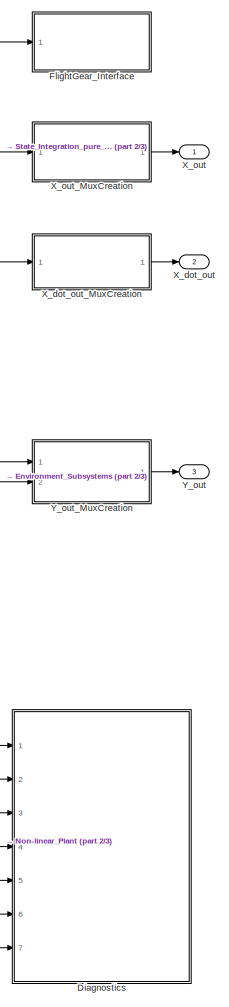
[diagram: root canvas - part 1/3, right side, full height]
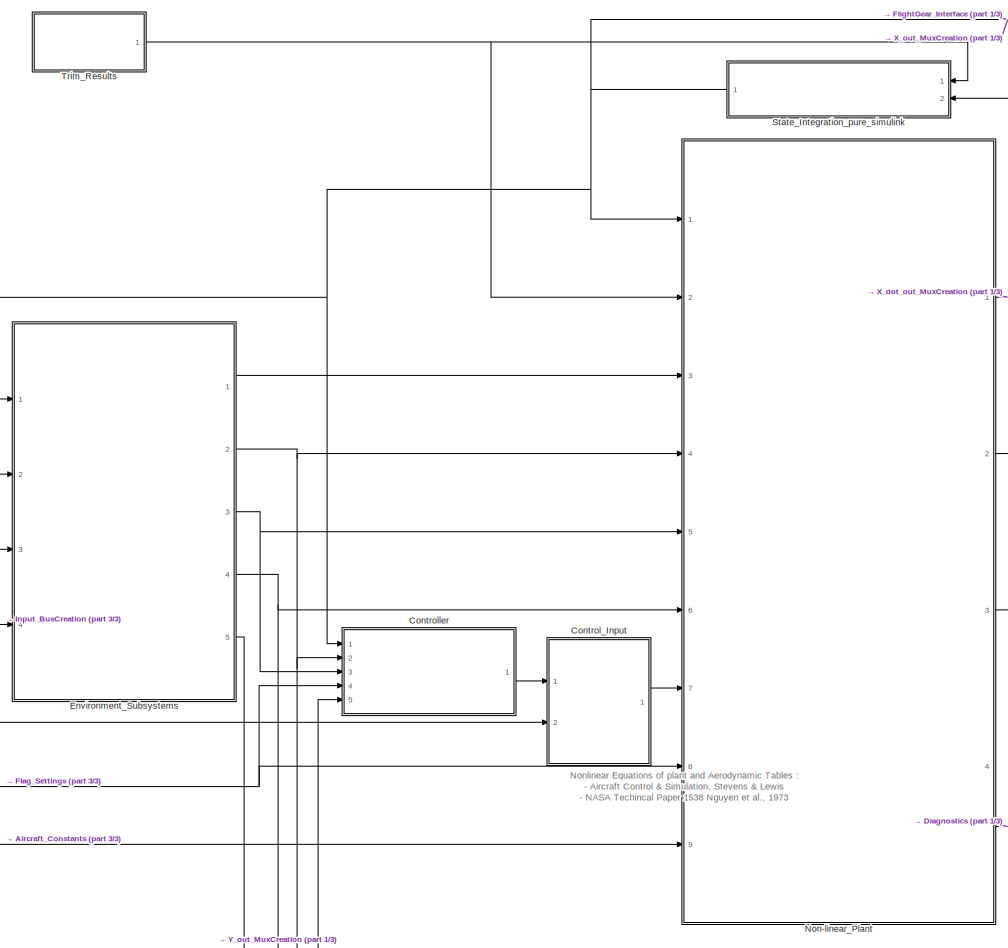
[diagram: root canvas - part 2/3, center side, full height]
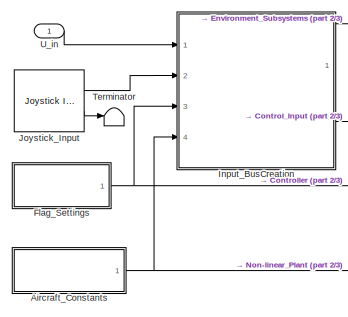
[diagram: root canvas - part 3/3, bottom left region]
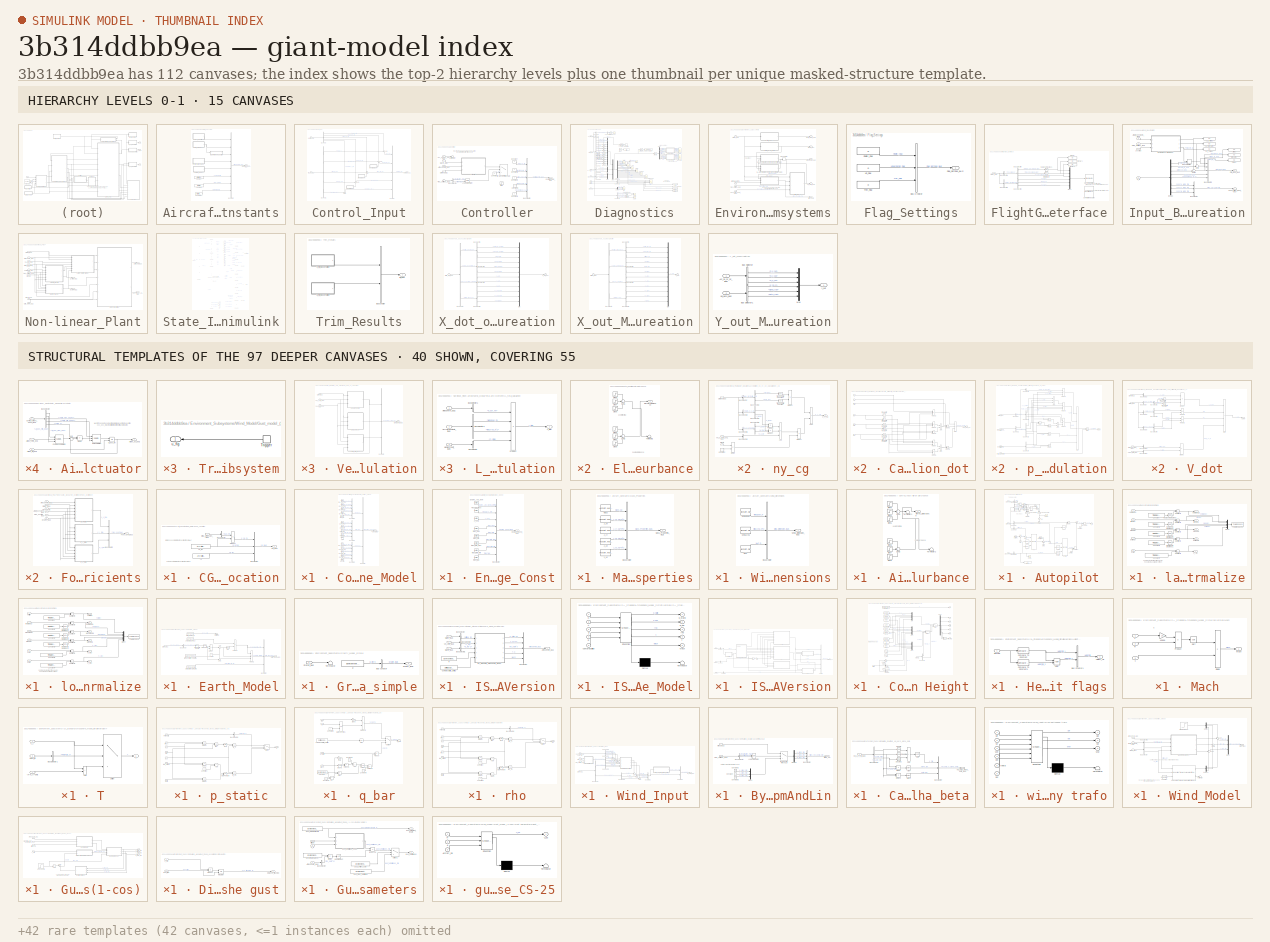
[diagram: thumbnail index - top-2 hierarchy levels (15 canvases) + 40 structural-template representatives of the remaining 97 canvases]
MODEL slx_3b314ddbb9ea
KIND model
CONFIG AbsTol = auto
CONFIG EnableMultiTasking = on
CONFIG FixedStep = Settings.Simulation.step_size
CONFIG MaxStep = auto
CONFIG MinStep = auto
CONFIG RelTol = 1e-3
CONFIG SampleTimeConstraint = Unconstrained
CONFIG SolverName = ode4
CONFIG StartTime = 0.0
CONFIG StopTime = 20
BLOCK [SubSystem] Aircraft_Constants
  Ports = [0, 1]
  RequestExecContextInheritance = off
BLOCK [Outport] Aircraft_Constants/Aircraft_Constants_BUS
BLOCK [BusCreator] Aircraft_Constants/Bus Creator
  DisplayOption = bar
  InheritFromInputs = on
  Inputs = 8
  Ports = [8, 1]
BLOCK [SubSystem] Aircraft_Constants/CG_Reference_Location
  Ports = [1, 1]
  RequestExecContextInheritance = off
BLOCK [BusCreator] Aircraft_Constants/CG_Reference_Location/Bus Creator
  DisplayOption = bar
  InheritFromInputs = on
  Inputs = 3
  Ports = [3, 1]
BLOCK [BusSelector] Aircraft_Constants/CG_Reference_Location/Bus Selector
  OutputSignals = MAC_m
  Ports = [1, 1]
BLOCK [Outport] Aircraft_Constants/CG_Reference_Location/CG_BUS
BLOCK [Product] Aircraft_Constants/CG_Reference_Location/Product
  Ports = [2, 1]
BLOCK [Inport] Aircraft_Constants/CG_Reference_Location/Wing_Dimension_BUS
BLOCK [Constant] Aircraft_Constants/CG_Reference_Location/cg
  Value = Aircraft.Dimensions.cg
BLOCK [Constant] Aircraft_Constants/CG_Reference_Location/cg_ref
  Value = Aircraft.Dimensions.cg_ref
BLOCK [Constant] Aircraft_Constants/Constant
  Value = Aircraft.LandingGearFlg
BLOCK [Constant] Aircraft_Constants/Constant1
  Value = Aircraft.Flaps_degrees
BLOCK [Constant] Aircraft_Constants/Constant2
  Value = Aircraft.F_g.final
BLOCK [SubSystem] Aircraft_Constants/Control_Surface_Model
  Ports = [0, 1]
  RequestExecContextInheritance = off
BLOCK [Constant] Aircraft_Constants/Control_Surface_Model/Ail_lag
  Value = Aircraft.Controls.Ail_lag
BLOCK [Constant] Aircraft_Constants/Control_Surface_Model/Ail_pos_max
  Value = Aircraft.Controls.Ail_pos_max
BLOCK [Constant] Aircraft_Constants/Control_Surface_Model/Ail_pos_min
  Value = Aircraft.Controls.Ail_pos_min
BLOCK [Constant] Aircraft_Constants/Control_Surface_Model/Ail_rate_max
  Value = Aircraft.Controls.Ail_rate_max
BLOCK [Constant] Aircraft_Constants/Control_Surface_Model/Ail_rate_min
  Value = Aircraft.Controls.Ail_rate_min
BLOCK [BusCreator] Aircraft_Constants/Control_Surface_Model/Bus Creator
  DisplayOption = bar
  InheritFromInputs = on
  Inputs = 3
  Ports = [3, 1]
BLOCK [BusCreator] Aircraft_Constants/Control_Surface_Model/Bus Creator1
  DisplayOption = bar
  InheritFromInputs = on
  Inputs = 5
  Ports = [5, 1]
BLOCK [BusCreator] Aircraft_Constants/Control_Surface_Model/Bus Creator2
  DisplayOption = bar
  InheritFromInputs = on
  Inputs = 5
  Ports = [5, 1]
BLOCK [BusCreator] Aircraft_Constants/Control_Surface_Model/Bus Creator3
  DisplayOption = bar
  InheritFromInputs = on
  Inputs = 5
  Ports = [5, 1]
BLOCK [Outport] Aircraft_Constants/Control_Surface_Model/Control_Surface_Const_BUS
BLOCK [Constant] Aircraft_Constants/Control_Surface_Model/Elev_lag
  Value = Aircraft.Controls.Elev_lag
BLOCK [Constant] Aircraft_Constants/Control_Surface_Model/Elev_pos_max
  Value = Aircraft.Controls.Elev_pos_max
BLOCK [Constant] Aircraft_Constants/Control_Surface_Model/Elev_pos_min
  Value = Aircraft.Controls.Elev_pos_min
BLOCK [Constant] Aircraft_Constants/Control_Surface_Model/Elev_rate_max
  Value = Aircraft.Controls.Elev_rate_max
BLOCK [Constant] Aircraft_Constants/Control_Surface_Model/Elev_rate_min
  Value = Aircraft.Controls.Elev_rate_min
BLOCK [Constant] Aircraft_Constants/Control_Surface_Model/Rud_lag
  Value = Aircraft.Controls.Rud_lag
BLOCK [Constant] Aircraft_Constants/Control_Surface_Model/Rud_pos_max
  Value = Aircraft.Controls.Rud_pos_max
BLOCK [Constant] Aircraft_Constants/Control_Surface_Model/Rud_pos_min
  Value = Aircraft.Controls.Rud_pos_min
BLOCK [Constant] Aircraft_Constants/Control_Surface_Model/Rud_rate_max
  Value = Aircraft.Controls.Rud_rate_max
BLOCK [Constant] Aircraft_Constants/Control_Surface_Model/Rud_rate_min
  Value = Aircraft.Controls.Rud_rate_min
BLOCK [SubSystem] Aircraft_Constants/Engine_Const
  Ports = [0, 1]
  RequestExecContextInheritance = off
BLOCK [BusCreator] Aircraft_Constants/Engine_Const/Bus Creator
  DisplayOption = bar
  InheritFromInputs = on
  Inputs = 8
  Ports = [8, 1]
BLOCK [Constant] Aircraft_Constants/Engine_Const/Engine_Ang_Mom
  Value = Aircraft.Engine.Ang_Mom
BLOCK [Outport] Aircraft_Constants/Engine_Const/Engine_Const_BUS
BLOCK [Constant] Aircraft_Constants/Engine_Const/Propeler surface
  Value = Aircraft.Engine.Prop_Surface
BLOCK [Constant] Aircraft_Constants/Engine_Const/thrust_lag
  Value = Aircraft.Engine.thrust_lag
BLOCK [Constant] Aircraft_Constants/Engine_Const/thrust_max
  Value = Aircraft.Engine.thrust_max
BLOCK [Constant] Aircraft_Constants/Engine_Const/thrust_min
  Value = Aircraft.Engine.thrust_min
BLOCK [Constant] Aircraft_Constants/Engine_Const/thrust_rate_max
  Value = Aircraft.Engine.thrust_rate_max
BLOCK [Constant] Aircraft_Constants/Engine_Const/thrust_rate_min
  Value = Aircraft.Engine.thrust_rate_min
BLOCK [Constant] Aircraft_Constants/Engine_Const/z_eng
  Value = Aircraft.Engine.z_eng
BLOCK [SubSystem] Aircraft_Constants/Mass_Properties
  Ports = [0, 1]
  RequestExecContextInheritance = off
BLOCK [BusCreator] Aircraft_Constants/Mass_Properties/Bus Creator
  DisplayOption = bar
  InheritFromInputs = on
  Inputs = 5
  Ports = [5, 1]
BLOCK [Constant] Aircraft_Constants/Mass_Properties/J_xx
  Value = Aircraft.Mass_properties.J_xx
BLOCK [Constant] Aircraft_Constants/Mass_Properties/J_xz
  Value = Aircraft.Mass_properties.J_xz
BLOCK [Constant] Aircraft_Constants/Mass_Properties/J_yy
  Value = Aircraft.Mass_properties.J_yy
BLOCK [Constant] Aircraft_Constants/Mass_Properties/J_zz
  Value = Aircraft.Mass_properties.J_zz
BLOCK [Constant] Aircraft_Constants/Mass_Properties/Mass
  Value = Aircraft.Mass_properties.Mass
BLOCK [Outport] Aircraft_Constants/Mass_Properties/Mass_Properties_BUS
BLOCK [SubSystem] Aircraft_Constants/Wing_Dimensions
  Ports = [0, 1]
  RequestExecContextInheritance = off
BLOCK [BusCreator] Aircraft_Constants/Wing_Dimensions/Bus Creator
  DisplayOption = bar
  InheritFromInputs = on
  Inputs = 3
  Ports = [3, 1]
BLOCK [Constant] Aircraft_Constants/Wing_Dimensions/MAC
  Value = Aircraft.Dimensions.MAC
BLOCK [Constant] Aircraft_Constants/Wing_Dimensions/WingArea
  Value = Aircraft.Dimensions.WingArea
BLOCK [Constant] Aircraft_Constants/Wing_Dimensions/WingSpan
  Value = Aircraft.Dimensions.WingSpan
BLOCK [Outport] Aircraft_Constants/Wing_Dimensions/Wing_Dimension_BUS
BLOCK [SubSystem] Control_Input
  Ports = [2, 1]
  RequestExecContextInheritance = off
BLOCK [SubSystem] Control_Input/Aileron Disturbance
  Ports = [0, 1]
  RequestExecContextInheritance = off
BLOCK [Outport] Control_Input/Aileron Disturbance/Aileron_Disturbance
BLOCK [Step] Control_Input/Aileron Disturbance/Step3
  After = 5
  SampleTime = 0
BLOCK [Step] Control_Input/Aileron Disturbance/Step4
  After = -5
  SampleTime = 0
  Time = 3
BLOCK [Step] Control_Input/Aileron Disturbance/Step5
  After = 0
  SampleTime = 0
  Time = 5
BLOCK [Step] Control_Input/Aileron Disturbance/Step6
  After = 0
  SampleTime = 0
BLOCK [Step] Control_Input/Aileron Disturbance/Step7
  After = 0.5
  Commented = on
  SampleTime = 0
  Time = 5
BLOCK [Step] Control_Input/Aileron Disturbance/Step8
  After = 0
  SampleTime = 0
  Time = 5
BLOCK [Sum] Control_Input/Aileron Disturbance/Sum1
  InputSameDT = on
  Inputs = +++
  OutDataTypeStr = Inherit: Same as first input
  Ports = [3, 1]
  SaturateOnIntegerOverflow = on
BLOCK [Sum] Control_Input/Aileron Disturbance/Sum2
  InputSameDT = on
  Inputs = +++
  OutDataTypeStr = Inherit: Same as first input
  Ports = [3, 1]
  SaturateOnIntegerOverflow = on
BLOCK [Terminator] Control_Input/Aileron Disturbance/Terminator1
BLOCK [Terminator] Control_Input/Aileron Disturbance/Terminator2
BLOCK [BusCreator] Control_Input/Bus Creator
  DisplayOption = bar
  InheritFromInputs = on
  Inputs = 5
  Ports = [5, 1]
BLOCK [BusSelector] Control_Input/Bus Selector
  OutputSignals = Thrust_N_ctrl,Elevator_deg_ctrl,Aileron_deg_ctrl,Rudder_deg_ctrl,Speedbrakes_%_ctrl
  Ports = [1, 5]
BLOCK [BusSelector] Control_Input/Bus Selector1
  OutputSignals = Thrust_in_N,Elevator_in_deg,Aileron_in_deg,Rudder_in_deg,Speedbrakes_in_%
  Ports = [1, 5]
BLOCK [Outport] Control_Input/Command_BUS
BLOCK [Inport] Control_Input/Controller_Inputs
BLOCK [SubSystem] Control_Input/Elevator Disturbance
  Ports = [0, 1]
  RequestExecContextInheritance = off
BLOCK [Outport] Control_Input/Elevator Disturbance/Elevator_Disturbance
BLOCK [Step] Control_Input/Elevator Disturbance/Step3
  After = -10
  SampleTime = 0
  Time = 5
BLOCK [Step] Control_Input/Elevator Disturbance/Step4
  After = +10
  SampleTime = 0
  Time = 10
BLOCK [Step] Control_Input/Elevator Disturbance/Step5
  SampleTime = 0
  Time = 5
BLOCK [Step] Control_Input/Elevator Disturbance/Step6
  After = 0
  SampleTime = 0
BLOCK [Step] Control_Input/Elevator Disturbance/Step7
  After = 0.5
  Commented = on
  SampleTime = 0
  Time = 5
BLOCK [Step] Control_Input/Elevator Disturbance/Step8
  After = 0
  SampleTime = 0
  Time = 5
BLOCK [Sum] Control_Input/Elevator Disturbance/Sum1
  InputSameDT = on
  Inputs = +++
  OutDataTypeStr = Inherit: Same as first input
  Ports = [3, 1]
  SaturateOnIntegerOverflow = on
BLOCK [Sum] Control_Input/Elevator Disturbance/Sum2
  InputSameDT = on
  Inputs = +++
  OutDataTypeStr = Inherit: Same as first input
  Ports = [3, 1]
  SaturateOnIntegerOverflow = on
BLOCK [Terminator] Control_Input/Elevator Disturbance/Terminator1
BLOCK [Inport] Control_Input/Pilot_Input_BUS
  Port = 2
BLOCK [SubSystem] Control_Input/Rudder Disturbance
  Ports = [0, 1]
  RequestExecContextInheritance = off
BLOCK [Outport] Control_Input/Rudder Disturbance/Rudder_Disturbance
BLOCK [Step] Control_Input/Rudder Disturbance/Step3
  After = 2.5
  SampleTime = 0
BLOCK [Step] Control_Input/Rudder Disturbance/Step4
  After = -5
  SampleTime = 0
  Time = 3
BLOCK [Step] Control_Input/Rudder Disturbance/Step5
  After = 2.500
  SampleTime = 0
  Time = 5
BLOCK [Step] Control_Input/Rudder Disturbance/Step6
  After = 0
  SampleTime = 0
BLOCK [Step] Control_Input/Rudder Disturbance/Step7
  After = 0
  SampleTime = 0
  Time = 3
BLOCK [Step] Control_Input/Rudder Disturbance/Step8
  After = 0
  SampleTime = 0
  Time = 5
BLOCK [Sum] Control_Input/Rudder Disturbance/Sum1
  InputSameDT = on
  Inputs = +++
  OutDataTypeStr = Inherit: Same as first input
  Ports = [3, 1]
  SaturateOnIntegerOverflow = on
BLOCK [Sum] Control_Input/Rudder Disturbance/Sum2
  InputSameDT = on
  Inputs = +++
  OutDataTypeStr = Inherit: Same as first input
  Ports = [3, 1]
  SaturateOnIntegerOverflow = on
BLOCK [Terminator] Control_Input/Rudder Disturbance/Terminator2
BLOCK [Sum] Control_Input/Sum1
  InputSameDT = on
  Inputs = +++
  OutDataTypeStr = Inherit: Same as first input
  Ports = [3, 1]
  SaturateOnIntegerOverflow = on
BLOCK [Sum] Control_Input/Sum2
  InputSameDT = on
  Inputs = +++
  OutDataTypeStr = Inherit: Same as first input
  Ports = [3, 1]
  SaturateOnIntegerOverflow = on
BLOCK [Sum] Control_Input/Sum3
  InputSameDT = on
  Inputs = +++
  OutDataTypeStr = Inherit: Same as first input
  Ports = [3, 1]
  SaturateOnIntegerOverflow = on
BLOCK [Sum] Control_Input/Sum4
  InputSameDT = on
  Inputs = ++|
  OutDataTypeStr = Inherit: Same as first input
  Ports = [2, 1]
  SaturateOnIntegerOverflow = on
BLOCK [Sum] Control_Input/Sum5
  InputSameDT = on
  Inputs = ++|
  OutDataTypeStr = Inherit: Same as first input
  Ports = [2, 1]
  SaturateOnIntegerOverflow = on
BLOCK [SubSystem] Controller
  Ports = [5, 1]
  RequestExecContextInheritance = off
BLOCK [Inport] Controller/Acc_nx_ny_nz_BUS
  Port = 5
BLOCK [Inport] Controller/Atmosphere_BUS
  Port = 2
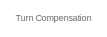
[diagram: Controller/Autopilot - part 1/2, top left region]
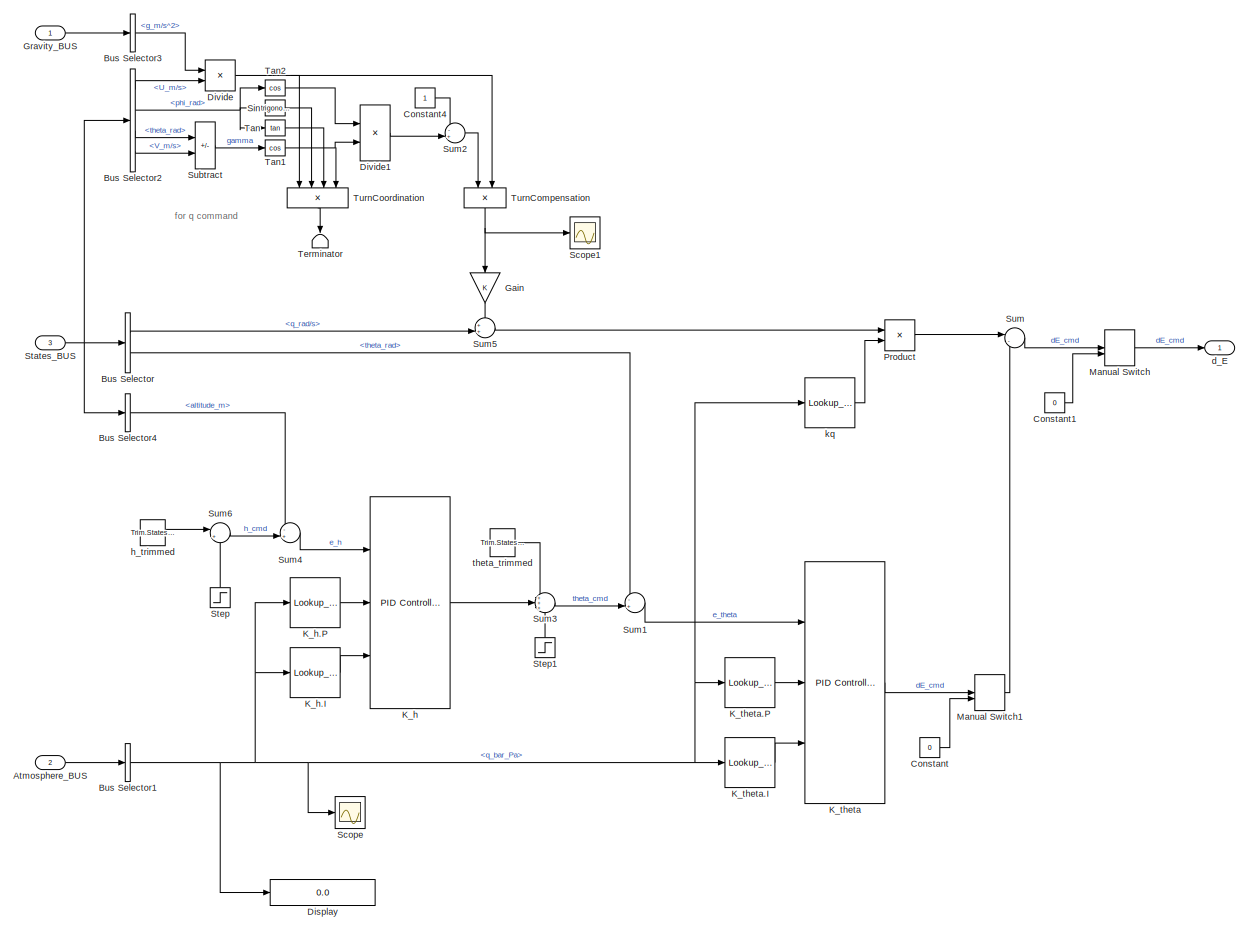
[diagram: Controller/Autopilot - part 2/2, most of the canvas]
BLOCK [SubSystem] Controller/Autopilot
  Ports = [3, 1]
  RequestExecContextInheritance = off
BLOCK [Inport] Controller/Autopilot/Atmosphere_BUS
  Port = 2
BLOCK [BusSelector] Controller/Autopilot/Bus Selector
  OutputSignals = Rates_p_q_r.q_rad/s,Angles_phi_theta_psi.theta_rad
  Ports = [1, 2]
BLOCK [BusSelector] Controller/Autopilot/Bus Selector1
  OutputSignals = q_bar_Pa
  Ports = [1, 1]
BLOCK [BusSelector] Controller/Autopilot/Bus Selector2
  OutputSignals = Vel_U_V_W_body.U_m/s,Angles_phi_theta_psi.phi_rad,Angles_phi_theta_psi.theta_rad,Vel_U_V_W_body.V_m/s
  Ports = [1, 4]
BLOCK [BusSelector] Controller/Autopilot/Bus Selector3
  OutputSignals = g_m/s^2
  Ports = [1, 1]
BLOCK [BusSelector] Controller/Autopilot/Bus Selector4
  OutputSignals = Position_north_east_alt.altitude_m
  Ports = [1, 1]
BLOCK [Constant] Controller/Autopilot/Constant
  Value = 0
BLOCK [Constant] Controller/Autopilot/Constant1
  Value = 0
BLOCK [Constant] Controller/Autopilot/Constant4
BLOCK [Display] Controller/Autopilot/Display
  Decimation = 1
  Format = long
  Ports = [1]
BLOCK [Product] Controller/Autopilot/Divide
  Inputs = */
  Ports = [2, 1]
BLOCK [Product] Controller/Autopilot/Divide1
  Inputs = **
  Ports = [2, 1]
BLOCK [Gain] Controller/Autopilot/Gain
  NameLocation = left
BLOCK [Inport] Controller/Autopilot/Gravity_BUS
BLOCK [Reference] Controller/Autopilot/K_h  REF=slpidlib/PID Controller
  Ports = [3, 1]
  SourceBlock = slpidlib/PID Controller
  SourceProductBaseCode = SL
  SourceType = PID 1dof
BLOCK [Lookup_n-D] Controller/Autopilot/K_h.I
  BreakpointsForDimension1 = ControlGains.Schedule
  InputPortMap = u0
  InternalRulePriority = Speed
  NumberOfTableDimensions = 1
  Ports = [1, 1]
  RndMeth = Simplest
  Table = ControlGains.K_h.I
BLOCK [Lookup_n-D] Controller/Autopilot/K_h.P
  BreakpointsForDimension1 = ControlGains.Schedule
  InputPortMap = u0
  InternalRulePriority = Speed
  NumberOfTableDimensions = 1
  Ports = [1, 1]
  RndMeth = Simplest
  Table = ControlGains.K_h.P
BLOCK [Reference] Controller/Autopilot/K_theta  REF=slpidlib/PID Controller
  Ports = [3, 1]
  SourceBlock = slpidlib/PID Controller
  SourceProductBaseCode = SL
  SourceType = PID 1dof
BLOCK [Lookup_n-D] Controller/Autopilot/K_theta.I
  BreakpointsForDimension1 = ControlGains.Schedule
  InputPortMap = u0
  InternalRulePriority = Speed
  NumberOfTableDimensions = 1
  Ports = [1, 1]
  RndMeth = Simplest
  Table = ControlGains.K_theta.I
BLOCK [Lookup_n-D] Controller/Autopilot/K_theta.P
  BreakpointsForDimension1 = ControlGains.Schedule
  InputPortMap = u0
  InternalRulePriority = Speed
  NumberOfTableDimensions = 1
  Ports = [1, 1]
  RndMeth = Simplest
  Table = ControlGains.K_theta.P
BLOCK [ManualSwitch] Controller/Autopilot/Manual Switch
  CurrentSetting = 0
BLOCK [ManualSwitch] Controller/Autopilot/Manual Switch1
BLOCK [Product] Controller/Autopilot/Product
  Ports = [2, 1]
BLOCK [Scope] Controller/Autopilot/Scope
  Floating = off
  NumInputPorts = 1
  Ports = [1]
  ScopeSpecificationString = Simulink.scopes.TimeScopeBlockCfg('CurrentConfiguration', extmgr.ConfigurationSet(extmgr.Configuration('Core','General UI',true),extmgr.Configuration('Core','Source UI',true),extmgr.Configuration('Sources','WiredSimulink',true,'DataLoggingVariableName','ScopeData1'),extmgr.Configuration('Visuals','Time Domain',true,'SerializedDisplays',{struct('MinYLimReal','2199.76749','MaxYLimReal','2219.25129',...<+1416ch>
BLOCK [Scope] Controller/Autopilot/Scope1
  Floating = off
  NumInputPorts = 1
  Ports = [1]
  ScopeSpecificationString = Simulink.scopes.TimeScopeBlockCfg('CurrentConfiguration', extmgr.ConfigurationSet(extmgr.Configuration('Core','General UI',true),extmgr.Configuration('Core','Source UI',true),extmgr.Configuration('Sources','WiredSimulink',true,'DataLoggingVariableName','ScopeData2'),extmgr.Configuration('Visuals','Time Domain',true,'SerializedDisplays',{struct('MinYLimReal','-1.00000','MaxYLimReal','1.00000','YLab...<+1400ch>
BLOCK [Trigonometry] Controller/Autopilot/Sin
  Ports = [1, 1]
BLOCK [Inport] Controller/Autopilot/States_BUS
  Port = 3
BLOCK [Step] Controller/Autopilot/Step
  After = 10
  Commented = on
  NameLocation = right
  SampleTime = 0
  Time = 5
BLOCK [Step] Controller/Autopilot/Step1
  After = 1*pi/180
  Commented = on
  NameLocation = right
  SampleTime = 0
  Time = 5
BLOCK [Sum] Controller/Autopilot/Subtract
  IconShape = rectangular
  Inputs = +-
  Ports = [2, 1]
BLOCK [Sum] Controller/Autopilot/Sum
  Inputs = |--
  Ports = [2, 1]
BLOCK [Sum] Controller/Autopilot/Sum1
  Inputs = -+|
  Ports = [2, 1]
BLOCK [Sum] Controller/Autopilot/Sum2
  Inputs = -+|
  Ports = [2, 1]
BLOCK [Sum] Controller/Autopilot/Sum3
  Inputs = +++
  Ports = [3, 1]
BLOCK [Sum] Controller/Autopilot/Sum4
  Inputs = -+|
  Ports = [2, 1]
BLOCK [Sum] Controller/Autopilot/Sum5
  Inputs = ++|
  Ports = [2, 1]
BLOCK [Sum] Controller/Autopilot/Sum6
  Inputs = |++
  Ports = [2, 1]
BLOCK [Trigonometry] Controller/Autopilot/Tan
  Operator = tan
  Ports = [1, 1]
BLOCK [Trigonometry] Controller/Autopilot/Tan1
  Operator = cos
  Ports = [1, 1]
BLOCK [Trigonometry] Controller/Autopilot/Tan2
  Operator = cos
  Ports = [1, 1]
BLOCK [Terminator] Controller/Autopilot/Terminator
  NameLocation = left
BLOCK [Product] Controller/Autopilot/TurnCompensation
  NameLocation = left
  Ports = [2, 1]
BLOCK [Product] Controller/Autopilot/TurnCoordination
  Inputs = 4
  NameLocation = left
  Ports = [4, 1]
BLOCK [Outport] Controller/Autopilot/d_E
BLOCK [Constant] Controller/Autopilot/h_trimmed
  Value = Trim.States_result.Altitude
BLOCK [Lookup_n-D] Controller/Autopilot/kq
  BreakpointsForDimension1 = ControlGains.Schedule
  InputPortMap = u0
  InternalRulePriority = Speed
  NumberOfTableDimensions = 1
  Ports = [1, 1]
  RndMeth = Simplest
  Table = ControlGains.kq
BLOCK [Constant] Controller/Autopilot/theta_trimmed
  Value = Trim.States_result.theta
BLOCK [BusCreator] Controller/Bus Creator
  DisplayOption = bar
  InheritFromInputs = on
  Inputs = 5
  Ports = [5, 1]
BLOCK [BusSelector] Controller/Bus Selector
  OutputSignals = Linearization_Flag,Trim_Flag
  Ports = [1, 2]
BLOCK [Switch] Controller/Bypass for TrimAndLin
  Criteria = u2 > Threshold
  InputSameDT = off
  SaturateOnIntegerOverflow = off
BLOCK [Constant] Controller/Constant
  Value = 0
BLOCK [Constant] Controller/Constant1
  Value = 0
BLOCK [Constant] Controller/Constant2
  Value = 0
BLOCK [Constant] Controller/Constant3
  Value = 0
BLOCK [Constant] Controller/Constant4
  Value = 0
BLOCK [Constant] Controller/Constant5
  Value = 0
BLOCK [Outport] Controller/Controller_Cmd_BUS
BLOCK [Inport] Controller/Flag_Settings_BUS
  Port = 4
BLOCK [Inport] Controller/Gravity_BUS
  Port = 3
BLOCK [Logic] Controller/Logical Operator
  AllPortsSameDT = off
  Operator = NOR
  OutDataTypeStr = boolean
  Ports = [2, 1]
BLOCK [Inport] Controller/States_BUS
BLOCK [Step] Controller/Step
  After = 0
  Before = -10
  SampleTime = 0
  Time = 0.2
BLOCK [Terminator] Controller/Terminator
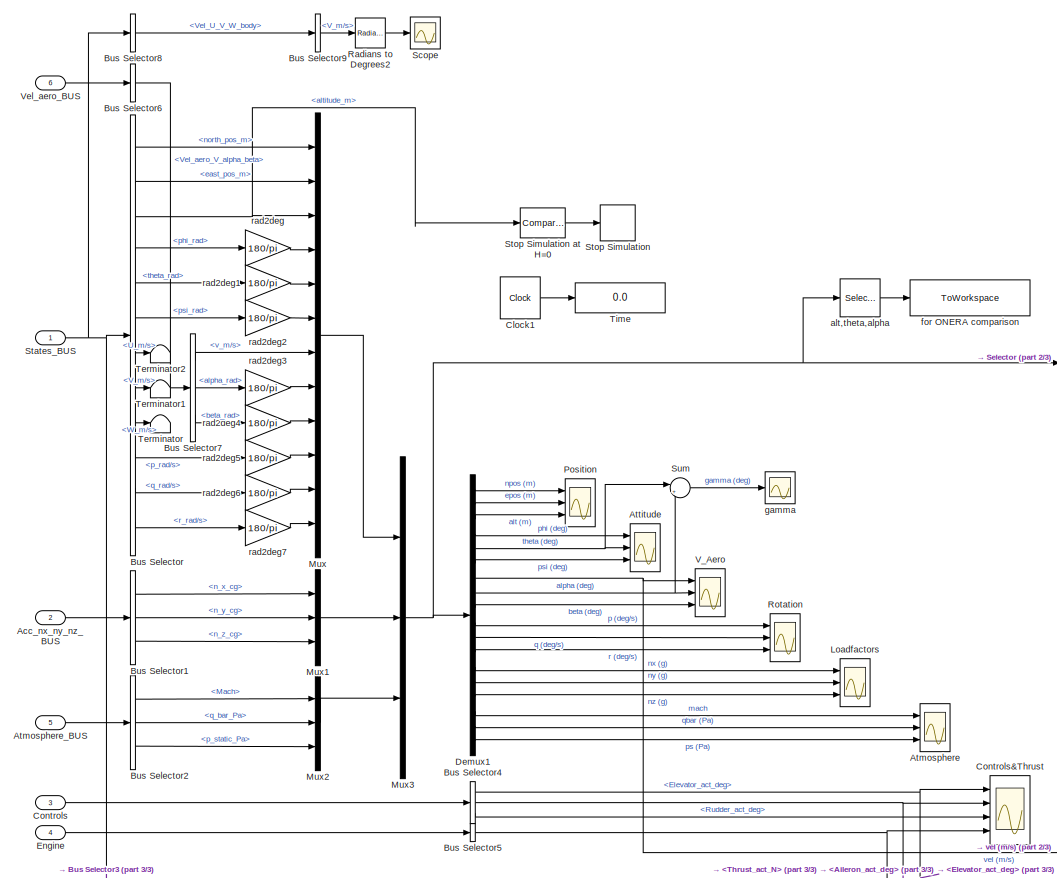
[diagram: Diagnostics - part 1/3, center side, full height]
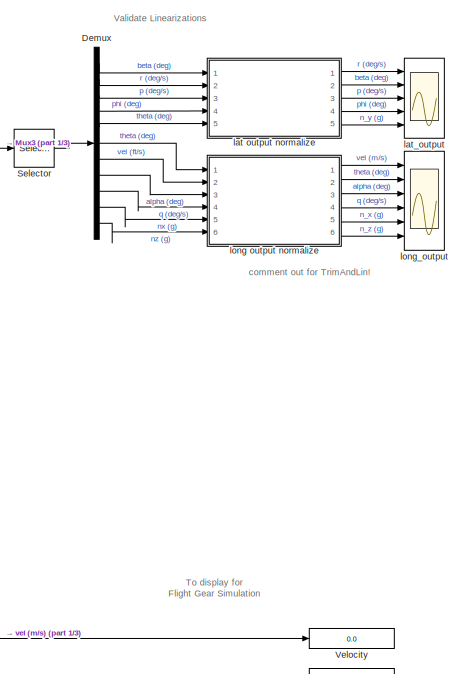
[diagram: Diagnostics - part 2/3, middle right region]
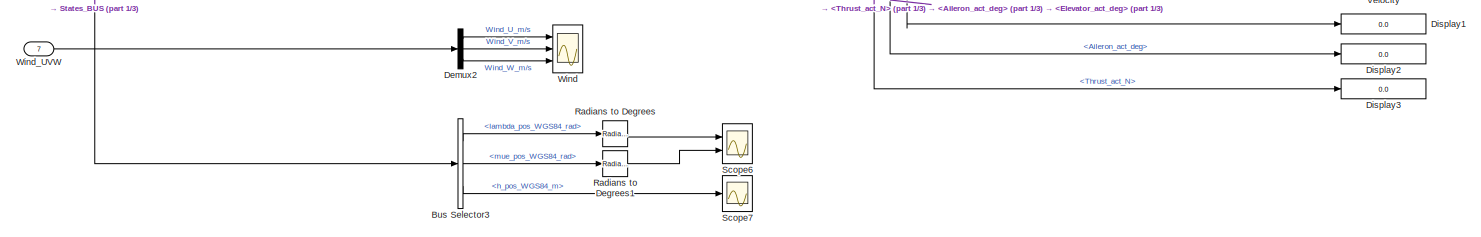
[diagram: Diagnostics - part 3/3, full width, bottom band]
BLOCK [SubSystem] Diagnostics
  Ports = [7]
  RequestExecContextInheritance = off
BLOCK [Inport] Diagnostics/Acc_nx_ny_nz_BUS
  Port = 2
BLOCK [Scope] Diagnostics/Atmosphere
  Floating = off
  NameLocation = top
  NumInputPorts = 3
  Ports = [3]
  ScopeSpecificationString = Simulink.scopes.TimeScopeBlockCfg('CurrentConfiguration', extmgr.ConfigurationSet(extmgr.Configuration('Core','General UI',true),extmgr.Configuration('Core','Source UI',true),extmgr.Configuration('Sources','WiredSimulink',true,'DataLoggingVariableName','ScopeData5','DataLoggingSaveFormat','StructureWithTime','DataLoggingLimitDataPoints',true,'DataLoggingDecimation','1','DataLoggingDecimateData',tr...<+3061ch>
BLOCK [Inport] Diagnostics/Atmosphere_BUS
  Port = 5
BLOCK [Scope] Diagnostics/Attitude
  Floating = off
  NameLocation = top
  NumInputPorts = 3
  Ports = [3]
  ScopeSpecificationString = Simulink.scopes.TimeScopeBlockCfg('CurrentConfiguration', extmgr.ConfigurationSet(extmgr.Configuration('Core','General UI',true),extmgr.Configuration('Core','Source UI',true),extmgr.Configuration('Sources','WiredSimulink',true,'DataLoggingVariableName','ScopeData1','DataLoggingSaveFormat','StructureWithTime','DataLoggingDecimateData',true),extmgr.Configuration('Visuals','Time Domain',true,'Seriali...<+3022ch>
BLOCK [BusSelector] Diagnostics/Bus Selector
  OutputSignals = Position_north_east_alt.north_pos_m,Position_north_east_alt.east_pos_m,Position_north_east_alt.altitude_m,Angles_phi_theta_psi.phi_rad,Angles_phi_theta_psi.theta_rad,Angles_phi_theta_psi.psi_rad,Vel_U_V_W_body.U_m/s,Vel_U_V_W_body.V_m/s,Vel_U_V_W_body.W_m/s,Rates_p_q_r.p_rad/s,Rates_p_q_r.q_rad/s,Rates_p_q_r.r_rad/s
  Ports = [1, 12]
BLOCK [BusSelector] Diagnostics/Bus Selector1
  OutputSignals = n_x_cg,n_y_cg,n_z_cg
  Ports = [1, 3]
BLOCK [BusSelector] Diagnostics/Bus Selector2
  OutputSignals = Mach,q_bar_Pa,p_static_Pa
  Ports = [1, 3]
BLOCK [BusSelector] Diagnostics/Bus Selector3
  OutputSignals = Pos_WGS84.lambda_pos_WGS84_rad,Pos_WGS84.mue_pos_WGS84_rad,Pos_WGS84.h_pos_WGS84_m
  Ports = [1, 3]
BLOCK [BusSelector] Diagnostics/Bus Selector4
  OutputSignals = Elevator_act_deg,Aileron_act_deg,Rudder_act_deg
  Ports = [1, 3]
BLOCK [BusSelector] Diagnostics/Bus Selector5
  OutputSignals = Thrust_act_N
  Ports = [1, 1]
BLOCK [BusSelector] Diagnostics/Bus Selector6
  OutputSignals = Vel_aero_V_alpha_beta
  Ports = [1, 1]
BLOCK [BusSelector] Diagnostics/Bus Selector7
  OutputSignals = v_m/s,alpha_rad,beta_rad
  Ports = [1, 3]
BLOCK [BusSelector] Diagnostics/Bus Selector8
  OutputSignals = Vel_U_V_W_body
  Ports = [1, 1]
BLOCK [BusSelector] Diagnostics/Bus Selector9
  OutputSignals = V_m/s
  Ports = [1, 1]
BLOCK [Clock] Diagnostics/Clock1
BLOCK [Inport] Diagnostics/Controls
  Port = 3
BLOCK [Scope] Diagnostics/Controls&Thrust
  Floating = off
  NameLocation = top
  NumInputPorts = 4
  Ports = [4]
  ScopeSpecificationString = Simulink.scopes.TimeScopeBlockCfg('CurrentConfiguration', extmgr.ConfigurationSet(extmgr.Configuration('Core','General UI',true),extmgr.Configuration('Core','Source UI',true),extmgr.Configuration('Sources','WiredSimulink',true,'DataLoggingVariableName','ScopeData1','DataLoggingSaveFormat','StructureWithTime','DataLoggingLimitDataPoints',true,'DataLoggingDecimation','1','DataLoggingDecimateData',tr...<+3831ch>
BLOCK [Demux] Diagnostics/Demux
  Outputs = 11
  Ports = [1, 11]
BLOCK [Demux] Diagnostics/Demux1
  DisplayOption = none
  Outputs = 18
  Ports = [1, 18]
BLOCK [Demux] Diagnostics/Demux2
  Outputs = 3
  Ports = [1, 3]
BLOCK [Display] Diagnostics/Display1
  Decimation = 1
  Ports = [1]
BLOCK [Display] Diagnostics/Display2
  Decimation = 1
  Ports = [1]
BLOCK [Display] Diagnostics/Display3
  Decimation = 1
  Ports = [1]
BLOCK [Inport] Diagnostics/Engine
  Port = 4
BLOCK [Scope] Diagnostics/Loadfactors
  Floating = off
  NameLocation = top
  NumInputPorts = 3
  Ports = [3]
  ScopeSpecificationString = Simulink.scopes.TimeScopeBlockCfg('CurrentConfiguration', extmgr.ConfigurationSet(extmgr.Configuration('Core','General UI',true),extmgr.Configuration('Core','Source UI',true),extmgr.Configuration('Sources','WiredSimulink',true,'DataLoggingVariableName','ScopeData4','DataLoggingSaveFormat','StructureWithTime','DataLoggingDecimateData',true),extmgr.Configuration('Visuals','Time Domain',true,'Seriali...<+2938ch>
BLOCK [Mux] Diagnostics/Mux
  DisplayOption = bar
  Inputs = 12
  Ports = [12, 1]
BLOCK [Mux] Diagnostics/Mux1
  DisplayOption = bar
  Inputs = 3
  Ports = [3, 1]
BLOCK [Mux] Diagnostics/Mux2
  DisplayOption = bar
  Inputs = 3
  Ports = [3, 1]
BLOCK [Mux] Diagnostics/Mux3
  DisplayOption = bar
  Inputs = 3
  Ports = [3, 1]
BLOCK [Scope] Diagnostics/Position
  Floating = off
  NameLocation = top
  NumInputPorts = 3
  Ports = [3]
  ScopeSpecificationString = Simulink.scopes.TimeScopeBlockCfg('CurrentConfiguration', extmgr.ConfigurationSet(extmgr.Configuration('Core','General UI',true),extmgr.Configuration('Core','Source UI',true),extmgr.Configuration('Sources','WiredSimulink',true,'DataLoggingSaveFormat','StructureWithTime','DataLoggingDecimation','5','DataLoggingDecimateData',true),extmgr.Configuration('Visuals','Time Domain',true,'SerializedDisplays...<+2952ch>
BLOCK [Reference] Diagnostics/Radians to Degrees  REF=simulink_extras/Transformations/Radians
to Degrees
  Ports = [1, 1]
  SourceBlock = simulink_extras/Transformations/Radians\nto Degrees
  SourceProductBaseCode = SL
  SourceType = RadiansToDegrees
BLOCK [Reference] Diagnostics/Radians to Degrees1  REF=simulink_extras/Transformations/Radians
to Degrees
  Ports = [1, 1]
  SourceBlock = simulink_extras/Transformations/Radians\nto Degrees
  SourceProductBaseCode = SL
  SourceType = RadiansToDegrees
BLOCK [Reference] Diagnostics/Radians to Degrees2  REF=simulink_extras/Transformations/Radians
to Degrees
  Ports = [1, 1]
  SourceBlock = simulink_extras/Transformations/Radians\nto Degrees
  SourceProductBaseCode = SL
  SourceType = RadiansToDegrees
BLOCK [Scope] Diagnostics/Rotation
  Floating = off
  NameLocation = top
  NumInputPorts = 3
  Ports = [3]
  ScopeSpecificationString = Simulink.scopes.TimeScopeBlockCfg('CurrentConfiguration', extmgr.ConfigurationSet(extmgr.Configuration('Core','General UI',true),extmgr.Configuration('Core','Source UI',true),extmgr.Configuration('Sources','WiredSimulink',true,'DataLoggingVariableName','ScopeData3','DataLoggingSaveFormat','StructureWithTime','DataLoggingDecimation','5','DataLoggingDecimateData',true),extmgr.Configuration('Visuals'...<+3576ch>
BLOCK [Scope] Diagnostics/Scope
  Floating = off
  NumInputPorts = 1
  Ports = [1]
  ScopeSpecificationString = Simulink.scopes.TimeScopeBlockCfg('CurrentConfiguration', extmgr.ConfigurationSet(extmgr.Configuration('Core','General UI',true),extmgr.Configuration('Core','Source UI',true),extmgr.Configuration('Sources','WiredSimulink',true,'DataLoggingVariableName','ScopeData1'),extmgr.Configuration('Visuals','Time Domain',true,'SerializedDisplays',{struct('MinYLimReal','2.69925','MaxYLimReal','6.16578','YLabe...<+1401ch>
BLOCK [Scope] Diagnostics/Scope6
  Floating = off
  NameLocation = top
  NumInputPorts = 2
  Ports = [2]
  ScopeSpecificationString = Simulink.scopes.TimeScopeBlockCfg('CurrentConfiguration', extmgr.ConfigurationSet(extmgr.Configuration('Core','General UI',true),extmgr.Configuration('Core','Source UI',true),extmgr.Configuration('Sources','WiredSimulink',true,'DataLoggingVariableName','ScopeData1','DataLoggingSaveFormat','StructureWithTime','DataLoggingDecimation','1','DataLoggingDecimateData',true),extmgr.Configuration('Visuals'...<+2277ch>
BLOCK [Scope] Diagnostics/Scope7
  Floating = off
  NameLocation = top
  NumInputPorts = 1
  Ports = [1]
  ScopeSpecificationString = Simulink.scopes.TimeScopeBlockCfg('CurrentConfiguration', extmgr.ConfigurationSet(extmgr.Configuration('Core','General UI',true),extmgr.Configuration('Core','Source UI',true),extmgr.Configuration('Sources','WiredSimulink',true,'DataLoggingVariableName','ScopeData2','DataLoggingSaveFormat','StructureWithTime','DataLoggingDecimation','1','DataLoggingDecimateData',true),extmgr.Configuration('Visuals'...<+1613ch>
BLOCK [Selector] Diagnostics/Selector
  IndexOptions = Index vector (dialog)
  Indices = [9 12 10 4 14 5 7 8 11 13 15]
  InputPortWidth = 18
  OutputSizes = 1
  Ports = [1, 1]
BLOCK [Inport] Diagnostics/States_BUS
BLOCK [Stop] Diagnostics/Stop Simulation
BLOCK [Reference] Diagnostics/Stop Simulation at H=0  REF=simulink/Logic and Bit
Operations/Compare
To Constant
  Ports = [1, 1]
  SourceBlock = simulink/Logic and Bit\nOperations/Compare\nTo Constant
  SourceProductBaseCode = SL
  SourceType = Compare To Constant
BLOCK [Sum] Diagnostics/Sum
  Inputs = |+-
  Ports = [2, 1]
BLOCK [Terminator] Diagnostics/Terminator
BLOCK [Terminator] Diagnostics/Terminator1
BLOCK [Terminator] Diagnostics/Terminator2
BLOCK [Display] Diagnostics/Time
  Decimation = 1
  Ports = [1]
BLOCK [Scope] Diagnostics/V_Aero
  Floating = off
  NameLocation = top
  NumInputPorts = 3
  Ports = [3]
  ScopeSpecificationString = Simulink.scopes.TimeScopeBlockCfg('CurrentConfiguration', extmgr.ConfigurationSet(extmgr.Configuration('Core','General UI',true),extmgr.Configuration('Core','Source UI',true),extmgr.Configuration('Sources','WiredSimulink',true,'DataLoggingVariableName','ScopeData2','DataLoggingSaveFormat','StructureWithTime','DataLoggingDecimation','5','DataLoggingDecimateData',true),extmgr.Configuration('Visuals'...<+3051ch>
BLOCK [Inport] Diagnostics/Vel_aero_BUS
  Port = 6
BLOCK [Display] Diagnostics/Velocity
  Decimation = 1
  Ports = [1]
BLOCK [Scope] Diagnostics/Wind
  Floating = off
  NameLocation = top
  NumInputPorts = 3
  Ports = [3]
  ScopeSpecificationString = Simulink.scopes.TimeScopeBlockCfg('CurrentConfiguration', extmgr.ConfigurationSet(extmgr.Configuration('Core','General UI',true),extmgr.Configuration('Core','Source UI',true),extmgr.Configuration('Sources','WiredSimulink',true,'DataLoggingVariableName','ScopeData1','DataLoggingSaveFormat','StructureWithTime','DataLoggingLimitDataPoints',true,'DataLoggingDecimation','1','DataLoggingDecimateData',tr...<+2036ch>
BLOCK [Inport] Diagnostics/Wind_UVW
  Port = 7
BLOCK [Selector] Diagnostics/alt,theta,alpha
  IndexOptions = Index vector (dialog)
  Indices = [3 5 8]
  InputPortWidth = 18
  OutputSizes = 1
  Ports = [1, 1]
BLOCK [ToWorkspace] Diagnostics/for ONERA comparison
  Commented = on
  FixptAsFi = on
  MaxDataPoints = inf
  Ports = [1]
  SampleTime = -1
  VariableName = stepGust_ONERA_States
BLOCK [Scope] Diagnostics/gamma
  Floating = off
  NumInputPorts = 1
  Ports = [1]
  ScopeSpecificationString = Simulink.scopes.TimeScopeBlockCfg('CurrentConfiguration', extmgr.ConfigurationSet(extmgr.Configuration('Core','General UI',true),extmgr.Configuration('Core','Source UI',true),extmgr.Configuration('Sources','WiredSimulink',true,'DataLoggingVariableName','ScopeData1'),extmgr.Configuration('Visuals','Time Domain',true,'SerializedDisplays',{struct('MinYLimReal','-3.08007','MaxYLimReal','4.85657','YLab...<+1478ch>
BLOCK [SubSystem] Diagnostics/lat output normalize
  Commented = on
  Ports = [5, 5]
  RequestExecContextInheritance = off
BLOCK [Constant] Diagnostics/lat output normalize/Constant
  Value = Trim.States_result.beta
BLOCK [Constant] Diagnostics/lat output normalize/Constant1
  Value = Trim.States_result.r
BLOCK [Constant] Diagnostics/lat output normalize/Constant2
  Value = Trim.States_result.p
BLOCK [Constant] Diagnostics/lat output normalize/Constant3
  Value = Trim.States_result.phi
BLOCK [Constant] Diagnostics/lat output normalize/Constant4
  Value = Trim.States_results_dot_vec{1,1}(14)
BLOCK [Mux] Diagnostics/lat output normalize/Mux6
  DisplayOption = bar
  Inputs = 5
  Ports = [5, 1]
BLOCK [Reference] Diagnostics/lat output normalize/Radians to Degrees  REF=simulink_extras/Transformations/Radians
to Degrees
  Ports = [1, 1]
  SourceBlock = simulink_extras/Transformations/Radians\nto Degrees
  SourceProductBaseCode = SL
  SourceType = RadiansToDegrees
BLOCK [Reference] Diagnostics/lat output normalize/Radians to Degrees1  REF=simulink_extras/Transformations/Radians
to Degrees
  Ports = [1, 1]
  SourceBlock = simulink_extras/Transformations/Radians\nto Degrees
  SourceProductBaseCode = SL
  SourceType = RadiansToDegrees
BLOCK [Reference] Diagnostics/lat output normalize/Radians to Degrees2  REF=simulink_extras/Transformations/Radians
to Degrees
  Ports = [1, 1]
  SourceBlock = simulink_extras/Transformations/Radians\nto Degrees
  SourceProductBaseCode = SL
  SourceType = RadiansToDegrees
BLOCK [Reference] Diagnostics/lat output normalize/Radians to Degrees3  REF=simulink_extras/Transformations/Radians
to Degrees
  Ports = [1, 1]
  SourceBlock = simulink_extras/Transformations/Radians\nto Degrees
  SourceProductBaseCode = SL
  SourceType = RadiansToDegrees
BLOCK [Sum] Diagnostics/lat output normalize/Subtract1
  IconShape = rectangular
  Inputs = +-
  Ports = [2, 1]
BLOCK [Sum] Diagnostics/lat output normalize/Subtract2
  IconShape = rectangular
  Inputs = +-
  Ports = [2, 1]
BLOCK [Sum] Diagnostics/lat output normalize/Subtract3
  IconShape = rectangular
  Inputs = +-
  Ports = [2, 1]
BLOCK [Sum] Diagnostics/lat output normalize/Subtract4
  IconShape = rectangular
  Inputs = +-
  Ports = [2, 1]
BLOCK [Sum] Diagnostics/lat output normalize/Subtract5
  IconShape = rectangular
  Inputs = +-
  Ports = [2, 1]
BLOCK [ToWorkspace] Diagnostics/lat output normalize/To Workspace1
  FixptAsFi = on
  MaxDataPoints = inf
  Ports = [1]
  SampleTime = -1
  VariableName = Lat_ail
BLOCK [Inport] Diagnostics/lat output normalize/beta  (deg)
BLOCK [Outport] Diagnostics/lat output normalize/beta  (deg)1
  Port = 2
BLOCK [Outport] Diagnostics/lat output normalize/n_y  (g)
  Port = 5
BLOCK [Inport] Diagnostics/lat output normalize/ny  (g)
  Port = 5
BLOCK [Inport] Diagnostics/lat output normalize/p   (deg//s)
  Port = 3
BLOCK [Outport] Diagnostics/lat output normalize/p   (deg//s)1
  Port = 3
BLOCK [Inport] Diagnostics/lat output normalize/phi  (deg)
  Port = 4
BLOCK [Outport] Diagnostics/lat output normalize/phi  (deg)1
  Port = 4
BLOCK [Inport] Diagnostics/lat output normalize/r   (deg//s)
  Port = 2
BLOCK [Outport] Diagnostics/lat output normalize/r   (deg//s)1
BLOCK [Scope] Diagnostics/lat_output
  Floating = off
  NumInputPorts = 5
  Ports = [5]
  ScopeSpecificationString = Simulink.scopes.TimeScopeBlockCfg('CurrentConfiguration', extmgr.ConfigurationSet(extmgr.Configuration('Core','General UI',true,'FigureColor',[0.941176470588235 0.941176470588235 0.941176470588235]),extmgr.Configuration('Core','Source UI',true),extmgr.Configuration('Sources','WiredSimulink',true,'DataLoggingVariableName','ScopeData1'),extmgr.Configuration('Visuals','Time Domain',true,'SerializedDi...<+2067ch>
BLOCK [SubSystem] Diagnostics/long output normalize
  Commented = on
  Ports = [6, 6]
  RequestExecContextInheritance = off
BLOCK [Constant] Diagnostics/long output normalize/Constant
  Value = Trim.States_result.Velocity
BLOCK [Constant] Diagnostics/long output normalize/Constant1
  Value = Trim.States_result.theta
BLOCK [Constant] Diagnostics/long output normalize/Constant2
  Value = Trim.States_result.alpha
BLOCK [Constant] Diagnostics/long output normalize/Constant3
  Value = Trim.States_result.q
BLOCK [Constant] Diagnostics/long output normalize/Constant4
  Value = Trim.States_results_dot_vec{1,1}(15)
BLOCK [Constant] Diagnostics/long output normalize/Constant5
  Value = Trim.States_results_dot_vec{1,1}(13)
BLOCK [Mux] Diagnostics/long output normalize/Mux4
  DisplayOption = bar
  Inputs = 6
  Ports = [6, 1]
BLOCK [Reference] Diagnostics/long output normalize/Radians to Degrees1  REF=simulink_extras/Transformations/Radians
to Degrees
  Ports = [1, 1]
  SourceBlock = simulink_extras/Transformations/Radians\nto Degrees
  SourceProductBaseCode = SL
  SourceType = RadiansToDegrees
BLOCK [Reference] Diagnostics/long output normalize/Radians to Degrees2  REF=simulink_extras/Transformations/Radians
to Degrees
  Ports = [1, 1]
  SourceBlock = simulink_extras/Transformations/Radians\nto Degrees
  SourceProductBaseCode = SL
  SourceType = RadiansToDegrees
BLOCK [Reference] Diagnostics/long output normalize/Radians to Degrees3  REF=simulink_extras/Transformations/Radians
to Degrees
  Ports = [1, 1]
  SourceBlock = simulink_extras/Transformations/Radians\nto Degrees
  SourceProductBaseCode = SL
  SourceType = RadiansToDegrees
BLOCK [Sum] Diagnostics/long output normalize/Subtract1
  IconShape = rectangular
  Inputs = +-
  Ports = [2, 1]
BLOCK [Sum] Diagnostics/long output normalize/Subtract5
  IconShape = rectangular
  Inputs = +-
  Ports = [2, 1]
BLOCK [Sum] Diagnostics/long output normalize/Subtract6
  IconShape = rectangular
  Inputs = +-
  Ports = [2, 1]
BLOCK [Sum] Diagnostics/long output normalize/Subtract7
  IconShape = rectangular
  Inputs = +-
  Ports = [2, 1]
BLOCK [Sum] Diagnostics/long output normalize/Subtract8
  IconShape = rectangular
  Inputs = +-
  Ports = [2, 1]
BLOCK [Sum] Diagnostics/long output normalize/Subtract9
  IconShape = rectangular
  Inputs = +-
  Ports = [2, 1]
BLOCK [ToWorkspace] Diagnostics/long output normalize/To Workspace
  FixptAsFi = on
  MaxDataPoints = inf
  Ports = [1]
  SampleTime = -1
  VariableName = Long_eta
BLOCK [Inport] Diagnostics/long output normalize/alpha  (deg)
  Port = 3
BLOCK [Outport] Diagnostics/long output normalize/alpha  (deg)1
  Port = 3
BLOCK [Outport] Diagnostics/long output normalize/n_x (g)
  Port = 5
BLOCK [Outport] Diagnostics/long output normalize/n_z (g)
  Port = 6
BLOCK [Inport] Diagnostics/long output normalize/nx (g)
  Port = 5
BLOCK [Inport] Diagnostics/long output normalize/nz (g)
  Port = 6
BLOCK [Inport] Diagnostics/long output normalize/q   (deg//s)
  Port = 4
BLOCK [Outport] Diagnostics/long output normalize/q   (deg//s)1
  Port = 4
BLOCK [Inport] Diagnostics/long output normalize/theta   (deg)
BLOCK [Outport] Diagnostics/long output normalize/theta   (deg)1
  Port = 2
BLOCK [Inport] Diagnostics/long output normalize/vel   (ft//s)
  Port = 2
BLOCK [Outport] Diagnostics/long output normalize/vel   (m//s)1
BLOCK [Scope] Diagnostics/long_output
  Floating = off
  NumInputPorts = 6
  Ports = [6]
  ScopeSpecificationString = Simulink.scopes.TimeScopeBlockCfg('CurrentConfiguration', extmgr.ConfigurationSet(extmgr.Configuration('Core','General UI',true,'FigureColor',[0.941176470588235 0.941176470588235 0.941176470588235]),extmgr.Configuration('Core','Source UI',true),extmgr.Configuration('Sources','WiredSimulink',true,'DataLoggingVariableName','ScopeData2'),extmgr.Configuration('Visuals','Time Domain',true,'SerializedDi...<+2221ch>
BLOCK [Gain] Diagnostics/rad2deg
  Gain = 180/pi
BLOCK [Gain] Diagnostics/rad2deg1
  Gain = 180/pi
BLOCK [Gain] Diagnostics/rad2deg2
  Gain = 180/pi
BLOCK [Gain] Diagnostics/rad2deg3
  Gain = 180/pi
BLOCK [Gain] Diagnostics/rad2deg4
  Gain = 180/pi
BLOCK [Gain] Diagnostics/rad2deg5
  Gain = 180/pi
BLOCK [Gain] Diagnostics/rad2deg6
  Gain = 180/pi
BLOCK [Gain] Diagnostics/rad2deg7
  Gain = 180/pi
BLOCK [SubSystem] Environment_Subsystems
  Ports = [4, 5]
  RequestExecContextInheritance = off
BLOCK [Inport] Environment_Subsystems/Aircraft_Constants_BUS
  Port = 3
BLOCK [Outport] Environment_Subsystems/Atmosphere_BUS
  Port = 2
BLOCK [Inport] Environment_Subsystems/Const_Wind_Input_BUS
  Port = 4
BLOCK [SubSystem] Environment_Subsystems/Earth_Model
  Ports = [1, 1]
  RequestExecContextInheritance = off
BLOCK [BusCreator] Environment_Subsystems/Earth_Model/Bus Creator
  DisplayOption = bar
  InheritFromInputs = on
  Inputs = 3
  Ports = [3, 1]
BLOCK [BusSelector] Environment_Subsystems/Earth_Model/Bus Selector
  OutputSignals = Pos_WGS84.mue_pos_WGS84_rad
  Ports = [1, 1]
BLOCK [Constant] Environment_Subsystems/Earth_Model/Constant
BLOCK [Outport] Environment_Subsystems/Earth_Model/Earth_Model_BUS
BLOCK [Constant] Environment_Subsystems/Earth_Model/Earth_Radius_m
  Value = 6371000
BLOCK [Constant] Environment_Subsystems/Earth_Model/Earth_rotation_rate_rad//s
  Commented = on
  Value = 7.2921150e-5
BLOCK [Math] Environment_Subsystems/Earth_Model/Math Function
  Operator = square
  Ports = [1, 1]
  SignedPower = on
BLOCK [Product] Environment_Subsystems/Earth_Model/Product
  Ports = [2, 1]
BLOCK [Product] Environment_Subsystems/Earth_Model/Product1
  Inputs = */
  Ports = [2, 1]
BLOCK [Product] Environment_Subsystems/Earth_Model/Product2
  Inputs = */*
  Ports = [3, 1]
BLOCK [Constant] Environment_Subsystems/Earth_Model/Semi_major_axis_m
  Value = 6378137
BLOCK [Sqrt] Environment_Subsystems/Earth_Model/Sqrt
BLOCK [Inport] Environment_Subsystems/Earth_Model/States_BUS
BLOCK [Sum] Environment_Subsystems/Earth_Model/Sum
  Inputs = |-+
  Ports = [2, 1]
BLOCK [Sum] Environment_Subsystems/Earth_Model/Sum1
  Inputs = +-|
  Ports = [2, 1]
BLOCK [Terminator] Environment_Subsystems/Earth_Model/Terminator
BLOCK [Trigonometry] Environment_Subsystems/Earth_Model/Trigonometric Function
  Ports = [1, 1]
BLOCK [Constant] Environment_Subsystems/Earth_Model/first_excentricity_squared
  Value = 6.69437999014*10^(-3)
BLOCK [Outport] Environment_Subsystems/Earth_Model_BUS
BLOCK [Inport] Environment_Subsystems/Flag_Settings_BUS
  Port = 2
BLOCK [Outport] Environment_Subsystems/Gravity_BUS
  Port = 3
BLOCK [SubSystem] Environment_Subsystems/Gravity_Model_simple
  Ports = [1, 1]
  RequestExecContextInheritance = off
BLOCK [BusCreator] Environment_Subsystems/Gravity_Model_simple/Bus Creator
  DisplayOption = bar
  InheritFromInputs = on
  Inputs = 1
  Ports = [1, 1]
BLOCK [Outport] Environment_Subsystems/Gravity_Model_simple/Gravity_BUS
BLOCK [Inport] Environment_Subsystems/Gravity_Model_simple/States_BUS
BLOCK [Terminator] Environment_Subsystems/Gravity_Model_simple/Terminator
BLOCK [Constant] Environment_Subsystems/Gravity_Model_simple/g
  Value = Environment.Const.g0
BLOCK [SubSystem] Environment_Subsystems/ISA_StandardAtmosphere_Model_ScriptVersion
  Ports = [3, 1]
  RequestExecContextInheritance = off
BLOCK [Outport] Environment_Subsystems/ISA_StandardAtmosphere_Model_ScriptVersion/Atmosphere_BUS
BLOCK [BusCreator] Environment_Subsystems/ISA_StandardAtmosphere_Model_ScriptVersion/Bus Creator
  DisplayOption = bar
  InheritFromInputs = on
  Inputs = 5
  Ports = [5, 1]
BLOCK [BusSelector] Environment_Subsystems/ISA_StandardAtmosphere_Model_ScriptVersion/Bus Selector
  OutputSignals = Position_north_east_alt.altitude_m
  Ports = [1, 1]
BLOCK [BusSelector] Environment_Subsystems/ISA_StandardAtmosphere_Model_ScriptVersion/Bus Selector1
  OutputSignals = g_m/s^2
  Ports = [1, 1]
BLOCK [BusSelector] Environment_Subsystems/ISA_StandardAtmosphere_Model_ScriptVersion/Bus Selector2
  OutputSignals = Vel_aero_V_alpha_beta.v_m/s
  Ports = [1, 1]
BLOCK [Constant] Environment_Subsystems/ISA_StandardAtmosphere_Model_ScriptVersion/Compressibility_Setting
  Value = Settings.Compressibility
BLOCK [Inport] Environment_Subsystems/ISA_StandardAtmosphere_Model_ScriptVersion/Gravity_BUS
  Port = 2
BLOCK [SubSystem] Environment_Subsystems/ISA_StandardAtmosphere_Model_ScriptVersion/ISA_Standard_Atmosphere_Model
  ErrorFcn = Stateflow.Translate.translate
  PermitHierarchicalResolution = ExplicitOnly
  Ports = [5, 5]
  RequestExecContextInheritance = off
  SFBlockType = MATLAB Function
  TreatAsAtomicUnit = on
BLOCK [Demux] Environment_Subsystems/ISA_StandardAtmosphere_Model_ScriptVersion/ISA_Standard_Atmosphere_Model/ Demux 
  Outputs = 1
  Ports = [1, 1]
BLOCK [S-Function] Environment_Subsystems/ISA_StandardAtmosphere_Model_ScriptVersion/ISA_Standard_Atmosphere_Model/ SFunction 
  EnableBusSupport = on
  FunctionName = sf_sfun
  PortCounts = [5 6]
  Ports = [5, 6]
  SFcnIsStateOwnerBlock = off
  SFunctionDeploymentMode = off
  Tag = Stateflow S-Function 2
BLOCK [Terminator] Environment_Subsystems/ISA_StandardAtmosphere_Model_ScriptVersion/ISA_Standard_Atmosphere_Model/ Terminator 
BLOCK [Inport] Environment_Subsystems/ISA_StandardAtmosphere_Model_ScriptVersion/ISA_Standard_Atmosphere_Model/H
BLOCK [Outport] Environment_Subsystems/ISA_StandardAtmosphere_Model_ScriptVersion/ISA_Standard_Atmosphere_Model/Mach
  Port = 5
BLOCK [Inport] Environment_Subsystems/ISA_StandardAtmosphere_Model_ScriptVersion/ISA_Standard_Atmosphere_Model/R
  Port = 4
BLOCK [Outport] Environment_Subsystems/ISA_StandardAtmosphere_Model_ScriptVersion/ISA_Standard_Atmosphere_Model/T
  Port = 4
BLOCK [Inport] Environment_Subsystems/ISA_StandardAtmosphere_Model_ScriptVersion/ISA_Standard_Atmosphere_Model/V
  Port = 2
BLOCK [Inport] Environment_Subsystems/ISA_StandardAtmosphere_Model_ScriptVersion/ISA_Standard_Atmosphere_Model/compressibility
  Port = 5
BLOCK [Inport] Environment_Subsystems/ISA_StandardAtmosphere_Model_ScriptVersion/ISA_Standard_Atmosphere_Model/g
  Port = 3
BLOCK [Outport] Environment_Subsystems/ISA_StandardAtmosphere_Model_ScriptVersion/ISA_Standard_Atmosphere_Model/p_static
BLOCK [Outport] Environment_Subsystems/ISA_StandardAtmosphere_Model_ScriptVersion/ISA_Standard_Atmosphere_Model/q_bar
  Port = 2
BLOCK [Outport] Environment_Subsystems/ISA_StandardAtmosphere_Model_ScriptVersion/ISA_Standard_Atmosphere_Model/rho
  Port = 3
BLOCK [Constant] Environment_Subsystems/ISA_StandardAtmosphere_Model_ScriptVersion/R
  Value = Environment.Const.R
BLOCK [Inport] Environment_Subsystems/ISA_StandardAtmosphere_Model_ScriptVersion/States_BUS
BLOCK [Inport] Environment_Subsystems/ISA_StandardAtmosphere_Model_ScriptVersion/Vel_Aero_BUS
  Port = 3
BLOCK [SubSystem] Environment_Subsystems/ISA_StandardAtmosphere_Model_SimulinkVersion
  Ports = [3, 1]
  RequestExecContextInheritance = off
BLOCK [Outport] Environment_Subsystems/ISA_StandardAtmosphere_Model_SimulinkVersion/Atmosphere_BUS
BLOCK [BusCreator] Environment_Subsystems/ISA_StandardAtmosphere_Model_SimulinkVersion/Bus Creator
  DisplayOption = bar
  InheritFromInputs = on
  Inputs = 5
  Ports = [5, 1]
BLOCK [BusSelector] Environment_Subsystems/ISA_StandardAtmosphere_Model_SimulinkVersion/Bus Selector
  OutputSignals = Position_north_east_alt.altitude_m
  Ports = [1, 1]
BLOCK [BusSelector] Environment_Subsystems/ISA_StandardAtmosphere_Model_SimulinkVersion/Bus Selector1
  OutputSignals = g_m/s^2
  Ports = [1, 1]
BLOCK [BusSelector] Environment_Subsystems/ISA_StandardAtmosphere_Model_SimulinkVersion/Bus Selector2
  OutputSignals = Vel_aero_V_alpha_beta.v_m/s
  Ports = [1, 1]
BLOCK [SubSystem] Environment_Subsystems/ISA_StandardAtmosphere_Model_SimulinkVersion/Constants depending on Height
  Ports = [2, 7]
  RequestExecContextInheritance = off
BLOCK [Outport] Environment_Subsystems/ISA_StandardAtmosphere_Model_SimulinkVersion/Constants depending on Height/(H - H_A)*beta
  Port = 5
BLOCK [BusSelector] Environment_Subsystems/ISA_StandardAtmosphere_Model_SimulinkVersion/Constants depending on Height/Bus Selector
  OutputSignals = Height_flg_2,Height_flg_1
  Ports = [1, 2]
BLOCK [Constant] Environment_Subsystems/ISA_StandardAtmosphere_Model_SimulinkVersion/Constants depending on Height/Constant
  Value = 11000
BLOCK [Constant] Environment_Subsystems/ISA_StandardAtmosphere_Model_SimulinkVersion/Constants depending on Height/Constant1
  Value = 20000
BLOCK [Demux] Environment_Subsystems/ISA_StandardAtmosphere_Model_SimulinkVersion/Constants depending on Height/Demux
  Outputs = 5
  Ports = [1, 5]
BLOCK [Gain] Environment_Subsystems/ISA_StandardAtmosphere_Model_SimulinkVersion/Constants depending on Height/Gain
BLOCK [Outport] Environment_Subsystems/ISA_StandardAtmosphere_Model_SimulinkVersion/Constants depending on Height/H - H_A
  Port = 4
BLOCK [Sum] Environment_Subsystems/ISA_StandardAtmosphere_Model_SimulinkVersion/Constants depending on Height/H - H_A for >11000m
  Inputs = -+|
  Ports = [2, 1]
BLOCK [Sum] Environment_Subsystems/ISA_StandardAtmosphere_Model_SimulinkVersion/Constants depending on Height/H - H_A for >20000m
  Inputs = -+|
  Ports = [2, 1]
BLOCK [Inport] Environment_Subsystems/ISA_StandardAtmosphere_Model_SimulinkVersion/Constants depending on Height/Height_flg
  Port = 2
BLOCK [Mux] Environment_Subsystems/ISA_StandardAtmosphere_Model_SimulinkVersion/Constants depending on Height/Mux
  DisplayOption = bar
  Inputs = 5
  Ports = [5, 1]
BLOCK [Mux] Environment_Subsystems/ISA_StandardAtmosphere_Model_SimulinkVersion/Constants depending on Height/Mux1
  DisplayOption = bar
  Inputs = 5
  Ports = [5, 1]
BLOCK [Mux] Environment_Subsystems/ISA_StandardAtmosphere_Model_SimulinkVersion/Constants depending on Height/Mux2
  DisplayOption = bar
  Inputs = 5
  Ports = [5, 1]
BLOCK [Product] Environment_Subsystems/ISA_StandardAtmosphere_Model_SimulinkVersion/Constants depending on Height/Product
  Ports = [2, 1]
BLOCK [Outport] Environment_Subsystems/ISA_StandardAtmosphere_Model_SimulinkVersion/Constants depending on Height/R
  Port = 7
BLOCK [Constant] Environment_Subsystems/ISA_StandardAtmosphere_Model_SimulinkVersion/Constants depending on Height/R in J//(kg*K)
  Value = Environment.Const.R
BLOCK [Switch] Environment_Subsystems/ISA_StandardAtmosphere_Model_SimulinkVersion/Constants depending on Height/Switch
  Criteria = u2 > Threshold
  InputSameDT = off
  SaturateOnIntegerOverflow = off
BLOCK [Switch] Environment_Subsystems/ISA_StandardAtmosphere_Model_SimulinkVersion/Constants depending on Height/Switch1
  Criteria = u2 > Threshold
  InputSameDT = off
  SaturateOnIntegerOverflow = off
BLOCK [Outport] Environment_Subsystems/ISA_StandardAtmosphere_Model_SimulinkVersion/Constants depending on Height/T_A
  Port = 6
BLOCK [Constant] Environment_Subsystems/ISA_StandardAtmosphere_Model_SimulinkVersion/Constants depending on Height/T_A 1 in °K
  Value = 288.15
BLOCK [Constant] Environment_Subsystems/ISA_StandardAtmosphere_Model_SimulinkVersion/Constants depending on Height/T_A 2&3
  Value = 216.65
BLOCK [Inport] Environment_Subsystems/ISA_StandardAtmosphere_Model_SimulinkVersion/Constants depending on Height/altitude
BLOCK [Outport] Environment_Subsystems/ISA_StandardAtmosphere_Model_SimulinkVersion/Constants depending on Height/beta
  Port = 3
BLOCK [Constant] Environment_Subsystems/ISA_StandardAtmosphere_Model_SimulinkVersion/Constants depending on Height/beta_1 in °K//m
  Value = -0.0065
BLOCK [Constant] Environment_Subsystems/ISA_StandardAtmosphere_Model_SimulinkVersion/Constants depending on Height/beta_2
BLOCK [Constant] Environment_Subsystems/ISA_StandardAtmosphere_Model_SimulinkVersion/Constants depending on Height/beta_3
  Value = 0.001
BLOCK [Outport] Environment_Subsystems/ISA_StandardAtmosphere_Model_SimulinkVersion/Constants depending on Height/p_A
BLOCK [Constant] Environment_Subsystems/ISA_StandardAtmosphere_Model_SimulinkVersion/Constants depending on Height/p_A 1 in Pa
  Value = 101325
BLOCK [Constant] Environment_Subsystems/ISA_StandardAtmosphere_Model_SimulinkVersion/Constants depending on Height/p_A 2
  Value = 22620
BLOCK [Constant] Environment_Subsystems/ISA_StandardAtmosphere_Model_SimulinkVersion/Constants depending on Height/p_A 3
  Value = 5469
BLOCK [Outport] Environment_Subsystems/ISA_StandardAtmosphere_Model_SimulinkVersion/Constants depending on Height/rho_A
  Port = 2
BLOCK [Constant] Environment_Subsystems/ISA_StandardAtmosphere_Model_SimulinkVersion/Constants depending on Height/rho_A 1 in kg//m^3
  Value = 1.225
BLOCK [Constant] Environment_Subsystems/ISA_StandardAtmosphere_Model_SimulinkVersion/Constants depending on Height/rho_A 2
  Value = 0.3637
BLOCK [Constant] Environment_Subsystems/ISA_StandardAtmosphere_Model_SimulinkVersion/Constants depending on Height/rho_A 3
  Value = 0.0879
BLOCK [Product] Environment_Subsystems/ISA_StandardAtmosphere_Model_SimulinkVersion/Divide1
  Inputs = /*
  Ports = [2, 1]
BLOCK [Gain] Environment_Subsystems/ISA_StandardAtmosphere_Model_SimulinkVersion/Gain
  Gain = -1
BLOCK [Inport] Environment_Subsystems/ISA_StandardAtmosphere_Model_SimulinkVersion/Gravity_BUS
  Port = 2
BLOCK [SubSystem] Environment_Subsystems/ISA_StandardAtmosphere_Model_SimulinkVersion/Height flags
  Ports = [1, 1]
  RequestExecContextInheritance = off
BLOCK [BusCreator] Environment_Subsystems/ISA_StandardAtmosphere_Model_SimulinkVersion/Height flags/Bus Creator1
  DisplayOption = bar
  InheritFromInputs = on
  Inputs = 2
  Ports = [2, 1]
BLOCK [Reference] Environment_Subsystems/ISA_StandardAtmosphere_Model_SimulinkVersion/Height flags/Compare To Constant  REF=simulink/Logic and Bit
Operations/Compare
To Constant
  Ports = [1, 1]
  SourceBlock = simulink/Logic and Bit\nOperations/Compare\nTo Constant
  SourceProductBaseCode = SL
  SourceType = Compare To Constant
BLOCK [Reference] Environment_Subsystems/ISA_StandardAtmosphere_Model_SimulinkVersion/Height flags/Compare To Constant1  REF=simulink/Logic and Bit
Operations/Compare
To Constant
  Ports = [1, 1]
  SourceBlock = simulink/Logic and Bit\nOperations/Compare\nTo Constant
  SourceProductBaseCode = SL
  SourceType = Compare To Constant
BLOCK [Outport] Environment_Subsystems/ISA_StandardAtmosphere_Model_SimulinkVersion/Height flags/Height_flg
BLOCK [Logic] Environment_Subsystems/ISA_StandardAtmosphere_Model_SimulinkVersion/Height flags/NOR
  AllPortsSameDT = off
  IconShape = distinctive
  Operator = NOR
  OutDataTypeStr = boolean
  Ports = [2, 1]
BLOCK [Inport] Environment_Subsystems/ISA_StandardAtmosphere_Model_SimulinkVersion/Height flags/altitude
BLOCK [SubSystem] Environment_Subsystems/ISA_StandardAtmosphere_Model_SimulinkVersion/Mach
  Ports = [3, 1]
  RequestExecContextInheritance = off
BLOCK [Product] Environment_Subsystems/ISA_StandardAtmosphere_Model_SimulinkVersion/Mach/Divide
  Inputs = /*
  Ports = [2, 1]
BLOCK [Outport] Environment_Subsystems/ISA_StandardAtmosphere_Model_SimulinkVersion/Mach/Mach
BLOCK [Product] Environment_Subsystems/ISA_StandardAtmosphere_Model_SimulinkVersion/Mach/Product
  Ports = [2, 1]
BLOCK [Inport] Environment_Subsystems/ISA_StandardAtmosphere_Model_SimulinkVersion/Mach/R
  Port = 2
BLOCK [Sqrt] Environment_Subsystems/ISA_StandardAtmosphere_Model_SimulinkVersion/Mach/Sqrt
BLOCK [Inport] Environment_Subsystems/ISA_StandardAtmosphere_Model_SimulinkVersion/Mach/T
BLOCK [Gain] Environment_Subsystems/ISA_StandardAtmosphere_Model_SimulinkVersion/Mach/kappa
  Gain = 1.4
BLOCK [Inport] Environment_Subsystems/ISA_StandardAtmosphere_Model_SimulinkVersion/Mach/v
  Port = 3
BLOCK [Inport] Environment_Subsystems/ISA_StandardAtmosphere_Model_SimulinkVersion/States_BUS
BLOCK [SubSystem] Environment_Subsystems/ISA_StandardAtmosphere_Model_SimulinkVersion/T
  Ports = [3, 1]
  RequestExecContextInheritance = off
BLOCK [Inport] Environment_Subsystems/ISA_StandardAtmosphere_Model_SimulinkVersion/T/(H - H_A)*beta
BLOCK [Sum] Environment_Subsystems/ISA_StandardAtmosphere_Model_SimulinkVersion/T/Add
  IconShape = rectangular
  Ports = [2, 1]
BLOCK [BusSelector] Environment_Subsystems/ISA_StandardAtmosphere_Model_SimulinkVersion/T/Bus Selector1
  OutputSignals = Height_flg_2
  Ports = [1, 1]
BLOCK [Inport] Environment_Subsystems/ISA_StandardAtmosphere_Model_SimulinkVersion/T/Height_flg
  Port = 3
BLOCK [Switch] Environment_Subsystems/ISA_StandardAtmosphere_Model_SimulinkVersion/T/Switch
  Criteria = u2 > Threshold
  InputSameDT = off
  SaturateOnIntegerOverflow = off
BLOCK [Outport] Environment_Subsystems/ISA_StandardAtmosphere_Model_SimulinkVersion/T/T
BLOCK [Inport] Environment_Subsystems/ISA_StandardAtmosphere_Model_SimulinkVersion/T/T_A
  Port = 2
BLOCK [Inport] Environment_Subsystems/ISA_StandardAtmosphere_Model_SimulinkVersion/Vel_aero_BUS
  Port = 3
BLOCK [SubSystem] Environment_Subsystems/ISA_StandardAtmosphere_Model_SimulinkVersion/p_static
  Ports = [7, 1]
  RequestExecContextInheritance = off
BLOCK [Inport] Environment_Subsystems/ISA_StandardAtmosphere_Model_SimulinkVersion/p_static/(H - H_A)*beta
  Port = 4
BLOCK [Product] Environment_Subsystems/ISA_StandardAtmosphere_Model_SimulinkVersion/p_static/*(-g//R)
  Ports = [2, 1]
BLOCK [Product] Environment_Subsystems/ISA_StandardAtmosphere_Model_SimulinkVersion/p_static/*p_A
  Ports = [2, 1]
BLOCK [Product] Environment_Subsystems/ISA_StandardAtmosphere_Model_SimulinkVersion/p_static/*p_A1
  Ports = [2, 1]
BLOCK [Inport] Environment_Subsystems/ISA_StandardAtmosphere_Model_SimulinkVersion/p_static/-g//R
  Port = 7
BLOCK [Sum] Environment_Subsystems/ISA_StandardAtmosphere_Model_SimulinkVersion/p_static/Add
  IconShape = rectangular
  Ports = [2, 1]
BLOCK [BusSelector] Environment_Subsystems/ISA_StandardAtmosphere_Model_SimulinkVersion/p_static/Bus Selector3
  OutputSignals = Height_flg_2
  Ports = [1, 1]
BLOCK [Constant] Environment_Subsystems/ISA_StandardAtmosphere_Model_SimulinkVersion/p_static/Constant
BLOCK [Product] Environment_Subsystems/ISA_StandardAtmosphere_Model_SimulinkVersion/p_static/Divide1
  Inputs = */
  Ports = [2, 1]
BLOCK [Product] Environment_Subsystems/ISA_StandardAtmosphere_Model_SimulinkVersion/p_static/Divide2
  Inputs = */
  Ports = [2, 1]
BLOCK [Product] Environment_Subsystems/ISA_StandardAtmosphere_Model_SimulinkVersion/p_static/Divide3
  Inputs = */
  Ports = [2, 1]
BLOCK [Math] Environment_Subsystems/ISA_StandardAtmosphere_Model_SimulinkVersion/p_static/Exp
  Ports = [1, 1]
BLOCK [Inport] Environment_Subsystems/ISA_StandardAtmosphere_Model_SimulinkVersion/p_static/H - H_A
  Port = 3
BLOCK [Inport] Environment_Subsystems/ISA_StandardAtmosphere_Model_SimulinkVersion/p_static/Height_flg
  Port = 6
BLOCK [Math] Environment_Subsystems/ISA_StandardAtmosphere_Model_SimulinkVersion/p_static/Math Function
  Operator = pow
  Ports = [2, 1]
BLOCK [Switch] Environment_Subsystems/ISA_StandardAtmosphere_Model_SimulinkVersion/p_static/Switch
  Criteria = u2 > Threshold
  InputSameDT = off
  SaturateOnIntegerOverflow = off
BLOCK [Inport] Environment_Subsystems/ISA_StandardAtmosphere_Model_SimulinkVersion/p_static/T_A
  Port = 5
BLOCK [Inport] Environment_Subsystems/ISA_StandardAtmosphere_Model_SimulinkVersion/p_static/beta
  Port = 2
BLOCK [Outport] Environment_Subsystems/ISA_StandardAtmosphere_Model_SimulinkVersion/p_static/p
BLOCK [Inport] Environment_Subsystems/ISA_StandardAtmosphere_Model_SimulinkVersion/p_static/p_A
BLOCK [SubSystem] Environment_Subsystems/ISA_StandardAtmosphere_Model_SimulinkVersion/q_bar
  Ports = [4, 1]
  RequestExecContextInheritance = off
BLOCK [Sum] Environment_Subsystems/ISA_StandardAtmosphere_Model_SimulinkVersion/q_bar/(k-1)
  IconShape = rectangular
  Inputs = +-
  Ports = [2, 1]
BLOCK [Gain] Environment_Subsystems/ISA_StandardAtmosphere_Model_SimulinkVersion/q_bar/(k-1)//2
  Gain = 1/2
BLOCK [Sum] Environment_Subsystems/ISA_StandardAtmosphere_Model_SimulinkVersion/q_bar/Add
  IconShape = rectangular
  Ports = [2, 1]
BLOCK [Constant] Environment_Subsystems/ISA_StandardAtmosphere_Model_SimulinkVersion/q_bar/Compressibility_Setting
  Value = Settings.Compressibility
BLOCK [Constant] Environment_Subsystems/ISA_StandardAtmosphere_Model_SimulinkVersion/q_bar/Constant
  Value = Environment.Const.k
BLOCK [Constant] Environment_Subsystems/ISA_StandardAtmosphere_Model_SimulinkVersion/q_bar/Constant2
BLOCK [Constant] Environment_Subsystems/ISA_StandardAtmosphere_Model_SimulinkVersion/q_bar/Constant3
BLOCK [Constant] Environment_Subsystems/ISA_StandardAtmosphere_Model_SimulinkVersion/q_bar/Constant4
  Value = 2
BLOCK [Constant] Environment_Subsystems/ISA_StandardAtmosphere_Model_SimulinkVersion/q_bar/Constant5
BLOCK [Gain] Environment_Subsystems/ISA_StandardAtmosphere_Model_SimulinkVersion/q_bar/Gain3
  Gain = 0.5
BLOCK [Inport] Environment_Subsystems/ISA_StandardAtmosphere_Model_SimulinkVersion/q_bar/Mach
  Port = 4
BLOCK [Math] Environment_Subsystems/ISA_StandardAtmosphere_Model_SimulinkVersion/q_bar/Mach^2
  Operator = square
  Ports = [1, 1]
BLOCK [Math] Environment_Subsystems/ISA_StandardAtmosphere_Model_SimulinkVersion/q_bar/Math Function1
  Operator = pow
  Ports = [2, 1]
  SignedPower = on
BLOCK [Logic] Environment_Subsystems/ISA_StandardAtmosphere_Model_SimulinkVersion/q_bar/NOT
  AllPortsSameDT = off
  IconShape = distinctive
  Operator = NOT
  OutDataTypeStr = boolean
  Ports = [1, 1]
BLOCK [Math] Environment_Subsystems/ISA_StandardAtmosphere_Model_SimulinkVersion/q_bar/Power
  Operator = pow
  Ports = [2, 1]
BLOCK [Product] Environment_Subsystems/ISA_StandardAtmosphere_Model_SimulinkVersion/q_bar/Product
  Ports = [2, 1]
BLOCK [Product] Environment_Subsystems/ISA_StandardAtmosphere_Model_SimulinkVersion/q_bar/Product1
  Ports = [2, 1]
BLOCK [Product] Environment_Subsystems/ISA_StandardAtmosphere_Model_SimulinkVersion/q_bar/Product2
  Ports = [2, 1]
BLOCK [Sum] Environment_Subsystems/ISA_StandardAtmosphere_Model_SimulinkVersion/q_bar/Subtract2
  IconShape = rectangular
  Inputs = +-
  Ports = [2, 1]
BLOCK [Switch] Environment_Subsystems/ISA_StandardAtmosphere_Model_SimulinkVersion/q_bar/Switch
  Criteria = u2 > Threshold
  InputSameDT = off
  SaturateOnIntegerOverflow = off
BLOCK [Product] Environment_Subsystems/ISA_StandardAtmosphere_Model_SimulinkVersion/q_bar/k//(k-1)
  Inputs = */
  Ports = [2, 1]
BLOCK [Inport] Environment_Subsystems/ISA_StandardAtmosphere_Model_SimulinkVersion/q_bar/p_static
BLOCK [Outport] Environment_Subsystems/ISA_StandardAtmosphere_Model_SimulinkVersion/q_bar/q_bar
BLOCK [Inport] Environment_Subsystems/ISA_StandardAtmosphere_Model_SimulinkVersion/q_bar/rho
  Port = 2
BLOCK [Inport] Environment_Subsystems/ISA_StandardAtmosphere_Model_SimulinkVersion/q_bar/v
  Port = 3
BLOCK [SubSystem] Environment_Subsystems/ISA_StandardAtmosphere_Model_SimulinkVersion/rho
  Ports = [7, 1]
  RequestExecContextInheritance = off
BLOCK [Inport] Environment_Subsystems/ISA_StandardAtmosphere_Model_SimulinkVersion/rho/(H - H_A)*beta
  Port = 4
BLOCK [Product] Environment_Subsystems/ISA_StandardAtmosphere_Model_SimulinkVersion/rho/*(-g//R)
  Ports = [2, 1]
BLOCK [Product] Environment_Subsystems/ISA_StandardAtmosphere_Model_SimulinkVersion/rho/*rho_A
  Ports = [2, 1]
BLOCK [Product] Environment_Subsystems/ISA_StandardAtmosphere_Model_SimulinkVersion/rho/*rho_A1
  Ports = [2, 1]
BLOCK [Inport] Environment_Subsystems/ISA_StandardAtmosphere_Model_SimulinkVersion/rho/-g//R
  Port = 7
BLOCK [Sum] Environment_Subsystems/ISA_StandardAtmosphere_Model_SimulinkVersion/rho/Add
  IconShape = rectangular
  Ports = [2, 1]
BLOCK [Sum] Environment_Subsystems/ISA_StandardAtmosphere_Model_SimulinkVersion/rho/Add1
  IconShape = rectangular
  Inputs = +-
  Ports = [2, 1]
BLOCK [BusSelector] Environment_Subsystems/ISA_StandardAtmosphere_Model_SimulinkVersion/rho/Bus Selector3
  OutputSignals = Height_flg_2
  Ports = [1, 1]
BLOCK [Constant] Environment_Subsystems/ISA_StandardAtmosphere_Model_SimulinkVersion/rho/Constant
BLOCK [Constant] Environment_Subsystems/ISA_StandardAtmosphere_Model_SimulinkVersion/rho/Constant1
BLOCK [Product] Environment_Subsystems/ISA_StandardAtmosphere_Model_SimulinkVersion/rho/Divide1
  Inputs = */
  Ports = [2, 1]
BLOCK [Product] Environment_Subsystems/ISA_StandardAtmosphere_Model_SimulinkVersion/rho/Divide2
  Inputs = */
  Ports = [2, 1]
BLOCK [Product] Environment_Subsystems/ISA_StandardAtmosphere_Model_SimulinkVersion/rho/Divide3
  Inputs = */
  Ports = [2, 1]
BLOCK [Math] Environment_Subsystems/ISA_StandardAtmosphere_Model_SimulinkVersion/rho/Exp
  Ports = [1, 1]
BLOCK [Inport] Environment_Subsystems/ISA_StandardAtmosphere_Model_SimulinkVersion/rho/H - H_A
  Port = 3
BLOCK [Inport] Environment_Subsystems/ISA_StandardAtmosphere_Model_SimulinkVersion/rho/Height_flg
  Port = 6
BLOCK [Math] Environment_Subsystems/ISA_StandardAtmosphere_Model_SimulinkVersion/rho/Math Function
  Operator = pow
  Ports = [2, 1]
BLOCK [Switch] Environment_Subsystems/ISA_StandardAtmosphere_Model_SimulinkVersion/rho/Switch
  Criteria = u2 > Threshold
  InputSameDT = off
  SaturateOnIntegerOverflow = off
BLOCK [Inport] Environment_Subsystems/ISA_StandardAtmosphere_Model_SimulinkVersion/rho/T_A
  Port = 5
BLOCK [Inport] Environment_Subsystems/ISA_StandardAtmosphere_Model_SimulinkVersion/rho/beta
  Port = 2
BLOCK [Outport] Environment_Subsystems/ISA_StandardAtmosphere_Model_SimulinkVersion/rho/rho
BLOCK [Inport] Environment_Subsystems/ISA_StandardAtmosphere_Model_SimulinkVersion/rho/rho_A
BLOCK [ManualSwitch] Environment_Subsystems/Manual Switch
BLOCK [Inport] Environment_Subsystems/States_BUS
BLOCK [Outport] Environment_Subsystems/Vel_aero_BUS
  Port = 4
BLOCK [SubSystem] Environment_Subsystems/Wind_Input
  Ports = [4, 1]
  RequestExecContextInheritance = off
BLOCK [BusCreator] Environment_Subsystems/Wind_Input/Bus Creator
  DisplayOption = bar
  InheritFromInputs = on
  Inputs = 2
  Ports = [2, 1]
BLOCK [BusCreator] Environment_Subsystems/Wind_Input/Bus Creator1
  DisplayOption = bar
  InheritFromInputs = on
  Inputs = 3
  Ports = [3, 1]
BLOCK [BusSelector] Environment_Subsystems/Wind_Input/Bus Selector
  OutputSignals = Angles_phi_theta_psi,Vel_U_V_W_body
  Ports = [1, 2]
BLOCK [BusSelector] Environment_Subsystems/Wind_Input/Bus Selector1
  OutputSignals = u_wind_m/s,v_wind_m/s,w_wind_m/s
  Ports = [1, 3]
BLOCK [BusSelector] Environment_Subsystems/Wind_Input/Bus Selector2
  OutputSignals = U_m/s,V_m/s,W_m/s
  Ports = [1, 3]
BLOCK [BusSelector] Environment_Subsystems/Wind_Input/Bus Selector3
  OutputSignals = phi_rad,theta_rad,psi_rad
  Ports = [1, 3]
BLOCK [BusSelector] Environment_Subsystems/Wind_Input/Bus Selector4
  OutputSignals = const_u_wind_m/s,const_v_wind_m/s,const_w_wind_m/s
  Ports = [1, 3]
BLOCK [SubSystem] Environment_Subsystems/Wind_Input/Bypass for TrimAndLin
  Ports = [2, 1]
  RequestExecContextInheritance = off
BLOCK [BusCreator] Environment_Subsystems/Wind_Input/Bypass for TrimAndLin/Bus Creator
  DisplayOption = bar
  InheritFromInputs = on
  Inputs = 3
  Ports = [3, 1]
BLOCK [BusSelector] Environment_Subsystems/Wind_Input/Bypass for TrimAndLin/Bus Selector
  OutputSignals = Linearization_Flag,Trim_Flag
  Ports = [1, 2]
BLOCK [Switch] Environment_Subsystems/Wind_Input/Bypass for TrimAndLin/Bypass for TrimAndLin
  Criteria = u2 > Threshold
  InputSameDT = off
  SaturateOnIntegerOverflow = off
BLOCK [Constant] Environment_Subsystems/Wind_Input/Bypass for TrimAndLin/Constant
  Value = 0
BLOCK [Constant] Environment_Subsystems/Wind_Input/Bypass for TrimAndLin/Constant1
  Value = 0
BLOCK [Constant] Environment_Subsystems/Wind_Input/Bypass for TrimAndLin/Constant2
  Value = 0
BLOCK [Demux] Environment_Subsystems/Wind_Input/Bypass for TrimAndLin/Demux
  Outputs = 3
  Ports = [1, 3]
BLOCK [Inport] Environment_Subsystems/Wind_Input/Bypass for TrimAndLin/Flag_Settings_BUS
  Port = 2
BLOCK [Logic] Environment_Subsystems/Wind_Input/Bypass for TrimAndLin/Logical Operator
  AllPortsSameDT = off
  Operator = NOR
  OutDataTypeStr = boolean
  Ports = [2, 1]
BLOCK [Mux] Environment_Subsystems/Wind_Input/Bypass for TrimAndLin/Mux1
  DisplayOption = bar
  Inputs = 3
  Ports = [3, 1]
BLOCK [Inport] Environment_Subsystems/Wind_Input/Bypass for TrimAndLin/Wind_BUS
BLOCK [Outport] Environment_Subsystems/Wind_Input/Bypass for TrimAndLin/Wind_Vel
BLOCK [SubSystem] Environment_Subsystems/Wind_Input/Calc_Vel_aero_alpha_beta
  Ports = [1, 1]
  RequestExecContextInheritance = off
BLOCK [Sum] Environment_Subsystems/Wind_Input/Calc_Vel_aero_alpha_beta/Add
  IconShape = rectangular
  Inputs = +++
  Ports = [3, 1]
BLOCK [Trigonometry] Environment_Subsystems/Wind_Input/Calc_Vel_aero_alpha_beta/Atan
  Operator = atan
  Ports = [1, 1]
BLOCK [Trigonometry] Environment_Subsystems/Wind_Input/Calc_Vel_aero_alpha_beta/Atan1
  Operator = atan
  Ports = [1, 1]
BLOCK [BusCreator] Environment_Subsystems/Wind_Input/Calc_Vel_aero_alpha_beta/Bus Creator
  DisplayOption = bar
  InheritFromInputs = on
  Inputs = 3
  Ports = [3, 1]
BLOCK [BusSelector] Environment_Subsystems/Wind_Input/Calc_Vel_aero_alpha_beta/Bus Selector
  OutputSignals = U_aero_m/s,V_aero_m/s,W_aero_m/s
  Ports = [1, 3]
BLOCK [Product] Environment_Subsystems/Wind_Input/Calc_Vel_aero_alpha_beta/Divide
  Inputs = */
  Ports = [2, 1]
BLOCK [Product] Environment_Subsystems/Wind_Input/Calc_Vel_aero_alpha_beta/Divide1
  Inputs = */
  Ports = [2, 1]
BLOCK [Sqrt] Environment_Subsystems/Wind_Input/Calc_Vel_aero_alpha_beta/Sqrt
BLOCK [Math] Environment_Subsystems/Wind_Input/Calc_Vel_aero_alpha_beta/Square
  Operator = square
  Ports = [1, 1]
BLOCK [Math] Environment_Subsystems/Wind_Input/Calc_Vel_aero_alpha_beta/Square1
  Operator = square
  Ports = [1, 1]
BLOCK [Math] Environment_Subsystems/Wind_Input/Calc_Vel_aero_alpha_beta/Square2
  Operator = square
  Ports = [1, 1]
BLOCK [Inport] Environment_Subsystems/Wind_Input/Calc_Vel_aero_alpha_beta/Vel_U_V_W_BUS
BLOCK [Outport] Environment_Subsystems/Wind_Input/Calc_Vel_aero_alpha_beta/Vel_aero_alpha_beta_BUS
BLOCK [Inport] Environment_Subsystems/Wind_Input/Const_Wind_Vel_UVWe_m//s
  Port = 4
BLOCK [Inport] Environment_Subsystems/Wind_Input/Flag_Settings_BUS
  Port = 3
BLOCK [Inport] Environment_Subsystems/Wind_Input/States_BUS
BLOCK [Sum] Environment_Subsystems/Wind_Input/Sum
  Inputs = -+|
  Ports = [2, 1]
BLOCK [Sum] Environment_Subsystems/Wind_Input/Sum1
  Inputs = -+|
  Ports = [2, 1]
BLOCK [Sum] Environment_Subsystems/Wind_Input/Sum2
  Inputs = ++|
  Ports = [2, 1]
BLOCK [Sum] Environment_Subsystems/Wind_Input/Sum3
  Inputs = ++|
  Ports = [2, 1]
BLOCK [Sum] Environment_Subsystems/Wind_Input/Sum4
  Inputs = ++|
  Ports = [2, 1]
BLOCK [Sum] Environment_Subsystems/Wind_Input/Sum5
  Inputs = -+|
  Ports = [2, 1]
BLOCK [Outport] Environment_Subsystems/Wind_Input/Vel_aero_BUS
BLOCK [Inport] Environment_Subsystems/Wind_Input/Wind_BUS
  Port = 2
BLOCK [SubSystem] Environment_Subsystems/Wind_Input/wind earth2body trafo
  ErrorFcn = Stateflow.Translate.translate
  PermitHierarchicalResolution = ExplicitOnly
  Ports = [6, 3]
  RequestExecContextInheritance = off
  SFBlockType = MATLAB Function
  TreatAsAtomicUnit = on
BLOCK [Demux] Environment_Subsystems/Wind_Input/wind earth2body trafo/ Demux 
  Outputs = 1
  Ports = [1, 1]
BLOCK [S-Function] Environment_Subsystems/Wind_Input/wind earth2body trafo/ SFunction 
  EnableBusSupport = on
  FunctionName = sf_sfun
  PortCounts = [6 4]
  Ports = [6, 4]
  SFcnIsStateOwnerBlock = off
  SFunctionDeploymentMode = off
  Tag = Stateflow S-Function 8
BLOCK [Terminator] Environment_Subsystems/Wind_Input/wind earth2body trafo/ Terminator 
BLOCK [Inport] Environment_Subsystems/Wind_Input/wind earth2body trafo/Ue
BLOCK [Outport] Environment_Subsystems/Wind_Input/wind earth2body trafo/Uw
BLOCK [Inport] Environment_Subsystems/Wind_Input/wind earth2body trafo/Ve
  Port = 2
BLOCK [Outport] Environment_Subsystems/Wind_Input/wind earth2body trafo/Vw
  Port = 2
BLOCK [Inport] Environment_Subsystems/Wind_Input/wind earth2body trafo/We
  Port = 3
BLOCK [Outport] Environment_Subsystems/Wind_Input/wind earth2body trafo/Ww
  Port = 3
BLOCK [Inport] Environment_Subsystems/Wind_Input/wind earth2body trafo/phi
  Port = 4
BLOCK [Inport] Environment_Subsystems/Wind_Input/wind earth2body trafo/psi
  Port = 6
BLOCK [Inport] Environment_Subsystems/Wind_Input/wind earth2body trafo/theta
  Port = 5
BLOCK [SubSystem] Environment_Subsystems/Wind_Model
  Ports = [3, 1]
  RequestExecContextInheritance = off
BLOCK [Inport] Environment_Subsystems/Wind_Model/Aircraft_Constants_BUS
  Port = 3
BLOCK [Inport] Environment_Subsystems/Wind_Model/Atmosphere_BUS
BLOCK [BusSelector] Environment_Subsystems/Wind_Model/Bus Selector
  OutputSignals = Position_north_east_alt.altitude_m,Vel_U_V_W_body.U_m/s
  Ports = [1, 2]
BLOCK [BusSelector] Environment_Subsystems/Wind_Model/Bus Selector1
  OutputSignals = FlightProfileAlleviationFactor_Fg
  Ports = [1, 1]
BLOCK [Constant] Environment_Subsystems/Wind_Model/Constant
  Value = ones(3,3)
BLOCK [Demux] Environment_Subsystems/Wind_Model/Demux
  Outputs = 3
  Ports = [1, 3]
BLOCK [Demux] Environment_Subsystems/Wind_Model/Demux1
  Outputs = 3
  Ports = [1, 3]
BLOCK [Reference] Environment_Subsystems/Wind_Model/Dryden Wind Turbulence Model (Discrete (+q +r))  REF=aerolibwind2/Dryden Wind Turbulence Model 
(Continuous (+q -r))
  Commented = on
  Ports = [3, 2]
  SourceBlock = aerolibwind2/Dryden Wind Turbulence Model \n(Continuous (+q -r))
  SourceProductBaseCode = AE
  SourceType = Wind Turbulence Model
BLOCK [SubSystem] Environment_Subsystems/Wind_Model/Gust_model_(1-cos)
  Ports = [4, 3]
  RequestExecContextInheritance = off
BLOCK [Step] Environment_Subsystems/Wind_Model/Gust_model_(1-cos)/1-cos_gust_flg
  After = Environment.gust.flags
  SampleTime = 0
  Time = Environment.gust.steptimes
BLOCK [Abs] Environment_Subsystems/Wind_Model/Gust_model_(1-cos)/Abs1
  SaturateOnIntegerOverflow = off
BLOCK [Inport] Environment_Subsystems/Wind_Model/Gust_model_(1-cos)/Atmosphere_BUS
BLOCK [SubSystem] Environment_Subsystems/Wind_Model/Gust_model_(1-cos)/Distance traveled through the gust
  Ports = [2, 1]
  RequestExecContextInheritance = off
BLOCK [Integrator] Environment_Subsystems/Wind_Model/Gust_model_(1-cos)/Distance traveled through the gust/Integrator
  ExternalReset = rising
  Ports = [2, 1]
BLOCK [Product] Environment_Subsystems/Wind_Model/Gust_model_(1-cos)/Distance traveled through the gust/Product
  Ports = [2, 1]
BLOCK [Outport] Environment_Subsystems/Wind_Model/Gust_model_(1-cos)/Distance traveled through the gust/distance_traveled
BLOCK [Inport] Environment_Subsystems/Wind_Model/Gust_model_(1-cos)/Distance traveled through the gust/gust_flgs
  Port = 2
BLOCK [Inport] Environment_Subsystems/Wind_Model/Gust_model_(1-cos)/Distance traveled through the gust/v_m//s
BLOCK [Inport] Environment_Subsystems/Wind_Model/Gust_model_(1-cos)/FlightProfileAlleviationFactor_Fg
  Port = 2
BLOCK [SubSystem] Environment_Subsystems/Wind_Model/Gust_model_(1-cos)/Gust parameters
  Ports = [3, 2]
  RequestExecContextInheritance = off
BLOCK [Inport] Environment_Subsystems/Wind_Model/Gust_model_(1-cos)/Gust parameters/Atmosphere_BUS
BLOCK [BusSelector] Environment_Subsystems/Wind_Model/Gust_model_(1-cos)/Gust parameters/Bus Selector
  OutputSignals = rho_kg/m^3
  Ports = [1, 1]
BLOCK [Product] Environment_Subsystems/Wind_Model/Gust_model_(1-cos)/Gust parameters/Divide
  Inputs = */
  Ports = [2, 1]
BLOCK [Product] Environment_Subsystems/Wind_Model/Gust_model_(1-cos)/Gust parameters/EAS2TAS
  Ports = [2, 1]
BLOCK [Inport] Environment_Subsystems/Wind_Model/Gust_model_(1-cos)/Gust parameters/F_g
  Port = 2
BLOCK [Sqrt] Environment_Subsystems/Wind_Model/Gust_model_(1-cos)/Gust parameters/Square Root
BLOCK [Switch] Environment_Subsystems/Wind_Model/Gust_model_(1-cos)/Gust parameters/Switch1
  Criteria = u2 > Threshold
  InputSameDT = off
  SaturateOnIntegerOverflow = off
BLOCK [Inport] Environment_Subsystems/Wind_Model/Gust_model_(1-cos)/Gust parameters/altitude
  Port = 3
BLOCK [Constant] Environment_Subsystems/Wind_Model/Gust_model_(1-cos)/Gust parameters/density at sea level
  Value = Environment.Const.rho0
BLOCK [SubSystem] Environment_Subsystems/Wind_Model/Gust_model_(1-cos)/Gust parameters/gust_amplitude_CS-25
  ErrorFcn = Stateflow.Translate.translate
  PermitHierarchicalResolution = ExplicitOnly
  Ports = [3, 1]
  RequestExecContextInheritance = off
  SFBlockType = MATLAB Function
  TreatAsAtomicUnit = on
BLOCK [Demux] Environment_Subsystems/Wind_Model/Gust_model_(1-cos)/Gust parameters/gust_amplitude_CS-25/ Demux 
  Outputs = 1
  Ports = [1, 1]
BLOCK [S-Function] Environment_Subsystems/Wind_Model/Gust_model_(1-cos)/Gust parameters/gust_amplitude_CS-25/ SFunction 
  EnableBusSupport = on
  FunctionName = sf_sfun
  PortCounts = [3 2]
  Ports = [3, 2]
  SFcnIsStateOwnerBlock = off
  SFunctionDeploymentMode = off
  Tag = Stateflow S-Function 7
BLOCK [Terminator] Environment_Subsystems/Wind_Model/Gust_model_(1-cos)/Gust parameters/gust_amplitude_CS-25/ Terminator 
BLOCK [Inport] Environment_Subsystems/Wind_Model/Gust_model_(1-cos)/Gust parameters/gust_amplitude_CS-25/Aircraft_Fg
  Port = 3
BLOCK [Inport] Environment_Subsystems/Wind_Model/Gust_model_(1-cos)/Gust parameters/gust_amplitude_CS-25/H
BLOCK [Outport] Environment_Subsystems/Wind_Model/Gust_model_(1-cos)/Gust parameters/gust_amplitude_CS-25/U_ds
BLOCK [Inport] Environment_Subsystems/Wind_Model/Gust_model_(1-cos)/Gust parameters/gust_amplitude_CS-25/h
  Port = 2
BLOCK [Outport] Environment_Subsystems/Wind_Model/Gust_model_(1-cos)/Gust parameters/gust_amplitudes
  Port = 2
BLOCK [Outport] Environment_Subsystems/Wind_Model/Gust_model_(1-cos)/Gust parameters/gust_gradient_length
BLOCK [Constant] Environment_Subsystems/Wind_Model/Gust_model_(1-cos)/Gust parameters/gust_gradientlength
  Value = Environment.gust.gradientlength
BLOCK [Constant] Environment_Subsystems/Wind_Model/Gust_model_(1-cos)/Gust parameters/gust_man_amplitude
  Value = Environment.gust.man_amplitude
BLOCK [Constant] Environment_Subsystems/Wind_Model/Gust_model_(1-cos)/Gust parameters/gust_switch_auto
  Value = Environment.gust.switch_auto
BLOCK [SubSystem] Environment_Subsystems/Wind_Model/Gust_model_(1-cos)/Gust velocity (1-cos)
  Ports = [4, 3]
  RequestExecContextInheritance = off
BLOCK [Sum] Environment_Subsystems/Wind_Model/Gust_model_(1-cos)/Gust velocity (1-cos)/Add
  IconShape = rectangular
  Inputs = +-
  Ports = [2, 1]
BLOCK [Sum] Environment_Subsystems/Wind_Model/Gust_model_(1-cos)/Gust velocity (1-cos)/Add1
  IconShape = rectangular
  Inputs = +-
  Ports = [2, 1]
BLOCK [Constant] Environment_Subsystems/Wind_Model/Gust_model_(1-cos)/Gust velocity (1-cos)/Constant
BLOCK [Constant] Environment_Subsystems/Wind_Model/Gust_model_(1-cos)/Gust velocity (1-cos)/Constant1
  Value = 0
BLOCK [Constant] Environment_Subsystems/Wind_Model/Gust_model_(1-cos)/Gust velocity (1-cos)/Constant2
BLOCK [Trigonometry] Environment_Subsystems/Wind_Model/Gust_model_(1-cos)/Gust velocity (1-cos)/Cos
  Operator = cos
  Ports = [1, 1]
BLOCK [Trigonometry] Environment_Subsystems/Wind_Model/Gust_model_(1-cos)/Gust velocity (1-cos)/Cos1
  Operator = cos
  Ports = [1, 1]
BLOCK [Demux] Environment_Subsystems/Wind_Model/Gust_model_(1-cos)/Gust velocity (1-cos)/Demux
  Outputs = 3
  Ports = [1, 3]
BLOCK [Product] Environment_Subsystems/Wind_Model/Gust_model_(1-cos)/Gust velocity (1-cos)/Divide
  Inputs = */
  Ports = [2, 1]
BLOCK [Product] Environment_Subsystems/Wind_Model/Gust_model_(1-cos)/Gust velocity (1-cos)/Divide1
  Inputs = */
  Ports = [2, 1]
BLOCK [Gain] Environment_Subsystems/Wind_Model/Gust_model_(1-cos)/Gust velocity (1-cos)/Gain1
  Gain = 1/2
BLOCK [Gain] Environment_Subsystems/Wind_Model/Gust_model_(1-cos)/Gust velocity (1-cos)/Gain2
  Gain = pi
BLOCK [Gain] Environment_Subsystems/Wind_Model/Gust_model_(1-cos)/Gust velocity (1-cos)/Gain3
  Gain = 2
BLOCK [Gain] Environment_Subsystems/Wind_Model/Gust_model_(1-cos)/Gust velocity (1-cos)/Gain4
BLOCK [Gain] Environment_Subsystems/Wind_Model/Gust_model_(1-cos)/Gust velocity (1-cos)/Gain5
  Gain = 1/2
BLOCK [Gain] Environment_Subsystems/Wind_Model/Gust_model_(1-cos)/Gust velocity (1-cos)/Gain6
  Gain = pi
BLOCK [Outport] Environment_Subsystems/Wind_Model/Gust_model_(1-cos)/Gust velocity (1-cos)/Gust_Vel_U_m//s
BLOCK [Outport] Environment_Subsystems/Wind_Model/Gust_model_(1-cos)/Gust velocity (1-cos)/Gust_Vel_V_m//s
  Port = 2
BLOCK [Outport] Environment_Subsystems/Wind_Model/Gust_model_(1-cos)/Gust velocity (1-cos)/Gust_Vel_W_m//s
  Port = 3
BLOCK [Product] Environment_Subsystems/Wind_Model/Gust_model_(1-cos)/Gust velocity (1-cos)/Product
  Ports = [2, 1]
BLOCK [Product] Environment_Subsystems/Wind_Model/Gust_model_(1-cos)/Gust velocity (1-cos)/Product1
  Ports = [2, 1]
BLOCK [RelationalOperator] Environment_Subsystems/Wind_Model/Gust_model_(1-cos)/Gust velocity (1-cos)/Relational Operator
  InputSameDT = off
  Operator = <=
  OutDataTypeStr = boolean
  Ports = [2, 1]
  RndMeth = Simplest
BLOCK [Reference] Environment_Subsystems/Wind_Model/Gust_model_(1-cos)/Gust velocity (1-cos)/Saturation Dynamic  REF=simulink/Discontinuities/Saturation
Dynamic
  Ports = [3, 1]
  SourceBlock = simulink/Discontinuities/Saturation\nDynamic
  SourceProductBaseCode = SL
  SourceType = Saturation Dynamic
BLOCK [Reference] Environment_Subsystems/Wind_Model/Gust_model_(1-cos)/Gust velocity (1-cos)/Saturation Dynamic1  REF=simulink/Discontinuities/Saturation
Dynamic
  Ports = [3, 1]
  SourceBlock = simulink/Discontinuities/Saturation\nDynamic
  SourceProductBaseCode = SL
  SourceType = Saturation Dynamic
BLOCK [Product] Environment_Subsystems/Wind_Model/Gust_model_(1-cos)/Gust velocity (1-cos)/Set sign//direction
  Ports = [2, 1]
BLOCK [Inport] Environment_Subsystems/Wind_Model/Gust_model_(1-cos)/Gust velocity (1-cos)/Sign_Input
  Port = 4
BLOCK [Switch] Environment_Subsystems/Wind_Model/Gust_model_(1-cos)/Gust velocity (1-cos)/Switch
  Criteria = u2 > Threshold
  InputSameDT = off
  SaturateOnIntegerOverflow = off
BLOCK [Inport] Environment_Subsystems/Wind_Model/Gust_model_(1-cos)/Gust velocity (1-cos)/distance_traveled
  Port = 3
BLOCK [Inport] Environment_Subsystems/Wind_Model/Gust_model_(1-cos)/Gust velocity (1-cos)/gust_amplitudes
  Port = 2
BLOCK [Inport] Environment_Subsystems/Wind_Model/Gust_model_(1-cos)/Gust velocity (1-cos)/gust_gradient_length
BLOCK [Sum] Environment_Subsystems/Wind_Model/Gust_model_(1-cos)/Sum1
  Inputs = |+-
  Ports = [2, 1]
BLOCK [Inport] Environment_Subsystems/Wind_Model/Gust_model_(1-cos)/altitude_m
  Port = 3
BLOCK [SubSystem] Environment_Subsystems/Wind_Model/Gust_model_(1-cos)/reset flags after gust
  Ports = [3, 1]
  RequestExecContextInheritance = off
BLOCK [Abs] Environment_Subsystems/Wind_Model/Gust_model_(1-cos)/reset flags after gust/Abs
  SaturateOnIntegerOverflow = off
BLOCK [Abs] Environment_Subsystems/Wind_Model/Gust_model_(1-cos)/reset flags after gust/Abs1
  SaturateOnIntegerOverflow = off
BLOCK [Abs] Environment_Subsystems/Wind_Model/Gust_model_(1-cos)/reset flags after gust/Abs2
  SaturateOnIntegerOverflow = off
BLOCK [Reference] Environment_Subsystems/Wind_Model/Gust_model_(1-cos)/reset flags after gust/Compare To Constant  REF=simulink/Logic and Bit
Operations/Compare
To Constant
  Ports = [1, 1]
  SourceBlock = simulink/Logic and Bit\nOperations/Compare\nTo Constant
  SourceProductBaseCode = SL
  SourceType = Compare To Constant
BLOCK [Reference] Environment_Subsystems/Wind_Model/Gust_model_(1-cos)/reset flags after gust/Compare To Constant1  REF=simulink/Logic and Bit
Operations/Compare
To Constant
  Ports = [1, 1]
  SourceBlock = simulink/Logic and Bit\nOperations/Compare\nTo Constant
  SourceProductBaseCode = SL
  SourceType = Compare To Constant
BLOCK [Reference] Environment_Subsystems/Wind_Model/Gust_model_(1-cos)/reset flags after gust/Compare To Constant2  REF=simulink/Logic and Bit
Operations/Compare
To Constant
  Ports = [1, 1]
  SourceBlock = simulink/Logic and Bit\nOperations/Compare\nTo Constant
  SourceProductBaseCode = SL
  SourceType = Compare To Constant
BLOCK [Reference] Environment_Subsystems/Wind_Model/Gust_model_(1-cos)/reset flags after gust/Detect Decrease  REF=simulink/Logic and Bit
Operations/Detect
Decrease
  Ports = [1, 1]
  SourceBlock = simulink/Logic and Bit\nOperations/Detect\nDecrease
  SourceProductBaseCode = SL
  SourceType = Detect Decrease
BLOCK [Reference] Environment_Subsystems/Wind_Model/Gust_model_(1-cos)/reset flags after gust/Detect Decrease1  REF=simulink/Logic and Bit
Operations/Detect
Decrease
  Ports = [1, 1]
  SourceBlock = simulink/Logic and Bit\nOperations/Detect\nDecrease
  SourceProductBaseCode = SL
  SourceType = Detect Decrease
BLOCK [Reference] Environment_Subsystems/Wind_Model/Gust_model_(1-cos)/reset flags after gust/Detect Decrease2  REF=simulink/Logic and Bit
Operations/Detect
Decrease
  Ports = [1, 1]
  SourceBlock = simulink/Logic and Bit\nOperations/Detect\nDecrease
  SourceProductBaseCode = SL
  SourceType = Detect Decrease
BLOCK [Mux] Environment_Subsystems/Wind_Model/Gust_model_(1-cos)/reset flags after gust/Mux
  DisplayOption = bar
  Inputs = 3
  Ports = [3, 1]
BLOCK [SubSystem] Environment_Subsystems/Wind_Model/Gust_model_(1-cos)/reset flags after gust/Triggered Subsystem
  Ports = [0, 1, 0, 1]
  RequestExecContextInheritance = off
  TreatAsAtomicUnit = on
BLOCK [TriggerPort] Environment_Subsystems/Wind_Model/Gust_model_(1-cos)/reset flags after gust/Triggered Subsystem/Trigger
  Ports = [0, 1]
  ShowOutputPort = on
  StatesWhenEnabling = held
  VariantControl = Variant
BLOCK [Outport] Environment_Subsystems/Wind_Model/Gust_model_(1-cos)/reset flags after gust/Triggered Subsystem/u_flg
BLOCK [SubSystem] Environment_Subsystems/Wind_Model/Gust_model_(1-cos)/reset flags after gust/Triggered Subsystem1
  Ports = [0, 1, 0, 1]
  RequestExecContextInheritance = off
  TreatAsAtomicUnit = on
BLOCK [TriggerPort] Environment_Subsystems/Wind_Model/Gust_model_(1-cos)/reset flags after gust/Triggered Subsystem1/Trigger
  Ports = [0, 1]
  ShowOutputPort = on
  StatesWhenEnabling = held
  VariantControl = Variant
BLOCK [Outport] Environment_Subsystems/Wind_Model/Gust_model_(1-cos)/reset flags after gust/Triggered Subsystem1/v_flg
BLOCK [SubSystem] Environment_Subsystems/Wind_Model/Gust_model_(1-cos)/reset flags after gust/Triggered Subsystem2
  Ports = [0, 1, 0, 1]
  RequestExecContextInheritance = off
  TreatAsAtomicUnit = on
BLOCK [TriggerPort] Environment_Subsystems/Wind_Model/Gust_model_(1-cos)/reset flags after gust/Triggered Subsystem2/Trigger
  Ports = [0, 1]
  ShowOutputPort = on
  StatesWhenEnabling = held
  VariantControl = Variant
BLOCK [Outport] Environment_Subsystems/Wind_Model/Gust_model_(1-cos)/reset flags after gust/Triggered Subsystem2/w_flg
BLOCK [UnitDelay] Environment_Subsystems/Wind_Model/Gust_model_(1-cos)/reset flags after gust/Unit Delay
  HasFrameUpgradeWarning = on
  SampleTime = -1
BLOCK [UnitDelay] Environment_Subsystems/Wind_Model/Gust_model_(1-cos)/reset flags after gust/Unit Delay1
  HasFrameUpgradeWarning = on
  SampleTime = -1
BLOCK [UnitDelay] Environment_Subsystems/Wind_Model/Gust_model_(1-cos)/reset flags after gust/Unit Delay2
  HasFrameUpgradeWarning = on
  SampleTime = -1
BLOCK [Inport] Environment_Subsystems/Wind_Model/Gust_model_(1-cos)/reset flags after gust/gust_u
BLOCK [Inport] Environment_Subsystems/Wind_Model/Gust_model_(1-cos)/reset flags after gust/gust_v
  Port = 2
BLOCK [Inport] Environment_Subsystems/Wind_Model/Gust_model_(1-cos)/reset flags after gust/gust_w
  Port = 3
BLOCK [Outport] Environment_Subsystems/Wind_Model/Gust_model_(1-cos)/reset flags after gust/reset_flgs
BLOCK [Outport] Environment_Subsystems/Wind_Model/Gust_model_(1-cos)/u_wind_m//s
BLOCK [Inport] Environment_Subsystems/Wind_Model/Gust_model_(1-cos)/v_m//s
  Port = 4
BLOCK [Outport] Environment_Subsystems/Wind_Model/Gust_model_(1-cos)/v_wind_m//s
  Port = 2
BLOCK [Outport] Environment_Subsystems/Wind_Model/Gust_model_(1-cos)/w_wind_m//s
  Port = 3
BLOCK [Mux] Environment_Subsystems/Wind_Model/Mux1
  DisplayOption = bar
  Inputs = 3
  Ports = [3, 1]
BLOCK [Inport] Environment_Subsystems/Wind_Model/States_BUS
  Port = 2
BLOCK [Sum] Environment_Subsystems/Wind_Model/Sum
  Inputs = +++
  Ports = [3, 1]
BLOCK [Sum] Environment_Subsystems/Wind_Model/Sum1
  Inputs = +++
  Ports = [3, 1]
BLOCK [Sum] Environment_Subsystems/Wind_Model/Sum2
  Inputs = +++
  Ports = [3, 1]
BLOCK [Terminator] Environment_Subsystems/Wind_Model/Terminator
BLOCK [Outport] Environment_Subsystems/Wind_Model/Wind_BUS
BLOCK [Step] Environment_Subsystems/Wind_Model/simple step gust
  After = Environment.gust.step_amplitude
  SampleTime = 0
  Time = Environment.gust.steptimes
BLOCK [Outport] Environment_Subsystems/Wind_UVW
  Port = 5
BLOCK [SubSystem] Flag_Settings
  Ports = [0, 1]
  RequestExecContextInheritance = off
BLOCK [BusCreator] Flag_Settings/Bus Creator
  DisplayOption = bar
  InheritFromInputs = on
  Inputs = 3
  Ports = [3, 1]
BLOCK [Constant] Flag_Settings/Fidelity_Flag
  Value = 0
BLOCK [Outport] Flag_Settings/Flag_Settings_BUS
BLOCK [Constant] Flag_Settings/Lin_Flag
  Value = 0
BLOCK [Constant] Flag_Settings/Trim_Flag
  Value = 0
BLOCK [SubSystem] FlightGear_Interface
  Ports = [1]
  RequestExecContextInheritance = off
BLOCK [BusSelector] FlightGear_Interface/Bus Selector2
  OutputSignals = Angles_phi_theta_psi
  Ports = [1, 1]
BLOCK [BusSelector] FlightGear_Interface/Bus Selector3
  OutputSignals = phi_rad,theta_rad,psi_rad
  Ports = [1, 3]
BLOCK [BusSelector] FlightGear_Interface/Bus Selector4
  OutputSignals = Pos_WGS84
  Ports = [1, 1]
BLOCK [BusSelector] FlightGear_Interface/Bus Selector5
  OutputSignals = lambda_pos_WGS84_rad,mue_pos_WGS84_rad,h_pos_WGS84_m
  Ports = [1, 3]
BLOCK [Display] FlightGear_Interface/Display
  Decimation = 1
  Format = long
  Ports = [1]
BLOCK [Display] FlightGear_Interface/Display1
  Decimation = 1
  Format = long
  Ports = [1]
BLOCK [Display] FlightGear_Interface/Display2
  Decimation = 1
  Ports = [1]
BLOCK [Reference] FlightGear_Interface/FG_simpleInterface  REF=aerolibfltsims/FlightGear
Preconfigured
6DoF Animation
  Commented = on
  Ports = [1]
  SourceBlock = aerolibfltsims/FlightGear\nPreconfigured\n6DoF Animation
  SourceProductBaseCode = AE
  SourceType = FlightGearQuick6DoFAnimation
BLOCK [Reference] FlightGear_Interface/GenerateRunScript  REF=aerolibfltsims/Generate
Run Script
  Ports = []
  SourceBlock = aerolibfltsims/Generate\nRun Script
  SourceProductBaseCode = AE
  SourceType = Generate FlightGear Run Script
BLOCK [Mux] FlightGear_Interface/Mux1
  DisplayOption = bar
  Inputs = 6
  Ports = [6, 1]
BLOCK [Reference] FlightGear_Interface/Radians to Degrees  REF=simulink_extras/Transformations/Radians
to Degrees
  Ports = [1, 1]
  SourceBlock = simulink_extras/Transformations/Radians\nto Degrees
  SourceProductBaseCode = SL
  SourceType = RadiansToDegrees
BLOCK [Reference] FlightGear_Interface/Radians to Degrees1  REF=simulink_extras/Transformations/Radians
to Degrees
  Ports = [1, 1]
  SourceBlock = simulink_extras/Transformations/Radians\nto Degrees
  SourceProductBaseCode = SL
  SourceType = RadiansToDegrees
BLOCK [Inport] FlightGear_Interface/States_BUS
BLOCK [SubSystem] Input_BusCreation
  Ports = [4, 2]
  RequestExecContextInheritance = off
BLOCK [Display] Input_BusCreation/Aileron
  Decimation = 1
  Ports = [1]
BLOCK [Inport] Input_BusCreation/Aircraft_Constants_BUS
  Port = 4
BLOCK [BusCreator] Input_BusCreation/Bus Creator
  DisplayOption = bar
  InheritFromInputs = on
  Inputs = 3
  Ports = [3, 1]
BLOCK [BusCreator] Input_BusCreation/Bus Creator1
  DisplayOption = bar
  InheritFromInputs = on
  Inputs = 5
  Ports = [5, 1]
BLOCK [Outport] Input_BusCreation/Const_Wind_Input_Bus
BLOCK [Demux] Input_BusCreation/Demux
  Outputs = 8
  Ports = [1, 8]
BLOCK [Display] Input_BusCreation/Elevator
  Decimation = 1
  Ports = [1]
BLOCK [SubSystem] Input_BusCreation/Evaluate Joystick Input
  Ports = [3, 3]
  RequestExecContextInheritance = off
BLOCK [Lookup_n-D] Input_BusCreation/Evaluate Joystick Input/1-D Lookup Table
  BreakpointsForDimension1 = [-1,1]
  InputPortMap = u0,p221
  InternalRulePriority = Speed
  NumberOfTableDimensions = 1
  Ports = [2, 1]
  RndMeth = Simplest
  Table = tanh([-5:5])
  TableSource = Input port
BLOCK [Abs] Input_BusCreation/Evaluate Joystick Input/Abs1
  SaturateOnIntegerOverflow = off
BLOCK [Abs] Input_BusCreation/Evaluate Joystick Input/Abs2
  SaturateOnIntegerOverflow = off
BLOCK [Inport] Input_BusCreation/Evaluate Joystick Input/Aircraft_Constants_BUS
BLOCK [BusSelector] Input_BusCreation/Evaluate Joystick Input/Bus Selector
  OutputSignals = Control_Surface_Const_BUS.Aileron_BUS.Ail_pos_min_deg,Control_Surface_Const_BUS.Aileron_BUS.Ail_pos_max_deg
  Ports = [1, 2]
BLOCK [BusSelector] Input_BusCreation/Evaluate Joystick Input/Bus Selector1
  OutputSignals = Control_Surface_Const_BUS.Elevator_BUS.Elev_pos_min_deg,Control_Surface_Const_BUS.Elevator_BUS.Elev_pos_max_deg
  Ports = [1, 2]
BLOCK [BusSelector] Input_BusCreation/Evaluate Joystick Input/Bus Selector2
  OutputSignals = Engine_Const_BUS.thrust_max,Engine_Const_BUS.thrust_min
  Ports = [1, 2]
BLOCK [BusSelector] Input_BusCreation/Evaluate Joystick Input/Bus Selector3
  OutputSignals = Linearization_Flag,Trim_Flag
  Ports = [1, 2]
BLOCK [Constant] Input_BusCreation/Evaluate Joystick Input/Constant
  Value = 0
BLOCK [Demux] Input_BusCreation/Evaluate Joystick Input/Demux
  Outputs = 3
  Ports = [1, 3]
BLOCK [Inport] Input_BusCreation/Evaluate Joystick Input/Flag_Settings_BUS
  Port = 2
BLOCK [Inport] Input_BusCreation/Evaluate Joystick Input/Joystick
  Port = 3
BLOCK [Outport] Input_BusCreation/Evaluate Joystick Input/Joystick_Aileron_deg
BLOCK [Outport] Input_BusCreation/Evaluate Joystick Input/Joystick_Elevator_deg
  Port = 2
BLOCK [Outport] Input_BusCreation/Evaluate Joystick Input/Joystick_Thrust_N
  Port = 3
BLOCK [Logic] Input_BusCreation/Evaluate Joystick Input/Logical Operator
  AllPortsSameDT = off
  Operator = OR
  OutDataTypeStr = boolean
  Ports = [2, 1]
BLOCK [Mux] Input_BusCreation/Evaluate Joystick Input/Mux
  DisplayOption = bar
  Inputs = 2
  Ports = [2, 1]
BLOCK [Product] Input_BusCreation/Evaluate Joystick Input/Product
  Ports = [2, 1]
BLOCK [Product] Input_BusCreation/Evaluate Joystick Input/Product1
  Ports = [2, 1]
BLOCK [Product] Input_BusCreation/Evaluate Joystick Input/Product2
  Ports = [2, 1]
BLOCK [Product] Input_BusCreation/Evaluate Joystick Input/Product3
  Ports = [2, 1]
BLOCK [Selector] Input_BusCreation/Evaluate Joystick Input/Selector
  IndexOptions = Index vector (dialog)
  Indices = [1 2 3]
  InputPortWidth = 8
  OutputSizes = 1
  Ports = [1, 1]
BLOCK [Switch] Input_BusCreation/Evaluate Joystick Input/Switch
  InputSameDT = off
  SaturateOnIntegerOverflow = off
BLOCK [Switch] Input_BusCreation/Evaluate Joystick Input/Switch1
  InputSameDT = off
  SaturateOnIntegerOverflow = off
BLOCK [Switch] Input_BusCreation/Evaluate Joystick Input/Switch2
  Criteria = u2 > Threshold
  InputSameDT = off
  SaturateOnIntegerOverflow = off
BLOCK [Inport] Input_BusCreation/Flag_Settings_BUS
  Port = 3
BLOCK [Display] Input_BusCreation/JS_Aileron
  Decimation = 1
  Ports = [1]
BLOCK [Display] Input_BusCreation/JS_Elevator
  Decimation = 1
  Ports = [1]
BLOCK [Display] Input_BusCreation/JS_Thrust
  Decimation = 1
  Ports = [1]
BLOCK [Inport] Input_BusCreation/Joystick
  Port = 2
BLOCK [ManualSwitch] Input_BusCreation/Manual Switch
  CurrentSetting = 0
BLOCK [Outport] Input_BusCreation/Pilot_Input_BUS
  Port = 2
BLOCK [Sum] Input_BusCreation/Sum
  Inputs = ++|
  Ports = [2, 1]
BLOCK [Sum] Input_BusCreation/Sum1
  Inputs = ++|
  Ports = [2, 1]
BLOCK [Display] Input_BusCreation/Thrust
  Decimation = 1
  Ports = [1]
BLOCK [Inport] Input_BusCreation/U_in
BLOCK [Reference] Joystick_Input  REF=vrlib/Joystick Input
  Commented = on
  Ports = [0, 2]
  SourceBlock = vrlib/Joystick Input
  SourceProductBaseCode = SL
  SourceType = Joystick Input
BLOCK [SubSystem] Non-linear_Plant
  Ports = [9, 4]
  RequestExecContextInheritance = off
BLOCK [SubSystem] Non-linear_Plant/6DOF_Equations
  Ports = [7, 2]
  RequestExecContextInheritance = off
BLOCK [Outport] Non-linear_Plant/6DOF_Equations/Acc_nx_ny_nz_BUS
  Port = 2
BLOCK [SubSystem] Non-linear_Plant/6DOF_Equations/Acceleration_nx_ny_nz_Calculation
  Ports = [3, 1]
  RequestExecContextInheritance = off
BLOCK [Outport] Non-linear_Plant/6DOF_Equations/Acceleration_nx_ny_nz_Calculation/Acc_nx_ny_nz_BUS
BLOCK [BusCreator] Non-linear_Plant/6DOF_Equations/Acceleration_nx_ny_nz_Calculation/Bus Creator
  DisplayOption = bar
  InheritFromInputs = on
  Inputs = 3
  Ports = [3, 1]
BLOCK [Inport] Non-linear_Plant/6DOF_Equations/Acceleration_nx_ny_nz_Calculation/Gravity_BUS
  Port = 3
BLOCK [Inport] Non-linear_Plant/6DOF_Equations/Acceleration_nx_ny_nz_Calculation/States_BUS
  Port = 2
BLOCK [Inport] Non-linear_Plant/6DOF_Equations/Acceleration_nx_ny_nz_Calculation/Vel_U_V_W_dot_BUS
BLOCK [SubSystem] Non-linear_Plant/6DOF_Equations/Acceleration_nx_ny_nz_Calculation/nx_cg
  Ports = [3, 1]
  RequestExecContextInheritance = off
BLOCK [Sum] Non-linear_Plant/6DOF_Equations/Acceleration_nx_ny_nz_Calculation/nx_cg/Add
  IconShape = rectangular
  Inputs = -++
  Ports = [3, 1]
BLOCK [Sum] Non-linear_Plant/6DOF_Equations/Acceleration_nx_ny_nz_Calculation/nx_cg/Add1
  IconShape = rectangular
  Ports = [2, 1]
BLOCK [BusSelector] Non-linear_Plant/6DOF_Equations/Acceleration_nx_ny_nz_Calculation/nx_cg/Bus Selector
  OutputSignals = Angles_phi_theta_psi
  Ports = [1, 1]
BLOCK [BusSelector] Non-linear_Plant/6DOF_Equations/Acceleration_nx_ny_nz_Calculation/nx_cg/Bus Selector1
  OutputSignals = theta_rad
  Ports = [1, 1]
BLOCK [BusSelector] Non-linear_Plant/6DOF_Equations/Acceleration_nx_ny_nz_Calculation/nx_cg/Bus Selector2
  OutputSignals = Rates_p_q_r
  Ports = [1, 1]
BLOCK [BusSelector] Non-linear_Plant/6DOF_Equations/Acceleration_nx_ny_nz_Calculation/nx_cg/Bus Selector3
  OutputSignals = q_rad/s,r_rad/s
  Ports = [1, 2]
BLOCK [BusSelector] Non-linear_Plant/6DOF_Equations/Acceleration_nx_ny_nz_Calculation/nx_cg/Bus Selector4
  OutputSignals = U_dot
  Ports = [1, 1]
BLOCK [BusSelector] Non-linear_Plant/6DOF_Equations/Acceleration_nx_ny_nz_Calculation/nx_cg/Bus Selector5
  OutputSignals = V_m/s,W_m/s
  Ports = [1, 2]
BLOCK [BusSelector] Non-linear_Plant/6DOF_Equations/Acceleration_nx_ny_nz_Calculation/nx_cg/Bus Selector6
  OutputSignals = Vel_U_V_W_body
  Ports = [1, 1]
BLOCK [Constant] Non-linear_Plant/6DOF_Equations/Acceleration_nx_ny_nz_Calculation/nx_cg/Constant
BLOCK [Product] Non-linear_Plant/6DOF_Equations/Acceleration_nx_ny_nz_Calculation/nx_cg/Divide
  Inputs = /*
  Ports = [2, 1]
BLOCK [Product] Non-linear_Plant/6DOF_Equations/Acceleration_nx_ny_nz_Calculation/nx_cg/Divide1
  Ports = [2, 1]
BLOCK [Inport] Non-linear_Plant/6DOF_Equations/Acceleration_nx_ny_nz_Calculation/nx_cg/Gravity
  Port = 3
BLOCK [Product] Non-linear_Plant/6DOF_Equations/Acceleration_nx_ny_nz_Calculation/nx_cg/Product
  Ports = [2, 1]
BLOCK [Product] Non-linear_Plant/6DOF_Equations/Acceleration_nx_ny_nz_Calculation/nx_cg/Product1
  Ports = [2, 1]
BLOCK [Inport] Non-linear_Plant/6DOF_Equations/Acceleration_nx_ny_nz_Calculation/nx_cg/States_BUS
BLOCK [Trigonometry] Non-linear_Plant/6DOF_Equations/Acceleration_nx_ny_nz_Calculation/nx_cg/Trigonometric Function
  Ports = [1, 1]
BLOCK [Inport] Non-linear_Plant/6DOF_Equations/Acceleration_nx_ny_nz_Calculation/nx_cg/Vel_U_V_W_dot_BUS
  Port = 2
BLOCK [Outport] Non-linear_Plant/6DOF_Equations/Acceleration_nx_ny_nz_Calculation/nx_cg/n_x_cg
BLOCK [SubSystem] Non-linear_Plant/6DOF_Equations/Acceleration_nx_ny_nz_Calculation/ny_cg
  Ports = [3, 1]
  RequestExecContextInheritance = off
BLOCK [Sum] Non-linear_Plant/6DOF_Equations/Acceleration_nx_ny_nz_Calculation/ny_cg/Add
  IconShape = rectangular
  Inputs = +-+
  Ports = [3, 1]
BLOCK [Sum] Non-linear_Plant/6DOF_Equations/Acceleration_nx_ny_nz_Calculation/ny_cg/Add1
  IconShape = rectangular
  Inputs = -+
  Ports = [2, 1]
BLOCK [BusSelector] Non-linear_Plant/6DOF_Equations/Acceleration_nx_ny_nz_Calculation/ny_cg/Bus Selector
  OutputSignals = Angles_phi_theta_psi
  Ports = [1, 1]
BLOCK [BusSelector] Non-linear_Plant/6DOF_Equations/Acceleration_nx_ny_nz_Calculation/ny_cg/Bus Selector1
  OutputSignals = phi_rad,theta_rad
  Ports = [1, 2]
BLOCK [BusSelector] Non-linear_Plant/6DOF_Equations/Acceleration_nx_ny_nz_Calculation/ny_cg/Bus Selector2
  OutputSignals = Rates_p_q_r
  Ports = [1, 1]
BLOCK [BusSelector] Non-linear_Plant/6DOF_Equations/Acceleration_nx_ny_nz_Calculation/ny_cg/Bus Selector3
  OutputSignals = p_rad/s,r_rad/s
  Ports = [1, 2]
BLOCK [BusSelector] Non-linear_Plant/6DOF_Equations/Acceleration_nx_ny_nz_Calculation/ny_cg/Bus Selector4
  OutputSignals = V_dot
  Ports = [1, 1]
BLOCK [BusSelector] Non-linear_Plant/6DOF_Equations/Acceleration_nx_ny_nz_Calculation/ny_cg/Bus Selector5
  OutputSignals = U_m/s,W_m/s
  Ports = [1, 2]
BLOCK [BusSelector] Non-linear_Plant/6DOF_Equations/Acceleration_nx_ny_nz_Calculation/ny_cg/Bus Selector6
  OutputSignals = Vel_U_V_W_body
  Ports = [1, 1]
BLOCK [Constant] Non-linear_Plant/6DOF_Equations/Acceleration_nx_ny_nz_Calculation/ny_cg/Constant
BLOCK [Product] Non-linear_Plant/6DOF_Equations/Acceleration_nx_ny_nz_Calculation/ny_cg/Divide
  Inputs = /*
  Ports = [2, 1]
BLOCK [Product] Non-linear_Plant/6DOF_Equations/Acceleration_nx_ny_nz_Calculation/ny_cg/Divide1
  Ports = [2, 1]
BLOCK [Product] Non-linear_Plant/6DOF_Equations/Acceleration_nx_ny_nz_Calculation/ny_cg/Divide2
  Ports = [2, 1]
BLOCK [Inport] Non-linear_Plant/6DOF_Equations/Acceleration_nx_ny_nz_Calculation/ny_cg/Gravity
  Port = 3
BLOCK [Product] Non-linear_Plant/6DOF_Equations/Acceleration_nx_ny_nz_Calculation/ny_cg/Product
  Ports = [2, 1]
BLOCK [Product] Non-linear_Plant/6DOF_Equations/Acceleration_nx_ny_nz_Calculation/ny_cg/Product1
  Ports = [2, 1]
BLOCK [Inport] Non-linear_Plant/6DOF_Equations/Acceleration_nx_ny_nz_Calculation/ny_cg/States_BUS
BLOCK [Trigonometry] Non-linear_Plant/6DOF_Equations/Acceleration_nx_ny_nz_Calculation/ny_cg/Trigonometric Function
  Operator = cos
  Ports = [1, 1]
BLOCK [Trigonometry] Non-linear_Plant/6DOF_Equations/Acceleration_nx_ny_nz_Calculation/ny_cg/Trigonometric Function1
  Ports = [1, 1]
BLOCK [Inport] Non-linear_Plant/6DOF_Equations/Acceleration_nx_ny_nz_Calculation/ny_cg/Vel_U_V_W_dot_BUS
  Port = 2
BLOCK [Outport] Non-linear_Plant/6DOF_Equations/Acceleration_nx_ny_nz_Calculation/ny_cg/n_y_cg
BLOCK [SubSystem] Non-linear_Plant/6DOF_Equations/Acceleration_nx_ny_nz_Calculation/nz_cg
  Ports = [3, 1]
  RequestExecContextInheritance = off
BLOCK [Sum] Non-linear_Plant/6DOF_Equations/Acceleration_nx_ny_nz_Calculation/nz_cg/Add
  IconShape = rectangular
  Inputs = -++
  Ports = [3, 1]
BLOCK [Sum] Non-linear_Plant/6DOF_Equations/Acceleration_nx_ny_nz_Calculation/nz_cg/Add1
  IconShape = rectangular
  Ports = [2, 1]
BLOCK [BusSelector] Non-linear_Plant/6DOF_Equations/Acceleration_nx_ny_nz_Calculation/nz_cg/Bus Selector
  OutputSignals = Angles_phi_theta_psi
  Ports = [1, 1]
BLOCK [BusSelector] Non-linear_Plant/6DOF_Equations/Acceleration_nx_ny_nz_Calculation/nz_cg/Bus Selector1
  OutputSignals = phi_rad,theta_rad
  Ports = [1, 2]
BLOCK [BusSelector] Non-linear_Plant/6DOF_Equations/Acceleration_nx_ny_nz_Calculation/nz_cg/Bus Selector2
  OutputSignals = Rates_p_q_r
  Ports = [1, 1]
BLOCK [BusSelector] Non-linear_Plant/6DOF_Equations/Acceleration_nx_ny_nz_Calculation/nz_cg/Bus Selector3
  OutputSignals = p_rad/s,q_rad/s
  Ports = [1, 2]
BLOCK [BusSelector] Non-linear_Plant/6DOF_Equations/Acceleration_nx_ny_nz_Calculation/nz_cg/Bus Selector4
  OutputSignals = W_dot
  Ports = [1, 1]
BLOCK [BusSelector] Non-linear_Plant/6DOF_Equations/Acceleration_nx_ny_nz_Calculation/nz_cg/Bus Selector5
  OutputSignals = U_m/s,V_m/s
  Ports = [1, 2]
BLOCK [BusSelector] Non-linear_Plant/6DOF_Equations/Acceleration_nx_ny_nz_Calculation/nz_cg/Bus Selector6
  OutputSignals = Vel_U_V_W_body
  Ports = [1, 1]
BLOCK [Constant] Non-linear_Plant/6DOF_Equations/Acceleration_nx_ny_nz_Calculation/nz_cg/Constant
  Value = -1
BLOCK [Product] Non-linear_Plant/6DOF_Equations/Acceleration_nx_ny_nz_Calculation/nz_cg/Divide
  Inputs = /*
  Ports = [2, 1]
BLOCK [Product] Non-linear_Plant/6DOF_Equations/Acceleration_nx_ny_nz_Calculation/nz_cg/Divide1
  Ports = [2, 1]
BLOCK [Product] Non-linear_Plant/6DOF_Equations/Acceleration_nx_ny_nz_Calculation/nz_cg/Divide2
  Ports = [2, 1]
BLOCK [Inport] Non-linear_Plant/6DOF_Equations/Acceleration_nx_ny_nz_Calculation/nz_cg/Gravity
  Port = 3
BLOCK [Product] Non-linear_Plant/6DOF_Equations/Acceleration_nx_ny_nz_Calculation/nz_cg/Product
  Ports = [2, 1]
BLOCK [Product] Non-linear_Plant/6DOF_Equations/Acceleration_nx_ny_nz_Calculation/nz_cg/Product1
  Ports = [2, 1]
BLOCK [Inport] Non-linear_Plant/6DOF_Equations/Acceleration_nx_ny_nz_Calculation/nz_cg/States_BUS
BLOCK [Trigonometry] Non-linear_Plant/6DOF_Equations/Acceleration_nx_ny_nz_Calculation/nz_cg/Trigonometric Function
  Operator = cos
  Ports = [1, 1]
BLOCK [Trigonometry] Non-linear_Plant/6DOF_Equations/Acceleration_nx_ny_nz_Calculation/nz_cg/Trigonometric Function1
  Operator = cos
  Ports = [1, 1]
BLOCK [Inport] Non-linear_Plant/6DOF_Equations/Acceleration_nx_ny_nz_Calculation/nz_cg/Vel_U_V_W_dot_BUS
  Port = 2
BLOCK [Outport] Non-linear_Plant/6DOF_Equations/Acceleration_nx_ny_nz_Calculation/nz_cg/n_z_cg
BLOCK [Inport] Non-linear_Plant/6DOF_Equations/AeroForces_total_BUS
  Port = 2
BLOCK [Inport] Non-linear_Plant/6DOF_Equations/AeroMoments_total_BUS
  Port = 3
BLOCK [Inport] Non-linear_Plant/6DOF_Equations/Aircraft_Constants_BUS
  Port = 5
BLOCK [SubSystem] Non-linear_Plant/6DOF_Equations/Attitude_Differential_Equations
  Ports = [1, 1]
  RequestExecContextInheritance = off
BLOCK [Outport] Non-linear_Plant/6DOF_Equations/Attitude_Differential_Equations/Attitude_dot_BUS
BLOCK [BusCreator] Non-linear_Plant/6DOF_Equations/Attitude_Differential_Equations/Bus Creator
  DisplayOption = bar
  InheritFromInputs = on
  Inputs = 3
  Ports = [3, 1]
BLOCK [BusSelector] Non-linear_Plant/6DOF_Equations/Attitude_Differential_Equations/Bus Selector
  OutputSignals = Angles_phi_theta_psi,Rates_p_q_r
  Ports = [1, 2]
BLOCK [BusSelector] Non-linear_Plant/6DOF_Equations/Attitude_Differential_Equations/Bus Selector1
  OutputSignals = phi_rad,theta_rad,psi_rad
  Ports = [1, 3]
BLOCK [BusSelector] Non-linear_Plant/6DOF_Equations/Attitude_Differential_Equations/Bus Selector2
  OutputSignals = p_rad/s,q_rad/s,r_rad/s
  Ports = [1, 3]
BLOCK [Inport] Non-linear_Plant/6DOF_Equations/Attitude_Differential_Equations/States_BUS
BLOCK [SubSystem] Non-linear_Plant/6DOF_Equations/Attitude_Differential_Equations/phi_dot
  Ports = [6, 1]
  RequestExecContextInheritance = off
BLOCK [Product] Non-linear_Plant/6DOF_Equations/Attitude_Differential_Equations/phi_dot/Product
  Ports = [2, 1]
BLOCK [Product] Non-linear_Plant/6DOF_Equations/Attitude_Differential_Equations/phi_dot/Product1
  Ports = [2, 1]
BLOCK [Product] Non-linear_Plant/6DOF_Equations/Attitude_Differential_Equations/phi_dot/Product2
  Ports = [2, 1]
BLOCK [Sum] Non-linear_Plant/6DOF_Equations/Attitude_Differential_Equations/phi_dot/Sum
  IconShape = rectangular
  Ports = [2, 1]
BLOCK [Sum] Non-linear_Plant/6DOF_Equations/Attitude_Differential_Equations/phi_dot/Sum1
  IconShape = rectangular
  Ports = [2, 1]
BLOCK [Terminator] Non-linear_Plant/6DOF_Equations/Attitude_Differential_Equations/phi_dot/Terminator
BLOCK [Trigonometry] Non-linear_Plant/6DOF_Equations/Attitude_Differential_Equations/phi_dot/Trigonometric Function
  Ports = [1, 1]
BLOCK [Trigonometry] Non-linear_Plant/6DOF_Equations/Attitude_Differential_Equations/phi_dot/Trigonometric Function3
  Operator = cos
  Ports = [1, 1]
BLOCK [Trigonometry] Non-linear_Plant/6DOF_Equations/Attitude_Differential_Equations/phi_dot/Trigonometric Function7
  Operator = tan
  Ports = [1, 1]
BLOCK [Inport] Non-linear_Plant/6DOF_Equations/Attitude_Differential_Equations/phi_dot/p
  Port = 4
BLOCK [Inport] Non-linear_Plant/6DOF_Equations/Attitude_Differential_Equations/phi_dot/phi
BLOCK [Outport] Non-linear_Plant/6DOF_Equations/Attitude_Differential_Equations/phi_dot/phi_dot_rad//s
BLOCK [Inport] Non-linear_Plant/6DOF_Equations/Attitude_Differential_Equations/phi_dot/psi
  Port = 3
BLOCK [Inport] Non-linear_Plant/6DOF_Equations/Attitude_Differential_Equations/phi_dot/q
  Port = 5
BLOCK [Inport] Non-linear_Plant/6DOF_Equations/Attitude_Differential_Equations/phi_dot/r
  Port = 6
BLOCK [Inport] Non-linear_Plant/6DOF_Equations/Attitude_Differential_Equations/phi_dot/theta
  Port = 2
BLOCK [SubSystem] Non-linear_Plant/6DOF_Equations/Attitude_Differential_Equations/psi_dot
  Ports = [6, 1]
  RequestExecContextInheritance = off
BLOCK [Product] Non-linear_Plant/6DOF_Equations/Attitude_Differential_Equations/psi_dot/Divide
  Inputs = /*
  Ports = [2, 1]
BLOCK [Product] Non-linear_Plant/6DOF_Equations/Attitude_Differential_Equations/psi_dot/Product
  Ports = [2, 1]
BLOCK [Product] Non-linear_Plant/6DOF_Equations/Attitude_Differential_Equations/psi_dot/Product1
  Ports = [2, 1]
BLOCK [Sum] Non-linear_Plant/6DOF_Equations/Attitude_Differential_Equations/psi_dot/Sum
  IconShape = rectangular
  Ports = [2, 1]
BLOCK [Terminator] Non-linear_Plant/6DOF_Equations/Attitude_Differential_Equations/psi_dot/Terminator
BLOCK [Terminator] Non-linear_Plant/6DOF_Equations/Attitude_Differential_Equations/psi_dot/Terminator2
BLOCK [Trigonometry] Non-linear_Plant/6DOF_Equations/Attitude_Differential_Equations/psi_dot/Trigonometric Function
  Ports = [1, 1]
BLOCK [Trigonometry] Non-linear_Plant/6DOF_Equations/Attitude_Differential_Equations/psi_dot/Trigonometric Function1
  Operator = cos
  Ports = [1, 1]
BLOCK [Trigonometry] Non-linear_Plant/6DOF_Equations/Attitude_Differential_Equations/psi_dot/Trigonometric Function3
  Operator = cos
  Ports = [1, 1]
BLOCK [Inport] Non-linear_Plant/6DOF_Equations/Attitude_Differential_Equations/psi_dot/p
  Port = 4
BLOCK [Inport] Non-linear_Plant/6DOF_Equations/Attitude_Differential_Equations/psi_dot/phi
BLOCK [Inport] Non-linear_Plant/6DOF_Equations/Attitude_Differential_Equations/psi_dot/psi
  Port = 3
BLOCK [Outport] Non-linear_Plant/6DOF_Equations/Attitude_Differential_Equations/psi_dot/psi_dot_rad//s
BLOCK [Inport] Non-linear_Plant/6DOF_Equations/Attitude_Differential_Equations/psi_dot/q
  Port = 5
BLOCK [Inport] Non-linear_Plant/6DOF_Equations/Attitude_Differential_Equations/psi_dot/r
  Port = 6
BLOCK [Inport] Non-linear_Plant/6DOF_Equations/Attitude_Differential_Equations/psi_dot/theta
  Port = 2
BLOCK [SubSystem] Non-linear_Plant/6DOF_Equations/Attitude_Differential_Equations/theta_dot
  Ports = [6, 1]
  RequestExecContextInheritance = off
BLOCK [Product] Non-linear_Plant/6DOF_Equations/Attitude_Differential_Equations/theta_dot/Product
  Ports = [2, 1]
BLOCK [Product] Non-linear_Plant/6DOF_Equations/Attitude_Differential_Equations/theta_dot/Product1
  Ports = [2, 1]
BLOCK [Sum] Non-linear_Plant/6DOF_Equations/Attitude_Differential_Equations/theta_dot/Sum
  IconShape = rectangular
  Inputs = +-
  Ports = [2, 1]
BLOCK [Terminator] Non-linear_Plant/6DOF_Equations/Attitude_Differential_Equations/theta_dot/Terminator
BLOCK [Terminator] Non-linear_Plant/6DOF_Equations/Attitude_Differential_Equations/theta_dot/Terminator1
BLOCK [Terminator] Non-linear_Plant/6DOF_Equations/Attitude_Differential_Equations/theta_dot/Terminator2
BLOCK [Trigonometry] Non-linear_Plant/6DOF_Equations/Attitude_Differential_Equations/theta_dot/Trigonometric Function
  Ports = [1, 1]
BLOCK [Trigonometry] Non-linear_Plant/6DOF_Equations/Attitude_Differential_Equations/theta_dot/Trigonometric Function3
  Operator = cos
  Ports = [1, 1]
BLOCK [Inport] Non-linear_Plant/6DOF_Equations/Attitude_Differential_Equations/theta_dot/p
  Port = 4
BLOCK [Inport] Non-linear_Plant/6DOF_Equations/Attitude_Differential_Equations/theta_dot/phi
BLOCK [Inport] Non-linear_Plant/6DOF_Equations/Attitude_Differential_Equations/theta_dot/psi
  Port = 3
BLOCK [Inport] Non-linear_Plant/6DOF_Equations/Attitude_Differential_Equations/theta_dot/q
  Port = 5
BLOCK [Inport] Non-linear_Plant/6DOF_Equations/Attitude_Differential_Equations/theta_dot/r
  Port = 6
BLOCK [Inport] Non-linear_Plant/6DOF_Equations/Attitude_Differential_Equations/theta_dot/theta
  Port = 2
BLOCK [Outport] Non-linear_Plant/6DOF_Equations/Attitude_Differential_Equations/theta_dot/theta_dot_rad//s
BLOCK [BusCreator] Non-linear_Plant/6DOF_Equations/Bus Creator
  DisplayOption = bar
  InheritFromInputs = on
  Inputs = 4
  Ports = [4, 1]
BLOCK [Inport] Non-linear_Plant/6DOF_Equations/Earth_Model_BUS
  Port = 7
BLOCK [Inport] Non-linear_Plant/6DOF_Equations/Engine_BUS
  Port = 4
BLOCK [Inport] Non-linear_Plant/6DOF_Equations/Gravity_BUS
  Port = 6
BLOCK [SubSystem] Non-linear_Plant/6DOF_Equations/Position_Differential_Equations
  Ports = [2, 1]
  RequestExecContextInheritance = off
BLOCK [BusCreator] Non-linear_Plant/6DOF_Equations/Position_Differential_Equations/Bus Creator
  DisplayOption = bar
  InheritFromInputs = on
  Inputs = 3
  Ports = [3, 1]
BLOCK [BusCreator] Non-linear_Plant/6DOF_Equations/Position_Differential_Equations/Bus Creator2
  DisplayOption = bar
  InheritFromInputs = on
  Inputs = 2
  Ports = [2, 1]
BLOCK [BusSelector] Non-linear_Plant/6DOF_Equations/Position_Differential_Equations/Bus Selector
  OutputSignals = Angles_phi_theta_psi
  Ports = [1, 1]
BLOCK [BusSelector] Non-linear_Plant/6DOF_Equations/Position_Differential_Equations/Bus Selector1
  OutputSignals = U_m/s,V_m/s,W_m/s
  Ports = [1, 3]
BLOCK [BusSelector] Non-linear_Plant/6DOF_Equations/Position_Differential_Equations/Bus Selector2
  OutputSignals = Pos_WGS84
  Ports = [1, 1]
BLOCK [BusSelector] Non-linear_Plant/6DOF_Equations/Position_Differential_Equations/Bus Selector3
  OutputSignals = phi_rad,theta_rad,psi_rad
  Ports = [1, 3]
BLOCK [BusSelector] Non-linear_Plant/6DOF_Equations/Position_Differential_Equations/Bus Selector4
  OutputSignals = Vel_U_V_W_body
  Ports = [1, 1]
BLOCK [SubSystem] Non-linear_Plant/6DOF_Equations/Position_Differential_Equations/Calculate_alt_position_dot1
  Ports = [6, 1]
  RequestExecContextInheritance = off
BLOCK [Product] Non-linear_Plant/6DOF_Equations/Position_Differential_Equations/Calculate_alt_position_dot1/Product
  Ports = [2, 1]
BLOCK [Product] Non-linear_Plant/6DOF_Equations/Position_Differential_Equations/Calculate_alt_position_dot1/Product1
  Inputs = 3
  Ports = [3, 1]
BLOCK [Product] Non-linear_Plant/6DOF_Equations/Position_Differential_Equations/Calculate_alt_position_dot1/Product2
  Inputs = 3
  Ports = [3, 1]
BLOCK [Sum] Non-linear_Plant/6DOF_Equations/Position_Differential_Equations/Calculate_alt_position_dot1/Sum2
  IconShape = rectangular
  Inputs = +--
  Ports = [3, 1]
BLOCK [Terminator] Non-linear_Plant/6DOF_Equations/Position_Differential_Equations/Calculate_alt_position_dot1/Terminator
BLOCK [Terminator] Non-linear_Plant/6DOF_Equations/Position_Differential_Equations/Calculate_alt_position_dot1/Terminator1
BLOCK [Trigonometry] Non-linear_Plant/6DOF_Equations/Position_Differential_Equations/Calculate_alt_position_dot1/Trigonometric Function4
  Operator = cos
  Ports = [1, 1]
BLOCK [Trigonometry] Non-linear_Plant/6DOF_Equations/Position_Differential_Equations/Calculate_alt_position_dot1/Trigonometric Function5
  Operator = cos
  Ports = [1, 1]
BLOCK [Trigonometry] Non-linear_Plant/6DOF_Equations/Position_Differential_Equations/Calculate_alt_position_dot1/Trigonometric Function6
  Ports = [1, 1]
BLOCK [Trigonometry] Non-linear_Plant/6DOF_Equations/Position_Differential_Equations/Calculate_alt_position_dot1/Trigonometric Function7
  Ports = [1, 1]
BLOCK [Trigonometry] Non-linear_Plant/6DOF_Equations/Position_Differential_Equations/Calculate_alt_position_dot1/Trigonometric Function8
  Operator = cos
  Ports = [1, 1]
BLOCK [Trigonometry] Non-linear_Plant/6DOF_Equations/Position_Differential_Equations/Calculate_alt_position_dot1/Trigonometric Function9
  Ports = [1, 1]
BLOCK [Inport] Non-linear_Plant/6DOF_Equations/Position_Differential_Equations/Calculate_alt_position_dot1/U
BLOCK [Inport] Non-linear_Plant/6DOF_Equations/Position_Differential_Equations/Calculate_alt_position_dot1/V
  Port = 2
BLOCK [Inport] Non-linear_Plant/6DOF_Equations/Position_Differential_Equations/Calculate_alt_position_dot1/W
  Port = 3
BLOCK [Outport] Non-linear_Plant/6DOF_Equations/Position_Differential_Equations/Calculate_alt_position_dot1/alt_dot
BLOCK [Inport] Non-linear_Plant/6DOF_Equations/Position_Differential_Equations/Calculate_alt_position_dot1/phi
  Port = 4
BLOCK [Inport] Non-linear_Plant/6DOF_Equations/Position_Differential_Equations/Calculate_alt_position_dot1/psi
  Port = 6
BLOCK [Inport] Non-linear_Plant/6DOF_Equations/Position_Differential_Equations/Calculate_alt_position_dot1/theta
  Port = 5
BLOCK [SubSystem] Non-linear_Plant/6DOF_Equations/Position_Differential_Equations/Calculate_east_position_dot
  Ports = [6, 1]
  RequestExecContextInheritance = off
BLOCK [Product] Non-linear_Plant/6DOF_Equations/Position_Differential_Equations/Calculate_east_position_dot/Product3
  Inputs = 3
  Ports = [3, 1]
BLOCK [Product] Non-linear_Plant/6DOF_Equations/Position_Differential_Equations/Calculate_east_position_dot/Product4
  Inputs = 3
  Ports = [3, 1]
BLOCK [Product] Non-linear_Plant/6DOF_Equations/Position_Differential_Equations/Calculate_east_position_dot/Product5
  Ports = [2, 1]
BLOCK [Product] Non-linear_Plant/6DOF_Equations/Position_Differential_Equations/Calculate_east_position_dot/Product6
  Ports = [2, 1]
BLOCK [Product] Non-linear_Plant/6DOF_Equations/Position_Differential_Equations/Calculate_east_position_dot/Product7
  Inputs = 3
  Ports = [3, 1]
BLOCK [Product] Non-linear_Plant/6DOF_Equations/Position_Differential_Equations/Calculate_east_position_dot/Product8
  Ports = [2, 1]
BLOCK [Product] Non-linear_Plant/6DOF_Equations/Position_Differential_Equations/Calculate_east_position_dot/Product9
  Ports = [2, 1]
BLOCK [Sum] Non-linear_Plant/6DOF_Equations/Position_Differential_Equations/Calculate_east_position_dot/Sum
  IconShape = rectangular
  Ports = [2, 1]
BLOCK [Sum] Non-linear_Plant/6DOF_Equations/Position_Differential_Equations/Calculate_east_position_dot/Sum1
  IconShape = rectangular
  Inputs = +-
  Ports = [2, 1]
BLOCK [Sum] Non-linear_Plant/6DOF_Equations/Position_Differential_Equations/Calculate_east_position_dot/Sum2
  IconShape = rectangular
  Inputs = +++
  Ports = [3, 1]
BLOCK [Trigonometry] Non-linear_Plant/6DOF_Equations/Position_Differential_Equations/Calculate_east_position_dot/Trigonometric Function4
  Operator = cos
  Ports = [1, 1]
BLOCK [Trigonometry] Non-linear_Plant/6DOF_Equations/Position_Differential_Equations/Calculate_east_position_dot/Trigonometric Function5
  Operator = cos
  Ports = [1, 1]
BLOCK [Trigonometry] Non-linear_Plant/6DOF_Equations/Position_Differential_Equations/Calculate_east_position_dot/Trigonometric Function6
  Ports = [1, 1]
BLOCK [Trigonometry] Non-linear_Plant/6DOF_Equations/Position_Differential_Equations/Calculate_east_position_dot/Trigonometric Function7
  Ports = [1, 1]
BLOCK [Trigonometry] Non-linear_Plant/6DOF_Equations/Position_Differential_Equations/Calculate_east_position_dot/Trigonometric Function8
  Operator = cos
  Ports = [1, 1]
BLOCK [Trigonometry] Non-linear_Plant/6DOF_Equations/Position_Differential_Equations/Calculate_east_position_dot/Trigonometric Function9
  Ports = [1, 1]
BLOCK [Inport] Non-linear_Plant/6DOF_Equations/Position_Differential_Equations/Calculate_east_position_dot/U
BLOCK [Inport] Non-linear_Plant/6DOF_Equations/Position_Differential_Equations/Calculate_east_position_dot/V
  Port = 2
BLOCK [Inport] Non-linear_Plant/6DOF_Equations/Position_Differential_Equations/Calculate_east_position_dot/W
  Port = 3
BLOCK [Outport] Non-linear_Plant/6DOF_Equations/Position_Differential_Equations/Calculate_east_position_dot/east_pos_dot
BLOCK [Inport] Non-linear_Plant/6DOF_Equations/Position_Differential_Equations/Calculate_east_position_dot/phi
  Port = 4
BLOCK [Inport] Non-linear_Plant/6DOF_Equations/Position_Differential_Equations/Calculate_east_position_dot/psi
  Port = 6
BLOCK [Inport] Non-linear_Plant/6DOF_Equations/Position_Differential_Equations/Calculate_east_position_dot/theta
  Port = 5
BLOCK [SubSystem] Non-linear_Plant/6DOF_Equations/Position_Differential_Equations/Calculate_north_position_dot
  Ports = [6, 1]
  RequestExecContextInheritance = off
BLOCK [Product] Non-linear_Plant/6DOF_Equations/Position_Differential_Equations/Calculate_north_position_dot/Product3
  Inputs = 3
  Ports = [3, 1]
BLOCK [Product] Non-linear_Plant/6DOF_Equations/Position_Differential_Equations/Calculate_north_position_dot/Product4
  Inputs = 3
  Ports = [3, 1]
BLOCK [Product] Non-linear_Plant/6DOF_Equations/Position_Differential_Equations/Calculate_north_position_dot/Product5
  Ports = [2, 1]
BLOCK [Product] Non-linear_Plant/6DOF_Equations/Position_Differential_Equations/Calculate_north_position_dot/Product6
  Ports = [2, 1]
BLOCK [Product] Non-linear_Plant/6DOF_Equations/Position_Differential_Equations/Calculate_north_position_dot/Product7
  Inputs = 3
  Ports = [3, 1]
BLOCK [Product] Non-linear_Plant/6DOF_Equations/Position_Differential_Equations/Calculate_north_position_dot/Product8
  Ports = [2, 1]
BLOCK [Product] Non-linear_Plant/6DOF_Equations/Position_Differential_Equations/Calculate_north_position_dot/Product9
  Ports = [2, 1]
BLOCK [Sum] Non-linear_Plant/6DOF_Equations/Position_Differential_Equations/Calculate_north_position_dot/Sum
  IconShape = rectangular
  Inputs = +-
  Ports = [2, 1]
BLOCK [Sum] Non-linear_Plant/6DOF_Equations/Position_Differential_Equations/Calculate_north_position_dot/Sum1
  IconShape = rectangular
  Ports = [2, 1]
BLOCK [Sum] Non-linear_Plant/6DOF_Equations/Position_Differential_Equations/Calculate_north_position_dot/Sum2
  IconShape = rectangular
  Inputs = +++
  Ports = [3, 1]
BLOCK [Trigonometry] Non-linear_Plant/6DOF_Equations/Position_Differential_Equations/Calculate_north_position_dot/Trigonometric Function4
  Operator = cos
  Ports = [1, 1]
BLOCK [Trigonometry] Non-linear_Plant/6DOF_Equations/Position_Differential_Equations/Calculate_north_position_dot/Trigonometric Function5
  Operator = cos
  Ports = [1, 1]
BLOCK [Trigonometry] Non-linear_Plant/6DOF_Equations/Position_Differential_Equations/Calculate_north_position_dot/Trigonometric Function6
  Ports = [1, 1]
BLOCK [Trigonometry] Non-linear_Plant/6DOF_Equations/Position_Differential_Equations/Calculate_north_position_dot/Trigonometric Function7
  Ports = [1, 1]
BLOCK [Trigonometry] Non-linear_Plant/6DOF_Equations/Position_Differential_Equations/Calculate_north_position_dot/Trigonometric Function8
  Operator = cos
  Ports = [1, 1]
BLOCK [Trigonometry] Non-linear_Plant/6DOF_Equations/Position_Differential_Equations/Calculate_north_position_dot/Trigonometric Function9
  Ports = [1, 1]
BLOCK [Inport] Non-linear_Plant/6DOF_Equations/Position_Differential_Equations/Calculate_north_position_dot/U
BLOCK [Inport] Non-linear_Plant/6DOF_Equations/Position_Differential_Equations/Calculate_north_position_dot/V
  Port = 2
BLOCK [Inport] Non-linear_Plant/6DOF_Equations/Position_Differential_Equations/Calculate_north_position_dot/W
  Port = 3
BLOCK [Outport] Non-linear_Plant/6DOF_Equations/Position_Differential_Equations/Calculate_north_position_dot/north_pos_dot
BLOCK [Inport] Non-linear_Plant/6DOF_Equations/Position_Differential_Equations/Calculate_north_position_dot/phi
  Port = 4
BLOCK [Inport] Non-linear_Plant/6DOF_Equations/Position_Differential_Equations/Calculate_north_position_dot/psi
  Port = 6
BLOCK [Inport] Non-linear_Plant/6DOF_Equations/Position_Differential_Equations/Calculate_north_position_dot/theta
  Port = 5
BLOCK [Inport] Non-linear_Plant/6DOF_Equations/Position_Differential_Equations/Earth_Model_BUS
BLOCK [Outport] Non-linear_Plant/6DOF_Equations/Position_Differential_Equations/Position_dot_BUS
BLOCK [SubSystem] Non-linear_Plant/6DOF_Equations/Position_Differential_Equations/Position_dot_WGS84
  Ports = [5, 1]
  RequestExecContextInheritance = off
BLOCK [BusCreator] Non-linear_Plant/6DOF_Equations/Position_Differential_Equations/Position_dot_WGS84/Bus Creator
  DisplayOption = bar
  InheritFromInputs = on
  Inputs = 3
  Ports = [3, 1]
BLOCK [BusSelector] Non-linear_Plant/6DOF_Equations/Position_Differential_Equations/Position_dot_WGS84/Bus Selector
  OutputSignals = R_Curvature_Meridian_m,R_Curvature_Prime_Vertical_m
  Ports = [1, 2]
BLOCK [BusSelector] Non-linear_Plant/6DOF_Equations/Position_Differential_Equations/Position_dot_WGS84/Bus Selector1
  OutputSignals = mue_pos_WGS84_rad,h_pos_WGS84_m
  Ports = [1, 2]
BLOCK [Inport] Non-linear_Plant/6DOF_Equations/Position_Differential_Equations/Position_dot_WGS84/Earth_Model_BUS
  Port = 5
BLOCK [Gain] Non-linear_Plant/6DOF_Equations/Position_Differential_Equations/Position_dot_WGS84/Gain
BLOCK [Inport] Non-linear_Plant/6DOF_Equations/Position_Differential_Equations/Position_dot_WGS84/Pos_WGS84
  Port = 4
BLOCK [Outport] Non-linear_Plant/6DOF_Equations/Position_Differential_Equations/Position_dot_WGS84/Pos_WGS84_dot_BUS
BLOCK [Product] Non-linear_Plant/6DOF_Equations/Position_Differential_Equations/Position_dot_WGS84/Product
  Ports = [2, 1]
BLOCK [Product] Non-linear_Plant/6DOF_Equations/Position_Differential_Equations/Position_dot_WGS84/Product1
  Inputs = */
  Ports = [2, 1]
BLOCK [Product] Non-linear_Plant/6DOF_Equations/Position_Differential_Equations/Position_dot_WGS84/Product2
  Inputs = */
  Ports = [2, 1]
BLOCK [Sum] Non-linear_Plant/6DOF_Equations/Position_Differential_Equations/Position_dot_WGS84/Sum
  Inputs = |++
  Ports = [2, 1]
BLOCK [Sum] Non-linear_Plant/6DOF_Equations/Position_Differential_Equations/Position_dot_WGS84/Sum1
  IconShape = rectangular
  Ports = [2, 1]
BLOCK [Trigonometry] Non-linear_Plant/6DOF_Equations/Position_Differential_Equations/Position_dot_WGS84/Trigonometric Function
  Operator = cos
  Ports = [1, 1]
BLOCK [Inport] Non-linear_Plant/6DOF_Equations/Position_Differential_Equations/Position_dot_WGS84/U_earth
BLOCK [Inport] Non-linear_Plant/6DOF_Equations/Position_Differential_Equations/Position_dot_WGS84/V_earth
  Port = 2
BLOCK [Inport] Non-linear_Plant/6DOF_Equations/Position_Differential_Equations/Position_dot_WGS84/alt_dot
  Port = 3
BLOCK [Inport] Non-linear_Plant/6DOF_Equations/Position_Differential_Equations/States_BUS
  Port = 2
BLOCK [SubSystem] Non-linear_Plant/6DOF_Equations/Rotation_Differential_Equation
  Ports = [4, 1]
  RequestExecContextInheritance = off
BLOCK [Inport] Non-linear_Plant/6DOF_Equations/Rotation_Differential_Equation/Aircraft_Constants_BUS
BLOCK [BusCreator] Non-linear_Plant/6DOF_Equations/Rotation_Differential_Equation/Bus Creator1
  DisplayOption = bar
  InheritFromInputs = on
  Inputs = 3
  Ports = [3, 1]
BLOCK [Inport] Non-linear_Plant/6DOF_Equations/Rotation_Differential_Equation/Engine_BUS
  Port = 2
BLOCK [SubSystem] Non-linear_Plant/6DOF_Equations/Rotation_Differential_Equation/Inertia_Denominator_Calculation
  Ports = [1, 1]
  RequestExecContextInheritance = off
BLOCK [Sum] Non-linear_Plant/6DOF_Equations/Rotation_Differential_Equation/Inertia_Denominator_Calculation/Add
  IconShape = rectangular
  Inputs = +-
  Ports = [2, 1]
BLOCK [Inport] Non-linear_Plant/6DOF_Equations/Rotation_Differential_Equation/Inertia_Denominator_Calculation/Aircraft_Constants_BUS
BLOCK [BusSelector] Non-linear_Plant/6DOF_Equations/Rotation_Differential_Equation/Inertia_Denominator_Calculation/Bus Selector
  OutputSignals = Mass_Properties_BUS
  Ports = [1, 1]
BLOCK [BusSelector] Non-linear_Plant/6DOF_Equations/Rotation_Differential_Equation/Inertia_Denominator_Calculation/Bus Selector1
  OutputSignals = J_xx_kg*m^2,J_zz_kg*m^2,J_xz_kg*m^2
  Ports = [1, 3]
BLOCK [Outport] Non-linear_Plant/6DOF_Equations/Rotation_Differential_Equation/Inertia_Denominator_Calculation/Inertia_Denominator
BLOCK [Product] Non-linear_Plant/6DOF_Equations/Rotation_Differential_Equation/Inertia_Denominator_Calculation/Product
  Ports = [2, 1]
BLOCK [Product] Non-linear_Plant/6DOF_Equations/Rotation_Differential_Equation/Inertia_Denominator_Calculation/Product1
  Ports = [2, 1]
BLOCK [Inport] Non-linear_Plant/6DOF_Equations/Rotation_Differential_Equation/Moments_total_BUS
  Port = 4
BLOCK [Outport] Non-linear_Plant/6DOF_Equations/Rotation_Differential_Equation/Rates_dot_p_q_r
BLOCK [Inport] Non-linear_Plant/6DOF_Equations/Rotation_Differential_Equation/States_BUS
  Port = 3
BLOCK [SubSystem] Non-linear_Plant/6DOF_Equations/Rotation_Differential_Equation/p_dot_Calculation
  Ports = [4, 1]
  RequestExecContextInheritance = off
BLOCK [Sum] Non-linear_Plant/6DOF_Equations/Rotation_Differential_Equation/p_dot_Calculation/Add
  IconShape = rectangular
  Inputs = ++-++
  Ports = [5, 1]
BLOCK [Sum] Non-linear_Plant/6DOF_Equations/Rotation_Differential_Equation/p_dot_Calculation/Add1
  IconShape = rectangular
  Inputs = -+
  Ports = [2, 1]
BLOCK [Sum] Non-linear_Plant/6DOF_Equations/Rotation_Differential_Equation/p_dot_Calculation/Add2
  IconShape = rectangular
  Ports = [2, 1]
BLOCK [Sum] Non-linear_Plant/6DOF_Equations/Rotation_Differential_Equation/p_dot_Calculation/Add3
  IconShape = rectangular
  Inputs = +-+
  Ports = [3, 1]
BLOCK [Inport] Non-linear_Plant/6DOF_Equations/Rotation_Differential_Equation/p_dot_Calculation/Aircraft_Constants_BUS
  Port = 2
BLOCK [BusSelector] Non-linear_Plant/6DOF_Equations/Rotation_Differential_Equation/p_dot_Calculation/Bus Selector
  OutputSignals = Rates_p_q_r
  Ports = [1, 1]
BLOCK [BusSelector] Non-linear_Plant/6DOF_Equations/Rotation_Differential_Equation/p_dot_Calculation/Bus Selector1
  OutputSignals = p_rad/s,q_rad/s,r_rad/s
  Ports = [1, 3]
BLOCK [BusSelector] Non-linear_Plant/6DOF_Equations/Rotation_Differential_Equation/p_dot_Calculation/Bus Selector2
  OutputSignals = Engine_Const_BUS,Mass_Properties_BUS
  Ports = [1, 2]
BLOCK [BusSelector] Non-linear_Plant/6DOF_Equations/Rotation_Differential_Equation/p_dot_Calculation/Bus Selector3
  OutputSignals = J_xx_kg*m^2,J_yy_kg*m^2,J_zz_kg*m^2,J_xz_kg*m^2
  Ports = [1, 4]
BLOCK [BusSelector] Non-linear_Plant/6DOF_Equations/Rotation_Differential_Equation/p_dot_Calculation/Bus Selector4
  OutputSignals = L_total,N_total
  Ports = [1, 2]
BLOCK [BusSelector] Non-linear_Plant/6DOF_Equations/Rotation_Differential_Equation/p_dot_Calculation/Bus Selector5
  OutputSignals = Engine_Ang_Mom_kg*m^2/s
  Ports = [1, 1]
BLOCK [Product] Non-linear_Plant/6DOF_Equations/Rotation_Differential_Equation/p_dot_Calculation/Divide
  Inputs = */
  Ports = [2, 1]
BLOCK [Inport] Non-linear_Plant/6DOF_Equations/Rotation_Differential_Equation/p_dot_Calculation/Inertia_Denominator
  Port = 4
BLOCK [Inport] Non-linear_Plant/6DOF_Equations/Rotation_Differential_Equation/p_dot_Calculation/Moments_total_BUS
BLOCK [Product] Non-linear_Plant/6DOF_Equations/Rotation_Differential_Equation/p_dot_Calculation/Product
  Ports = [2, 1]
BLOCK [Product] Non-linear_Plant/6DOF_Equations/Rotation_Differential_Equation/p_dot_Calculation/Product1
  Ports = [2, 1]
BLOCK [Product] Non-linear_Plant/6DOF_Equations/Rotation_Differential_Equation/p_dot_Calculation/Product2
  Ports = [2, 1]
BLOCK [Product] Non-linear_Plant/6DOF_Equations/Rotation_Differential_Equation/p_dot_Calculation/Product3
  Ports = [2, 1]
BLOCK [Product] Non-linear_Plant/6DOF_Equations/Rotation_Differential_Equation/p_dot_Calculation/Product4
  Inputs = 3
  Ports = [3, 1]
BLOCK [Product] Non-linear_Plant/6DOF_Equations/Rotation_Differential_Equation/p_dot_Calculation/Product5
  Inputs = 4
  Ports = [4, 1]
BLOCK [Product] Non-linear_Plant/6DOF_Equations/Rotation_Differential_Equation/p_dot_Calculation/Product6
  Inputs = 3
  Ports = [3, 1]
BLOCK [Inport] Non-linear_Plant/6DOF_Equations/Rotation_Differential_Equation/p_dot_Calculation/States_BUS
  Port = 3
BLOCK [Outport] Non-linear_Plant/6DOF_Equations/Rotation_Differential_Equation/p_dot_Calculation/p_dot
BLOCK [SubSystem] Non-linear_Plant/6DOF_Equations/Rotation_Differential_Equation/q_dot_Calculation
  Ports = [4, 1]
  RequestExecContextInheritance = off
BLOCK [Sum] Non-linear_Plant/6DOF_Equations/Rotation_Differential_Equation/q_dot_Calculation/Add
  IconShape = rectangular
  Inputs = -+-+
  Ports = [4, 1]
BLOCK [Sum] Non-linear_Plant/6DOF_Equations/Rotation_Differential_Equation/q_dot_Calculation/Add1
  IconShape = rectangular
  Inputs = -+
  Ports = [2, 1]
BLOCK [Sum] Non-linear_Plant/6DOF_Equations/Rotation_Differential_Equation/q_dot_Calculation/Add2
  IconShape = rectangular
  Inputs = +-
  Ports = [2, 1]
BLOCK [Inport] Non-linear_Plant/6DOF_Equations/Rotation_Differential_Equation/q_dot_Calculation/Aircraft_Constants_BUS
  Port = 2
BLOCK [BusSelector] Non-linear_Plant/6DOF_Equations/Rotation_Differential_Equation/q_dot_Calculation/Bus Selector
  OutputSignals = Rates_p_q_r
  Ports = [1, 1]
BLOCK [BusSelector] Non-linear_Plant/6DOF_Equations/Rotation_Differential_Equation/q_dot_Calculation/Bus Selector1
  OutputSignals = p_rad/s,r_rad/s
  Ports = [1, 2]
BLOCK [BusSelector] Non-linear_Plant/6DOF_Equations/Rotation_Differential_Equation/q_dot_Calculation/Bus Selector2
  OutputSignals = Engine_Const_BUS,Mass_Properties_BUS
  Ports = [1, 2]
BLOCK [BusSelector] Non-linear_Plant/6DOF_Equations/Rotation_Differential_Equation/q_dot_Calculation/Bus Selector3
  OutputSignals = J_xx_kg*m^2,J_zz_kg*m^2,J_xz_kg*m^2,J_yy_kg*m^2
  Ports = [1, 4]
BLOCK [BusSelector] Non-linear_Plant/6DOF_Equations/Rotation_Differential_Equation/q_dot_Calculation/Bus Selector4
  OutputSignals = M_total
  Ports = [1, 1]
BLOCK [BusSelector] Non-linear_Plant/6DOF_Equations/Rotation_Differential_Equation/q_dot_Calculation/Bus Selector5
  OutputSignals = Engine_Ang_Mom_kg*m^2/s
  Ports = [1, 1]
BLOCK [BusSelector] Non-linear_Plant/6DOF_Equations/Rotation_Differential_Equation/q_dot_Calculation/Bus Selector6
  OutputSignals = M_engine_Nm
  Ports = [1, 1]
BLOCK [Product] Non-linear_Plant/6DOF_Equations/Rotation_Differential_Equation/q_dot_Calculation/Divide
  Inputs = */
  Ports = [2, 1]
BLOCK [Inport] Non-linear_Plant/6DOF_Equations/Rotation_Differential_Equation/q_dot_Calculation/Engine_BUS
  Port = 4
BLOCK [Inport] Non-linear_Plant/6DOF_Equations/Rotation_Differential_Equation/q_dot_Calculation/Moments_total_BUS
  Port = 3
BLOCK [Product] Non-linear_Plant/6DOF_Equations/Rotation_Differential_Equation/q_dot_Calculation/Product
  Inputs = 3
  Ports = [3, 1]
BLOCK [Product] Non-linear_Plant/6DOF_Equations/Rotation_Differential_Equation/q_dot_Calculation/Product1
  Ports = [2, 1]
BLOCK [Product] Non-linear_Plant/6DOF_Equations/Rotation_Differential_Equation/q_dot_Calculation/Product2
  Ports = [2, 1]
BLOCK [Product] Non-linear_Plant/6DOF_Equations/Rotation_Differential_Equation/q_dot_Calculation/Product3
  Ports = [2, 1]
BLOCK [Product] Non-linear_Plant/6DOF_Equations/Rotation_Differential_Equation/q_dot_Calculation/Product4
  Ports = [2, 1]
BLOCK [Inport] Non-linear_Plant/6DOF_Equations/Rotation_Differential_Equation/q_dot_Calculation/States_BUS
BLOCK [Sum] Non-linear_Plant/6DOF_Equations/Rotation_Differential_Equation/q_dot_Calculation/Sum
  Inputs = |++
  Ports = [2, 1]
BLOCK [Outport] Non-linear_Plant/6DOF_Equations/Rotation_Differential_Equation/q_dot_Calculation/q_dot
BLOCK [SubSystem] Non-linear_Plant/6DOF_Equations/Rotation_Differential_Equation/r_dot_Calculation
  Ports = [4, 1]
  RequestExecContextInheritance = off
BLOCK [Sum] Non-linear_Plant/6DOF_Equations/Rotation_Differential_Equation/r_dot_Calculation/Add
  IconShape = rectangular
  Inputs = +-+++
  Ports = [5, 1]
BLOCK [Sum] Non-linear_Plant/6DOF_Equations/Rotation_Differential_Equation/r_dot_Calculation/Add1
  IconShape = rectangular
  Inputs = +-
  Ports = [2, 1]
BLOCK [Sum] Non-linear_Plant/6DOF_Equations/Rotation_Differential_Equation/r_dot_Calculation/Add2
  IconShape = rectangular
  Ports = [2, 1]
BLOCK [Sum] Non-linear_Plant/6DOF_Equations/Rotation_Differential_Equation/r_dot_Calculation/Add3
  IconShape = rectangular
  Inputs = +-+
  Ports = [3, 1]
BLOCK [Inport] Non-linear_Plant/6DOF_Equations/Rotation_Differential_Equation/r_dot_Calculation/Aircraft_Constants_BUS
  Port = 3
BLOCK [BusSelector] Non-linear_Plant/6DOF_Equations/Rotation_Differential_Equation/r_dot_Calculation/Bus Selector
  OutputSignals = Rates_p_q_r
  Ports = [1, 1]
BLOCK [BusSelector] Non-linear_Plant/6DOF_Equations/Rotation_Differential_Equation/r_dot_Calculation/Bus Selector1
  OutputSignals = p_rad/s,q_rad/s,r_rad/s
  Ports = [1, 3]
BLOCK [BusSelector] Non-linear_Plant/6DOF_Equations/Rotation_Differential_Equation/r_dot_Calculation/Bus Selector2
  OutputSignals = Engine_Const_BUS,Mass_Properties_BUS
  Ports = [1, 2]
BLOCK [BusSelector] Non-linear_Plant/6DOF_Equations/Rotation_Differential_Equation/r_dot_Calculation/Bus Selector3
  OutputSignals = J_xx_kg*m^2,J_yy_kg*m^2,J_zz_kg*m^2,J_xz_kg*m^2
  Ports = [1, 4]
BLOCK [BusSelector] Non-linear_Plant/6DOF_Equations/Rotation_Differential_Equation/r_dot_Calculation/Bus Selector4
  OutputSignals = L_total,N_total
  Ports = [1, 2]
BLOCK [BusSelector] Non-linear_Plant/6DOF_Equations/Rotation_Differential_Equation/r_dot_Calculation/Bus Selector5
  OutputSignals = Engine_Ang_Mom_kg*m^2/s
  Ports = [1, 1]
BLOCK [Product] Non-linear_Plant/6DOF_Equations/Rotation_Differential_Equation/r_dot_Calculation/Divide
  Inputs = */
  Ports = [2, 1]
BLOCK [Inport] Non-linear_Plant/6DOF_Equations/Rotation_Differential_Equation/r_dot_Calculation/Inertia_Denominator
BLOCK [Inport] Non-linear_Plant/6DOF_Equations/Rotation_Differential_Equation/r_dot_Calculation/Moments_total_BUS
  Port = 4
BLOCK [Product] Non-linear_Plant/6DOF_Equations/Rotation_Differential_Equation/r_dot_Calculation/Product
  Ports = [2, 1]
BLOCK [Product] Non-linear_Plant/6DOF_Equations/Rotation_Differential_Equation/r_dot_Calculation/Product1
  Ports = [2, 1]
BLOCK [Product] Non-linear_Plant/6DOF_Equations/Rotation_Differential_Equation/r_dot_Calculation/Product2
  Ports = [2, 1]
BLOCK [Product] Non-linear_Plant/6DOF_Equations/Rotation_Differential_Equation/r_dot_Calculation/Product3
  Ports = [2, 1]
BLOCK [Product] Non-linear_Plant/6DOF_Equations/Rotation_Differential_Equation/r_dot_Calculation/Product4
  Inputs = 3
  Ports = [3, 1]
BLOCK [Product] Non-linear_Plant/6DOF_Equations/Rotation_Differential_Equation/r_dot_Calculation/Product5
  Inputs = 4
  Ports = [4, 1]
BLOCK [Product] Non-linear_Plant/6DOF_Equations/Rotation_Differential_Equation/r_dot_Calculation/Product6
  Inputs = 3
  Ports = [3, 1]
BLOCK [Inport] Non-linear_Plant/6DOF_Equations/Rotation_Differential_Equation/r_dot_Calculation/States_BUS
  Port = 2
BLOCK [Outport] Non-linear_Plant/6DOF_Equations/Rotation_Differential_Equation/r_dot_Calculation/r_dot
BLOCK [Outport] Non-linear_Plant/6DOF_Equations/State_dot_BUS
BLOCK [Inport] Non-linear_Plant/6DOF_Equations/States_BUS
BLOCK [SubSystem] Non-linear_Plant/6DOF_Equations/Translation_UVW_Differential_Equations
  Ports = [5, 1]
  RequestExecContextInheritance = off
BLOCK [Inport] Non-linear_Plant/6DOF_Equations/Translation_UVW_Differential_Equations/Aircraft_Constants_BUS
  Port = 4
BLOCK [BusCreator] Non-linear_Plant/6DOF_Equations/Translation_UVW_Differential_Equations/Bus Creator
  DisplayOption = bar
  InheritFromInputs = on
  Inputs = 3
  Ports = [3, 1]
BLOCK [Inport] Non-linear_Plant/6DOF_Equations/Translation_UVW_Differential_Equations/Engine_BUS
  Port = 3
BLOCK [Inport] Non-linear_Plant/6DOF_Equations/Translation_UVW_Differential_Equations/Forces_total_BUS
  Port = 2
BLOCK [Inport] Non-linear_Plant/6DOF_Equations/Translation_UVW_Differential_Equations/Gravity_BUS
  Port = 5
BLOCK [Inport] Non-linear_Plant/6DOF_Equations/Translation_UVW_Differential_Equations/States_BUS
BLOCK [SubSystem] Non-linear_Plant/6DOF_Equations/Translation_UVW_Differential_Equations/U_dot
  Ports = [5, 1]
  RequestExecContextInheritance = off
BLOCK [Inport] Non-linear_Plant/6DOF_Equations/Translation_UVW_Differential_Equations/U_dot/Aircraft_Constants_BUS
  Port = 3
BLOCK [BusSelector] Non-linear_Plant/6DOF_Equations/Translation_UVW_Differential_Equations/U_dot/Bus Selector
  OutputSignals = Angles_phi_theta_psi
  Ports = [1, 1]
BLOCK [BusSelector] Non-linear_Plant/6DOF_Equations/Translation_UVW_Differential_Equations/U_dot/Bus Selector1
  OutputSignals = theta_rad
  Ports = [1, 1]
BLOCK [BusSelector] Non-linear_Plant/6DOF_Equations/Translation_UVW_Differential_Equations/U_dot/Bus Selector10
  OutputSignals = X_total
  Ports = [1, 1]
BLOCK [BusSelector] Non-linear_Plant/6DOF_Equations/Translation_UVW_Differential_Equations/U_dot/Bus Selector11
  OutputSignals = Thrust_act_N
  Ports = [1, 1]
BLOCK [BusSelector] Non-linear_Plant/6DOF_Equations/Translation_UVW_Differential_Equations/U_dot/Bus Selector2
  OutputSignals = g_m/s^2
  Ports = [1, 1]
BLOCK [BusSelector] Non-linear_Plant/6DOF_Equations/Translation_UVW_Differential_Equations/U_dot/Bus Selector3
  OutputSignals = Rates_p_q_r
  Ports = [1, 1]
BLOCK [BusSelector] Non-linear_Plant/6DOF_Equations/Translation_UVW_Differential_Equations/U_dot/Bus Selector4
  OutputSignals = q_rad/s,r_rad/s
  Ports = [1, 2]
BLOCK [BusSelector] Non-linear_Plant/6DOF_Equations/Translation_UVW_Differential_Equations/U_dot/Bus Selector5
  OutputSignals = V_m/s,W_m/s
  Ports = [1, 2]
BLOCK [BusSelector] Non-linear_Plant/6DOF_Equations/Translation_UVW_Differential_Equations/U_dot/Bus Selector6
  OutputSignals = Vel_U_V_W_body
  Ports = [1, 1]
BLOCK [BusSelector] Non-linear_Plant/6DOF_Equations/Translation_UVW_Differential_Equations/U_dot/Bus Selector9
  OutputSignals = Mass_Properties_BUS.Mass_kg
  Ports = [1, 1]
BLOCK [Product] Non-linear_Plant/6DOF_Equations/Translation_UVW_Differential_Equations/U_dot/Divide
  Inputs = /*
  Ports = [2, 1]
BLOCK [Product] Non-linear_Plant/6DOF_Equations/Translation_UVW_Differential_Equations/U_dot/Divide1
  Inputs = */
  Ports = [2, 1]
BLOCK [Inport] Non-linear_Plant/6DOF_Equations/Translation_UVW_Differential_Equations/U_dot/Engine_BUS
  Port = 5
BLOCK [Inport] Non-linear_Plant/6DOF_Equations/Translation_UVW_Differential_Equations/U_dot/Forces_total_BUS
  Port = 2
BLOCK [Inport] Non-linear_Plant/6DOF_Equations/Translation_UVW_Differential_Equations/U_dot/Gravity_BUS
  Port = 4
BLOCK [Product] Non-linear_Plant/6DOF_Equations/Translation_UVW_Differential_Equations/U_dot/Product
  Ports = [2, 1]
BLOCK [Product] Non-linear_Plant/6DOF_Equations/Translation_UVW_Differential_Equations/U_dot/Product1
  Ports = [2, 1]
BLOCK [Product] Non-linear_Plant/6DOF_Equations/Translation_UVW_Differential_Equations/U_dot/Product2
  Ports = [2, 1]
BLOCK [Inport] Non-linear_Plant/6DOF_Equations/Translation_UVW_Differential_Equations/U_dot/States_BUS
BLOCK [Sum] Non-linear_Plant/6DOF_Equations/Translation_UVW_Differential_Equations/U_dot/Sum
  IconShape = rectangular
  Inputs = --+++
  Ports = [5, 1]
BLOCK [Trigonometry] Non-linear_Plant/6DOF_Equations/Translation_UVW_Differential_Equations/U_dot/Trigonometric Function
  Ports = [1, 1]
BLOCK [Outport] Non-linear_Plant/6DOF_Equations/Translation_UVW_Differential_Equations/U_dot/U_dot
BLOCK [SubSystem] Non-linear_Plant/6DOF_Equations/Translation_UVW_Differential_Equations/V_dot
  Ports = [4, 1]
  RequestExecContextInheritance = off
BLOCK [Inport] Non-linear_Plant/6DOF_Equations/Translation_UVW_Differential_Equations/V_dot/Aircraft_Constants_BUS1
  Port = 3
BLOCK [BusSelector] Non-linear_Plant/6DOF_Equations/Translation_UVW_Differential_Equations/V_dot/Bus Selector
  OutputSignals = Angles_phi_theta_psi
  Ports = [1, 1]
BLOCK [BusSelector] Non-linear_Plant/6DOF_Equations/Translation_UVW_Differential_Equations/V_dot/Bus Selector1
  OutputSignals = phi_rad,theta_rad
  Ports = [1, 2]
BLOCK [BusSelector] Non-linear_Plant/6DOF_Equations/Translation_UVW_Differential_Equations/V_dot/Bus Selector11
  OutputSignals = Y_total
  Ports = [1, 1]
BLOCK [BusSelector] Non-linear_Plant/6DOF_Equations/Translation_UVW_Differential_Equations/V_dot/Bus Selector12
  OutputSignals = Mass_Properties_BUS.Mass_kg
  Ports = [1, 1]
BLOCK [BusSelector] Non-linear_Plant/6DOF_Equations/Translation_UVW_Differential_Equations/V_dot/Bus Selector2
  OutputSignals = g_m/s^2
  Ports = [1, 1]
BLOCK [BusSelector] Non-linear_Plant/6DOF_Equations/Translation_UVW_Differential_Equations/V_dot/Bus Selector3
  OutputSignals = Rates_p_q_r
  Ports = [1, 1]
BLOCK [BusSelector] Non-linear_Plant/6DOF_Equations/Translation_UVW_Differential_Equations/V_dot/Bus Selector4
  OutputSignals = p_rad/s,r_rad/s
  Ports = [1, 2]
BLOCK [BusSelector] Non-linear_Plant/6DOF_Equations/Translation_UVW_Differential_Equations/V_dot/Bus Selector5
  OutputSignals = U_m/s,W_m/s
  Ports = [1, 2]
BLOCK [BusSelector] Non-linear_Plant/6DOF_Equations/Translation_UVW_Differential_Equations/V_dot/Bus Selector6
  OutputSignals = Vel_U_V_W_body
  Ports = [1, 1]
BLOCK [Product] Non-linear_Plant/6DOF_Equations/Translation_UVW_Differential_Equations/V_dot/Divide1
  Inputs = /*
  Ports = [2, 1]
BLOCK [Inport] Non-linear_Plant/6DOF_Equations/Translation_UVW_Differential_Equations/V_dot/Forces_total_BUS
  Port = 2
BLOCK [Inport] Non-linear_Plant/6DOF_Equations/Translation_UVW_Differential_Equations/V_dot/Gravity_BUS
  Port = 4
BLOCK [Product] Non-linear_Plant/6DOF_Equations/Translation_UVW_Differential_Equations/V_dot/Product
  Inputs = 3
  Ports = [3, 1]
BLOCK [Product] Non-linear_Plant/6DOF_Equations/Translation_UVW_Differential_Equations/V_dot/Product1
  Ports = [2, 1]
BLOCK [Product] Non-linear_Plant/6DOF_Equations/Translation_UVW_Differential_Equations/V_dot/Product2
  Ports = [2, 1]
BLOCK [Inport] Non-linear_Plant/6DOF_Equations/Translation_UVW_Differential_Equations/V_dot/States_BUS
BLOCK [Sum] Non-linear_Plant/6DOF_Equations/Translation_UVW_Differential_Equations/V_dot/Sum
  IconShape = rectangular
  Inputs = ++-+
  Ports = [4, 1]
BLOCK [Trigonometry] Non-linear_Plant/6DOF_Equations/Translation_UVW_Differential_Equations/V_dot/Trigonometric Function
  Ports = [1, 1]
BLOCK [Trigonometry] Non-linear_Plant/6DOF_Equations/Translation_UVW_Differential_Equations/V_dot/Trigonometric Function1
  Operator = cos
  Ports = [1, 1]
BLOCK [Outport] Non-linear_Plant/6DOF_Equations/Translation_UVW_Differential_Equations/V_dot/V_dot
BLOCK [Outport] Non-linear_Plant/6DOF_Equations/Translation_UVW_Differential_Equations/Vel_U_V_W_body_dot_BUS
BLOCK [SubSystem] Non-linear_Plant/6DOF_Equations/Translation_UVW_Differential_Equations/W_dot
  Ports = [4, 1]
  RequestExecContextInheritance = off
BLOCK [Inport] Non-linear_Plant/6DOF_Equations/Translation_UVW_Differential_Equations/W_dot/Aircraft_Constants_BUS
  Port = 3
BLOCK [BusSelector] Non-linear_Plant/6DOF_Equations/Translation_UVW_Differential_Equations/W_dot/Bus Selector
  OutputSignals = Angles_phi_theta_psi
  Ports = [1, 1]
BLOCK [BusSelector] Non-linear_Plant/6DOF_Equations/Translation_UVW_Differential_Equations/W_dot/Bus Selector1
  OutputSignals = phi_rad,theta_rad
  Ports = [1, 2]
BLOCK [BusSelector] Non-linear_Plant/6DOF_Equations/Translation_UVW_Differential_Equations/W_dot/Bus Selector10
  OutputSignals = Z_total
  Ports = [1, 1]
BLOCK [BusSelector] Non-linear_Plant/6DOF_Equations/Translation_UVW_Differential_Equations/W_dot/Bus Selector2
  OutputSignals = g_m/s^2
  Ports = [1, 1]
BLOCK [BusSelector] Non-linear_Plant/6DOF_Equations/Translation_UVW_Differential_Equations/W_dot/Bus Selector3
  OutputSignals = Rates_p_q_r
  Ports = [1, 1]
BLOCK [BusSelector] Non-linear_Plant/6DOF_Equations/Translation_UVW_Differential_Equations/W_dot/Bus Selector4
  OutputSignals = q_rad/s,p_rad/s
  Ports = [1, 2]
BLOCK [BusSelector] Non-linear_Plant/6DOF_Equations/Translation_UVW_Differential_Equations/W_dot/Bus Selector5
  OutputSignals = V_m/s,U_m/s
  Ports = [1, 2]
BLOCK [BusSelector] Non-linear_Plant/6DOF_Equations/Translation_UVW_Differential_Equations/W_dot/Bus Selector6
  OutputSignals = Vel_U_V_W_body
  Ports = [1, 1]
BLOCK [BusSelector] Non-linear_Plant/6DOF_Equations/Translation_UVW_Differential_Equations/W_dot/Bus Selector9
  OutputSignals = Mass_Properties_BUS.Mass_kg
  Ports = [1, 1]
BLOCK [Product] Non-linear_Plant/6DOF_Equations/Translation_UVW_Differential_Equations/W_dot/Divide
  Inputs = */
  Ports = [2, 1]
BLOCK [Inport] Non-linear_Plant/6DOF_Equations/Translation_UVW_Differential_Equations/W_dot/Force_Coeff_BUS
  Port = 2
BLOCK [Inport] Non-linear_Plant/6DOF_Equations/Translation_UVW_Differential_Equations/W_dot/Gravity_BUS
  Port = 4
BLOCK [Product] Non-linear_Plant/6DOF_Equations/Translation_UVW_Differential_Equations/W_dot/Product
  Inputs = 3
  Ports = [3, 1]
BLOCK [Product] Non-linear_Plant/6DOF_Equations/Translation_UVW_Differential_Equations/W_dot/Product1
  Ports = [2, 1]
BLOCK [Product] Non-linear_Plant/6DOF_Equations/Translation_UVW_Differential_Equations/W_dot/Product2
  Ports = [2, 1]
BLOCK [Inport] Non-linear_Plant/6DOF_Equations/Translation_UVW_Differential_Equations/W_dot/States_BUS
BLOCK [Sum] Non-linear_Plant/6DOF_Equations/Translation_UVW_Differential_Equations/W_dot/Sum
  IconShape = rectangular
  Inputs = ++-+
  Ports = [4, 1]
BLOCK [Trigonometry] Non-linear_Plant/6DOF_Equations/Translation_UVW_Differential_Equations/W_dot/Trigonometric Function
  Operator = cos
  Ports = [1, 1]
BLOCK [Trigonometry] Non-linear_Plant/6DOF_Equations/Translation_UVW_Differential_Equations/W_dot/Trigonometric Function1
  Operator = cos
  Ports = [1, 1]
BLOCK [Outport] Non-linear_Plant/6DOF_Equations/Translation_UVW_Differential_Equations/W_dot/W_dot
BLOCK [Outport] Non-linear_Plant/Acc_nx_ny_nz_BUS
  Port = 2
BLOCK [SubSystem] Non-linear_Plant/Actuator_Models
  Ports = [6, 2]
  RequestExecContextInheritance = off
BLOCK [SubSystem] Non-linear_Plant/Actuator_Models/Aileron Actuator
  Ports = [3, 1]
  RequestExecContextInheritance = off
BLOCK [Integrator] Non-linear_Plant/Actuator_Models/Aileron Actuator/Ail_pos_int
  InitialCondition = trim_control(2)
  InitialConditionSource = external
  LowerSaturationLimit = -21.5
  Ports = [2, 1]
  UpperSaturationLimit = 21.5
BLOCK [Outport] Non-linear_Plant/Actuator_Models/Aileron Actuator/Aileron_act_deg
BLOCK [Inport] Non-linear_Plant/Actuator_Models/Aileron Actuator/Aileron_cmd_deg
BLOCK [Inport] Non-linear_Plant/Actuator_Models/Aileron Actuator/Aileron_init_deg
  Port = 3
BLOCK [BusSelector] Non-linear_Plant/Actuator_Models/Aileron Actuator/Bus Selector
  OutputSignals = Aileron_BUS.Ail_pos_max_deg,Aileron_BUS.Ail_pos_min_deg,Aileron_BUS.Ail_rate_max_degPs,Aileron_BUS.Ail_rate_min_degPs,Aileron_BUS.Ail_lag_s
  Ports = [1, 5]
BLOCK [Reference] Non-linear_Plant/Actuator_Models/Aileron Actuator/Command Saturation  REF=simulink/Discontinuities/Saturation
Dynamic
  Ports = [3, 1]
  SourceBlock = simulink/Discontinuities/Saturation\nDynamic
  SourceProductBaseCode = SL
  SourceType = Saturation Dynamic
BLOCK [Inport] Non-linear_Plant/Actuator_Models/Aileron Actuator/Control_Surface_Const_BUS
  Port = 2
BLOCK [Product] Non-linear_Plant/Actuator_Models/Aileron Actuator/Divide
  Inputs = /*
  Ports = [2, 1]
BLOCK [Reference] Non-linear_Plant/Actuator_Models/Aileron Actuator/Rate Saturation  REF=simulink/Discontinuities/Saturation
Dynamic
  Ports = [3, 1]
  SourceBlock = simulink/Discontinuities/Saturation\nDynamic
  SourceProductBaseCode = SL
  SourceType = Saturation Dynamic
BLOCK [Sum] Non-linear_Plant/Actuator_Models/Aileron Actuator/Sum
  InputSameDT = on
  Inputs = |+-
  OutDataTypeStr = Inherit: Same as first input
  Ports = [2, 1]
  SaturateOnIntegerOverflow = on
BLOCK [Inport] Non-linear_Plant/Actuator_Models/Aircraft_Constants_BUS
  Port = 5
BLOCK [Inport] Non-linear_Plant/Actuator_Models/Atmosphere_BUS
  Port = 6
BLOCK [BusCreator] Non-linear_Plant/Actuator_Models/Bus Creator
  DisplayOption = bar
  InheritFromInputs = on
  Inputs = 4
  Ports = [4, 1]
BLOCK [BusSelector] Non-linear_Plant/Actuator_Models/Bus Selector
  OutputSignals = Elevator_cmd_deg,Aileron_cmd_deg,Rudder_cmd_deg,Speedbrakes_cmd_%
  Ports = [1, 4]
BLOCK [BusSelector] Non-linear_Plant/Actuator_Models/Bus Selector1
  OutputSignals = U_init_BUS.Elevator_init_deg,U_init_BUS.Aileron_init_deg,U_init_BUS.Rudder_init_deg
  Ports = [1, 3]
BLOCK [BusSelector] Non-linear_Plant/Actuator_Models/Bus Selector2
  OutputSignals = Linearization_Flag
  Ports = [1, 1]
BLOCK [BusSelector] Non-linear_Plant/Actuator_Models/Bus Selector3
  OutputSignals = Control_Surface_Const_BUS
  Ports = [1, 1]
BLOCK [Inport] Non-linear_Plant/Actuator_Models/Command_BUS
  Port = 2
BLOCK [Outport] Non-linear_Plant/Actuator_Models/Controls_BUS
  Port = 2
BLOCK [SubSystem] Non-linear_Plant/Actuator_Models/Elevator Actuator
  Ports = [3, 1]
  RequestExecContextInheritance = off
BLOCK [BusSelector] Non-linear_Plant/Actuator_Models/Elevator Actuator/Bus Selector
  OutputSignals = Elevator_BUS.Elev_pos_max_deg,Elevator_BUS.Elev_pos_min_deg,Elevator_BUS.Elev_rate_max_degPs,Elevator_BUS.Elev_rate_min_degPs,Elevator_BUS.Elev_lag_s
  Ports = [1, 5]
BLOCK [Reference] Non-linear_Plant/Actuator_Models/Elevator Actuator/Command Saturation  REF=simulink/Discontinuities/Saturation
Dynamic
  Ports = [3, 1]
  SourceBlock = simulink/Discontinuities/Saturation\nDynamic
  SourceProductBaseCode = SL
  SourceType = Saturation Dynamic
BLOCK [Inport] Non-linear_Plant/Actuator_Models/Elevator Actuator/Control_Surface_Const_BUS
  Port = 2
BLOCK [Product] Non-linear_Plant/Actuator_Models/Elevator Actuator/Divide
  Inputs = /*
  Ports = [2, 1]
BLOCK [Integrator] Non-linear_Plant/Actuator_Models/Elevator Actuator/Elev_pos_int
  InitialCondition = trim_control(1)
  InitialConditionSource = external
  LowerSaturationLimit = -25
  Ports = [2, 1]
  UpperSaturationLimit = 25
BLOCK [Outport] Non-linear_Plant/Actuator_Models/Elevator Actuator/Elevator_act_deg
BLOCK [Inport] Non-linear_Plant/Actuator_Models/Elevator Actuator/Elevator_cmd_deg
BLOCK [Inport] Non-linear_Plant/Actuator_Models/Elevator Actuator/Elevator_init_deg
  Port = 3
BLOCK [Reference] Non-linear_Plant/Actuator_Models/Elevator Actuator/Rate Saturation  REF=simulink/Discontinuities/Saturation
Dynamic
  Ports = [3, 1]
  SourceBlock = simulink/Discontinuities/Saturation\nDynamic
  SourceProductBaseCode = SL
  SourceType = Saturation Dynamic
BLOCK [Sum] Non-linear_Plant/Actuator_Models/Elevator Actuator/Sum
  InputSameDT = on
  Inputs = |+-
  OutDataTypeStr = Inherit: Same as first input
  Ports = [2, 1]
  SaturateOnIntegerOverflow = on
BLOCK [Inport] Non-linear_Plant/Actuator_Models/Flag_Settings_BUS
  Port = 3
BLOCK [Outport] Non-linear_Plant/Actuator_Models/Flaps_BUS
BLOCK [Inport] Non-linear_Plant/Actuator_Models/Init_BUS
  Port = 4
BLOCK [SubSystem] Non-linear_Plant/Actuator_Models/Leading Edge Flap
  Ports = [2, 1]
  RequestExecContextInheritance = off
BLOCK [Inport] Non-linear_Plant/Actuator_Models/Leading Edge Flap/Atmosphere_BUS
BLOCK [BusSelector] Non-linear_Plant/Actuator_Models/Leading Edge Flap/Bus Selector1
  OutputSignals = alpha_rad
  Ports = [1, 1]
BLOCK [BusSelector] Non-linear_Plant/Actuator_Models/Leading Edge Flap/Bus Selector2
  OutputSignals = Vel_aero_V_alpha_beta
  Ports = [1, 1]
BLOCK [BusSelector] Non-linear_Plant/Actuator_Models/Leading Edge Flap/Bus Selector3
  OutputSignals = q_bar_Pa,p_static_Pa
  Ports = [1, 2]
BLOCK [Product] Non-linear_Plant/Actuator_Models/Leading Edge Flap/Divide
  Inputs = */
  Ports = [2, 1]
BLOCK [Gain] Non-linear_Plant/Actuator_Models/Leading Edge Flap/Gain
  Gain = 2
  OutDataTypeStr = Inherit: Same as input
  ParamDataTypeStr = Inherit: Same as input
  SaturateOnIntegerOverflow = on
BLOCK [Gain] Non-linear_Plant/Actuator_Models/Leading Edge Flap/Gain1
  Gain = 7.25
  OutDataTypeStr = Inherit: Same as input
  ParamDataTypeStr = Inherit: Same as input
  SaturateOnIntegerOverflow = on
BLOCK [Gain] Non-linear_Plant/Actuator_Models/Leading Edge Flap/Gain2
  Gain = 1.38
  OutDataTypeStr = Inherit: Same as input
  ParamDataTypeStr = Inherit: Same as input
  SaturateOnIntegerOverflow = on
BLOCK [SubSystem] Non-linear_Plant/Actuator_Models/Leading Edge Flap/LEF Actuator
  Ports = [1, 1]
  RequestExecContextInheritance = off
BLOCK [Saturate] Non-linear_Plant/Actuator_Models/Leading Edge Flap/LEF Actuator/Command Saturation
  LowerLimit = 0
  UpperLimit = 25
BLOCK [Gain] Non-linear_Plant/Actuator_Models/Leading Edge Flap/LEF Actuator/Gain
  Gain = 1/0.136
  OutDataTypeStr = Inherit: Same as input
  ParamDataTypeStr = Inherit: Same as input
  SaturateOnIntegerOverflow = on
BLOCK [Inport] Non-linear_Plant/Actuator_Models/Leading Edge Flap/LEF Actuator/In1
BLOCK [Integrator] Non-linear_Plant/Actuator_Models/Leading Edge Flap/LEF Actuator/LF_pos_int 
  InitialCondition = dLEF
  InitialConditionSource = external
  LowerSaturationLimit = -21.5
  Ports = [2, 1]
  UpperSaturationLimit = 21.5
BLOCK [Outport] Non-linear_Plant/Actuator_Models/Leading Edge Flap/LEF Actuator/Out1
BLOCK [Saturate] Non-linear_Plant/Actuator_Models/Leading Edge Flap/LEF Actuator/Rate Saturation
  LowerLimit = -25
  UpperLimit = 25
BLOCK [Sum] Non-linear_Plant/Actuator_Models/Leading Edge Flap/LEF Actuator/Sum
  InputSameDT = on
  Inputs = |+-
  OutDataTypeStr = Inherit: Same as first input
  Ports = [2, 1]
  SaturateOnIntegerOverflow = on
BLOCK [ToWorkspace] Non-linear_Plant/Actuator_Models/Leading Edge Flap/LEF deflection
  Commented = on
  Decimation = 100
  MaxDataPoints = inf
  Ports = [1]
  SampleTime = -1
  VariableName = d_LF
BLOCK [Outport] Non-linear_Plant/Actuator_Models/Leading Edge Flap/LE_Flap_deg
BLOCK [Integrator] Non-linear_Plant/Actuator_Models/Leading Edge Flap/LF_state
  Ports = [1, 1]
BLOCK [Inport] Non-linear_Plant/Actuator_Models/Leading Edge Flap/States_BUS
  Port = 2
BLOCK [Sum] Non-linear_Plant/Actuator_Models/Leading Edge Flap/Sum
  InputSameDT = on
  Inputs = -|+|+
  OutDataTypeStr = Inherit: Same as first input
  Ports = [3, 1]
  SaturateOnIntegerOverflow = on
BLOCK [Sum] Non-linear_Plant/Actuator_Models/Leading Edge Flap/Sum1
  InputSameDT = on
  Inputs = |+-
  OutDataTypeStr = Inherit: Same as first input
  Ports = [2, 1]
  SaturateOnIntegerOverflow = on
BLOCK [Sum] Non-linear_Plant/Actuator_Models/Leading Edge Flap/Sum2
  InputSameDT = on
  Inputs = ++|
  OutDataTypeStr = Inherit: Same as first input
  Ports = [2, 1]
  SaturateOnIntegerOverflow = on
BLOCK [Constant] Non-linear_Plant/Actuator_Models/Leading Edge Flap/coeff1
  NameLocation = left
  Value = 1.45
BLOCK [Gain] Non-linear_Plant/Actuator_Models/Leading Edge Flap/r2d1
  Gain = 180/pi
  OutDataTypeStr = Inherit: Same as input
  ParamDataTypeStr = Inherit: Same as input
  SaturateOnIntegerOverflow = on
BLOCK [Gain] Non-linear_Plant/Actuator_Models/Leading Edge Flap/r2d6
  Gain = 9.05
  OutDataTypeStr = Inherit: Same as input
  ParamDataTypeStr = Inherit: Same as input
  SaturateOnIntegerOverflow = on
BLOCK [SubSystem] Non-linear_Plant/Actuator_Models/Rudder Actuator
  Ports = [3, 1]
  RequestExecContextInheritance = off
BLOCK [BusSelector] Non-linear_Plant/Actuator_Models/Rudder Actuator/Bus Selector
  OutputSignals = Rudder_BUS.Rud_pos_max_deg,Rudder_BUS.Rud_pos_min_deg,Rudder_BUS.Rud_rate_max_degPs,Rudder_BUS.Rud_rate_min_degPs,Rudder_BUS.Rud_lag_s
  Ports = [1, 5]
BLOCK [Reference] Non-linear_Plant/Actuator_Models/Rudder Actuator/Command Saturation  REF=simulink/Discontinuities/Saturation
Dynamic
  Ports = [3, 1]
  SourceBlock = simulink/Discontinuities/Saturation\nDynamic
  SourceProductBaseCode = SL
  SourceType = Saturation Dynamic
BLOCK [Inport] Non-linear_Plant/Actuator_Models/Rudder Actuator/Control_Surface_Const_BUS
  Port = 2
BLOCK [Product] Non-linear_Plant/Actuator_Models/Rudder Actuator/Divide
  Inputs = /*
  Ports = [2, 1]
BLOCK [Reference] Non-linear_Plant/Actuator_Models/Rudder Actuator/Rate Saturation  REF=simulink/Discontinuities/Saturation
Dynamic
  Ports = [3, 1]
  SourceBlock = simulink/Discontinuities/Saturation\nDynamic
  SourceProductBaseCode = SL
  SourceType = Saturation Dynamic
BLOCK [Integrator] Non-linear_Plant/Actuator_Models/Rudder Actuator/Rud_pos_int
  InitialCondition = trim_control(3)
  InitialConditionSource = external
  LowerSaturationLimit = -30
  Ports = [2, 1]
  UpperSaturationLimit = 30
BLOCK [Outport] Non-linear_Plant/Actuator_Models/Rudder Actuator/Rudder_act_deg
BLOCK [Inport] Non-linear_Plant/Actuator_Models/Rudder Actuator/Rudder_cmd_deg
BLOCK [Inport] Non-linear_Plant/Actuator_Models/Rudder Actuator/Rudder_init_deg
  Port = 3
BLOCK [Sum] Non-linear_Plant/Actuator_Models/Rudder Actuator/Sum
  InputSameDT = on
  Inputs = |+-
  OutDataTypeStr = Inherit: Same as first input
  Ports = [2, 1]
  SaturateOnIntegerOverflow = on
BLOCK [Sum] Non-linear_Plant/Actuator_Models/Sum
  Inputs = |++
  Ports = [2, 1]
BLOCK [Sum] Non-linear_Plant/Actuator_Models/Sum1
  Inputs = |++
  Ports = [2, 1]
BLOCK [Switch] Non-linear_Plant/Actuator_Models/Switch
  Criteria = u2 > Threshold
  InputSameDT = off
  SaturateOnIntegerOverflow = off
BLOCK [Switch] Non-linear_Plant/Actuator_Models/Switch1
  Criteria = u2 > Threshold
  InputSameDT = off
  SaturateOnIntegerOverflow = off
BLOCK [Switch] Non-linear_Plant/Actuator_Models/Switch2
  Criteria = u2 > Threshold
  InputSameDT = off
  SaturateOnIntegerOverflow = off
BLOCK [Inport] Non-linear_Plant/Actuator_Models/Vel_aero_BUS
BLOCK [Step] Non-linear_Plant/Actuator_Models/test
  After = 0.5
  Commented = on
  SampleTime = 0
  Time = 5
BLOCK [Step] Non-linear_Plant/Actuator_Models/test1
  After = 0.01
  Commented = on
  Time = 5
BLOCK [SubSystem] Non-linear_Plant/Aerodynamic_Modul
  Ports = [7, 2]
  RequestExecContextInheritance = off
BLOCK [SubSystem] Non-linear_Plant/Aerodynamic_Modul/Aero_Coefficients
  Ports = [5, 2]
  RequestExecContextInheritance = off
BLOCK [Inport] Non-linear_Plant/Aerodynamic_Modul/Aero_Coefficients/Aircraft_Constant_BUS
BLOCK [Inport] Non-linear_Plant/Aerodynamic_Modul/Aero_Coefficients/Atmosphere_BUS
  Port = 2
BLOCK [SubSystem] Non-linear_Plant/Aerodynamic_Modul/Aero_Coefficients/Controls unit preparation
  Ports = [1, 1]
  RequestExecContextInheritance = off
BLOCK [BusCreator] Non-linear_Plant/Aerodynamic_Modul/Aero_Coefficients/Controls unit preparation/Bus Creator1
  DisplayOption = bar
  InheritFromInputs = on
  Inputs = 4
  Ports = [4, 1]
BLOCK [BusSelector] Non-linear_Plant/Aerodynamic_Modul/Aero_Coefficients/Controls unit preparation/Bus Selector1
  OutputSignals = Elevator_act_deg,Aileron_act_deg,Rudder_act_deg,Speedbrakes_cmd_%
  Ports = [1, 4]
BLOCK [Constant] Non-linear_Plant/Aerodynamic_Modul/Aero_Coefficients/Controls unit preparation/Constant
  Value = AeroCoeff.SwitchDegree.control_angles
BLOCK [Inport] Non-linear_Plant/Aerodynamic_Modul/Aero_Coefficients/Controls unit preparation/Controls_BUS
BLOCK [Reference] Non-linear_Plant/Aerodynamic_Modul/Aero_Coefficients/Controls unit preparation/Degrees to Radians  REF=simulink_extras/Transformations/Degrees to
Radians
  Ports = [1, 1]
  SourceBlock = simulink_extras/Transformations/Degrees to\nRadians
  SourceProductBaseCode = SL
  SourceType = DegreesToRadians
BLOCK [Demux] Non-linear_Plant/Aerodynamic_Modul/Aero_Coefficients/Controls unit preparation/Demux
  Outputs = 3
  Ports = [1, 3]
BLOCK [Mux] Non-linear_Plant/Aerodynamic_Modul/Aero_Coefficients/Controls unit preparation/Mux
  DisplayOption = bar
  Inputs = 3
  Ports = [3, 1]
BLOCK [Switch] Non-linear_Plant/Aerodynamic_Modul/Aero_Coefficients/Controls unit preparation/Switch
  Criteria = u2 > Threshold
  InputSameDT = off
  SaturateOnIntegerOverflow = off
BLOCK [Outport] Non-linear_Plant/Aerodynamic_Modul/Aero_Coefficients/Controls unit preparation/prep_Controls_BUS
BLOCK [Inport] Non-linear_Plant/Aerodynamic_Modul/Aero_Coefficients/Controls_BUS
  Port = 3
BLOCK [Inport] Non-linear_Plant/Aerodynamic_Modul/Aero_Coefficients/Engine_BUS
  Port = 4
BLOCK [Outport] Non-linear_Plant/Aerodynamic_Modul/Aero_Coefficients/Force_Coeff_BUS
BLOCK [SubSystem] Non-linear_Plant/Aerodynamic_Modul/Aero_Coefficients/Force_Coefficients
  Ports = [6, 1]
  RequestExecContextInheritance = off
BLOCK [Inport] Non-linear_Plant/Aerodynamic_Modul/Aero_Coefficients/Force_Coefficients/Aircraft_Constant_BUS
  Port = 4
BLOCK [Inport] Non-linear_Plant/Aerodynamic_Modul/Aero_Coefficients/Force_Coefficients/Atmosphere_BUS
BLOCK [BusCreator] Non-linear_Plant/Aerodynamic_Modul/Aero_Coefficients/Force_Coefficients/Bus Creator1
  DisplayOption = bar
  InheritFromInputs = on
  Inputs = 3
  Ports = [3, 1]
BLOCK [SubSystem] Non-linear_Plant/Aerodynamic_Modul/Aero_Coefficients/Force_Coefficients/C_x_total
  Ports = [6, 1]
  RequestExecContextInheritance = off
BLOCK [Sum] Non-linear_Plant/Aerodynamic_Modul/Aero_Coefficients/Force_Coefficients/C_x_total/Add1
  IconShape = rectangular
  Inputs = +++++++
  Ports = [7, 1]
BLOCK [Inport] Non-linear_Plant/Aerodynamic_Modul/Aero_Coefficients/Force_Coefficients/C_x_total/Aircraft_Constant_BUS
  Port = 4
BLOCK [Inport] Non-linear_Plant/Aerodynamic_Modul/Aero_Coefficients/Force_Coefficients/C_x_total/Atmosphere_BUS
BLOCK [BusSelector] Non-linear_Plant/Aerodynamic_Modul/Aero_Coefficients/Force_Coefficients/C_x_total/Bus Selector
  OutputSignals = Wing_Dimension_BUS.MAC_m
  Ports = [1, 1]
BLOCK [BusSelector] Non-linear_Plant/Aerodynamic_Modul/Aero_Coefficients/Force_Coefficients/C_x_total/Bus Selector1
  OutputSignals = alpha,beta
  Ports = [1, 2]
BLOCK [BusSelector] Non-linear_Plant/Aerodynamic_Modul/Aero_Coefficients/Force_Coefficients/C_x_total/Bus Selector2
  OutputSignals = Rates_p_q_r.q_rad/s,Vel_aero_V_alpha_beta.v_m/s
  Ports = [1, 2]
BLOCK [BusSelector] Non-linear_Plant/Aerodynamic_Modul/Aero_Coefficients/Force_Coefficients/C_x_total/Bus Selector3
  OutputSignals = CT
  Ports = [1, 1]
BLOCK [BusSelector] Non-linear_Plant/Aerodynamic_Modul/Aero_Coefficients/Force_Coefficients/C_x_total/Bus Selector4
  OutputSignals = Speedbrakes_cmd_%,Elevator_act
  Ports = [1, 2]
BLOCK [BusSelector] Non-linear_Plant/Aerodynamic_Modul/Aero_Coefficients/Force_Coefficients/C_x_total/Bus Selector5
  OutputSignals = LandingGearFlg
  Ports = [1, 1]
BLOCK [BusSelector] Non-linear_Plant/Aerodynamic_Modul/Aero_Coefficients/Force_Coefficients/C_x_total/Bus Selector6
  OutputSignals = Flaps_degrees
  Ports = [1, 1]
BLOCK [BusSelector] Non-linear_Plant/Aerodynamic_Modul/Aero_Coefficients/Force_Coefficients/C_x_total/Bus Selector7
  OutputSignals = Mach
  Ports = [1, 1]
BLOCK [Outport] Non-linear_Plant/Aerodynamic_Modul/Aero_Coefficients/Force_Coefficients/C_x_total/C_x_total
BLOCK [Product] Non-linear_Plant/Aerodynamic_Modul/Aero_Coefficients/Force_Coefficients/C_x_total/Divide
  Inputs = /*
  Ports = [2, 1]
BLOCK [Inport] Non-linear_Plant/Aerodynamic_Modul/Aero_Coefficients/Force_Coefficients/C_x_total/Engine_BUS
  Port = 6
BLOCK [Gain] Non-linear_Plant/Aerodynamic_Modul/Aero_Coefficients/Force_Coefficients/C_x_total/Gain
  Gain = 2
BLOCK [Gain] Non-linear_Plant/Aerodynamic_Modul/Aero_Coefficients/Force_Coefficients/C_x_total/Gain1
  Gain = AeroCoeff.C_X.Data_Gear
BLOCK [Lookup_n-D] Non-linear_Plant/Aerodynamic_Modul/Aero_Coefficients/Force_Coefficients/C_x_total/LookUp_C_X
  BreakpointsForDimension1 = AeroCoeff.C_X.alpha
  BreakpointsForDimension2 = AeroCoeff.C_X.eta
  BreakpointsForDimension3 = AeroCoeff.C_X.Flaps
  InputPortMap = u0,u1,u2
  InternalRulePriority = Speed
  NumberOfTableDimensions = 3
  Ports = [3, 1]
  RndMeth = Simplest
  Table = AeroCoeff.C_X.Data_alphaeta
BLOCK [Lookup_n-D] Non-linear_Plant/Aerodynamic_Modul/Aero_Coefficients/Force_Coefficients/C_x_total/LookUp_C_X_0
  BreakpointsForDimension1 = AeroCoeff.C_X.Flaps
  InputPortMap = u0
  InternalRulePriority = Speed
  NumberOfTableDimensions = 1
  Ports = [1, 1]
  RndMeth = Simplest
  Table = AeroCoeff.C_X.Data_0
BLOCK [Lookup_n-D] Non-linear_Plant/Aerodynamic_Modul/Aero_Coefficients/Force_Coefficients/C_x_total/LookUp_C_X_CT
  BreakpointsForDimension1 = AeroCoeff.C_X.CT
  BreakpointsForDimension2 = AeroCoeff.C_X.Flaps
  InputPortMap = u0,u1
  InternalRulePriority = Speed
  Ports = [2, 1]
  RndMeth = Simplest
  Table = AeroCoeff.C_X.Data_CT_Fl
BLOCK [Lookup_n-D] Non-linear_Plant/Aerodynamic_Modul/Aero_Coefficients/Force_Coefficients/C_x_total/LookUp_C_X_Ma
  BreakpointsForDimension1 = AeroCoeff.C_X.Mach
  InputPortMap = u0
  InternalRulePriority = Speed
  NumberOfTableDimensions = 1
  Ports = [1, 1]
  RndMeth = Simplest
  Table = AeroCoeff.C_X.Data_Mach
BLOCK [Lookup_n-D] Non-linear_Plant/Aerodynamic_Modul/Aero_Coefficients/Force_Coefficients/C_x_total/LookUp_C_X_SB
  BreakpointsForDimension1 = AeroCoeff.C_X.alpha
  InputPortMap = u0
  InternalRulePriority = Speed
  NumberOfTableDimensions = 1
  Ports = [1, 1]
  RndMeth = Simplest
  Table = AeroCoeff.C_X.Data_sb_alpha
BLOCK [Lookup_n-D] Non-linear_Plant/Aerodynamic_Modul/Aero_Coefficients/Force_Coefficients/C_x_total/LookUp_C_X_beta
  BreakpointsForDimension1 = AeroCoeff.C_X.beta
  InputPortMap = u0
  InternalRulePriority = Speed
  NumberOfTableDimensions = 1
  Ports = [1, 1]
  RndMeth = Simplest
  Table = AeroCoeff.C_X.Data_beta
BLOCK [Lookup_n-D] Non-linear_Plant/Aerodynamic_Modul/Aero_Coefficients/Force_Coefficients/C_x_total/LookUp_Cxq
  BreakpointsForDimension1 = AeroCoeff.C_xq.alpha
  DiagnosticForOutOfRangeInput = Warning
  InputPortMap = u0
  InternalRulePriority = Speed
  NumberOfTableDimensions = 1
  Ports = [1, 1]
  RndMeth = Simplest
  Table = AeroCoeff.C_xq.Data
BLOCK [Product] Non-linear_Plant/Aerodynamic_Modul/Aero_Coefficients/Force_Coefficients/C_x_total/Product
  Ports = [2, 1]
BLOCK [Product] Non-linear_Plant/Aerodynamic_Modul/Aero_Coefficients/Force_Coefficients/C_x_total/Product1
  Ports = [2, 1]
BLOCK [Product] Non-linear_Plant/Aerodynamic_Modul/Aero_Coefficients/Force_Coefficients/C_x_total/Product2
  Ports = [2, 1]
BLOCK [Inport] Non-linear_Plant/Aerodynamic_Modul/Aero_Coefficients/Force_Coefficients/C_x_total/States_BUS
  Port = 2
BLOCK [Sum] Non-linear_Plant/Aerodynamic_Modul/Aero_Coefficients/Force_Coefficients/C_x_total/Sum
  IconShape = rectangular
  Ports = [2, 1]
BLOCK [Inport] Non-linear_Plant/Aerodynamic_Modul/Aero_Coefficients/Force_Coefficients/C_x_total/alpha_beta
  Port = 3
BLOCK [Inport] Non-linear_Plant/Aerodynamic_Modul/Aero_Coefficients/Force_Coefficients/C_x_total/prep_Controls_BUS
  Port = 5
BLOCK [SubSystem] Non-linear_Plant/Aerodynamic_Modul/Aero_Coefficients/Force_Coefficients/C_y_total
  Ports = [4, 1]
  RequestExecContextInheritance = off
BLOCK [Sum] Non-linear_Plant/Aerodynamic_Modul/Aero_Coefficients/Force_Coefficients/C_y_total/Add1
  IconShape = rectangular
  Inputs = ++++
  Ports = [4, 1]
BLOCK [Inport] Non-linear_Plant/Aerodynamic_Modul/Aero_Coefficients/Force_Coefficients/C_y_total/Aircraft_Constant_BUS
  Port = 3
BLOCK [BusSelector] Non-linear_Plant/Aerodynamic_Modul/Aero_Coefficients/Force_Coefficients/C_y_total/Bus Selector
  OutputSignals = Wing_Dimension_BUS.WingSpan_m
  Ports = [1, 1]
BLOCK [BusSelector] Non-linear_Plant/Aerodynamic_Modul/Aero_Coefficients/Force_Coefficients/C_y_total/Bus Selector2
  OutputSignals = Rates_p_q_r.p_rad/s,Rates_p_q_r.r_rad/s,Vel_aero_V_alpha_beta.v_m/s
  Ports = [1, 3]
BLOCK [BusSelector] Non-linear_Plant/Aerodynamic_Modul/Aero_Coefficients/Force_Coefficients/C_y_total/Bus Selector3
  OutputSignals = alpha,beta
  Ports = [1, 2]
BLOCK [BusSelector] Non-linear_Plant/Aerodynamic_Modul/Aero_Coefficients/Force_Coefficients/C_y_total/Bus Selector4
  OutputSignals = Aileron_act,Rudder_act
  Ports = [1, 2]
BLOCK [Constant] Non-linear_Plant/Aerodynamic_Modul/Aero_Coefficients/Force_Coefficients/C_y_total/C_Y0
  Value = AeroCoeff.C_Y0
BLOCK [Outport] Non-linear_Plant/Aerodynamic_Modul/Aero_Coefficients/Force_Coefficients/C_y_total/C_y_total
BLOCK [Product] Non-linear_Plant/Aerodynamic_Modul/Aero_Coefficients/Force_Coefficients/C_y_total/Divide
  Inputs = /*
  Ports = [2, 1]
BLOCK [Gain] Non-linear_Plant/Aerodynamic_Modul/Aero_Coefficients/Force_Coefficients/C_y_total/Gain
  Gain = 2
BLOCK [Lookup_n-D] Non-linear_Plant/Aerodynamic_Modul/Aero_Coefficients/Force_Coefficients/C_y_total/LookUp_CYp
  BreakpointsForDimension1 = AeroCoeff.C_yp.alpha
  InputPortMap = u0
  InternalRulePriority = Speed
  NumberOfTableDimensions = 1
  Ports = [1, 1]
  RndMeth = Simplest
  Table = AeroCoeff.C_yp.Data
BLOCK [Lookup_n-D] Non-linear_Plant/Aerodynamic_Modul/Aero_Coefficients/Force_Coefficients/C_y_total/LookUp_CYr
  BreakpointsForDimension1 = AeroCoeff.C_yr.alpha
  InputPortMap = u0
  InternalRulePriority = Speed
  NumberOfTableDimensions = 1
  Ports = [1, 1]
  RndMeth = Simplest
  Table = AeroCoeff.C_yr.Data
BLOCK [Lookup_n-D] Non-linear_Plant/Aerodynamic_Modul/Aero_Coefficients/Force_Coefficients/C_y_total/LookUp_C_Y_ail
  BreakpointsForDimension1 = AeroCoeff.C_Y.ail
  InputPortMap = u0
  InternalRulePriority = Speed
  NumberOfTableDimensions = 1
  Ports = [1, 1]
  RndMeth = Simplest
  Table = AeroCoeff.C_Y.Data_ail
BLOCK [Lookup_n-D] Non-linear_Plant/Aerodynamic_Modul/Aero_Coefficients/Force_Coefficients/C_y_total/LookUp_C_Y_beta
  BreakpointsForDimension1 = AeroCoeff.C_Y.beta
  InputPortMap = u0
  InternalRulePriority = Speed
  NumberOfTableDimensions = 1
  Ports = [1, 1]
  RndMeth = Simplest
  Table = AeroCoeff.C_Y.Data_beta
BLOCK [Lookup_n-D] Non-linear_Plant/Aerodynamic_Modul/Aero_Coefficients/Force_Coefficients/C_y_total/LookUp_C_Y_rud
  BreakpointsForDimension1 = AeroCoeff.C_Y.rud
  InputPortMap = u0
  InternalRulePriority = Speed
  NumberOfTableDimensions = 1
  Ports = [1, 1]
  RndMeth = Simplest
  Table = AeroCoeff.C_Y.Data_rud
BLOCK [Product] Non-linear_Plant/Aerodynamic_Modul/Aero_Coefficients/Force_Coefficients/C_y_total/Product
  Ports = [2, 1]
BLOCK [Product] Non-linear_Plant/Aerodynamic_Modul/Aero_Coefficients/Force_Coefficients/C_y_total/Product1
  Ports = [2, 1]
BLOCK [Product] Non-linear_Plant/Aerodynamic_Modul/Aero_Coefficients/Force_Coefficients/C_y_total/Product2
  Ports = [2, 1]
BLOCK [Product] Non-linear_Plant/Aerodynamic_Modul/Aero_Coefficients/Force_Coefficients/C_y_total/Product3
  Ports = [2, 1]
BLOCK [Inport] Non-linear_Plant/Aerodynamic_Modul/Aero_Coefficients/Force_Coefficients/C_y_total/States_BUS
BLOCK [Sum] Non-linear_Plant/Aerodynamic_Modul/Aero_Coefficients/Force_Coefficients/C_y_total/Sum
  IconShape = rectangular
  Inputs = +++
  Ports = [3, 1]
BLOCK [Inport] Non-linear_Plant/Aerodynamic_Modul/Aero_Coefficients/Force_Coefficients/C_y_total/alpha_beta
  Port = 2
BLOCK [Inport] Non-linear_Plant/Aerodynamic_Modul/Aero_Coefficients/Force_Coefficients/C_y_total/prep_Controls_BUS
  Port = 4
BLOCK [SubSystem] Non-linear_Plant/Aerodynamic_Modul/Aero_Coefficients/Force_Coefficients/C_z_total
  Ports = [5, 1]
  RequestExecContextInheritance = off
BLOCK [Sum] Non-linear_Plant/Aerodynamic_Modul/Aero_Coefficients/Force_Coefficients/C_z_total/Add1
  IconShape = rectangular
  Inputs = ++++++
  Ports = [6, 1]
BLOCK [Inport] Non-linear_Plant/Aerodynamic_Modul/Aero_Coefficients/Force_Coefficients/C_z_total/Aircraft_Constant_BUS
  Port = 3
BLOCK [BusSelector] Non-linear_Plant/Aerodynamic_Modul/Aero_Coefficients/Force_Coefficients/C_z_total/Bus Selector
  OutputSignals = Wing_Dimension_BUS.MAC_m
  Ports = [1, 1]
BLOCK [BusSelector] Non-linear_Plant/Aerodynamic_Modul/Aero_Coefficients/Force_Coefficients/C_z_total/Bus Selector1
  OutputSignals = CT
  Ports = [1, 1]
BLOCK [BusSelector] Non-linear_Plant/Aerodynamic_Modul/Aero_Coefficients/Force_Coefficients/C_z_total/Bus Selector2
  OutputSignals = Rates_p_q_r.q_rad/s,Vel_aero_V_alpha_beta.v_m/s
  Ports = [1, 2]
BLOCK [BusSelector] Non-linear_Plant/Aerodynamic_Modul/Aero_Coefficients/Force_Coefficients/C_z_total/Bus Selector3
  OutputSignals = alpha,beta
  Ports = [1, 2]
BLOCK [BusSelector] Non-linear_Plant/Aerodynamic_Modul/Aero_Coefficients/Force_Coefficients/C_z_total/Bus Selector4
  OutputSignals = Speedbrakes_cmd_%,Elevator_act
  Ports = [1, 2]
BLOCK [BusSelector] Non-linear_Plant/Aerodynamic_Modul/Aero_Coefficients/Force_Coefficients/C_z_total/Bus Selector5
  OutputSignals = Flaps_degrees
  Ports = [1, 1]
BLOCK [BusSelector] Non-linear_Plant/Aerodynamic_Modul/Aero_Coefficients/Force_Coefficients/C_z_total/Bus Selector6
  OutputSignals = Position_north_east_alt.altitude_m
  Ports = [1, 1]
BLOCK [Outport] Non-linear_Plant/Aerodynamic_Modul/Aero_Coefficients/Force_Coefficients/C_z_total/C_z_total
BLOCK [Product] Non-linear_Plant/Aerodynamic_Modul/Aero_Coefficients/Force_Coefficients/C_z_total/Divide
  Inputs = /*
  Ports = [2, 1]
BLOCK [Inport] Non-linear_Plant/Aerodynamic_Modul/Aero_Coefficients/Force_Coefficients/C_z_total/Engine_BUS
  Port = 5
BLOCK [Gain] Non-linear_Plant/Aerodynamic_Modul/Aero_Coefficients/Force_Coefficients/C_z_total/Gain
  Gain = 2
BLOCK [Lookup_n-D] Non-linear_Plant/Aerodynamic_Modul/Aero_Coefficients/Force_Coefficients/C_z_total/LookUp_CZq
  BreakpointsForDimension1 = AeroCoeff.C_zq.alpha
  InputPortMap = u0
  InternalRulePriority = Speed
  NumberOfTableDimensions = 1
  Ports = [1, 1]
  RndMeth = Simplest
  Table = AeroCoeff.C_zq.Data
BLOCK [Lookup_n-D] Non-linear_Plant/Aerodynamic_Modul/Aero_Coefficients/Force_Coefficients/C_z_total/LookUp_C_Z_0
  BreakpointsForDimension1 = AeroCoeff.C_Z.Flaps
  InputPortMap = u0
  InternalRulePriority = Speed
  NumberOfTableDimensions = 1
  Ports = [1, 1]
  RndMeth = Simplest
  Table = AeroCoeff.C_Z.Data_0
BLOCK [Lookup_n-D] Non-linear_Plant/Aerodynamic_Modul/Aero_Coefficients/Force_Coefficients/C_z_total/LookUp_C_Z_CT
  BreakpointsForDimension1 = AeroCoeff.C_Z_CT
  InputPortMap = u0
  InternalRulePriority = Speed
  NumberOfTableDimensions = 1
  Ports = [1, 1]
  RndMeth = Simplest
  Table = AeroCoeff.C_Z.Data_CT
BLOCK [Lookup_n-D] Non-linear_Plant/Aerodynamic_Modul/Aero_Coefficients/Force_Coefficients/C_z_total/LookUp_C_Z_H
  BreakpointsForDimension1 = AeroCoeff.C_Z.h
  InputPortMap = u0
  InternalRulePriority = Speed
  NumberOfTableDimensions = 1
  Ports = [1, 1]
  RndMeth = Simplest
  Table = AeroCoeff.C_Z.Data_H
BLOCK [Lookup_n-D] Non-linear_Plant/Aerodynamic_Modul/Aero_Coefficients/Force_Coefficients/C_z_total/LookUp_C_Z_SB
  BreakpointsForDimension1 = AeroCoeff.C_Z.alpha
  InputPortMap = u0
  InternalRulePriority = Speed
  NumberOfTableDimensions = 1
  Ports = [1, 1]
  RndMeth = Simplest
  Table = AeroCoeff.C_Z.Data_sb_alpha
BLOCK [Lookup_n-D] Non-linear_Plant/Aerodynamic_Modul/Aero_Coefficients/Force_Coefficients/C_z_total/LookUp_C_Z_alphabeta
  BreakpointsForDimension1 = AeroCoeff.C_Z.alpha
  BreakpointsForDimension2 = AeroCoeff.C_Z.beta
  BreakpointsForDimension3 = AeroCoeff.C_Z.Flaps
  InputPortMap = u0,u1,u2
  InternalRulePriority = Speed
  NumberOfTableDimensions = 3
  Ports = [3, 1]
  RndMeth = Simplest
  Table = AeroCoeff.C_Z.Data_alphabeta
BLOCK [Lookup_n-D] Non-linear_Plant/Aerodynamic_Modul/Aero_Coefficients/Force_Coefficients/C_z_total/LookUp_C_Z_eta
  BreakpointsForDimension1 = AeroCoeff.C_Z.eta
  InputPortMap = u0
  InternalRulePriority = Speed
  NumberOfTableDimensions = 1
  Ports = [1, 1]
  RndMeth = Simplest
  Table = AeroCoeff.C_Z.Data_eta
BLOCK [Product] Non-linear_Plant/Aerodynamic_Modul/Aero_Coefficients/Force_Coefficients/C_z_total/Product
  Ports = [2, 1]
BLOCK [Product] Non-linear_Plant/Aerodynamic_Modul/Aero_Coefficients/Force_Coefficients/C_z_total/Product1
  Ports = [2, 1]
BLOCK [Product] Non-linear_Plant/Aerodynamic_Modul/Aero_Coefficients/Force_Coefficients/C_z_total/Product2
  Ports = [2, 1]
BLOCK [Inport] Non-linear_Plant/Aerodynamic_Modul/Aero_Coefficients/Force_Coefficients/C_z_total/States_BUS
BLOCK [Sum] Non-linear_Plant/Aerodynamic_Modul/Aero_Coefficients/Force_Coefficients/C_z_total/Sum
  IconShape = rectangular
  Ports = [2, 1]
BLOCK [Inport] Non-linear_Plant/Aerodynamic_Modul/Aero_Coefficients/Force_Coefficients/C_z_total/alpha_beta
  Port = 2
BLOCK [Inport] Non-linear_Plant/Aerodynamic_Modul/Aero_Coefficients/Force_Coefficients/C_z_total/prep_Controls_BUS
  Port = 4
BLOCK [Inport] Non-linear_Plant/Aerodynamic_Modul/Aero_Coefficients/Force_Coefficients/Engine_BUS
  Port = 6
BLOCK [Outport] Non-linear_Plant/Aerodynamic_Modul/Aero_Coefficients/Force_Coefficients/Force_Coeff_BUS
BLOCK [Inport] Non-linear_Plant/Aerodynamic_Modul/Aero_Coefficients/Force_Coefficients/States_BUS
  Port = 2
BLOCK [Inport] Non-linear_Plant/Aerodynamic_Modul/Aero_Coefficients/Force_Coefficients/alpha_beta
  Port = 3
BLOCK [Inport] Non-linear_Plant/Aerodynamic_Modul/Aero_Coefficients/Force_Coefficients/prep_Controls_BUS
  Port = 5
BLOCK [Outport] Non-linear_Plant/Aerodynamic_Modul/Aero_Coefficients/Moment_Coeff_BUS
  Port = 2
BLOCK [SubSystem] Non-linear_Plant/Aerodynamic_Modul/Aero_Coefficients/Moment_Coefficients
  Ports = [6, 1]
  RequestExecContextInheritance = off
BLOCK [Inport] Non-linear_Plant/Aerodynamic_Modul/Aero_Coefficients/Moment_Coefficients/Aircraft_Constant_BUS
  Port = 4
BLOCK [BusCreator] Non-linear_Plant/Aerodynamic_Modul/Aero_Coefficients/Moment_Coefficients/Bus Creator2
  DisplayOption = bar
  InheritFromInputs = on
  Inputs = 3
  Ports = [3, 1]
BLOCK [SubSystem] Non-linear_Plant/Aerodynamic_Modul/Aero_Coefficients/Moment_Coefficients/C_l_total
  Ports = [4, 1]
  RequestExecContextInheritance = off
BLOCK [Sum] Non-linear_Plant/Aerodynamic_Modul/Aero_Coefficients/Moment_Coefficients/C_l_total/Add1
  IconShape = rectangular
  Inputs = +++
  Ports = [3, 1]
BLOCK [Inport] Non-linear_Plant/Aerodynamic_Modul/Aero_Coefficients/Moment_Coefficients/C_l_total/Aircraft_Constant_BUS
  Port = 3
BLOCK [BusSelector] Non-linear_Plant/Aerodynamic_Modul/Aero_Coefficients/Moment_Coefficients/C_l_total/Bus Selector
  OutputSignals = Wing_Dimension_BUS.WingSpan_m
  Ports = [1, 1]
BLOCK [BusSelector] Non-linear_Plant/Aerodynamic_Modul/Aero_Coefficients/Moment_Coefficients/C_l_total/Bus Selector2
  OutputSignals = Rates_p_q_r.p_rad/s,Rates_p_q_r.r_rad/s,Vel_aero_V_alpha_beta.v_m/s
  Ports = [1, 3]
BLOCK [BusSelector] Non-linear_Plant/Aerodynamic_Modul/Aero_Coefficients/Moment_Coefficients/C_l_total/Bus Selector4
  OutputSignals = alpha,beta
  Ports = [1, 2]
BLOCK [BusSelector] Non-linear_Plant/Aerodynamic_Modul/Aero_Coefficients/Moment_Coefficients/C_l_total/Bus Selector5
  OutputSignals = Aileron_act,Rudder_act
  Ports = [1, 2]
BLOCK [Outport] Non-linear_Plant/Aerodynamic_Modul/Aero_Coefficients/Moment_Coefficients/C_l_total/C_l_total
BLOCK [Product] Non-linear_Plant/Aerodynamic_Modul/Aero_Coefficients/Moment_Coefficients/C_l_total/Divide
  Inputs = /*
  Ports = [2, 1]
BLOCK [Gain] Non-linear_Plant/Aerodynamic_Modul/Aero_Coefficients/Moment_Coefficients/C_l_total/Gain
  Gain = 2
BLOCK [Lookup_n-D] Non-linear_Plant/Aerodynamic_Modul/Aero_Coefficients/Moment_Coefficients/C_l_total/LookUp_C_L_Ail
  BreakpointsForDimension1 = AeroCoeff.C_L.ail
  InputPortMap = u0
  InternalRulePriority = Speed
  NumberOfTableDimensions = 1
  Ports = [1, 1]
  RndMeth = Simplest
  Table = AeroCoeff.C_L.Data_ail
BLOCK [Lookup_n-D] Non-linear_Plant/Aerodynamic_Modul/Aero_Coefficients/Moment_Coefficients/C_l_total/LookUp_C_L_Rud
  BreakpointsForDimension1 = AeroCoeff.C_L.rud
  InputPortMap = u0
  InternalRulePriority = Speed
  NumberOfTableDimensions = 1
  Ports = [1, 1]
  RndMeth = Simplest
  Table = AeroCoeff.C_L.Data_rud
BLOCK [Lookup_n-D] Non-linear_Plant/Aerodynamic_Modul/Aero_Coefficients/Moment_Coefficients/C_l_total/LookUp_C_L_alphabeta
  BreakpointsForDimension1 = AeroCoeff.C_L.alpha
  BreakpointsForDimension2 = AeroCoeff.C_L.beta
  InputPortMap = u0,u1
  InternalRulePriority = Speed
  Ports = [2, 1]
  RndMeth = Simplest
  Table = AeroCoeff.C_L.Data_alphabeta
BLOCK [Lookup_n-D] Non-linear_Plant/Aerodynamic_Modul/Aero_Coefficients/Moment_Coefficients/C_l_total/LookUp_Clp
  BreakpointsForDimension1 = AeroCoeff.C_lp.alpha
  InputPortMap = u0
  InternalRulePriority = Speed
  NumberOfTableDimensions = 1
  Ports = [1, 1]
  RndMeth = Simplest
  Table = AeroCoeff.C_lp.Data
BLOCK [Lookup_n-D] Non-linear_Plant/Aerodynamic_Modul/Aero_Coefficients/Moment_Coefficients/C_l_total/LookUp_Clr
  BreakpointsForDimension1 = AeroCoeff.C_lr.alpha
  InputPortMap = u0
  InternalRulePriority = Speed
  NumberOfTableDimensions = 1
  Ports = [1, 1]
  RndMeth = Simplest
  Table = AeroCoeff.C_lr.Data
BLOCK [Lookup_n-D] Non-linear_Plant/Aerodynamic_Modul/Aero_Coefficients/Moment_Coefficients/C_l_total/LookUp_DLDA
  BreakpointsForDimension1 = AeroCoeff.DLDA.alpha
  BreakpointsForDimension2 = AeroCoeff.DLDA.beta
  DiagnosticForOutOfRangeInput = Warning
  InputPortMap = u0,u1
  InternalRulePriority = Speed
  Ports = [2, 1]
  RndMeth = Simplest
  Table = AeroCoeff.DLDA.Data
BLOCK [Lookup_n-D] Non-linear_Plant/Aerodynamic_Modul/Aero_Coefficients/Moment_Coefficients/C_l_total/LookUp_DLDR
  BreakpointsForDimension1 = AeroCoeff.DLDR.alpha
  BreakpointsForDimension2 = AeroCoeff.DLDR.beta
  DiagnosticForOutOfRangeInput = Warning
  InputPortMap = u0,u1
  InternalRulePriority = Speed
  Ports = [2, 1]
  RndMeth = Simplest
  Table = AeroCoeff.DLDR.Data
BLOCK [Product] Non-linear_Plant/Aerodynamic_Modul/Aero_Coefficients/Moment_Coefficients/C_l_total/Product
  Ports = [2, 1]
BLOCK [Product] Non-linear_Plant/Aerodynamic_Modul/Aero_Coefficients/Moment_Coefficients/C_l_total/Product1
  Ports = [2, 1]
BLOCK [Product] Non-linear_Plant/Aerodynamic_Modul/Aero_Coefficients/Moment_Coefficients/C_l_total/Product2
  Ports = [2, 1]
BLOCK [Product] Non-linear_Plant/Aerodynamic_Modul/Aero_Coefficients/Moment_Coefficients/C_l_total/Product4
  Ports = [2, 1]
BLOCK [Product] Non-linear_Plant/Aerodynamic_Modul/Aero_Coefficients/Moment_Coefficients/C_l_total/Product5
  Ports = [2, 1]
BLOCK [Product] Non-linear_Plant/Aerodynamic_Modul/Aero_Coefficients/Moment_Coefficients/C_l_total/Product6
  Ports = [2, 1]
BLOCK [Inport] Non-linear_Plant/Aerodynamic_Modul/Aero_Coefficients/Moment_Coefficients/C_l_total/States_BUS
BLOCK [Sum] Non-linear_Plant/Aerodynamic_Modul/Aero_Coefficients/Moment_Coefficients/C_l_total/Sum
  IconShape = rectangular
  Inputs = +++++
  Ports = [5, 1]
BLOCK [Inport] Non-linear_Plant/Aerodynamic_Modul/Aero_Coefficients/Moment_Coefficients/C_l_total/alpha_beta
  Port = 2
BLOCK [Inport] Non-linear_Plant/Aerodynamic_Modul/Aero_Coefficients/Moment_Coefficients/C_l_total/prep_Controls_BUS
  Port = 4
BLOCK [SubSystem] Non-linear_Plant/Aerodynamic_Modul/Aero_Coefficients/Moment_Coefficients/C_m_total
  Ports = [6, 1]
  RequestExecContextInheritance = off
BLOCK [Sum] Non-linear_Plant/Aerodynamic_Modul/Aero_Coefficients/Moment_Coefficients/C_m_total/Add1
  IconShape = rectangular
  Inputs = +++++++
  Ports = [7, 1]
BLOCK [Inport] Non-linear_Plant/Aerodynamic_Modul/Aero_Coefficients/Moment_Coefficients/C_m_total/Aircraft_Constant_BUS
  Port = 3
BLOCK [InportShadow] Non-linear_Plant/Aerodynamic_Modul/Aero_Coefficients/Moment_Coefficients/C_m_total/Aircraft_Constant_BUS1
  Port = 3
BLOCK [BusSelector] Non-linear_Plant/Aerodynamic_Modul/Aero_Coefficients/Moment_Coefficients/C_m_total/Bus Selector
  OutputSignals = Wing_Dimension_BUS.MAC_m
  Ports = [1, 1]
BLOCK [BusSelector] Non-linear_Plant/Aerodynamic_Modul/Aero_Coefficients/Moment_Coefficients/C_m_total/Bus Selector10
  OutputSignals = Speedbrakes_cmd_%
  Ports = [1, 1]
BLOCK [BusSelector] Non-linear_Plant/Aerodynamic_Modul/Aero_Coefficients/Moment_Coefficients/C_m_total/Bus Selector2
  OutputSignals = Rates_p_q_r.q_rad/s,Vel_aero_V_alpha_beta.v_m/s
  Ports = [1, 2]
BLOCK [BusSelector] Non-linear_Plant/Aerodynamic_Modul/Aero_Coefficients/Moment_Coefficients/C_m_total/Bus Selector3
  OutputSignals = Elevator_act
  Ports = [1, 1]
BLOCK [BusSelector] Non-linear_Plant/Aerodynamic_Modul/Aero_Coefficients/Moment_Coefficients/C_m_total/Bus Selector4
  OutputSignals = C_z_total
  Ports = [1, 1]
BLOCK [BusSelector] Non-linear_Plant/Aerodynamic_Modul/Aero_Coefficients/Moment_Coefficients/C_m_total/Bus Selector5
  OutputSignals = cg_BUS.cg_ref_rel,cg_BUS.cg_rel
  Ports = [1, 2]
BLOCK [BusSelector] Non-linear_Plant/Aerodynamic_Modul/Aero_Coefficients/Moment_Coefficients/C_m_total/Bus Selector6
  OutputSignals = alpha,beta
  Ports = [1, 2]
BLOCK [BusSelector] Non-linear_Plant/Aerodynamic_Modul/Aero_Coefficients/Moment_Coefficients/C_m_total/Bus Selector7
  OutputSignals = CT
  Ports = [1, 1]
BLOCK [BusSelector] Non-linear_Plant/Aerodynamic_Modul/Aero_Coefficients/Moment_Coefficients/C_m_total/Bus Selector8
  OutputSignals = Flaps_degrees,LandingGearFlg
  Ports = [1, 2]
BLOCK [BusSelector] Non-linear_Plant/Aerodynamic_Modul/Aero_Coefficients/Moment_Coefficients/C_m_total/Bus Selector9
  OutputSignals = Position_north_east_alt.altitude_m
  Ports = [1, 1]
BLOCK [Gain] Non-linear_Plant/Aerodynamic_Modul/Aero_Coefficients/Moment_Coefficients/C_m_total/CM_LandingGear
  Gain = AeroCoeff.C_M.Data_Gear
BLOCK [Outport] Non-linear_Plant/Aerodynamic_Modul/Aero_Coefficients/Moment_Coefficients/C_m_total/C_m_total
BLOCK [Product] Non-linear_Plant/Aerodynamic_Modul/Aero_Coefficients/Moment_Coefficients/C_m_total/Divide
  Inputs = /*
  Ports = [2, 1]
BLOCK [Inport] Non-linear_Plant/Aerodynamic_Modul/Aero_Coefficients/Moment_Coefficients/C_m_total/Engine_BUS
  Port = 5
BLOCK [Inport] Non-linear_Plant/Aerodynamic_Modul/Aero_Coefficients/Moment_Coefficients/C_m_total/Force_Coefficients
  Port = 6
BLOCK [Gain] Non-linear_Plant/Aerodynamic_Modul/Aero_Coefficients/Moment_Coefficients/C_m_total/Gain
  Gain = 2
BLOCK [Lookup_n-D] Non-linear_Plant/Aerodynamic_Modul/Aero_Coefficients/Moment_Coefficients/C_m_total/LookUp_C_M_0
  BreakpointsForDimension1 = AeroCoeff.C_M.Flaps
  InputPortMap = u0
  InternalRulePriority = Speed
  NumberOfTableDimensions = 1
  Ports = [1, 1]
  RndMeth = Simplest
  Table = AeroCoeff.C_M.Data_0
BLOCK [Lookup_n-D] Non-linear_Plant/Aerodynamic_Modul/Aero_Coefficients/Moment_Coefficients/C_m_total/LookUp_C_M_CT
  BreakpointsForDimension1 = AeroCoeff.C_M.CT
  InputPortMap = u0
  InternalRulePriority = Speed
  NumberOfTableDimensions = 1
  Ports = [1, 1]
  RndMeth = Simplest
  Table = AeroCoeff.C_M.Data_CT
BLOCK [Lookup_n-D] Non-linear_Plant/Aerodynamic_Modul/Aero_Coefficients/Moment_Coefficients/C_m_total/LookUp_C_M_SB
  BreakpointsForDimension1 = AeroCoeff.C_M.alpha
  InputPortMap = u0
  InternalRulePriority = Speed
  NumberOfTableDimensions = 1
  Ports = [1, 1]
  RndMeth = Simplest
  Table = AeroCoeff.C_M.Data_sb_alpha
BLOCK [Lookup_n-D] Non-linear_Plant/Aerodynamic_Modul/Aero_Coefficients/Moment_Coefficients/C_m_total/LookUp_C_M_alphadot
  BreakpointsForDimension1 = AeroCoeff.C_M.alphadot
  InputPortMap = u0
  InternalRulePriority = Speed
  NumberOfTableDimensions = 1
  Ports = [1, 1]
  RndMeth = Simplest
  Table = AeroCoeff.C_M.Data_alphadot
BLOCK [Lookup_n-D] Non-linear_Plant/Aerodynamic_Modul/Aero_Coefficients/Moment_Coefficients/C_m_total/LookUp_C_M_alphaeta
  BreakpointsForDimension1 = AeroCoeff.C_M.alpha
  BreakpointsForDimension2 = AeroCoeff.C_M.eta
  InputPortMap = u0,u1
  InternalRulePriority = Speed
  Ports = [2, 1]
  RndMeth = Simplest
  Table = AeroCoeff.C_M.Data_alphaeta
BLOCK [Lookup_n-D] Non-linear_Plant/Aerodynamic_Modul/Aero_Coefficients/Moment_Coefficients/C_m_total/LookUp_C_M_beta
  BreakpointsForDimension1 = AeroCoeff.C_M.beta
  InputPortMap = u0
  InternalRulePriority = Speed
  NumberOfTableDimensions = 1
  Ports = [1, 1]
  RndMeth = Simplest
  Table = AeroCoeff.C_M.Data_beta
BLOCK [Lookup_n-D] Non-linear_Plant/Aerodynamic_Modul/Aero_Coefficients/Moment_Coefficients/C_m_total/LookUp_C_M_h
  BreakpointsForDimension1 = AeroCoeff.C_M.h
  BreakpointsForDimension2 = AeroCoeff.C_M.h_alpha
  InputPortMap = u0,u1
  InternalRulePriority = Speed
  Ports = [2, 1]
  RndMeth = Simplest
  Table = AeroCoeff.C_M.Data_H_alpha
BLOCK [Lookup_n-D] Non-linear_Plant/Aerodynamic_Modul/Aero_Coefficients/Moment_Coefficients/C_m_total/LookUp_Cmq
  BreakpointsForDimension1 = AeroCoeff.C_mq.alpha
  InputPortMap = u0
  InternalRulePriority = Speed
  NumberOfTableDimensions = 1
  Ports = [1, 1]
  RndMeth = Simplest
  Table = AeroCoeff.C_mq.Data
BLOCK [Product] Non-linear_Plant/Aerodynamic_Modul/Aero_Coefficients/Moment_Coefficients/C_m_total/Product
  Ports = [2, 1]
BLOCK [Product] Non-linear_Plant/Aerodynamic_Modul/Aero_Coefficients/Moment_Coefficients/C_m_total/Product1
  Ports = [2, 1]
BLOCK [Product] Non-linear_Plant/Aerodynamic_Modul/Aero_Coefficients/Moment_Coefficients/C_m_total/Product2
  Ports = [2, 1]
BLOCK [Product] Non-linear_Plant/Aerodynamic_Modul/Aero_Coefficients/Moment_Coefficients/C_m_total/Product3
  Ports = [2, 1]
BLOCK [Inport] Non-linear_Plant/Aerodynamic_Modul/Aero_Coefficients/Moment_Coefficients/C_m_total/States_BUS
BLOCK [Sum] Non-linear_Plant/Aerodynamic_Modul/Aero_Coefficients/Moment_Coefficients/C_m_total/Sum
  IconShape = rectangular
  Inputs = +++
  Ports = [3, 1]
BLOCK [Sum] Non-linear_Plant/Aerodynamic_Modul/Aero_Coefficients/Moment_Coefficients/C_m_total/Sum1
  IconShape = rectangular
  Inputs = +-
  Ports = [2, 1]
BLOCK [Sum] Non-linear_Plant/Aerodynamic_Modul/Aero_Coefficients/Moment_Coefficients/C_m_total/Sum2
  Inputs = ++|
  Ports = [2, 1]
BLOCK [Inport] Non-linear_Plant/Aerodynamic_Modul/Aero_Coefficients/Moment_Coefficients/C_m_total/alpha_beta
  Port = 2
BLOCK [Inport] Non-linear_Plant/Aerodynamic_Modul/Aero_Coefficients/Moment_Coefficients/C_m_total/prep_Controls_BUS
  Port = 4
BLOCK [SubSystem] Non-linear_Plant/Aerodynamic_Modul/Aero_Coefficients/Moment_Coefficients/C_n_total
  Ports = [5, 1]
  RequestExecContextInheritance = off
BLOCK [Sum] Non-linear_Plant/Aerodynamic_Modul/Aero_Coefficients/Moment_Coefficients/C_n_total/Add1
  IconShape = rectangular
  Inputs = +++
  Ports = [3, 1]
BLOCK [Inport] Non-linear_Plant/Aerodynamic_Modul/Aero_Coefficients/Moment_Coefficients/C_n_total/Aircraft_Constant_BUS
  Port = 3
BLOCK [InportShadow] Non-linear_Plant/Aerodynamic_Modul/Aero_Coefficients/Moment_Coefficients/C_n_total/Aircraft_Constant_BUS1
  Port = 3
BLOCK [BusSelector] Non-linear_Plant/Aerodynamic_Modul/Aero_Coefficients/Moment_Coefficients/C_n_total/Bus Selector
  OutputSignals = Wing_Dimension_BUS.WingSpan_m
  Ports = [1, 1]
BLOCK [BusSelector] Non-linear_Plant/Aerodynamic_Modul/Aero_Coefficients/Moment_Coefficients/C_n_total/Bus Selector2
  OutputSignals = Rates_p_q_r.p_rad/s,Rates_p_q_r.r_rad/s,Vel_aero_V_alpha_beta.v_m/s
  Ports = [1, 3]
BLOCK [BusSelector] Non-linear_Plant/Aerodynamic_Modul/Aero_Coefficients/Moment_Coefficients/C_n_total/Bus Selector3
  OutputSignals = Rudder_act,Aileron_act
  Ports = [1, 2]
BLOCK [BusSelector] Non-linear_Plant/Aerodynamic_Modul/Aero_Coefficients/Moment_Coefficients/C_n_total/Bus Selector4
  OutputSignals = C_y_total
  Ports = [1, 1]
BLOCK [BusSelector] Non-linear_Plant/Aerodynamic_Modul/Aero_Coefficients/Moment_Coefficients/C_n_total/Bus Selector5
  OutputSignals = cg_BUS.cg_ref_rel,cg_BUS.cg_rel,Wing_Dimension_BUS.MAC_m,Wing_Dimension_BUS.WingSpan_m
  Ports = [1, 4]
BLOCK [BusSelector] Non-linear_Plant/Aerodynamic_Modul/Aero_Coefficients/Moment_Coefficients/C_n_total/Bus Selector6
  OutputSignals = alpha,beta
  Ports = [1, 2]
BLOCK [Outport] Non-linear_Plant/Aerodynamic_Modul/Aero_Coefficients/Moment_Coefficients/C_n_total/C_n_total
BLOCK [Product] Non-linear_Plant/Aerodynamic_Modul/Aero_Coefficients/Moment_Coefficients/C_n_total/Divide
  Inputs = /*
  Ports = [2, 1]
BLOCK [Product] Non-linear_Plant/Aerodynamic_Modul/Aero_Coefficients/Moment_Coefficients/C_n_total/Divide1
  Inputs = */
  Ports = [2, 1]
BLOCK [Product] Non-linear_Plant/Aerodynamic_Modul/Aero_Coefficients/Moment_Coefficients/C_n_total/Divide2
  Ports = [2, 1]
BLOCK [Product] Non-linear_Plant/Aerodynamic_Modul/Aero_Coefficients/Moment_Coefficients/C_n_total/Divide3
  Ports = [2, 1]
BLOCK [Inport] Non-linear_Plant/Aerodynamic_Modul/Aero_Coefficients/Moment_Coefficients/C_n_total/Force_Coefficients
  Port = 5
BLOCK [Gain] Non-linear_Plant/Aerodynamic_Modul/Aero_Coefficients/Moment_Coefficients/C_n_total/Gain
  Gain = 2
BLOCK [Lookup_n-D] Non-linear_Plant/Aerodynamic_Modul/Aero_Coefficients/Moment_Coefficients/C_n_total/LookUp_C_N_ail
  BreakpointsForDimension1 = AeroCoeff.C_N.ail
  InputPortMap = u0
  InternalRulePriority = Speed
  NumberOfTableDimensions = 1
  Ports = [1, 1]
  RndMeth = Simplest
  Table = AeroCoeff.C_N.Data_ail
BLOCK [Lookup_n-D] Non-linear_Plant/Aerodynamic_Modul/Aero_Coefficients/Moment_Coefficients/C_n_total/LookUp_C_N_alphabeta
  BreakpointsForDimension1 = AeroCoeff.C_N.alpha
  BreakpointsForDimension2 = AeroCoeff.C_N.beta
  InputPortMap = u0,u1
  InternalRulePriority = Speed
  Ports = [2, 1]
  RndMeth = Simplest
  Table = AeroCoeff.C_N.Data_alphabeta
BLOCK [Lookup_n-D] Non-linear_Plant/Aerodynamic_Modul/Aero_Coefficients/Moment_Coefficients/C_n_total/LookUp_C_N_rud
  BreakpointsForDimension1 = AeroCoeff.C_N.rud
  InputPortMap = u0
  InternalRulePriority = Speed
  NumberOfTableDimensions = 1
  Ports = [1, 1]
  RndMeth = Simplest
  Table = AeroCoeff.C_N.Data_rud
BLOCK [Lookup_n-D] Non-linear_Plant/Aerodynamic_Modul/Aero_Coefficients/Moment_Coefficients/C_n_total/LookUp_Cnp
  BreakpointsForDimension1 = AeroCoeff.C_np.alpha
  InputPortMap = u0
  InternalRulePriority = Speed
  NumberOfTableDimensions = 1
  Ports = [1, 1]
  RndMeth = Simplest
  Table = AeroCoeff.C_np.Data
BLOCK [Lookup_n-D] Non-linear_Plant/Aerodynamic_Modul/Aero_Coefficients/Moment_Coefficients/C_n_total/LookUp_Cnr
  BreakpointsForDimension1 = AeroCoeff.C_nr.alpha
  InputPortMap = u0
  InternalRulePriority = Speed
  NumberOfTableDimensions = 1
  Ports = [1, 1]
  RndMeth = Simplest
  Table = AeroCoeff.C_nr.Data
BLOCK [Lookup_n-D] Non-linear_Plant/Aerodynamic_Modul/Aero_Coefficients/Moment_Coefficients/C_n_total/LookUp_DNDA
  BreakpointsForDimension1 = AeroCoeff.DNDA.alpha
  BreakpointsForDimension2 = AeroCoeff.DNDA.beta
  DiagnosticForOutOfRangeInput = Warning
  InputPortMap = u0,u1
  InternalRulePriority = Speed
  Ports = [2, 1]
  RndMeth = Simplest
  Table = AeroCoeff.DNDA.Data
BLOCK [Lookup_n-D] Non-linear_Plant/Aerodynamic_Modul/Aero_Coefficients/Moment_Coefficients/C_n_total/LookUp_DNDR
  BreakpointsForDimension1 = AeroCoeff.DNDR.alpha
  BreakpointsForDimension2 = AeroCoeff.DNDR.beta
  DiagnosticForOutOfRangeInput = Warning
  InputPortMap = u0,u1
  InternalRulePriority = Speed
  Ports = [2, 1]
  RndMeth = Simplest
  Table = AeroCoeff.DNDR.Data
BLOCK [Product] Non-linear_Plant/Aerodynamic_Modul/Aero_Coefficients/Moment_Coefficients/C_n_total/Product
  Ports = [2, 1]
BLOCK [Product] Non-linear_Plant/Aerodynamic_Modul/Aero_Coefficients/Moment_Coefficients/C_n_total/Product1
  Ports = [2, 1]
BLOCK [Product] Non-linear_Plant/Aerodynamic_Modul/Aero_Coefficients/Moment_Coefficients/C_n_total/Product2
  Ports = [2, 1]
BLOCK [Product] Non-linear_Plant/Aerodynamic_Modul/Aero_Coefficients/Moment_Coefficients/C_n_total/Product3
  Inputs = 3
  Ports = [3, 1]
BLOCK [Product] Non-linear_Plant/Aerodynamic_Modul/Aero_Coefficients/Moment_Coefficients/C_n_total/Product4
  Ports = [2, 1]
BLOCK [Inport] Non-linear_Plant/Aerodynamic_Modul/Aero_Coefficients/Moment_Coefficients/C_n_total/States_BUS
BLOCK [Sum] Non-linear_Plant/Aerodynamic_Modul/Aero_Coefficients/Moment_Coefficients/C_n_total/Sum
  IconShape = rectangular
  Inputs = +++++-
  Ports = [6, 1]
BLOCK [Sum] Non-linear_Plant/Aerodynamic_Modul/Aero_Coefficients/Moment_Coefficients/C_n_total/Sum1
  IconShape = rectangular
  Inputs = +-
  Ports = [2, 1]
BLOCK [Inport] Non-linear_Plant/Aerodynamic_Modul/Aero_Coefficients/Moment_Coefficients/C_n_total/alpha_beta
  Port = 2
BLOCK [Inport] Non-linear_Plant/Aerodynamic_Modul/Aero_Coefficients/Moment_Coefficients/C_n_total/prep_Controls_BUS
  Port = 4
BLOCK [Inport] Non-linear_Plant/Aerodynamic_Modul/Aero_Coefficients/Moment_Coefficients/Engine_BUS
  Port = 6
BLOCK [Inport] Non-linear_Plant/Aerodynamic_Modul/Aero_Coefficients/Moment_Coefficients/Force_Coefficients
BLOCK [Outport] Non-linear_Plant/Aerodynamic_Modul/Aero_Coefficients/Moment_Coefficients/Moment_Coeff_BUS
BLOCK [Inport] Non-linear_Plant/Aerodynamic_Modul/Aero_Coefficients/Moment_Coefficients/States_BUS
  Port = 2
BLOCK [Inport] Non-linear_Plant/Aerodynamic_Modul/Aero_Coefficients/Moment_Coefficients/alpha_beta
  Port = 3
BLOCK [Inport] Non-linear_Plant/Aerodynamic_Modul/Aero_Coefficients/Moment_Coefficients/prep_Controls_BUS
  Port = 5
BLOCK [Inport] Non-linear_Plant/Aerodynamic_Modul/Aero_Coefficients/States_BUS
  Port = 5
BLOCK [SubSystem] Non-linear_Plant/Aerodynamic_Modul/Aero_Coefficients/alpha beta unit preparation
  Ports = [1, 1]
  RequestExecContextInheritance = off
BLOCK [BusCreator] Non-linear_Plant/Aerodynamic_Modul/Aero_Coefficients/alpha beta unit preparation/Bus Creator
  DisplayOption = bar
  InheritFromInputs = on
  Inputs = 2
  Ports = [2, 1]
BLOCK [BusSelector] Non-linear_Plant/Aerodynamic_Modul/Aero_Coefficients/alpha beta unit preparation/Bus Selector
  OutputSignals = Vel_aero_V_alpha_beta.alpha_rad,Vel_aero_V_alpha_beta.beta_rad
  Ports = [1, 2]
BLOCK [Constant] Non-linear_Plant/Aerodynamic_Modul/Aero_Coefficients/alpha beta unit preparation/Constant
  Value = AeroCoeff.SwitchDegree.alpha_beta
BLOCK [Demux] Non-linear_Plant/Aerodynamic_Modul/Aero_Coefficients/alpha beta unit preparation/Demux
  Outputs = 2
  Ports = [1, 2]
BLOCK [Mux] Non-linear_Plant/Aerodynamic_Modul/Aero_Coefficients/alpha beta unit preparation/Mux
  DisplayOption = bar
  Inputs = 2
  Ports = [2, 1]
BLOCK [Reference] Non-linear_Plant/Aerodynamic_Modul/Aero_Coefficients/alpha beta unit preparation/Radians to Degrees  REF=simulink_extras/Transformations/Radians
to Degrees
  Ports = [1, 1]
  SourceBlock = simulink_extras/Transformations/Radians\nto Degrees
  SourceProductBaseCode = SL
  SourceType = RadiansToDegrees
BLOCK [Inport] Non-linear_Plant/Aerodynamic_Modul/Aero_Coefficients/alpha beta unit preparation/States_BUS
BLOCK [Switch] Non-linear_Plant/Aerodynamic_Modul/Aero_Coefficients/alpha beta unit preparation/Switch
  Criteria = u2 > Threshold
  InputSameDT = off
  SaturateOnIntegerOverflow = off
BLOCK [Outport] Non-linear_Plant/Aerodynamic_Modul/Aero_Coefficients/alpha beta unit preparation/alpha_beta
BLOCK [Inport] Non-linear_Plant/Aerodynamic_Modul/Aircraft_Constant_BUS
  Port = 4
BLOCK [Inport] Non-linear_Plant/Aerodynamic_Modul/Atmosphere_BUS
BLOCK [BusSelector] Non-linear_Plant/Aerodynamic_Modul/Bus Selector
  OutputSignals = X_total,Z_total
  Ports = [1, 2]
BLOCK [BusSelector] Non-linear_Plant/Aerodynamic_Modul/Bus Selector1
  OutputSignals = M_total
  Ports = [1, 1]
BLOCK [Inport] Non-linear_Plant/Aerodynamic_Modul/Controls_BUS
  Port = 6
BLOCK [Inport] Non-linear_Plant/Aerodynamic_Modul/Engine_BUS
  Port = 7
BLOCK [Outport] Non-linear_Plant/Aerodynamic_Modul/Forces_total_BUS
BLOCK [Inport] Non-linear_Plant/Aerodynamic_Modul/LE_Flaps_BUS
  Port = 5
BLOCK [Outport] Non-linear_Plant/Aerodynamic_Modul/Moments_total_BUS
  Port = 2
BLOCK [Mux] Non-linear_Plant/Aerodynamic_Modul/Mux
  DisplayOption = bar
  Inputs = 2
  Ports = [2, 1]
BLOCK [Scope] Non-linear_Plant/Aerodynamic_Modul/Scope
  Floating = off
  NumInputPorts = 1
  Ports = [1]
  ScopeSpecificationString = Simulink.scopes.TimeScopeBlockCfg('CurrentConfiguration', extmgr.ConfigurationSet(extmgr.Configuration('Core','General UI',true),extmgr.Configuration('Core','Source UI',true),extmgr.Configuration('Sources','WiredSimulink',true,'DataLoggingVariableName','ScopeData1'),extmgr.Configuration('Visuals','Time Domain',true,'SerializedDisplays',{struct('MinYLimReal','-4204633.15924','MaxYLimReal','3340661....<+1706ch>
BLOCK [Scope] Non-linear_Plant/Aerodynamic_Modul/Scope1
  Floating = off
  NumInputPorts = 1
  Ports = [1]
  ScopeSpecificationString = Simulink.scopes.TimeScopeBlockCfg('CurrentConfiguration', extmgr.ConfigurationSet(extmgr.Configuration('Core','General UI',true),extmgr.Configuration('Core','Source UI',true),extmgr.Configuration('Sources','WiredSimulink',true,'DataLoggingVariableName','ScopeData2'),extmgr.Configuration('Visuals','Time Domain',true,'SerializedDisplays',{struct('MinYLimReal','-531302.79716','MaxYLimReal','812877.80...<+1635ch>
BLOCK [SubSystem] Non-linear_Plant/Aerodynamic_Modul/States with Wind
  Ports = [2, 1]
  RequestExecContextInheritance = off
BLOCK [BusCreator] Non-linear_Plant/Aerodynamic_Modul/States with Wind/Bus Creator
  DisplayOption = bar
  InheritFromInputs = on
  Inputs = 6
  Ports = [6, 1]
BLOCK [BusSelector] Non-linear_Plant/Aerodynamic_Modul/States with Wind/Bus Selector
  OutputSignals = Position_north_east_alt,Angles_phi_theta_psi,Rates_p_q_r,Pos_WGS84
  Ports = [1, 4]
BLOCK [BusSelector] Non-linear_Plant/Aerodynamic_Modul/States with Wind/Bus Selector1
  OutputSignals = Vel_aero_V_alpha_beta,Vel_U_V_W_aero
  Ports = [1, 2]
BLOCK [Outport] Non-linear_Plant/Aerodynamic_Modul/States with Wind/New_States_BUS
BLOCK [Inport] Non-linear_Plant/Aerodynamic_Modul/States with Wind/States_BUS
BLOCK [Inport] Non-linear_Plant/Aerodynamic_Modul/States with Wind/Vel_aero_BUS
  Port = 2
BLOCK [Inport] Non-linear_Plant/Aerodynamic_Modul/States_BUS
  Port = 2
BLOCK [Terminator] Non-linear_Plant/Aerodynamic_Modul/Terminator
BLOCK [ToWorkspace] Non-linear_Plant/Aerodynamic_Modul/To Workspace
  Commented = on
  FixptAsFi = on
  MaxDataPoints = inf
  Ports = [1]
  SampleTime = -1
  VariableName = stepGust_ONERA_Forces
BLOCK [ToWorkspace] Non-linear_Plant/Aerodynamic_Modul/To Workspace1
  Commented = on
  FixptAsFi = on
  MaxDataPoints = inf
  Ports = [1]
  SampleTime = -1
  VariableName = stepGust_ONERA_Moment
BLOCK [SubSystem] Non-linear_Plant/Aerodynamic_Modul/Total Aero Forces
  Ports = [3, 1]
  RequestExecContextInheritance = off
BLOCK [Inport] Non-linear_Plant/Aerodynamic_Modul/Total Aero Forces/Aircraft_Constants_BUS
  Port = 2
BLOCK [Inport] Non-linear_Plant/Aerodynamic_Modul/Total Aero Forces/Atmosphere_BUS
BLOCK [BusCreator] Non-linear_Plant/Aerodynamic_Modul/Total Aero Forces/Bus Creator
  DisplayOption = bar
  InheritFromInputs = on
  Inputs = 3
  Ports = [3, 1]
BLOCK [BusSelector] Non-linear_Plant/Aerodynamic_Modul/Total Aero Forces/Bus Selector10
  OutputSignals = C_x_total,C_y_total,C_z_total
  Ports = [1, 3]
BLOCK [BusSelector] Non-linear_Plant/Aerodynamic_Modul/Total Aero Forces/Bus Selector6
  OutputSignals = q_bar_Pa
  Ports = [1, 1]
BLOCK [BusSelector] Non-linear_Plant/Aerodynamic_Modul/Total Aero Forces/Bus Selector8
  OutputSignals = Wing_Dimension_BUS.WingArea_m^2
  Ports = [1, 1]
BLOCK [Inport] Non-linear_Plant/Aerodynamic_Modul/Total Aero Forces/Force_Coeff_BUS
  Port = 3
BLOCK [Outport] Non-linear_Plant/Aerodynamic_Modul/Total Aero Forces/Forces_total_BUS
BLOCK [Product] Non-linear_Plant/Aerodynamic_Modul/Total Aero Forces/Product1
  Inputs = 3
  Ports = [3, 1]
BLOCK [Product] Non-linear_Plant/Aerodynamic_Modul/Total Aero Forces/Product2
  Inputs = 3
  Ports = [3, 1]
BLOCK [Product] Non-linear_Plant/Aerodynamic_Modul/Total Aero Forces/Product3
  Inputs = 3
  Ports = [3, 1]
BLOCK [SubSystem] Non-linear_Plant/Aerodynamic_Modul/Total Aero Moments
  Ports = [3, 1]
  RequestExecContextInheritance = off
BLOCK [Inport] Non-linear_Plant/Aerodynamic_Modul/Total Aero Moments/Aircraft_Constants_BUS
  Port = 2
BLOCK [Inport] Non-linear_Plant/Aerodynamic_Modul/Total Aero Moments/Atmosphere_BUS
BLOCK [BusCreator] Non-linear_Plant/Aerodynamic_Modul/Total Aero Moments/Bus Creator
  DisplayOption = bar
  InheritFromInputs = on
  Inputs = 3
  Ports = [3, 1]
BLOCK [SubSystem] Non-linear_Plant/Aerodynamic_Modul/Total Aero Moments/L_total_Calculation
  Ports = [3, 1]
  RequestExecContextInheritance = off
BLOCK [Inport] Non-linear_Plant/Aerodynamic_Modul/Total Aero Moments/L_total_Calculation/Aircraft_Constants_BUS
  Port = 2
BLOCK [Inport] Non-linear_Plant/Aerodynamic_Modul/Total Aero Moments/L_total_Calculation/Atmosphere_BUS
BLOCK [BusSelector] Non-linear_Plant/Aerodynamic_Modul/Total Aero Moments/L_total_Calculation/Bus Selector
  OutputSignals = C_l_total
  Ports = [1, 1]
BLOCK [BusSelector] Non-linear_Plant/Aerodynamic_Modul/Total Aero Moments/L_total_Calculation/Bus Selector1
  OutputSignals = q_bar_Pa
  Ports = [1, 1]
BLOCK [BusSelector] Non-linear_Plant/Aerodynamic_Modul/Total Aero Moments/L_total_Calculation/Bus Selector3
  OutputSignals = Wing_Dimension_BUS.WingSpan_m,Wing_Dimension_BUS.WingArea_m^2
  Ports = [1, 2]
BLOCK [Outport] Non-linear_Plant/Aerodynamic_Modul/Total Aero Moments/L_total_Calculation/L_total
BLOCK [Inport] Non-linear_Plant/Aerodynamic_Modul/Total Aero Moments/L_total_Calculation/Moment_Coeff_BUS
  Port = 3
BLOCK [Product] Non-linear_Plant/Aerodynamic_Modul/Total Aero Moments/L_total_Calculation/Product
  Inputs = 4
  Ports = [4, 1]
BLOCK [SubSystem] Non-linear_Plant/Aerodynamic_Modul/Total Aero Moments/M_total_Calculation
  Ports = [3, 1]
  RequestExecContextInheritance = off
BLOCK [Inport] Non-linear_Plant/Aerodynamic_Modul/Total Aero Moments/M_total_Calculation/Aircraft_Constants_BUS
  Port = 2
BLOCK [Inport] Non-linear_Plant/Aerodynamic_Modul/Total Aero Moments/M_total_Calculation/Atmosphere_BUS
BLOCK [BusSelector] Non-linear_Plant/Aerodynamic_Modul/Total Aero Moments/M_total_Calculation/Bus Selector
  OutputSignals = C_m_total
  Ports = [1, 1]
BLOCK [BusSelector] Non-linear_Plant/Aerodynamic_Modul/Total Aero Moments/M_total_Calculation/Bus Selector1
  OutputSignals = q_bar_Pa
  Ports = [1, 1]
BLOCK [BusSelector] Non-linear_Plant/Aerodynamic_Modul/Total Aero Moments/M_total_Calculation/Bus Selector3
  OutputSignals = Wing_Dimension_BUS.MAC_m,Wing_Dimension_BUS.WingArea_m^2
  Ports = [1, 2]
BLOCK [Outport] Non-linear_Plant/Aerodynamic_Modul/Total Aero Moments/M_total_Calculation/M_total
BLOCK [Inport] Non-linear_Plant/Aerodynamic_Modul/Total Aero Moments/M_total_Calculation/Moment_Coeff_BUS
  Port = 3
BLOCK [Product] Non-linear_Plant/Aerodynamic_Modul/Total Aero Moments/M_total_Calculation/Product
  Inputs = 4
  Ports = [4, 1]
BLOCK [Inport] Non-linear_Plant/Aerodynamic_Modul/Total Aero Moments/Moment_Coeff_BUS
  Port = 3
BLOCK [Outport] Non-linear_Plant/Aerodynamic_Modul/Total Aero Moments/Moments_total_BUS
BLOCK [SubSystem] Non-linear_Plant/Aerodynamic_Modul/Total Aero Moments/N_total_Calculation
  Ports = [3, 1]
  RequestExecContextInheritance = off
BLOCK [Inport] Non-linear_Plant/Aerodynamic_Modul/Total Aero Moments/N_total_Calculation/Aircraft_Constants_BUS
  Port = 2
BLOCK [Inport] Non-linear_Plant/Aerodynamic_Modul/Total Aero Moments/N_total_Calculation/Atmosphere_BUS
BLOCK [BusSelector] Non-linear_Plant/Aerodynamic_Modul/Total Aero Moments/N_total_Calculation/Bus Selector
  OutputSignals = C_n_total
  Ports = [1, 1]
BLOCK [BusSelector] Non-linear_Plant/Aerodynamic_Modul/Total Aero Moments/N_total_Calculation/Bus Selector1
  OutputSignals = q_bar_Pa
  Ports = [1, 1]
BLOCK [BusSelector] Non-linear_Plant/Aerodynamic_Modul/Total Aero Moments/N_total_Calculation/Bus Selector3
  OutputSignals = Wing_Dimension_BUS.WingSpan_m,Wing_Dimension_BUS.WingArea_m^2
  Ports = [1, 2]
BLOCK [Inport] Non-linear_Plant/Aerodynamic_Modul/Total Aero Moments/N_total_Calculation/Moment_Coeff_BUS
  Port = 3
BLOCK [Outport] Non-linear_Plant/Aerodynamic_Modul/Total Aero Moments/N_total_Calculation/N_total
BLOCK [Product] Non-linear_Plant/Aerodynamic_Modul/Total Aero Moments/N_total_Calculation/Product
  Inputs = 4
  Ports = [4, 1]
BLOCK [Inport] Non-linear_Plant/Aerodynamic_Modul/Vel_aero_BUS
  Port = 3
BLOCK [SubSystem] Non-linear_Plant/Aerodynamic_Modul/Wind to body axis rotation
  Ports = [3, 2]
  RequestExecContextInheritance = off
BLOCK [BusCreator] Non-linear_Plant/Aerodynamic_Modul/Wind to body axis rotation/Bus Creator
  DisplayOption = bar
  InheritFromInputs = on
  Inputs = 3
  Ports = [3, 1]
BLOCK [BusCreator] Non-linear_Plant/Aerodynamic_Modul/Wind to body axis rotation/Bus Creator1
  DisplayOption = bar
  InheritFromInputs = on
  Inputs = 3
  Ports = [3, 1]
BLOCK [BusSelector] Non-linear_Plant/Aerodynamic_Modul/Wind to body axis rotation/Bus Selector
  OutputSignals = X_total,Y_total,Z_total
  Ports = [1, 3]
BLOCK [BusSelector] Non-linear_Plant/Aerodynamic_Modul/Wind to body axis rotation/Bus Selector1
  OutputSignals = L_total,M_total,N_total
  Ports = [1, 3]
BLOCK [BusSelector] Non-linear_Plant/Aerodynamic_Modul/Wind to body axis rotation/Bus Selector2
  OutputSignals = Vel_aero_V_alpha_beta.alpha_rad,Vel_aero_V_alpha_beta.beta_rad
  Ports = [1, 2]
BLOCK [Outport] Non-linear_Plant/Aerodynamic_Modul/Wind to body axis rotation/Forces_body
BLOCK [Inport] Non-linear_Plant/Aerodynamic_Modul/Wind to body axis rotation/Forces_wind
BLOCK [Gain] Non-linear_Plant/Aerodynamic_Modul/Wind to body axis rotation/Gain
  Gain = AeroCoeff.alpha_wind
BLOCK [Gain] Non-linear_Plant/Aerodynamic_Modul/Wind to body axis rotation/Gain1
  Gain = AeroCoeff.beta_wind
BLOCK [Outport] Non-linear_Plant/Aerodynamic_Modul/Wind to body axis rotation/Moments_body
  Port = 2
BLOCK [Inport] Non-linear_Plant/Aerodynamic_Modul/Wind to body axis rotation/Moments_wind
  Port = 2
BLOCK [Inport] Non-linear_Plant/Aerodynamic_Modul/Wind to body axis rotation/States_BUS
  Port = 3
BLOCK [SubSystem] Non-linear_Plant/Aerodynamic_Modul/Wind to body axis rotation/Wind to body axis rotation
  ErrorFcn = Stateflow.Translate.translate
  PermitHierarchicalResolution = ExplicitOnly
  Ports = [8, 6]
  RequestExecContextInheritance = off
  SFBlockType = MATLAB Function
  TreatAsAtomicUnit = on
BLOCK [Demux] Non-linear_Plant/Aerodynamic_Modul/Wind to body axis rotation/Wind to body axis rotation/ Demux 
  Outputs = 1
  Ports = [1, 1]
BLOCK [S-Function] Non-linear_Plant/Aerodynamic_Modul/Wind to body axis rotation/Wind to body axis rotation/ SFunction 
  EnableBusSupport = on
  FunctionName = sf_sfun
  PortCounts = [8 7]
  Ports = [8, 7]
  SFcnIsStateOwnerBlock = off
  SFunctionDeploymentMode = off
  Tag = Stateflow S-Function 6
BLOCK [Terminator] Non-linear_Plant/Aerodynamic_Modul/Wind to body axis rotation/Wind to body axis rotation/ Terminator 
BLOCK [Outport] Non-linear_Plant/Aerodynamic_Modul/Wind to body axis rotation/Wind to body axis rotation/Lb
  Port = 4
BLOCK [Inport] Non-linear_Plant/Aerodynamic_Modul/Wind to body axis rotation/Wind to body axis rotation/Lw
  Port = 4
BLOCK [Outport] Non-linear_Plant/Aerodynamic_Modul/Wind to body axis rotation/Wind to body axis rotation/Mb
  Port = 5
BLOCK [Inport] Non-linear_Plant/Aerodynamic_Modul/Wind to body axis rotation/Wind to body axis rotation/Mw
  Port = 5
BLOCK [Outport] Non-linear_Plant/Aerodynamic_Modul/Wind to body axis rotation/Wind to body axis rotation/Nb
  Port = 6
BLOCK [Inport] Non-linear_Plant/Aerodynamic_Modul/Wind to body axis rotation/Wind to body axis rotation/Nw
  Port = 6
BLOCK [Outport] Non-linear_Plant/Aerodynamic_Modul/Wind to body axis rotation/Wind to body axis rotation/Xb
BLOCK [Inport] Non-linear_Plant/Aerodynamic_Modul/Wind to body axis rotation/Wind to body axis rotation/Xw
BLOCK [Outport] Non-linear_Plant/Aerodynamic_Modul/Wind to body axis rotation/Wind to body axis rotation/Yb
  Port = 2
BLOCK [Inport] Non-linear_Plant/Aerodynamic_Modul/Wind to body axis rotation/Wind to body axis rotation/Yw
  Port = 2
BLOCK [Outport] Non-linear_Plant/Aerodynamic_Modul/Wind to body axis rotation/Wind to body axis rotation/Zb
  Port = 3
BLOCK [Inport] Non-linear_Plant/Aerodynamic_Modul/Wind to body axis rotation/Wind to body axis rotation/Zw
  Port = 3
BLOCK [Inport] Non-linear_Plant/Aerodynamic_Modul/Wind to body axis rotation/Wind to body axis rotation/alfa_rad
  Port = 7
BLOCK [Inport] Non-linear_Plant/Aerodynamic_Modul/Wind to body axis rotation/Wind to body axis rotation/beta_rad
  Port = 8
BLOCK [Inport] Non-linear_Plant/Aircraft_Constants_BUS
  Port = 9
BLOCK [Inport] Non-linear_Plant/Atmosphere_BUS
  Port = 4
BLOCK [Inport] Non-linear_Plant/Command_BUS
  Port = 7
BLOCK [Outport] Non-linear_Plant/Controls_BUS
  Port = 3
BLOCK [Inport] Non-linear_Plant/Earth_Model_BUS
  Port = 3
BLOCK [Outport] Non-linear_Plant/Engine_BUS
  Port = 4
BLOCK [SubSystem] Non-linear_Plant/Engine_Model
  Ports = [5, 1]
  RequestExecContextInheritance = off
BLOCK [Inport] Non-linear_Plant/Engine_Model/Aircraft_Constants_BUS
  Port = 4
BLOCK [Inport] Non-linear_Plant/Engine_Model/Atmosphere_BUS
  Port = 5
BLOCK [BusCreator] Non-linear_Plant/Engine_Model/Bus Creator
  DisplayOption = bar
  InheritFromInputs = on
  Inputs = 3
  Ports = [3, 1]
BLOCK [BusSelector] Non-linear_Plant/Engine_Model/Bus Selector
  OutputSignals = Thrust_cmd_N
  Ports = [1, 1]
BLOCK [BusSelector] Non-linear_Plant/Engine_Model/Bus Selector1
  OutputSignals = U_init_BUS.Thrust_init_N
  Ports = [1, 1]
BLOCK [BusSelector] Non-linear_Plant/Engine_Model/Bus Selector2
  OutputSignals = Linearization_Flag
  Ports = [1, 1]
BLOCK [BusSelector] Non-linear_Plant/Engine_Model/Bus Selector3
  OutputSignals = q_bar_Pa
  Ports = [1, 1]
BLOCK [BusSelector] Non-linear_Plant/Engine_Model/Bus Selector4
  OutputSignals = Engine_Const_BUS
  Ports = [1, 1]
BLOCK [BusSelector] Non-linear_Plant/Engine_Model/Bus Selector7
  OutputSignals = z_eng
  Ports = [1, 1]
BLOCK [Inport] Non-linear_Plant/Engine_Model/Command_BUS
BLOCK [Outport] Non-linear_Plant/Engine_Model/Engine_BUS
BLOCK [Inport] Non-linear_Plant/Engine_Model/Flag_Settings_BUS
  Port = 2
BLOCK [Inport] Non-linear_Plant/Engine_Model/Init_BUS
  Port = 3
BLOCK [Product] Non-linear_Plant/Engine_Model/Moment due to dZ_Engine
  Ports = [2, 1]
BLOCK [SubSystem] Non-linear_Plant/Engine_Model/Propeller CT Calculation
  Ports = [3, 1]
  RequestExecContextInheritance = off
BLOCK [BusSelector] Non-linear_Plant/Engine_Model/Propeller CT Calculation/Bus Selector
  OutputSignals = Propeler_S_m^2
  Ports = [1, 1]
BLOCK [Outport] Non-linear_Plant/Engine_Model/Propeller CT Calculation/CT
BLOCK [Constant] Non-linear_Plant/Engine_Model/Propeller CT Calculation/Constant
BLOCK [Product] Non-linear_Plant/Engine_Model/Propeller CT Calculation/Ct
  Inputs = *//
  Ports = [3, 1]
  RndMeth = Zero
  SaturateOnIntegerOverflow = on
BLOCK [Product] Non-linear_Plant/Engine_Model/Propeller CT Calculation/Product
  Ports = [2, 1]
BLOCK [Inport] Non-linear_Plant/Engine_Model/Propeller CT Calculation/Propeler_S_m^2
  Port = 3
BLOCK [Inport] Non-linear_Plant/Engine_Model/Propeller CT Calculation/Thrust_cmd_N
BLOCK [Switch] Non-linear_Plant/Engine_Model/Propeller CT Calculation/avoid 0 division
  Criteria = u2 > Threshold
  InputSameDT = off
  SaturateOnIntegerOverflow = off
BLOCK [Switch] Non-linear_Plant/Engine_Model/Propeller CT Calculation/multiply 0 if S_prop = 0
  Criteria = u2 > Threshold
  InputSameDT = off
  SaturateOnIntegerOverflow = off
BLOCK [Inport] Non-linear_Plant/Engine_Model/Propeller CT Calculation/q_bar_Pa
  Port = 2
BLOCK [Switch] Non-linear_Plant/Engine_Model/Switch
  Criteria = u2 > Threshold
  InputSameDT = off
  SaturateOnIntegerOverflow = off
BLOCK [SubSystem] Non-linear_Plant/Engine_Model/Thrust Model
  Ports = [3, 1]
  RequestExecContextInheritance = off
BLOCK [Inport] Non-linear_Plant/Engine_Model/Thrust Model/Aircraft_Constants_BUS
  Port = 3
BLOCK [BusSelector] Non-linear_Plant/Engine_Model/Thrust Model/Bus Selector
  OutputSignals = thrust_max,thrust_min,thrust_rate_max,thrust_rate_min,thrust_lag
  Ports = [1, 5]
BLOCK [Reference] Non-linear_Plant/Engine_Model/Thrust Model/Command Saturation  REF=simulink/Discontinuities/Saturation
Dynamic
  Ports = [3, 1]
  SourceBlock = simulink/Discontinuities/Saturation\nDynamic
  SourceProductBaseCode = SL
  SourceType = Saturation Dynamic
BLOCK [Product] Non-linear_Plant/Engine_Model/Thrust Model/Divide
  Inputs = /*
  Ports = [2, 1]
BLOCK [Reference] Non-linear_Plant/Engine_Model/Thrust Model/Rate Saturation  REF=simulink/Discontinuities/Saturation
Dynamic
  Ports = [3, 1]
  SourceBlock = simulink/Discontinuities/Saturation\nDynamic
  SourceProductBaseCode = SL
  SourceType = Saturation Dynamic
BLOCK [Sum] Non-linear_Plant/Engine_Model/Thrust Model/Sum
  InputSameDT = on
  Inputs = |+-
  OutDataTypeStr = Inherit: Same as first input
  Ports = [2, 1]
  SaturateOnIntegerOverflow = on
BLOCK [Outport] Non-linear_Plant/Engine_Model/Thrust Model/Thrust_act_N
BLOCK [Inport] Non-linear_Plant/Engine_Model/Thrust Model/Thrust_cmd_N
BLOCK [Inport] Non-linear_Plant/Engine_Model/Thrust Model/Thrust_init_N
  Port = 2
BLOCK [Integrator] Non-linear_Plant/Engine_Model/Thrust Model/Thrust_pos_int
  InitialCondition = trim_thrust
  InitialConditionSource = external
  LowerSaturationLimit = -30
  Ports = [2, 1]
  UpperSaturationLimit = 30
BLOCK [Inport] Non-linear_Plant/Flag_Settings_BUS
  Port = 8
BLOCK [Inport] Non-linear_Plant/Gravity_BUS
  Port = 5
BLOCK [Inport] Non-linear_Plant/Init_BUS
  Port = 2
BLOCK [Outport] Non-linear_Plant/State_dot_BUS
BLOCK [Inport] Non-linear_Plant/States_BUS
BLOCK [Inport] Non-linear_Plant/Vel_aero_BUS
  Port = 6
BLOCK [SubSystem] State_Integration_pure_simulink
  Ports = [2, 1]
  RequestExecContextInheritance = off
BLOCK [BusCreator] State_Integration_pure_simulink/Bus Creator
  DisplayOption = bar
  InheritFromInputs = on
  Inputs = 3
  Ports = [3, 1]
BLOCK [BusCreator] State_Integration_pure_simulink/Bus Creator1
  DisplayOption = bar
  InheritFromInputs = on
  Inputs = 3
  Ports = [3, 1]
BLOCK [BusCreator] State_Integration_pure_simulink/Bus Creator2
  DisplayOption = bar
  InheritFromInputs = on
  Inputs = 3
  Ports = [3, 1]
BLOCK [BusCreator] State_Integration_pure_simulink/Bus Creator3
  DisplayOption = bar
  InheritFromInputs = on
  Inputs = 3
  Ports = [3, 1]
BLOCK [BusCreator] State_Integration_pure_simulink/Bus Creator4
  DisplayOption = bar
  InheritFromInputs = on
  Inputs = 5
  Ports = [5, 1]
BLOCK [BusCreator] State_Integration_pure_simulink/Bus Creator5
  DisplayOption = bar
  InheritFromInputs = on
  Inputs = 3
  Ports = [3, 1]
BLOCK [BusSelector] State_Integration_pure_simulink/Bus Selector
  OutputSignals = Position_dot_BUS.Position_dot_north_east_alt,Angles_dot_phi_theta_psi,Vel_U_V_W_body_dot_BUS,Rates_dot_p_q_r
  Ports = [1, 4]
BLOCK [BusSelector] State_Integration_pure_simulink/Bus Selector1
  OutputSignals = north_pos_dot_m/s,east_pos_dot_m/s,alt_dot_m/s
  Ports = [1, 3]
BLOCK [BusSelector] State_Integration_pure_simulink/Bus Selector10
  OutputSignals = Position_dot_BUS.Pos_WGS84_dot_BUS.Pos_lambda_dot_WGS84_rad/s,Position_dot_BUS.Pos_WGS84_dot_BUS.Pos_mue_dot_WGS84_rad/s,Position_dot_BUS.Pos_WGS84_dot_BUS.Pos_h_dot_WGS84_m/s
  Ports = [1, 3]
BLOCK [BusSelector] State_Integration_pure_simulink/Bus Selector11
  OutputSignals = lambda_WGS84_rad,mue_WGS84_rad,h_WGS84_m
  Ports = [1, 3]
BLOCK [BusSelector] State_Integration_pure_simulink/Bus Selector2
  OutputSignals = phi_dot_rad/s,theta_dot_rad/s,psi_dot_rad/s
  Ports = [1, 3]
BLOCK [BusSelector] State_Integration_pure_simulink/Bus Selector3
  OutputSignals = U_dot,V_dot,W_dot
  Ports = [1, 3]
BLOCK [BusSelector] State_Integration_pure_simulink/Bus Selector4
  OutputSignals = p_dot_rad/s^2,q_dot_rad/s^2,r_dot_rad/s^2
  Ports = [1, 3]
BLOCK [BusSelector] State_Integration_pure_simulink/Bus Selector5
  OutputSignals = X_init_BUS.Position_north_east_alt_init,X_init_BUS.Angles_phi_theta_psi_init,X_init_BUS.U_V_W_body_init,X_init_BUS.Rates_p_q_r_init,X_init_BUS.Position_WGS84_init
  Ports = [1, 5]
BLOCK [BusSelector] State_Integration_pure_simulink/Bus Selector6
  OutputSignals = north_pos_init_m,east_pos_init_m,altitude_init_m
  Ports = [1, 3]
BLOCK [BusSelector] State_Integration_pure_simulink/Bus Selector7
  OutputSignals = phi_init_rad,theta_init_rad,psi_init_rad
  Ports = [1, 3]
BLOCK [BusSelector] State_Integration_pure_simulink/Bus Selector8
  OutputSignals = U_init_m/s,V_init_m/s,W_init_m/s
  Ports = [1, 3]
BLOCK [BusSelector] State_Integration_pure_simulink/Bus Selector9
  OutputSignals = p_init_rad/s,q_init_rad/s,r_init_rad/s
  Ports = [1, 3]
BLOCK [SubSystem] State_Integration_pure_simulink/Calc_U_V_W
  Commented = on
  Ports = [1, 1]
  RequestExecContextInheritance = off
BLOCK [BusCreator] State_Integration_pure_simulink/Calc_U_V_W/Bus Creator
  DisplayOption = bar
  InheritFromInputs = on
  Inputs = 3
  Ports = [3, 1]
BLOCK [BusSelector] State_Integration_pure_simulink/Calc_U_V_W/Bus Selector1
  OutputSignals = v_m/s,alpha_rad,beta_rad
  Ports = [1, 3]
BLOCK [Product] State_Integration_pure_simulink/Calc_U_V_W/Product
  Inputs = 3
  Ports = [3, 1]
BLOCK [Product] State_Integration_pure_simulink/Calc_U_V_W/Product1
  Ports = [2, 1]
BLOCK [Product] State_Integration_pure_simulink/Calc_U_V_W/Product2
  Inputs = 3
  Ports = [3, 1]
BLOCK [Trigonometry] State_Integration_pure_simulink/Calc_U_V_W/Trigonometric Function
  Ports = [1, 1]
BLOCK [Trigonometry] State_Integration_pure_simulink/Calc_U_V_W/Trigonometric Function1
  Ports = [1, 1]
BLOCK [Trigonometry] State_Integration_pure_simulink/Calc_U_V_W/Trigonometric Function2
  Operator = cos
  Ports = [1, 1]
BLOCK [Trigonometry] State_Integration_pure_simulink/Calc_U_V_W/Trigonometric Function3
  Operator = cos
  Ports = [1, 1]
BLOCK [Outport] State_Integration_pure_simulink/Calc_U_V_W/Vel_U_V_W
BLOCK [Inport] State_Integration_pure_simulink/Calc_U_V_W/Vel_aero_alpha_beta
BLOCK [Inport] State_Integration_pure_simulink/Init_BUS
BLOCK [Outport] State_Integration_pure_simulink/States_BUS
BLOCK [Inport] State_Integration_pure_simulink/States_dot_BUS_simulink
  Port = 2
BLOCK [Integrator] State_Integration_pure_simulink/U_int
  InitialCondition = trim_state(7)
  InitialConditionSource = external
  Ports = [2, 1]
BLOCK [Integrator] State_Integration_pure_simulink/V_int
  InitialCondition = trim_state(8)
  InitialConditionSource = external
  Ports = [2, 1]
BLOCK [SubSystem] State_Integration_pure_simulink/Vel_aero_dot_Calculation
  Commented = on
  Ports = [3, 1]
  RequestExecContextInheritance = off
BLOCK [BusCreator] State_Integration_pure_simulink/Vel_aero_dot_Calculation/Bus Creator
  DisplayOption = bar
  InheritFromInputs = on
  Inputs = 3
  Ports = [3, 1]
BLOCK [Inport] State_Integration_pure_simulink/Vel_aero_dot_Calculation/States_BUS
  Port = 2
BLOCK [Inport] State_Integration_pure_simulink/Vel_aero_dot_Calculation/Vel_U_V_W_BUS
BLOCK [Inport] State_Integration_pure_simulink/Vel_aero_dot_Calculation/Vel_U_V_W_dot_BUS
  Port = 3
BLOCK [Outport] State_Integration_pure_simulink/Vel_aero_dot_Calculation/Vel_aero_dot_V_alpha_beta_BUS
BLOCK [SubSystem] State_Integration_pure_simulink/Vel_aero_dot_Calculation/Vel_aero_dot_total
  Ports = [3, 1]
  RequestExecContextInheritance = off
BLOCK [BusSelector] State_Integration_pure_simulink/Vel_aero_dot_Calculation/Vel_aero_dot_total/Bus Selector
  OutputSignals = Vel_aero_V_alpha_beta
  Ports = [1, 1]
BLOCK [BusSelector] State_Integration_pure_simulink/Vel_aero_dot_Calculation/Vel_aero_dot_total/Bus Selector1
  OutputSignals = v_m/s
  Ports = [1, 1]
BLOCK [BusSelector] State_Integration_pure_simulink/Vel_aero_dot_Calculation/Vel_aero_dot_total/Bus Selector2
  OutputSignals = U_dot,V_dot,W_dot
  Ports = [1, 3]
BLOCK [BusSelector] State_Integration_pure_simulink/Vel_aero_dot_Calculation/Vel_aero_dot_total/Bus Selector3
  OutputSignals = U,V,W
  Ports = [1, 3]
BLOCK [Product] State_Integration_pure_simulink/Vel_aero_dot_Calculation/Vel_aero_dot_total/Divide
  Inputs = /*
  Ports = [2, 1]
BLOCK [Product] State_Integration_pure_simulink/Vel_aero_dot_Calculation/Vel_aero_dot_total/Product
  Ports = [2, 1]
BLOCK [Product] State_Integration_pure_simulink/Vel_aero_dot_Calculation/Vel_aero_dot_total/Product1
  Ports = [2, 1]
BLOCK [Product] State_Integration_pure_simulink/Vel_aero_dot_Calculation/Vel_aero_dot_total/Product2
  Ports = [2, 1]
BLOCK [Inport] State_Integration_pure_simulink/Vel_aero_dot_Calculation/Vel_aero_dot_total/States_BUS
BLOCK [Sum] State_Integration_pure_simulink/Vel_aero_dot_Calculation/Vel_aero_dot_total/Sum
  IconShape = rectangular
  Inputs = 3
  Ports = [3, 1]
BLOCK [Outport] State_Integration_pure_simulink/Vel_aero_dot_Calculation/Vel_aero_dot_total/V_aero_tot_dot
BLOCK [Inport] State_Integration_pure_simulink/Vel_aero_dot_Calculation/Vel_aero_dot_total/Vel_U_V_W_BUS
  Port = 2
BLOCK [Inport] State_Integration_pure_simulink/Vel_aero_dot_Calculation/Vel_aero_dot_total/Vel_U_V_W_dot_BUS
  Port = 3
BLOCK [SubSystem] State_Integration_pure_simulink/Vel_aero_dot_Calculation/alpha_aero_dot
  Ports = [3, 1]
  RequestExecContextInheritance = off
BLOCK [BusSelector] State_Integration_pure_simulink/Vel_aero_dot_Calculation/alpha_aero_dot/Bus Selector2
  OutputSignals = U_dot,W_dot
  Ports = [1, 2]
BLOCK [BusSelector] State_Integration_pure_simulink/Vel_aero_dot_Calculation/alpha_aero_dot/Bus Selector3
  OutputSignals = U,W
  Ports = [1, 2]
BLOCK [Product] State_Integration_pure_simulink/Vel_aero_dot_Calculation/alpha_aero_dot/Divide
  Inputs = /*
  Ports = [2, 1]
BLOCK [Product] State_Integration_pure_simulink/Vel_aero_dot_Calculation/alpha_aero_dot/Product
  Ports = [2, 1]
BLOCK [Product] State_Integration_pure_simulink/Vel_aero_dot_Calculation/alpha_aero_dot/Product1
  Ports = [2, 1]
BLOCK [Product] State_Integration_pure_simulink/Vel_aero_dot_Calculation/alpha_aero_dot/Product2
  Ports = [2, 1]
BLOCK [Product] State_Integration_pure_simulink/Vel_aero_dot_Calculation/alpha_aero_dot/Product3
  Ports = [2, 1]
BLOCK [Inport] State_Integration_pure_simulink/Vel_aero_dot_Calculation/alpha_aero_dot/States_BUS
BLOCK [Sum] State_Integration_pure_simulink/Vel_aero_dot_Calculation/alpha_aero_dot/Sum
  IconShape = rectangular
  Inputs = -+
  Ports = [2, 1]
BLOCK [Sum] State_Integration_pure_simulink/Vel_aero_dot_Calculation/alpha_aero_dot/Sum1
  IconShape = rectangular
  Ports = [2, 1]
BLOCK [Terminator] State_Integration_pure_simulink/Vel_aero_dot_Calculation/alpha_aero_dot/Terminator
BLOCK [Inport] State_Integration_pure_simulink/Vel_aero_dot_Calculation/alpha_aero_dot/Vel_U_V_W_BUS
  Port = 2
BLOCK [Inport] State_Integration_pure_simulink/Vel_aero_dot_Calculation/alpha_aero_dot/Vel_U_V_W_dot_BUS
  Port = 3
BLOCK [Outport] State_Integration_pure_simulink/Vel_aero_dot_Calculation/alpha_aero_dot/alpha_aero_dot
BLOCK [SubSystem] State_Integration_pure_simulink/Vel_aero_dot_Calculation/beta_aero_dot
  Ports = [4, 1]
  RequestExecContextInheritance = off
BLOCK [Sum] State_Integration_pure_simulink/Vel_aero_dot_Calculation/beta_aero_dot/Add
  IconShape = rectangular
  Inputs = +-
  Ports = [2, 1]
BLOCK [BusSelector] State_Integration_pure_simulink/Vel_aero_dot_Calculation/beta_aero_dot/Bus Selector
  OutputSignals = Vel_aero_V_alpha_beta
  Ports = [1, 1]
BLOCK [BusSelector] State_Integration_pure_simulink/Vel_aero_dot_Calculation/beta_aero_dot/Bus Selector1
  OutputSignals = v_m/s,beta_rad
  Ports = [1, 2]
BLOCK [BusSelector] State_Integration_pure_simulink/Vel_aero_dot_Calculation/beta_aero_dot/Bus Selector2
  OutputSignals = V_dot
  Ports = [1, 1]
BLOCK [BusSelector] State_Integration_pure_simulink/Vel_aero_dot_Calculation/beta_aero_dot/Bus Selector3
  OutputSignals = V
  Ports = [1, 1]
BLOCK [Product] State_Integration_pure_simulink/Vel_aero_dot_Calculation/beta_aero_dot/Divide
  Inputs = /*
  Ports = [2, 1]
BLOCK [Product] State_Integration_pure_simulink/Vel_aero_dot_Calculation/beta_aero_dot/Product1
  Inputs = 3
  Ports = [3, 1]
BLOCK [Product] State_Integration_pure_simulink/Vel_aero_dot_Calculation/beta_aero_dot/Product3
  Ports = [2, 1]
BLOCK [Product] State_Integration_pure_simulink/Vel_aero_dot_Calculation/beta_aero_dot/Product4
  Ports = [2, 1]
BLOCK [Inport] State_Integration_pure_simulink/Vel_aero_dot_Calculation/beta_aero_dot/States_BUS
BLOCK [Trigonometry] State_Integration_pure_simulink/Vel_aero_dot_Calculation/beta_aero_dot/Trigonometric Function
  Operator = cos
  Ports = [1, 1]
BLOCK [Inport] State_Integration_pure_simulink/Vel_aero_dot_Calculation/beta_aero_dot/V_aero_total_dot
  Port = 4
BLOCK [Inport] State_Integration_pure_simulink/Vel_aero_dot_Calculation/beta_aero_dot/Vel_U_V_W_BUS
  Port = 2
BLOCK [Inport] State_Integration_pure_simulink/Vel_aero_dot_Calculation/beta_aero_dot/Vel_U_V_W_dot_BUS
  Port = 3
BLOCK [Outport] State_Integration_pure_simulink/Vel_aero_dot_Calculation/beta_aero_dot/beta_aero_dot
BLOCK [Integrator] State_Integration_pure_simulink/W_int
  InitialCondition = trim_state(9)
  InitialConditionSource = external
  Ports = [2, 1]
BLOCK [Integrator] State_Integration_pure_simulink/alt_int
  InitialCondition = trim_state(3)
  InitialConditionSource = external
  Ports = [2, 1]
BLOCK [Integrator] State_Integration_pure_simulink/epos_int
  InitialCondition = trim_state(2)
  InitialConditionSource = external
  Ports = [2, 1]
BLOCK [Integrator] State_Integration_pure_simulink/h_int
  InitialConditionSource = external
  Ports = [2, 1]
BLOCK [Integrator] State_Integration_pure_simulink/lambda_int
  InitialConditionSource = external
  Ports = [2, 1]
BLOCK [Integrator] State_Integration_pure_simulink/mue_int
  InitialConditionSource = external
  Ports = [2, 1]
BLOCK [Integrator] State_Integration_pure_simulink/npos_int
  InitialCondition = trim_state(1)
  InitialConditionSource = external
  Ports = [2, 1]
BLOCK [Integrator] State_Integration_pure_simulink/p_int
  InitialCondition = trim_state(10)
  InitialConditionSource = external
  Ports = [2, 1]
BLOCK [Integrator] State_Integration_pure_simulink/phi_int
  InitialCondition = trim_state(4)
  InitialConditionSource = external
  Ports = [2, 1]
BLOCK [Integrator] State_Integration_pure_simulink/psi_int
  InitialCondition = trim_state(6)
  InitialConditionSource = external
  Ports = [2, 1]
BLOCK [Integrator] State_Integration_pure_simulink/q_int
  InitialCondition = trim_state(11)
  InitialConditionSource = external
  Ports = [2, 1]
BLOCK [Integrator] State_Integration_pure_simulink/r_int
  InitialCondition = trim_state(12)
  InitialConditionSource = external
  Ports = [2, 1]
BLOCK [Integrator] State_Integration_pure_simulink/theta_int
  InitialCondition = trim_state(5)
  InitialConditionSource = external
  Ports = [2, 1]
BLOCK [Terminator] Terminator
BLOCK [SubSystem] Trim_Results
  Ports = [0, 1]
  RequestExecContextInheritance = off
BLOCK [BusCreator] Trim_Results/Bus Creator
  DisplayOption = bar
  InheritFromInputs = on
  Inputs = 2
  Ports = [2, 1]
BLOCK [Outport] Trim_Results/Init_BUS
BLOCK [SubSystem] Trim_Results/U_init_BusCreation
  Ports = [0, 1]
  RequestExecContextInheritance = off
BLOCK [BusCreator] Trim_Results/U_init_BusCreation/Bus Creator
  DisplayOption = bar
  InheritFromInputs = on
  Inputs = 4
  Ports = [4, 1]
BLOCK [Constant] Trim_Results/U_init_BusCreation/Constant
  Value = Trim.Controls_result.Thrust(1)
BLOCK [Constant] Trim_Results/U_init_BusCreation/Constant1
  Value = Trim.Controls_result.Elevator(1)
BLOCK [Constant] Trim_Results/U_init_BusCreation/Constant2
  Value = Trim.Controls_result.Aileron(1)
BLOCK [Constant] Trim_Results/U_init_BusCreation/Constant3
  Value = Trim.Controls_result.Rudder(1)
BLOCK [Outport] Trim_Results/U_init_BusCreation/U_init_BUS
BLOCK [SubSystem] Trim_Results/X_init_BusCreation
  Ports = [0, 1]
  RequestExecContextInheritance = off
BLOCK [BusCreator] Trim_Results/X_init_BusCreation/Bus Creator
  DisplayOption = bar
  InheritFromInputs = on
  Inputs = 5
  Ports = [5, 1]
BLOCK [BusCreator] Trim_Results/X_init_BusCreation/Bus Creator1
  DisplayOption = bar
  InheritFromInputs = on
  Inputs = 3
  Ports = [3, 1]
BLOCK [BusCreator] Trim_Results/X_init_BusCreation/Bus Creator2
  DisplayOption = bar
  InheritFromInputs = on
  Inputs = 3
  Ports = [3, 1]
BLOCK [BusCreator] Trim_Results/X_init_BusCreation/Bus Creator3
  DisplayOption = bar
  InheritFromInputs = on
  Inputs = 3
  Ports = [3, 1]
BLOCK [BusCreator] Trim_Results/X_init_BusCreation/Bus Creator4
  DisplayOption = bar
  InheritFromInputs = on
  Inputs = 3
  Ports = [3, 1]
BLOCK [BusCreator] Trim_Results/X_init_BusCreation/Bus Creator5
  DisplayOption = bar
  InheritFromInputs = on
  Inputs = 3
  Ports = [3, 1]
BLOCK [Constant] Trim_Results/X_init_BusCreation/Constant
  Value = Trim.States_result.north_pos(1)
BLOCK [Constant] Trim_Results/X_init_BusCreation/Constant1
  Value = Trim.States_result.east_pos(1)
BLOCK [Constant] Trim_Results/X_init_BusCreation/Constant10
  Value = Trim.States_result.W(1)
  VectorParams1D = off
BLOCK [Constant] Trim_Results/X_init_BusCreation/Constant11
  Value = Trim.States_result.p(1)
  VectorParams1D = off
BLOCK [Constant] Trim_Results/X_init_BusCreation/Constant12
  Value = Trim.States_result.q(1)
  VectorParams1D = off
BLOCK [Constant] Trim_Results/X_init_BusCreation/Constant13
  Value = Trim.States_result.r(1)
  VectorParams1D = off
BLOCK [Constant] Trim_Results/X_init_BusCreation/Constant2
  Value = Trim.States_result.Altitude(1)
BLOCK [Constant] Trim_Results/X_init_BusCreation/Constant3
  Value = Trim.States_result.lambda(1)
BLOCK [Constant] Trim_Results/X_init_BusCreation/Constant4
  Value = Trim.States_result.mue(1)
BLOCK [Constant] Trim_Results/X_init_BusCreation/Constant5
  Value = Trim.States_result.phi(1)
BLOCK [Constant] Trim_Results/X_init_BusCreation/Constant6
  Value = Trim.States_result.theta(1)
BLOCK [Constant] Trim_Results/X_init_BusCreation/Constant7
  Value = Trim.States_result.psi(1)
BLOCK [Constant] Trim_Results/X_init_BusCreation/Constant8
  Value = Trim.States_result.U(1)
BLOCK [Constant] Trim_Results/X_init_BusCreation/Constant9
  Value = Trim.States_result.V(1)
  VectorParams1D = off
BLOCK [Gain] Trim_Results/X_init_BusCreation/Gain
  Gain = pi/180
BLOCK [Gain] Trim_Results/X_init_BusCreation/Gain1
  Gain = pi/180
BLOCK [Gain] Trim_Results/X_init_BusCreation/Gain2
BLOCK [Outport] Trim_Results/X_init_BusCreation/X_init_BUS
BLOCK [Inport] U_in
  PortDimensions = 8
BLOCK [Outport] X_dot_out
  Port = 2
BLOCK [SubSystem] X_dot_out_MuxCreation
  Ports = [1, 1]
  RequestExecContextInheritance = off
BLOCK [BusSelector] X_dot_out_MuxCreation/Bus Selector
  OutputSignals = Position_dot_BUS.Position_dot_north_east_alt,Angles_dot_phi_theta_psi,Vel_U_V_W_body_dot_BUS,Rates_dot_p_q_r
  Ports = [1, 4]
BLOCK [BusSelector] X_dot_out_MuxCreation/Bus Selector1
  OutputSignals = north_pos_dot_m/s,east_pos_dot_m/s,alt_dot_m/s
  Ports = [1, 3]
BLOCK [BusSelector] X_dot_out_MuxCreation/Bus Selector2
  OutputSignals = phi_dot_rad/s,theta_dot_rad/s,psi_dot_rad/s
  Ports = [1, 3]
BLOCK [BusSelector] X_dot_out_MuxCreation/Bus Selector3
  OutputSignals = U_dot,V_dot,W_dot
  Ports = [1, 3]
BLOCK [BusSelector] X_dot_out_MuxCreation/Bus Selector4
  OutputSignals = p_dot_rad/s^2,q_dot_rad/s^2,r_dot_rad/s^2
  Ports = [1, 3]
BLOCK [Mux] X_dot_out_MuxCreation/Mux
  DisplayOption = bar
  Inputs = 12
  Ports = [12, 1]
BLOCK [Inport] X_dot_out_MuxCreation/State_dot_BUS
BLOCK [Outport] X_dot_out_MuxCreation/X_dot_out
BLOCK [Outport] X_out
BLOCK [SubSystem] X_out_MuxCreation
  Ports = [1, 1]
  RequestExecContextInheritance = off
BLOCK [BusSelector] X_out_MuxCreation/Bus Selector
  OutputSignals = Position_north_east_alt,Angles_phi_theta_psi,Vel_U_V_W_body,Rates_p_q_r
  Ports = [1, 4]
BLOCK [BusSelector] X_out_MuxCreation/Bus Selector1
  OutputSignals = north_pos_m,east_pos_m,altitude_m
  Ports = [1, 3]
BLOCK [BusSelector] X_out_MuxCreation/Bus Selector2
  OutputSignals = phi_rad,theta_rad,psi_rad
  Ports = [1, 3]
BLOCK [BusSelector] X_out_MuxCreation/Bus Selector3
  OutputSignals = U_m/s,V_m/s,W_m/s
  Ports = [1, 3]
BLOCK [BusSelector] X_out_MuxCreation/Bus Selector4
  OutputSignals = p_rad/s,q_rad/s,r_rad/s
  Ports = [1, 3]
BLOCK [Mux] X_out_MuxCreation/Mux
  DisplayOption = bar
  Inputs = 12
  Ports = [12, 1]
BLOCK [Inport] X_out_MuxCreation/States_BUS
BLOCK [Outport] X_out_MuxCreation/X_out
BLOCK [Outport] Y_out
  Port = 3
BLOCK [SubSystem] Y_out_MuxCreation
  Ports = [2, 1]
  RequestExecContextInheritance = off
BLOCK [Inport] Y_out_MuxCreation/Acc_nx_ny_nz_BUS
BLOCK [BusSelector] Y_out_MuxCreation/Bus Selector
  OutputSignals = n_x_cg,n_y_cg,n_z_cg
  Ports = [1, 3]
BLOCK [BusSelector] Y_out_MuxCreation/Bus Selector1
  OutputSignals = Vel_aero_V_alpha_beta.v_m/s,Vel_aero_V_alpha_beta.alpha_rad,Vel_aero_V_alpha_beta.beta_rad
  Ports = [1, 3]
BLOCK [Mux] Y_out_MuxCreation/Mux
  DisplayOption = bar
  Inputs = 6
  Ports = [6, 1]
BLOCK [Inport] Y_out_MuxCreation/Vel_aero_BUS
  Port = 2
BLOCK [Outport] Y_out_MuxCreation/Y_out
ANNOTATION (root): Nonlinear Equations of plant and Aerodynamic Tables : - Aircraft Control & Simulation, Stevens & Lewis - NASA Techincal Paper 1538 Nguyen et al., 1973
ANNOTATION Aircraft_Constants/CG_Reference_Location: reference center of gravity as a fraction of MAC
ANNOTATION Aircraft_Constants/CG_Reference_Location: actual center of gravity as a fraction of MAC
ANNOTATION Control_Input/Aileron Disturbance: no disturbance
ANNOTATION Control_Input/Aileron Disturbance: use for testing
ANNOTATION Control_Input/Elevator Disturbance: no eta disturbance
ANNOTATION Control_Input/Elevator Disturbance: use for testing
ANNOTATION Control_Input/Rudder Disturbance: no zeta disturbance
ANNOTATION Control_Input/Rudder Disturbance: use for testing
ANNOTATION Controller: must not change name and location - would interfere with TrimAndLin
ANNOTATION Controller/Autopilot: Turn Compensation
ANNOTATION Controller/Autopilot: for q command
ANNOTATION Diagnostics: To display for Flight Gear Simulation
ANNOTATION Diagnostics: Validate Linearizations
ANNOTATION Diagnostics: comment out for TrimAndLin!
ANNOTATION Diagnostics/lat output normalize: Comment out during TrimAndLin! - no outputs available yet then
ANNOTATION Diagnostics/long output normalize: Comment out during TrimAndLin! - no outputs available yet then
ANNOTATION Environment_Subsystems: more efficient
ANNOTATION Environment_Subsystems: must not change name and location - would interfere with TrimAndLin
ANNOTATION Environment_Subsystems/ISA_StandardAtmosphere_Model_SimulinkVersion: to be updated
ANNOTATION Environment_Subsystems/ISA_StandardAtmosphere_Model_SimulinkVersion/Constants depending on Height: to avoid divison by zero, will not be used anyway
ANNOTATION Environment_Subsystems/ISA_StandardAtmosphere_Model_SimulinkVersion/Mach: a
ANNOTATION Environment_Subsystems/Wind_Input/Bypass for TrimAndLin: No time variant wind for TrimAndLin
ANNOTATION Environment_Subsystems/Wind_Model: A selfmade turbulence model has yet to be implemented!
ANNOTATION Environment_Subsystems/Wind_Model: because transformation is already done in the wind input block
ANNOTATION Environment_Subsystems/Wind_Model/Gust_model_(1-cos): To stop the "distance traveled through the gust counter"
ANNOTATION Environment_Subsystems/Wind_Model/Gust_model_(1-cos)/Gust velocity (1-cos): change this to 2 and 3 to keep amplitude saturated for one gradient length
ANNOTATION Environment_Subsystems/Wind_Model/Gust_model_(1-cos)/Gust velocity (1-cos): gust fade
ANNOTATION Environment_Subsystems/Wind_Model/Gust_model_(1-cos)/Gust velocity (1-cos): gust rise
ANNOTATION Environment_Subsystems/Wind_Model/Gust_model_(1-cos)/reset flags after gust: delay necessary for triggered subsystem in a loop
ANNOTATION FlightGear_Interface: don't rename or IP-address cannot automatically be set
ANNOTATION FlightGear_Interface: Remark: Set correct Flight Gear installation path
ANNOTATION Non-linear_Plant/6DOF_Equations/Rotation_Differential_Equation/q_dot_Calculation: * Momentum_engine_angular
ANNOTATION Non-linear_Plant/Actuator_Models: not implemented yet - from F16 model
ANNOTATION Non-linear_Plant/Actuator_Models/Aileron Actuator: Mustn't change the name of integrator representing the position xxx_pos_int as this will interfere with the trim and lin routine
ANNOTATION Non-linear_Plant/Actuator_Models/Elevator Actuator: Mustn't change the name of integrator representing the position xxx_pos_int as this will interfere with the trim and lin routine
ANNOTATION Non-linear_Plant/Actuator_Models/Leading Edge Flap: initial state was: -trim_state(8)*180/pi /// -alpha*180/pi set to 0 now, cause leading edge flap is not in use change that to make the system more efficient
ANNOTATION Non-linear_Plant/Actuator_Models/Leading Edge Flap: Initialize LF_state with -alpha0 value in degrees!!!!
ANNOTATION Non-linear_Plant/Actuator_Models/Leading Edge Flap: see NASA Technical Paper 1538, p34
ANNOTATION Non-linear_Plant/Actuator_Models/Rudder Actuator: Mustn't change the name of integrator representing the position xxx_pos_int as this will interfere with the trim and lin routine
ANNOTATION Non-linear_Plant/Aerodynamic_Modul/Aero_Coefficients: F16: the gridding right now is arkward ... for Force-control-Coeff! - especially Elevator the c code has some issues ... first break point is +-12deg it never hits the boundaries in any case (alpha, eta) just for beta but there the extrapolation is bullshit so the c code will be fixed so that the results work and fit the simulink case
ANNOTATION Non-linear_Plant/Aerodynamic_Modul/Aero_Coefficients/Moment_Coefficients/C_m_total: currently fed with q because using derivatives would require bigger efforts to circumvent an algebraic loop and that's not deemed nessecary for now as the error is expected to be quite small
ANNOTATION Non-linear_Plant/Aerodynamic_Modul/Aero_Coefficients/Moment_Coefficients/C_n_total: correction factor because of different definition of C_Y & C_n
ANNOTATION Non-linear_Plant/Aerodynamic_Modul/Wind to body axis rotation: Flags to turn transformation on/off - set in InitAeroCoeff script
ANNOTATION Non-linear_Plant/Engine_Model/Thrust Model: Mustn't change the name of integrator representing the position xxx_pos_int as this will interfere with the trim and lin routine
ANNOTATION State_Integration_pure_simulink: if one wants to change states back to V,alpha,beta
LINE Aircraft_Constants/Bus Creator:1 -> Aircraft_Constants/Aircraft_Constants_BUS:1
LINE Aircraft_Constants/CG_Reference_Location/Bus Creator:1 -> Aircraft_Constants/CG_Reference_Location/CG_BUS:1
LINE Aircraft_Constants/CG_Reference_Location/Bus Selector:1 -> Aircraft_Constants/CG_Reference_Location/Product:1
LINE Aircraft_Constants/CG_Reference_Location/Product:1 -> Aircraft_Constants/CG_Reference_Location/Bus Creator:1
LINE Aircraft_Constants/CG_Reference_Location/Wing_Dimension_BUS:1 -> Aircraft_Constants/CG_Reference_Location/Bus Selector:1
LINE Aircraft_Constants/CG_Reference_Location/cg:1 -> Aircraft_Constants/CG_Reference_Location/Bus Creator:3
NET Aircraft_Constants/CG_Reference_Location/cg_ref:1 -> Aircraft_Constants/CG_Reference_Location/Bus Creator:2, Aircraft_Constants/CG_Reference_Location/Product:2
LINE Aircraft_Constants/CG_Reference_Location:1 -> Aircraft_Constants/Bus Creator:3
LINE Aircraft_Constants/Constant1:1 -> Aircraft_Constants/Bus Creator:7
LINE Aircraft_Constants/Constant2:1 -> Aircraft_Constants/Bus Creator:8
LINE Aircraft_Constants/Constant:1 -> Aircraft_Constants/Bus Creator:6
LINE Aircraft_Constants/Control_Surface_Model/Ail_lag:1 -> Aircraft_Constants/Control_Surface_Model/Bus Creator2:5
LINE Aircraft_Constants/Control_Surface_Model/Ail_pos_max:1 -> Aircraft_Constants/Control_Surface_Model/Bus Creator2:1
LINE Aircraft_Constants/Control_Surface_Model/Ail_pos_min:1 -> Aircraft_Constants/Control_Surface_Model/Bus Creator2:2
LINE Aircraft_Constants/Control_Surface_Model/Ail_rate_max:1 -> Aircraft_Constants/Control_Surface_Model/Bus Creator2:3
LINE Aircraft_Constants/Control_Surface_Model/Ail_rate_min:1 -> Aircraft_Constants/Control_Surface_Model/Bus Creator2:4
LINE Aircraft_Constants/Control_Surface_Model/Bus Creator1:1 -> Aircraft_Constants/Control_Surface_Model/Bus Creator:1
LINE Aircraft_Constants/Control_Surface_Model/Bus Creator2:1 -> Aircraft_Constants/Control_Surface_Model/Bus Creator:2
LINE Aircraft_Constants/Control_Surface_Model/Bus Creator3:1 -> Aircraft_Constants/Control_Surface_Model/Bus Creator:3
LINE Aircraft_Constants/Control_Surface_Model/Bus Creator:1 -> Aircraft_Constants/Control_Surface_Model/Control_Surface_Const_BUS:1
LINE Aircraft_Constants/Control_Surface_Model/Elev_lag:1 -> Aircraft_Constants/Control_Surface_Model/Bus Creator1:5
LINE Aircraft_Constants/Control_Surface_Model/Elev_pos_max:1 -> Aircraft_Constants/Control_Surface_Model/Bus Creator1:1
LINE Aircraft_Constants/Control_Surface_Model/Elev_pos_min:1 -> Aircraft_Constants/Control_Surface_Model/Bus Creator1:2
LINE Aircraft_Constants/Control_Surface_Model/Elev_rate_max:1 -> Aircraft_Constants/Control_Surface_Model/Bus Creator1:3
LINE Aircraft_Constants/Control_Surface_Model/Elev_rate_min:1 -> Aircraft_Constants/Control_Surface_Model/Bus Creator1:4
LINE Aircraft_Constants/Control_Surface_Model/Rud_lag:1 -> Aircraft_Constants/Control_Surface_Model/Bus Creator3:5
LINE Aircraft_Constants/Control_Surface_Model/Rud_pos_max:1 -> Aircraft_Constants/Control_Surface_Model/Bus Creator3:1
LINE Aircraft_Constants/Control_Surface_Model/Rud_pos_min:1 -> Aircraft_Constants/Control_Surface_Model/Bus Creator3:2
LINE Aircraft_Constants/Control_Surface_Model/Rud_rate_max:1 -> Aircraft_Constants/Control_Surface_Model/Bus Creator3:3
LINE Aircraft_Constants/Control_Surface_Model/Rud_rate_min:1 -> Aircraft_Constants/Control_Surface_Model/Bus Creator3:4
LINE Aircraft_Constants/Control_Surface_Model:1 -> Aircraft_Constants/Bus Creator:4
LINE Aircraft_Constants/Engine_Const/Bus Creator:1 -> Aircraft_Constants/Engine_Const/Engine_Const_BUS:1
LINE Aircraft_Constants/Engine_Const/Engine_Ang_Mom:1 -> Aircraft_Constants/Engine_Const/Bus Creator:1
LINE Aircraft_Constants/Engine_Const/Propeler surface:1 -> Aircraft_Constants/Engine_Const/Bus Creator:2
LINE Aircraft_Constants/Engine_Const/thrust_lag:1 -> Aircraft_Constants/Engine_Const/Bus Creator:8
LINE Aircraft_Constants/Engine_Const/thrust_max:1 -> Aircraft_Constants/Engine_Const/Bus Creator:4
LINE Aircraft_Constants/Engine_Const/thrust_min:1 -> Aircraft_Constants/Engine_Const/Bus Creator:5
LINE Aircraft_Constants/Engine_Const/thrust_rate_max:1 -> Aircraft_Constants/Engine_Const/Bus Creator:6
LINE Aircraft_Constants/Engine_Const/thrust_rate_min:1 -> Aircraft_Constants/Engine_Const/Bus Creator:7
LINE Aircraft_Constants/Engine_Const/z_eng:1 -> Aircraft_Constants/Engine_Const/Bus Creator:3
LINE Aircraft_Constants/Engine_Const:1 -> Aircraft_Constants/Bus Creator:5
LINE Aircraft_Constants/Mass_Properties/Bus Creator:1 -> Aircraft_Constants/Mass_Properties/Mass_Properties_BUS:1
LINE Aircraft_Constants/Mass_Properties/J_xx:1 -> Aircraft_Constants/Mass_Properties/Bus Creator:2
LINE Aircraft_Constants/Mass_Properties/J_xz:1 -> Aircraft_Constants/Mass_Properties/Bus Creator:5
LINE Aircraft_Constants/Mass_Properties/J_yy:1 -> Aircraft_Constants/Mass_Properties/Bus Creator:3
LINE Aircraft_Constants/Mass_Properties/J_zz:1 -> Aircraft_Constants/Mass_Properties/Bus Creator:4
LINE Aircraft_Constants/Mass_Properties/Mass:1 -> Aircraft_Constants/Mass_Properties/Bus Creator:1
LINE Aircraft_Constants/Mass_Properties:1 -> Aircraft_Constants/Bus Creator:1
LINE Aircraft_Constants/Wing_Dimensions/Bus Creator:1 -> Aircraft_Constants/Wing_Dimensions/Wing_Dimension_BUS:1
LINE Aircraft_Constants/Wing_Dimensions/MAC:1 -> Aircraft_Constants/Wing_Dimensions/Bus Creator:3
LINE Aircraft_Constants/Wing_Dimensions/WingArea:1 -> Aircraft_Constants/Wing_Dimensions/Bus Creator:2
LINE Aircraft_Constants/Wing_Dimensions/WingSpan:1 -> Aircraft_Constants/Wing_Dimensions/Bus Creator:1
NET Aircraft_Constants/Wing_Dimensions:1 -> Aircraft_Constants/Bus Creator:2, Aircraft_Constants/CG_Reference_Location:1
NET Aircraft_Constants:1 -> Environment_Subsystems:3, Input_BusCreation:4, Non-linear_Plant:9
LINE Control_Input/Aileron Disturbance/Step3:1 -> Control_Input/Aileron Disturbance/Sum1:1
LINE Control_Input/Aileron Disturbance/Step4:1 -> Control_Input/Aileron Disturbance/Sum1:2
LINE Control_Input/Aileron Disturbance/Step5:1 -> Control_Input/Aileron Disturbance/Sum1:3
LINE Control_Input/Aileron Disturbance/Step6:1 -> Control_Input/Aileron Disturbance/Sum2:1
LINE Control_Input/Aileron Disturbance/Step7:1 -> Control_Input/Aileron Disturbance/Sum2:2
LINE Control_Input/Aileron Disturbance/Step8:1 -> Control_Input/Aileron Disturbance/Sum2:3
LINE Control_Input/Aileron Disturbance/Sum1:1 -> Control_Input/Aileron Disturbance/Terminator1:1
NET Control_Input/Aileron Disturbance/Sum2:1 -> Control_Input/Aileron Disturbance/Aileron_Disturbance:1, Control_Input/Aileron Disturbance/Terminator2:1
LINE Control_Input/Aileron Disturbance:1 -> Control_Input/Sum2:3
LINE Control_Input/Bus Creator:1 -> Control_Input/Command_BUS:1
LINE Control_Input/Bus Selector1:1 -> Control_Input/Sum4:2
LINE Control_Input/Bus Selector1:2 -> Control_Input/Sum1:2
LINE Control_Input/Bus Selector1:3 -> Control_Input/Sum2:2
LINE Control_Input/Bus Selector1:4 -> Control_Input/Sum3:2
LINE Control_Input/Bus Selector1:5 -> Control_Input/Sum5:2
LINE Control_Input/Bus Selector:1 -> Control_Input/Sum4:1
LINE Control_Input/Bus Selector:2 -> Control_Input/Sum1:1
LINE Control_Input/Bus Selector:3 -> Control_Input/Sum2:1
LINE Control_Input/Bus Selector:4 -> Control_Input/Sum3:1
LINE Control_Input/Bus Selector:5 -> Control_Input/Sum5:1
LINE Control_Input/Controller_Inputs:1 -> Control_Input/Bus Selector:1
LINE Control_Input/Elevator Disturbance/Step3:1 -> Control_Input/Elevator Disturbance/Sum1:1
LINE Control_Input/Elevator Disturbance/Step4:1 -> Control_Input/Elevator Disturbance/Sum1:2
LINE Control_Input/Elevator Disturbance/Step5:1 -> Control_Input/Elevator Disturbance/Sum1:3
LINE Control_Input/Elevator Disturbance/Step6:1 -> Control_Input/Elevator Disturbance/Sum2:1
LINE Control_Input/Elevator Disturbance/Step7:1 -> Control_Input/Elevator Disturbance/Sum2:2
LINE Control_Input/Elevator Disturbance/Step8:1 -> Control_Input/Elevator Disturbance/Sum2:3
LINE Control_Input/Elevator Disturbance/Sum1:1 -> Control_Input/Elevator Disturbance/Terminator1:1
LINE Control_Input/Elevator Disturbance/Sum2:1 -> Control_Input/Elevator Disturbance/Elevator_Disturbance:1
LINE Control_Input/Elevator Disturbance:1 -> Control_Input/Sum1:3
LINE Control_Input/Pilot_Input_BUS:1 -> Control_Input/Bus Selector1:1
LINE Control_Input/Rudder Disturbance/Step3:1 -> Control_Input/Rudder Disturbance/Sum1:1
LINE Control_Input/Rudder Disturbance/Step4:1 -> Control_Input/Rudder Disturbance/Sum1:2
LINE Control_Input/Rudder Disturbance/Step5:1 -> Control_Input/Rudder Disturbance/Sum1:3
LINE Control_Input/Rudder Disturbance/Step6:1 -> Control_Input/Rudder Disturbance/Sum2:1
LINE Control_Input/Rudder Disturbance/Step7:1 -> Control_Input/Rudder Disturbance/Sum2:2
LINE Control_Input/Rudder Disturbance/Step8:1 -> Control_Input/Rudder Disturbance/Sum2:3
LINE Control_Input/Rudder Disturbance/Sum1:1 -> Control_Input/Rudder Disturbance/Terminator2:1
LINE Control_Input/Rudder Disturbance/Sum2:1 -> Control_Input/Rudder Disturbance/Rudder_Disturbance:1
LINE Control_Input/Rudder Disturbance:1 -> Control_Input/Sum3:3
LINE Control_Input/Sum1:1 -> Control_Input/Bus Creator:2
LINE Control_Input/Sum2:1 -> Control_Input/Bus Creator:3
LINE Control_Input/Sum3:1 -> Control_Input/Bus Creator:4
LINE Control_Input/Sum4:1 -> Control_Input/Bus Creator:1
LINE Control_Input/Sum5:1 -> Control_Input/Bus Creator:5
LINE Control_Input:1 -> Non-linear_Plant:7
LINE Controller/Acc_nx_ny_nz_BUS:1 -> Controller/Terminator:1
LINE Controller/Atmosphere_BUS:1 -> Controller/Autopilot:2
LINE Controller/Autopilot/Atmosphere_BUS:1 -> Controller/Autopilot/Bus Selector1:1
NET Controller/Autopilot/Bus Selector1:1 -> Controller/Autopilot/Display:1, Controller/Autopilot/K_h.I:1, Controller/Autopilot/K_h.P:1, Controller/Autopilot/K_theta.I:1, Controller/Autopilot/K_theta.P:1, Controller/Autopilot/Scope:1, Controller/Autopilot/kq:1
LINE Controller/Autopilot/Bus Selector2:1 -> Controller/Autopilot/Divide:2
NET Controller/Autopilot/Bus Selector2:2 -> Controller/Autopilot/Sin:1, Controller/Autopilot/Tan2:1, Controller/Autopilot/Tan:1
LINE Controller/Autopilot/Bus Selector2:3 -> Controller/Autopilot/Subtract:1
LINE Controller/Autopilot/Bus Selector2:4 -> Controller/Autopilot/Subtract:2
LINE Controller/Autopilot/Bus Selector3:1 -> Controller/Autopilot/Divide:1
LINE Controller/Autopilot/Bus Selector4:1 -> Controller/Autopilot/Sum4:1
LINE Controller/Autopilot/Bus Selector:1 -> Controller/Autopilot/Sum5:2
LINE Controller/Autopilot/Bus Selector:2 -> Controller/Autopilot/Sum1:1
LINE Controller/Autopilot/Constant1:1 -> Controller/Autopilot/Manual Switch:2
LINE Controller/Autopilot/Constant4:1 -> Controller/Autopilot/Sum2:1
LINE Controller/Autopilot/Constant:1 -> Controller/Autopilot/Manual Switch1:2
LINE Controller/Autopilot/Divide1:1 -> Controller/Autopilot/Sum2:2
NET Controller/Autopilot/Divide:1 -> Controller/Autopilot/TurnCompensation:2, Controller/Autopilot/TurnCoordination:1
LINE Controller/Autopilot/Gain:1 -> Controller/Autopilot/Sum5:1
LINE Controller/Autopilot/Gravity_BUS:1 -> Controller/Autopilot/Bus Selector3:1
LINE Controller/Autopilot/K_h.I:1 -> Controller/Autopilot/K_h:3
LINE Controller/Autopilot/K_h.P:1 -> Controller/Autopilot/K_h:2
LINE Controller/Autopilot/K_h:1 -> Controller/Autopilot/Sum3:2
LINE Controller/Autopilot/K_theta.I:1 -> Controller/Autopilot/K_theta:3
LINE Controller/Autopilot/K_theta.P:1 -> Controller/Autopilot/K_theta:2
LINE Controller/Autopilot/K_theta:1 -> Controller/Autopilot/Manual Switch1:1
LINE Controller/Autopilot/Manual Switch1:1 -> Controller/Autopilot/Sum:2
LINE Controller/Autopilot/Manual Switch:1 -> Controller/Autopilot/d_E:1
LINE Controller/Autopilot/Product:1 -> Controller/Autopilot/Sum:1
LINE Controller/Autopilot/Sin:1 -> Controller/Autopilot/TurnCoordination:2
NET Controller/Autopilot/States_BUS:1 -> Controller/Autopilot/Bus Selector2:1, Controller/Autopilot/Bus Selector4:1, Controller/Autopilot/Bus Selector:1
LINE Controller/Autopilot/Step1:1 -> Controller/Autopilot/Sum3:3
LINE Controller/Autopilot/Step:1 -> Controller/Autopilot/Sum6:2
LINE Controller/Autopilot/Subtract:1 -> Controller/Autopilot/Tan1:1
LINE Controller/Autopilot/Sum1:1 -> Controller/Autopilot/K_theta:1
LINE Controller/Autopilot/Sum2:1 -> Controller/Autopilot/TurnCompensation:1
LINE Controller/Autopilot/Sum3:1 -> Controller/Autopilot/Sum1:2
LINE Controller/Autopilot/Sum4:1 -> Controller/Autopilot/K_h:1
LINE Controller/Autopilot/Sum5:1 -> Controller/Autopilot/Product:1
LINE Controller/Autopilot/Sum6:1 -> Controller/Autopilot/Sum4:2
LINE Controller/Autopilot/Sum:1 -> Controller/Autopilot/Manual Switch:1
NET Controller/Autopilot/Tan1:1 -> Controller/Autopilot/Divide1:2, Controller/Autopilot/TurnCoordination:4
LINE Controller/Autopilot/Tan2:1 -> Controller/Autopilot/Divide1:1
LINE Controller/Autopilot/Tan:1 -> Controller/Autopilot/TurnCoordination:3
NET Controller/Autopilot/TurnCompensation:1 -> Controller/Autopilot/Gain:1, Controller/Autopilot/Scope1:1
LINE Controller/Autopilot/TurnCoordination:1 -> Controller/Autopilot/Terminator:1
LINE Controller/Autopilot/h_trimmed:1 -> Controller/Autopilot/Sum6:1
LINE Controller/Autopilot/kq:1 -> Controller/Autopilot/Product:2
LINE Controller/Autopilot/theta_trimmed:1 -> Controller/Autopilot/Sum3:1
LINE Controller/Autopilot:1 -> Controller/Bypass for TrimAndLin:1
LINE Controller/Bus Creator:1 -> Controller/Controller_Cmd_BUS:1
LINE Controller/Bus Selector:1 -> Controller/Logical Operator:1
LINE Controller/Bus Selector:2 -> Controller/Logical Operator:2
LINE Controller/Constant1:1 -> Controller/Bypass for TrimAndLin:3
LINE Controller/Constant2:1 -> Controller/Bus Creator:3
LINE Controller/Constant3:1 -> Controller/Bus Creator:4
LINE Controller/Constant4:1 -> Controller/Bus Creator:5
LINE Controller/Constant5:1 -> Controller/Bus Creator:2
LINE Controller/Constant:1 -> Controller/Bus Creator:1
LINE Controller/Flag_Settings_BUS:1 -> Controller/Bus Selector:1
LINE Controller/Gravity_BUS:1 -> Controller/Autopilot:1
LINE Controller/Logical Operator:1 -> Controller/Bypass for TrimAndLin:2
LINE Controller/States_BUS:1 -> Controller/Autopilot:3
LINE Controller:1 -> Control_Input:1
LINE Diagnostics/Acc_nx_ny_nz_BUS:1 -> Diagnostics/Bus Selector1:1
LINE Diagnostics/Atmosphere_BUS:1 -> Diagnostics/Bus Selector2:1
LINE Diagnostics/Bus Selector1:1 -> Diagnostics/Mux1:1
LINE Diagnostics/Bus Selector1:2 -> Diagnostics/Mux1:2
LINE Diagnostics/Bus Selector1:3 -> Diagnostics/Mux1:3
LINE Diagnostics/Bus Selector2:1 -> Diagnostics/Mux2:1
LINE Diagnostics/Bus Selector2:2 -> Diagnostics/Mux2:2
LINE Diagnostics/Bus Selector2:3 -> Diagnostics/Mux2:3
LINE Diagnostics/Bus Selector3:1 -> Diagnostics/Radians to Degrees:1
LINE Diagnostics/Bus Selector3:2 -> Diagnostics/Radians to Degrees1:1
LINE Diagnostics/Bus Selector3:3 -> Diagnostics/Scope7:1
NET Diagnostics/Bus Selector4:1 -> Diagnostics/Controls&Thrust:1, Diagnostics/Display1:1
NET Diagnostics/Bus Selector4:2 -> Diagnostics/Controls&Thrust:2, Diagnostics/Display2:1
LINE Diagnostics/Bus Selector4:3 -> Diagnostics/Controls&Thrust:3
NET Diagnostics/Bus Selector5:1 -> Diagnostics/Controls&Thrust:4, Diagnostics/Display3:1
LINE Diagnostics/Bus Selector6:1 -> Diagnostics/Bus Selector7:1
LINE Diagnostics/Bus Selector7:1 -> Diagnostics/Mux:7
LINE Diagnostics/Bus Selector7:2 -> Diagnostics/rad2deg3:1
LINE Diagnostics/Bus Selector7:3 -> Diagnostics/rad2deg4:1
LINE Diagnostics/Bus Selector8:1 -> Diagnostics/Bus Selector9:1
LINE Diagnostics/Bus Selector9:1 -> Diagnostics/Radians to Degrees2:1
LINE Diagnostics/Bus Selector:1 -> Diagnostics/Mux:1
LINE Diagnostics/Bus Selector:10 -> Diagnostics/rad2deg5:1
LINE Diagnostics/Bus Selector:11 -> Diagnostics/rad2deg6:1
LINE Diagnostics/Bus Selector:12 -> Diagnostics/rad2deg7:1
LINE Diagnostics/Bus Selector:2 -> Diagnostics/Mux:2
NET Diagnostics/Bus Selector:3 -> Diagnostics/Mux:3, Diagnostics/Stop Simulation at H=0:1
LINE Diagnostics/Bus Selector:4 -> Diagnostics/rad2deg:1
LINE Diagnostics/Bus Selector:5 -> Diagnostics/rad2deg1:1
LINE Diagnostics/Bus Selector:6 -> Diagnostics/rad2deg2:1
LINE Diagnostics/Bus Selector:7 -> Diagnostics/Terminator2:1
LINE Diagnostics/Bus Selector:8 -> Diagnostics/Terminator1:1
LINE Diagnostics/Bus Selector:9 -> Diagnostics/Terminator:1
LINE Diagnostics/Clock1:1 -> Diagnostics/Time:1
LINE Diagnostics/Controls:1 -> Diagnostics/Bus Selector4:1
LINE Diagnostics/Demux1:1 -> Diagnostics/Position:1
LINE Diagnostics/Demux1:10 -> Diagnostics/Rotation:1
LINE Diagnostics/Demux1:11 -> Diagnostics/Rotation:2
LINE Diagnostics/Demux1:12 -> Diagnostics/Rotation:3
LINE Diagnostics/Demux1:13 -> Diagnostics/Loadfactors:1
LINE Diagnostics/Demux1:14 -> Diagnostics/Loadfactors:2
LINE Diagnostics/Demux1:15 -> Diagnostics/Loadfactors:3
LINE Diagnostics/Demux1:16 -> Diagnostics/Atmosphere:1
LINE Diagnostics/Demux1:17 -> Diagnostics/Atmosphere:2
LINE Diagnostics/Demux1:18 -> Diagnostics/Atmosphere:3
LINE Diagnostics/Demux1:2 -> Diagnostics/Position:2
LINE Diagnostics/Demux1:3 -> Diagnostics/Position:3
LINE Diagnostics/Demux1:4 -> Diagnostics/Attitude:1
NET Diagnostics/Demux1:5 -> Diagnostics/Attitude:2, Diagnostics/Sum:1
LINE Diagnostics/Demux1:6 -> Diagnostics/Attitude:3
NET Diagnostics/Demux1:7 -> Diagnostics/V_Aero:1, Diagnostics/Velocity:1
NET Diagnostics/Demux1:8 -> Diagnostics/Sum:2, Diagnostics/V_Aero:2
LINE Diagnostics/Demux1:9 -> Diagnostics/V_Aero:3
LINE Diagnostics/Demux2:1 -> Diagnostics/Wind:1
LINE Diagnostics/Demux2:2 -> Diagnostics/Wind:2
LINE Diagnostics/Demux2:3 -> Diagnostics/Wind:3
LINE Diagnostics/Demux:1 -> Diagnostics/lat output normalize:1
LINE Diagnostics/Demux:10 -> Diagnostics/long output normalize:5
LINE Diagnostics/Demux:11 -> Diagnostics/long output normalize:6
LINE Diagnostics/Demux:2 -> Diagnostics/lat output normalize:2
LINE Diagnostics/Demux:3 -> Diagnostics/lat output normalize:3
LINE Diagnostics/Demux:4 -> Diagnostics/lat output normalize:4
LINE Diagnostics/Demux:5 -> Diagnostics/lat output normalize:5
LINE Diagnostics/Demux:6 -> Diagnostics/long output normalize:1
LINE Diagnostics/Demux:7 -> Diagnostics/long output normalize:2
LINE Diagnostics/Demux:8 -> Diagnostics/long output normalize:3
LINE Diagnostics/Demux:9 -> Diagnostics/long output normalize:4
LINE Diagnostics/Engine:1 -> Diagnostics/Bus Selector5:1
LINE Diagnostics/Mux1:1 -> Diagnostics/Mux3:2
LINE Diagnostics/Mux2:1 -> Diagnostics/Mux3:3
NET Diagnostics/Mux3:1 -> Diagnostics/Demux1:1, Diagnostics/Selector:1, Diagnostics/alt,theta,alpha:1
LINE Diagnostics/Mux:1 -> Diagnostics/Mux3:1
LINE Diagnostics/Radians to Degrees1:1 -> Diagnostics/Scope6:2
LINE Diagnostics/Radians to Degrees2:1 -> Diagnostics/Scope:1
LINE Diagnostics/Radians to Degrees:1 -> Diagnostics/Scope6:1
LINE Diagnostics/Selector:1 -> Diagnostics/Demux:1
NET Diagnostics/States_BUS:1 -> Diagnostics/Bus Selector3:1, Diagnostics/Bus Selector8:1, Diagnostics/Bus Selector:1
LINE Diagnostics/Stop Simulation at H=0:1 -> Diagnostics/Stop Simulation:1
LINE Diagnostics/Sum:1 -> Diagnostics/gamma:1
LINE Diagnostics/Vel_aero_BUS:1 -> Diagnostics/Bus Selector6:1
LINE Diagnostics/Wind_UVW:1 -> Diagnostics/Demux2:1
LINE Diagnostics/alt,theta,alpha:1 -> Diagnostics/for ONERA comparison:1
LINE Diagnostics/lat output normalize/Constant1:1 -> Diagnostics/lat output normalize/Radians to Degrees2:1
LINE Diagnostics/lat output normalize/Constant2:1 -> Diagnostics/lat output normalize/Radians to Degrees3:1
LINE Diagnostics/lat output normalize/Constant3:1 -> Diagnostics/lat output normalize/Radians to Degrees1:1
LINE Diagnostics/lat output normalize/Constant4:1 -> Diagnostics/lat output normalize/Subtract5:2
LINE Diagnostics/lat output normalize/Constant:1 -> Diagnostics/lat output normalize/Radians to Degrees:1
LINE Diagnostics/lat output normalize/Mux6:1 -> Diagnostics/lat output normalize/To Workspace1:1
LINE Diagnostics/lat output normalize/Radians to Degrees1:1 -> Diagnostics/lat output normalize/Subtract1:2
LINE Diagnostics/lat output normalize/Radians to Degrees2:1 -> Diagnostics/lat output normalize/Subtract3:2
LINE Diagnostics/lat output normalize/Radians to Degrees3:1 -> Diagnostics/lat output normalize/Subtract2:2
LINE Diagnostics/lat output normalize/Radians to Degrees:1 -> Diagnostics/lat output normalize/Subtract4:2
NET Diagnostics/lat output normalize/Subtract1:1 -> Diagnostics/lat output normalize/Mux6:4, Diagnostics/lat output normalize/phi  (deg)1:1
NET Diagnostics/lat output normalize/Subtract2:1 -> Diagnostics/lat output normalize/Mux6:3, Diagnostics/lat output normalize/p   (deg//s)1:1
NET Diagnostics/lat output normalize/Subtract3:1 -> Diagnostics/lat output normalize/Mux6:1, Diagnostics/lat output normalize/r   (deg//s)1:1
NET Diagnostics/lat output normalize/Subtract4:1 -> Diagnostics/lat output normalize/Mux6:2, Diagnostics/lat output normalize/beta  (deg)1:1
NET Diagnostics/lat output normalize/Subtract5:1 -> Diagnostics/lat output normalize/Mux6:5, Diagnostics/lat output normalize/n_y  (g):1
LINE Diagnostics/lat output normalize/beta  (deg):1 -> Diagnostics/lat output normalize/Subtract4:1
LINE Diagnostics/lat output normalize/ny  (g):1 -> Diagnostics/lat output normalize/Subtract5:1
LINE Diagnostics/lat output normalize/p   (deg//s):1 -> Diagnostics/lat output normalize/Subtract2:1
LINE Diagnostics/lat output normalize/phi  (deg):1 -> Diagnostics/lat output normalize/Subtract1:1
LINE Diagnostics/lat output normalize/r   (deg//s):1 -> Diagnostics/lat output normalize/Subtract3:1
LINE Diagnostics/lat output normalize:1 -> Diagnostics/lat_output:1
LINE Diagnostics/lat output normalize:2 -> Diagnostics/lat_output:2
LINE Diagnostics/lat output normalize:3 -> Diagnostics/lat_output:3
LINE Diagnostics/lat output normalize:4 -> Diagnostics/lat_output:4
LINE Diagnostics/lat output normalize:5 -> Diagnostics/lat_output:5
LINE Diagnostics/long output normalize/Constant1:1 -> Diagnostics/long output normalize/Radians to Degrees1:1
LINE Diagnostics/long output normalize/Constant2:1 -> Diagnostics/long output normalize/Radians to Degrees2:1
LINE Diagnostics/long output normalize/Constant3:1 -> Diagnostics/long output normalize/Radians to Degrees3:1
LINE Diagnostics/long output normalize/Constant4:1 -> Diagnostics/long output normalize/Subtract5:2
LINE Diagnostics/long output normalize/Constant5:1 -> Diagnostics/long output normalize/Subtract1:2
LINE Diagnostics/long output normalize/Constant:1 -> Diagnostics/long output normalize/Subtract9:2
LINE Diagnostics/long output normalize/Mux4:1 -> Diagnostics/long output normalize/To Workspace:1
LINE Diagnostics/long output normalize/Radians to Degrees1:1 -> Diagnostics/long output normalize/Subtract8:2
LINE Diagnostics/long output normalize/Radians to Degrees2:1 -> Diagnostics/long output normalize/Subtract7:2
LINE Diagnostics/long output normalize/Radians to Degrees3:1 -> Diagnostics/long output normalize/Subtract6:2
NET Diagnostics/long output normalize/Subtract1:1 -> Diagnostics/long output normalize/Mux4:5, Diagnostics/long output normalize/n_x (g):1
NET Diagnostics/long output normalize/Subtract5:1 -> Diagnostics/long output normalize/Mux4:6, Diagnostics/long output normalize/n_z (g):1
NET Diagnostics/long output normalize/Subtract6:1 -> Diagnostics/long output normalize/Mux4:4, Diagnostics/long output normalize/q   (deg//s)1:1
NET Diagnostics/long output normalize/Subtract7:1 -> Diagnostics/long output normalize/Mux4:3, Diagnostics/long output normalize/alpha  (deg)1:1
NET Diagnostics/long output normalize/Subtract8:1 -> Diagnostics/long output normalize/Mux4:2, Diagnostics/long output normalize/theta   (deg)1:1
NET Diagnostics/long output normalize/Subtract9:1 -> Diagnostics/long output normalize/Mux4:1, Diagnostics/long output normalize/vel   (m//s)1:1
LINE Diagnostics/long output normalize/alpha  (deg):1 -> Diagnostics/long output normalize/Subtract7:1
LINE Diagnostics/long output normalize/nx (g):1 -> Diagnostics/long output normalize/Subtract1:1
LINE Diagnostics/long output normalize/nz (g):1 -> Diagnostics/long output normalize/Subtract5:1
LINE Diagnostics/long output normalize/q   (deg//s):1 -> Diagnostics/long output normalize/Subtract6:1
LINE Diagnostics/long output normalize/theta   (deg):1 -> Diagnostics/long output normalize/Subtract8:1
LINE Diagnostics/long output normalize/vel   (ft//s):1 -> Diagnostics/long output normalize/Subtract9:1
LINE Diagnostics/long output normalize:1 -> Diagnostics/long_output:1
LINE Diagnostics/long output normalize:2 -> Diagnostics/long_output:2
LINE Diagnostics/long output normalize:3 -> Diagnostics/long_output:3
LINE Diagnostics/long output normalize:4 -> Diagnostics/long_output:4
LINE Diagnostics/long output normalize:5 -> Diagnostics/long_output:5
LINE Diagnostics/long output normalize:6 -> Diagnostics/long_output:6
LINE Diagnostics/rad2deg1:1 -> Diagnostics/Mux:5
LINE Diagnostics/rad2deg2:1 -> Diagnostics/Mux:6
LINE Diagnostics/rad2deg3:1 -> Diagnostics/Mux:8
LINE Diagnostics/rad2deg4:1 -> Diagnostics/Mux:9
LINE Diagnostics/rad2deg5:1 -> Diagnostics/Mux:10
LINE Diagnostics/rad2deg6:1 -> Diagnostics/Mux:11
LINE Diagnostics/rad2deg7:1 -> Diagnostics/Mux:12
LINE Diagnostics/rad2deg:1 -> Diagnostics/Mux:4
LINE Environment_Subsystems/Aircraft_Constants_BUS:1 -> Environment_Subsystems/Wind_Model:3
LINE Environment_Subsystems/Const_Wind_Input_BUS:1 -> Environment_Subsystems/Wind_Input:4
LINE Environment_Subsystems/Earth_Model/Bus Creator:1 -> Environment_Subsystems/Earth_Model/Earth_Model_BUS:1
LINE Environment_Subsystems/Earth_Model/Bus Selector:1 -> Environment_Subsystems/Earth_Model/Trigonometric Function:1
NET Environment_Subsystems/Earth_Model/Constant:1 -> Environment_Subsystems/Earth_Model/Sum1:1, Environment_Subsystems/Earth_Model/Sum:2
LINE Environment_Subsystems/Earth_Model/Earth_Radius_m:1 -> Environment_Subsystems/Earth_Model/Terminator:1
LINE Environment_Subsystems/Earth_Model/Earth_rotation_rate_rad//s:1 -> Environment_Subsystems/Earth_Model/Bus Creator:3
LINE Environment_Subsystems/Earth_Model/Math Function:1 -> Environment_Subsystems/Earth_Model/Product:1
NET Environment_Subsystems/Earth_Model/Product1:1 -> Environment_Subsystems/Earth_Model/Bus Creator:1, Environment_Subsystems/Earth_Model/Product2:1
LINE Environment_Subsystems/Earth_Model/Product2:1 -> Environment_Subsystems/Earth_Model/Bus Creator:2
LINE Environment_Subsystems/Earth_Model/Product:1 -> Environment_Subsystems/Earth_Model/Sum:1
LINE Environment_Subsystems/Earth_Model/Semi_major_axis_m:1 -> Environment_Subsystems/Earth_Model/Product1:1
LINE Environment_Subsystems/Earth_Model/Sqrt:1 -> Environment_Subsystems/Earth_Model/Product1:2
LINE Environment_Subsystems/Earth_Model/States_BUS:1 -> Environment_Subsystems/Earth_Model/Bus Selector:1
LINE Environment_Subsystems/Earth_Model/Sum1:1 -> Environment_Subsystems/Earth_Model/Product2:3
NET Environment_Subsystems/Earth_Model/Sum:1 -> Environment_Subsystems/Earth_Model/Product2:2, Environment_Subsystems/Earth_Model/Sqrt:1
LINE Environment_Subsystems/Earth_Model/Trigonometric Function:1 -> Environment_Subsystems/Earth_Model/Math Function:1
NET Environment_Subsystems/Earth_Model/first_excentricity_squared:1 -> Environment_Subsystems/Earth_Model/Product:2, Environment_Subsystems/Earth_Model/Sum1:2
LINE Environment_Subsystems/Earth_Model:1 -> Environment_Subsystems/Earth_Model_BUS:1
LINE Environment_Subsystems/Flag_Settings_BUS:1 -> Environment_Subsystems/Wind_Input:3
LINE Environment_Subsystems/Gravity_Model_simple/Bus Creator:1 -> Environment_Subsystems/Gravity_Model_simple/Gravity_BUS:1
LINE Environment_Subsystems/Gravity_Model_simple/States_BUS:1 -> Environment_Subsystems/Gravity_Model_simple/Terminator:1
LINE Environment_Subsystems/Gravity_Model_simple/g:1 -> Environment_Subsystems/Gravity_Model_simple/Bus Creator:1
NET Environment_Subsystems/Gravity_Model_simple:1 -> Environment_Subsystems/Gravity_BUS:1, Environment_Subsystems/ISA_StandardAtmosphere_Model_ScriptVersion:2, Environment_Subsystems/ISA_StandardAtmosphere_Model_SimulinkVersion:2
LINE Environment_Subsystems/ISA_StandardAtmosphere_Model_ScriptVersion/Bus Creator:1 -> Environment_Subsystems/ISA_StandardAtmosphere_Model_ScriptVersion/Atmosphere_BUS:1
LINE Environment_Subsystems/ISA_StandardAtmosphere_Model_ScriptVersion/Bus Selector1:1 -> Environment_Subsystems/ISA_StandardAtmosphere_Model_ScriptVersion/ISA_Standard_Atmosphere_Model:3
LINE Environment_Subsystems/ISA_StandardAtmosphere_Model_ScriptVersion/Bus Selector2:1 -> Environment_Subsystems/ISA_StandardAtmosphere_Model_ScriptVersion/ISA_Standard_Atmosphere_Model:2
LINE Environment_Subsystems/ISA_StandardAtmosphere_Model_ScriptVersion/Bus Selector:1 -> Environment_Subsystems/ISA_StandardAtmosphere_Model_ScriptVersion/ISA_Standard_Atmosphere_Model:1
LINE Environment_Subsystems/ISA_StandardAtmosphere_Model_ScriptVersion/Compressibility_Setting:1 -> Environment_Subsystems/ISA_StandardAtmosphere_Model_ScriptVersion/ISA_Standard_Atmosphere_Model:5
LINE Environment_Subsystems/ISA_StandardAtmosphere_Model_ScriptVersion/Gravity_BUS:1 -> Environment_Subsystems/ISA_StandardAtmosphere_Model_ScriptVersion/Bus Selector1:1
LINE Environment_Subsystems/ISA_StandardAtmosphere_Model_ScriptVersion/ISA_Standard_Atmosphere_Model:1 -> Environment_Subsystems/ISA_StandardAtmosphere_Model_ScriptVersion/Bus Creator:1
LINE Environment_Subsystems/ISA_StandardAtmosphere_Model_ScriptVersion/ISA_Standard_Atmosphere_Model:2 -> Environment_Subsystems/ISA_StandardAtmosphere_Model_ScriptVersion/Bus Creator:2
LINE Environment_Subsystems/ISA_StandardAtmosphere_Model_ScriptVersion/ISA_Standard_Atmosphere_Model:3 -> Environment_Subsystems/ISA_StandardAtmosphere_Model_ScriptVersion/Bus Creator:3
LINE Environment_Subsystems/ISA_StandardAtmosphere_Model_ScriptVersion/ISA_Standard_Atmosphere_Model:4 -> Environment_Subsystems/ISA_StandardAtmosphere_Model_ScriptVersion/Bus Creator:4
LINE Environment_Subsystems/ISA_StandardAtmosphere_Model_ScriptVersion/ISA_Standard_Atmosphere_Model:5 -> Environment_Subsystems/ISA_StandardAtmosphere_Model_ScriptVersion/Bus Creator:5
LINE Environment_Subsystems/ISA_StandardAtmosphere_Model_ScriptVersion/R:1 -> Environment_Subsystems/ISA_StandardAtmosphere_Model_ScriptVersion/ISA_Standard_Atmosphere_Model:4
LINE Environment_Subsystems/ISA_StandardAtmosphere_Model_ScriptVersion/States_BUS:1 -> Environment_Subsystems/ISA_StandardAtmosphere_Model_ScriptVersion/Bus Selector:1
LINE Environment_Subsystems/ISA_StandardAtmosphere_Model_ScriptVersion/Vel_Aero_BUS:1 -> Environment_Subsystems/ISA_StandardAtmosphere_Model_ScriptVersion/Bus Selector2:1
LINE Environment_Subsystems/ISA_StandardAtmosphere_Model_ScriptVersion:1 -> Environment_Subsystems/Manual Switch:1
LINE Environment_Subsystems/ISA_StandardAtmosphere_Model_SimulinkVersion/Bus Creator:1 -> Environment_Subsystems/ISA_StandardAtmosphere_Model_SimulinkVersion/Atmosphere_BUS:1
LINE Environment_Subsystems/ISA_StandardAtmosphere_Model_SimulinkVersion/Bus Selector1:1 -> Environment_Subsystems/ISA_StandardAtmosphere_Model_SimulinkVersion/Divide1:2
NET Environment_Subsystems/ISA_StandardAtmosphere_Model_SimulinkVersion/Bus Selector2:1 -> Environment_Subsystems/ISA_StandardAtmosphere_Model_SimulinkVersion/Mach:3, Environment_Subsystems/ISA_StandardAtmosphere_Model_SimulinkVersion/q_bar:3
NET Environment_Subsystems/ISA_StandardAtmosphere_Model_SimulinkVersion/Bus Selector:1 -> Environment_Subsystems/ISA_StandardAtmosphere_Model_SimulinkVersion/Constants depending on Height:1, Environment_Subsystems/ISA_StandardAtmosphere_Model_SimulinkVersion/Height flags:1
LINE Environment_Subsystems/ISA_StandardAtmosphere_Model_SimulinkVersion/Constants depending on Height/Bus Selector:1 -> Environment_Subsystems/ISA_StandardAtmosphere_Model_SimulinkVersion/Constants depending on Height/Switch1:2
LINE Environment_Subsystems/ISA_StandardAtmosphere_Model_SimulinkVersion/Constants depending on Height/Bus Selector:2 -> Environment_Subsystems/ISA_StandardAtmosphere_Model_SimulinkVersion/Constants depending on Height/Switch:2
LINE Environment_Subsystems/ISA_StandardAtmosphere_Model_SimulinkVersion/Constants depending on Height/Constant1:1 -> Environment_Subsystems/ISA_StandardAtmosphere_Model_SimulinkVersion/Constants depending on Height/H - H_A for >20000m:1
LINE Environment_Subsystems/ISA_StandardAtmosphere_Model_SimulinkVersion/Constants depending on Height/Constant:1 -> Environment_Subsystems/ISA_StandardAtmosphere_Model_SimulinkVersion/Constants depending on Height/H - H_A for >11000m:1
LINE Environment_Subsystems/ISA_StandardAtmosphere_Model_SimulinkVersion/Constants depending on Height/Demux:1 -> Environment_Subsystems/ISA_StandardAtmosphere_Model_SimulinkVersion/Constants depending on Height/p_A:1
LINE Environment_Subsystems/ISA_StandardAtmosphere_Model_SimulinkVersion/Constants depending on Height/Demux:2 -> Environment_Subsystems/ISA_StandardAtmosphere_Model_SimulinkVersion/Constants depending on Height/rho_A:1
NET Environment_Subsystems/ISA_StandardAtmosphere_Model_SimulinkVersion/Constants depending on Height/Demux:3 -> Environment_Subsystems/ISA_StandardAtmosphere_Model_SimulinkVersion/Constants depending on Height/Product:2, Environment_Subsystems/ISA_StandardAtmosphere_Model_SimulinkVersion/Constants depending on Height/beta:1
LINE Environment_Subsystems/ISA_StandardAtmosphere_Model_SimulinkVersion/Constants depending on Height/Demux:4 -> Environment_Subsystems/ISA_StandardAtmosphere_Model_SimulinkVersion/Constants depending on Height/T_A:1
NET Environment_Subsystems/ISA_StandardAtmosphere_Model_SimulinkVersion/Constants depending on Height/Demux:5 -> Environment_Subsystems/ISA_StandardAtmosphere_Model_SimulinkVersion/Constants depending on Height/H - H_A:1, Environment_Subsystems/ISA_StandardAtmosphere_Model_SimulinkVersion/Constants depending on Height/Product:1
LINE Environment_Subsystems/ISA_StandardAtmosphere_Model_SimulinkVersion/Constants depending on Height/Gain:1 -> Environment_Subsystems/ISA_StandardAtmosphere_Model_SimulinkVersion/Constants depending on Height/Mux:5
LINE Environment_Subsystems/ISA_StandardAtmosphere_Model_SimulinkVersion/Constants depending on Height/H - H_A for >11000m:1 -> Environment_Subsystems/ISA_StandardAtmosphere_Model_SimulinkVersion/Constants depending on Height/Mux1:5
LINE Environment_Subsystems/ISA_StandardAtmosphere_Model_SimulinkVersion/Constants depending on Height/H - H_A for >20000m:1 -> Environment_Subsystems/ISA_StandardAtmosphere_Model_SimulinkVersion/Constants depending on Height/Mux2:5
LINE Environment_Subsystems/ISA_StandardAtmosphere_Model_SimulinkVersion/Constants depending on Height/Height_flg:1 -> Environment_Subsystems/ISA_StandardAtmosphere_Model_SimulinkVersion/Constants depending on Height/Bus Selector:1
LINE Environment_Subsystems/ISA_StandardAtmosphere_Model_SimulinkVersion/Constants depending on Height/Mux1:1 -> Environment_Subsystems/ISA_StandardAtmosphere_Model_SimulinkVersion/Constants depending on Height/Switch1:1
LINE Environment_Subsystems/ISA_StandardAtmosphere_Model_SimulinkVersion/Constants depending on Height/Mux2:1 -> Environment_Subsystems/ISA_StandardAtmosphere_Model_SimulinkVersion/Constants depending on Height/Switch1:3
LINE Environment_Subsystems/ISA_StandardAtmosphere_Model_SimulinkVersion/Constants depending on Height/Mux:1 -> Environment_Subsystems/ISA_StandardAtmosphere_Model_SimulinkVersion/Constants depending on Height/Switch:1
LINE Environment_Subsystems/ISA_StandardAtmosphere_Model_SimulinkVersion/Constants depending on Height/Product:1 -> Environment_Subsystems/ISA_StandardAtmosphere_Model_SimulinkVersion/Constants depending on Height/(H - H_A)*beta:1
LINE Environment_Subsystems/ISA_StandardAtmosphere_Model_SimulinkVersion/Constants depending on Height/R in J//(kg*K):1 -> Environment_Subsystems/ISA_StandardAtmosphere_Model_SimulinkVersion/Constants depending on Height/R:1
LINE Environment_Subsystems/ISA_StandardAtmosphere_Model_SimulinkVersion/Constants depending on Height/Switch1:1 -> Environment_Subsystems/ISA_StandardAtmosphere_Model_SimulinkVersion/Constants depending on Height/Switch:3
LINE Environment_Subsystems/ISA_StandardAtmosphere_Model_SimulinkVersion/Constants depending on Height/Switch:1 -> Environment_Subsystems/ISA_StandardAtmosphere_Model_SimulinkVersion/Constants depending on Height/Demux:1
LINE Environment_Subsystems/ISA_StandardAtmosphere_Model_SimulinkVersion/Constants depending on Height/T_A 1 in °K:1 -> Environment_Subsystems/ISA_StandardAtmosphere_Model_SimulinkVersion/Constants depending on Height/Mux:4
NET Environment_Subsystems/ISA_StandardAtmosphere_Model_SimulinkVersion/Constants depending on Height/T_A 2&3:1 -> Environment_Subsystems/ISA_StandardAtmosphere_Model_SimulinkVersion/Constants depending on Height/Mux1:4, Environment_Subsystems/ISA_StandardAtmosphere_Model_SimulinkVersion/Constants depending on Height/Mux2:4
NET Environment_Subsystems/ISA_StandardAtmosphere_Model_SimulinkVersion/Constants depending on Height/altitude:1 -> Environment_Subsystems/ISA_StandardAtmosphere_Model_SimulinkVersion/Constants depending on Height/Gain:1, Environment_Subsystems/ISA_StandardAtmosphere_Model_SimulinkVersion/Constants depending on Height/H - H_A for >11000m:2, Environment_Subsystems/ISA_StandardAtmosphere_Model_SimulinkVersion/Constants depending on Height/H - H_A for >20000m:2
LINE Environment_Subsystems/ISA_StandardAtmosphere_Model_SimulinkVersion/Constants depending on Height/beta_1 in °K//m:1 -> Environment_Subsystems/ISA_StandardAtmosphere_Model_SimulinkVersion/Constants depending on Height/Mux:3
LINE Environment_Subsystems/ISA_StandardAtmosphere_Model_SimulinkVersion/Constants depending on Height/beta_2:1 -> Environment_Subsystems/ISA_StandardAtmosphere_Model_SimulinkVersion/Constants depending on Height/Mux1:3
LINE Environment_Subsystems/ISA_StandardAtmosphere_Model_SimulinkVersion/Constants depending on Height/beta_3:1 -> Environment_Subsystems/ISA_StandardAtmosphere_Model_SimulinkVersion/Constants depending on Height/Mux2:3
LINE Environment_Subsystems/ISA_StandardAtmosphere_Model_SimulinkVersion/Constants depending on Height/p_A 1 in Pa:1 -> Environment_Subsystems/ISA_StandardAtmosphere_Model_SimulinkVersion/Constants depending on Height/Mux:1
LINE Environment_Subsystems/ISA_StandardAtmosphere_Model_SimulinkVersion/Constants depending on Height/p_A 2:1 -> Environment_Subsystems/ISA_StandardAtmosphere_Model_SimulinkVersion/Constants depending on Height/Mux1:1
LINE Environment_Subsystems/ISA_StandardAtmosphere_Model_SimulinkVersion/Constants depending on Height/p_A 3:1 -> Environment_Subsystems/ISA_StandardAtmosphere_Model_SimulinkVersion/Constants depending on Height/Mux2:1
LINE Environment_Subsystems/ISA_StandardAtmosphere_Model_SimulinkVersion/Constants depending on Height/rho_A 1 in kg//m^3:1 -> Environment_Subsystems/ISA_StandardAtmosphere_Model_SimulinkVersion/Constants depending on Height/Mux:2
LINE Environment_Subsystems/ISA_StandardAtmosphere_Model_SimulinkVersion/Constants depending on Height/rho_A 2:1 -> Environment_Subsystems/ISA_StandardAtmosphere_Model_SimulinkVersion/Constants depending on Height/Mux1:2
LINE Environment_Subsystems/ISA_StandardAtmosphere_Model_SimulinkVersion/Constants depending on Height/rho_A 3:1 -> Environment_Subsystems/ISA_StandardAtmosphere_Model_SimulinkVersion/Constants depending on Height/Mux2:2
LINE Environment_Subsystems/ISA_StandardAtmosphere_Model_SimulinkVersion/Constants depending on Height:1 -> Environment_Subsystems/ISA_StandardAtmosphere_Model_SimulinkVersion/p_static:1
LINE Environment_Subsystems/ISA_StandardAtmosphere_Model_SimulinkVersion/Constants depending on Height:2 -> Environment_Subsystems/ISA_StandardAtmosphere_Model_SimulinkVersion/rho:1
NET Environment_Subsystems/ISA_StandardAtmosphere_Model_SimulinkVersion/Constants depending on Height:3 -> Environment_Subsystems/ISA_StandardAtmosphere_Model_SimulinkVersion/p_static:2, Environment_Subsystems/ISA_StandardAtmosphere_Model_SimulinkVersion/rho:2
NET Environment_Subsystems/ISA_StandardAtmosphere_Model_SimulinkVersion/Constants depending on Height:4 -> Environment_Subsystems/ISA_StandardAtmosphere_Model_SimulinkVersion/p_static:3, Environment_Subsystems/ISA_StandardAtmosphere_Model_SimulinkVersion/rho:3
NET Environment_Subsystems/ISA_StandardAtmosphere_Model_SimulinkVersion/Constants depending on Height:5 -> Environment_Subsystems/ISA_StandardAtmosphere_Model_SimulinkVersion/T:1, Environment_Subsystems/ISA_StandardAtmosphere_Model_SimulinkVersion/p_static:4, Environment_Subsystems/ISA_StandardAtmosphere_Model_SimulinkVersion/rho:4
NET Environment_Subsystems/ISA_StandardAtmosphere_Model_SimulinkVersion/Constants depending on Height:6 -> Environment_Subsystems/ISA_StandardAtmosphere_Model_SimulinkVersion/T:2, Environment_Subsystems/ISA_StandardAtmosphere_Model_SimulinkVersion/p_static:5, Environment_Subsystems/ISA_StandardAtmosphere_Model_SimulinkVersion/rho:5
NET Environment_Subsystems/ISA_StandardAtmosphere_Model_SimulinkVersion/Constants depending on Height:7 -> Environment_Subsystems/ISA_StandardAtmosphere_Model_SimulinkVersion/Divide1:1, Environment_Subsystems/ISA_StandardAtmosphere_Model_SimulinkVersion/Mach:2
LINE Environment_Subsystems/ISA_StandardAtmosphere_Model_SimulinkVersion/Divide1:1 -> Environment_Subsystems/ISA_StandardAtmosphere_Model_SimulinkVersion/Gain:1
NET Environment_Subsystems/ISA_StandardAtmosphere_Model_SimulinkVersion/Gain:1 -> Environment_Subsystems/ISA_StandardAtmosphere_Model_SimulinkVersion/p_static:7, Environment_Subsystems/ISA_StandardAtmosphere_Model_SimulinkVersion/rho:7
LINE Environment_Subsystems/ISA_StandardAtmosphere_Model_SimulinkVersion/Gravity_BUS:1 -> Environment_Subsystems/ISA_StandardAtmosphere_Model_SimulinkVersion/Bus Selector1:1
LINE Environment_Subsystems/ISA_StandardAtmosphere_Model_SimulinkVersion/Height flags/Bus Creator1:1 -> Environment_Subsystems/ISA_StandardAtmosphere_Model_SimulinkVersion/Height flags/Height_flg:1
LINE Environment_Subsystems/ISA_StandardAtmosphere_Model_SimulinkVersion/Height flags/Compare To Constant1:1 -> Environment_Subsystems/ISA_StandardAtmosphere_Model_SimulinkVersion/Height flags/NOR:2
NET Environment_Subsystems/ISA_StandardAtmosphere_Model_SimulinkVersion/Height flags/Compare To Constant:1 -> Environment_Subsystems/ISA_StandardAtmosphere_Model_SimulinkVersion/Height flags/Bus Creator1:1, Environment_Subsystems/ISA_StandardAtmosphere_Model_SimulinkVersion/Height flags/NOR:1
LINE Environment_Subsystems/ISA_StandardAtmosphere_Model_SimulinkVersion/Height flags/NOR:1 -> Environment_Subsystems/ISA_StandardAtmosphere_Model_SimulinkVersion/Height flags/Bus Creator1:2
NET Environment_Subsystems/ISA_StandardAtmosphere_Model_SimulinkVersion/Height flags/altitude:1 -> Environment_Subsystems/ISA_StandardAtmosphere_Model_SimulinkVersion/Height flags/Compare To Constant1:1, Environment_Subsystems/ISA_StandardAtmosphere_Model_SimulinkVersion/Height flags/Compare To Constant:1
NET Environment_Subsystems/ISA_StandardAtmosphere_Model_SimulinkVersion/Height flags:1 -> Environment_Subsystems/ISA_StandardAtmosphere_Model_SimulinkVersion/Constants depending on Height:2, Environment_Subsystems/ISA_StandardAtmosphere_Model_SimulinkVersion/T:3, Environment_Subsystems/ISA_StandardAtmosphere_Model_SimulinkVersion/p_static:6, Environment_Subsystems/ISA_StandardAtmosphere_Model_SimulinkVersion/rho:6
LINE Environment_Subsystems/ISA_StandardAtmosphere_Model_SimulinkVersion/Mach/Divide:1 -> Environment_Subsystems/ISA_StandardAtmosphere_Model_SimulinkVersion/Mach/Mach:1
LINE Environment_Subsystems/ISA_StandardAtmosphere_Model_SimulinkVersion/Mach/Product:1 -> Environment_Subsystems/ISA_StandardAtmosphere_Model_SimulinkVersion/Mach/Sqrt:1
LINE Environment_Subsystems/ISA_StandardAtmosphere_Model_SimulinkVersion/Mach/R:1 -> Environment_Subsystems/ISA_StandardAtmosphere_Model_SimulinkVersion/Mach/Product:2
LINE Environment_Subsystems/ISA_StandardAtmosphere_Model_SimulinkVersion/Mach/Sqrt:1 -> Environment_Subsystems/ISA_StandardAtmosphere_Model_SimulinkVersion/Mach/Divide:1
LINE Environment_Subsystems/ISA_StandardAtmosphere_Model_SimulinkVersion/Mach/T:1 -> Environment_Subsystems/ISA_StandardAtmosphere_Model_SimulinkVersion/Mach/kappa:1
LINE Environment_Subsystems/ISA_StandardAtmosphere_Model_SimulinkVersion/Mach/kappa:1 -> Environment_Subsystems/ISA_StandardAtmosphere_Model_SimulinkVersion/Mach/Product:1
LINE Environment_Subsystems/ISA_StandardAtmosphere_Model_SimulinkVersion/Mach/v:1 -> Environment_Subsystems/ISA_StandardAtmosphere_Model_SimulinkVersion/Mach/Divide:2
NET Environment_Subsystems/ISA_StandardAtmosphere_Model_SimulinkVersion/Mach:1 -> Environment_Subsystems/ISA_StandardAtmosphere_Model_SimulinkVersion/Bus Creator:5, Environment_Subsystems/ISA_StandardAtmosphere_Model_SimulinkVersion/q_bar:4
LINE Environment_Subsystems/ISA_StandardAtmosphere_Model_SimulinkVersion/States_BUS:1 -> Environment_Subsystems/ISA_StandardAtmosphere_Model_SimulinkVersion/Bus Selector:1
LINE Environment_Subsystems/ISA_StandardAtmosphere_Model_SimulinkVersion/T/(H - H_A)*beta:1 -> Environment_Subsystems/ISA_StandardAtmosphere_Model_SimulinkVersion/T/Add:2
LINE Environment_Subsystems/ISA_StandardAtmosphere_Model_SimulinkVersion/T/Add:1 -> Environment_Subsystems/ISA_StandardAtmosphere_Model_SimulinkVersion/T/Switch:3
LINE Environment_Subsystems/ISA_StandardAtmosphere_Model_SimulinkVersion/T/Bus Selector1:1 -> Environment_Subsystems/ISA_StandardAtmosphere_Model_SimulinkVersion/T/Switch:2
LINE Environment_Subsystems/ISA_StandardAtmosphere_Model_SimulinkVersion/T/Height_flg:1 -> Environment_Subsystems/ISA_StandardAtmosphere_Model_SimulinkVersion/T/Bus Selector1:1
LINE Environment_Subsystems/ISA_StandardAtmosphere_Model_SimulinkVersion/T/Switch:1 -> Environment_Subsystems/ISA_StandardAtmosphere_Model_SimulinkVersion/T/T:1
NET Environment_Subsystems/ISA_StandardAtmosphere_Model_SimulinkVersion/T/T_A:1 -> Environment_Subsystems/ISA_StandardAtmosphere_Model_SimulinkVersion/T/Add:1, Environment_Subsystems/ISA_StandardAtmosphere_Model_SimulinkVersion/T/Switch:1
NET Environment_Subsystems/ISA_StandardAtmosphere_Model_SimulinkVersion/T:1 -> Environment_Subsystems/ISA_StandardAtmosphere_Model_SimulinkVersion/Bus Creator:4, Environment_Subsystems/ISA_StandardAtmosphere_Model_SimulinkVersion/Mach:1
LINE Environment_Subsystems/ISA_StandardAtmosphere_Model_SimulinkVersion/Vel_aero_BUS:1 -> Environment_Subsystems/ISA_StandardAtmosphere_Model_SimulinkVersion/Bus Selector2:1
LINE Environment_Subsystems/ISA_StandardAtmosphere_Model_SimulinkVersion/p_static/(H - H_A)*beta:1 -> Environment_Subsystems/ISA_StandardAtmosphere_Model_SimulinkVersion/p_static/Divide2:1
LINE Environment_Subsystems/ISA_StandardAtmosphere_Model_SimulinkVersion/p_static/*(-g//R):1 -> Environment_Subsystems/ISA_StandardAtmosphere_Model_SimulinkVersion/p_static/Exp:1
LINE Environment_Subsystems/ISA_StandardAtmosphere_Model_SimulinkVersion/p_static/*p_A1:1 -> Environment_Subsystems/ISA_StandardAtmosphere_Model_SimulinkVersion/p_static/Switch:3
LINE Environment_Subsystems/ISA_StandardAtmosphere_Model_SimulinkVersion/p_static/*p_A:1 -> Environment_Subsystems/ISA_StandardAtmosphere_Model_SimulinkVersion/p_static/Switch:1
NET Environment_Subsystems/ISA_StandardAtmosphere_Model_SimulinkVersion/p_static/-g//R:1 -> Environment_Subsystems/ISA_StandardAtmosphere_Model_SimulinkVersion/p_static/*(-g//R):2, Environment_Subsystems/ISA_StandardAtmosphere_Model_SimulinkVersion/p_static/Divide3:1
LINE Environment_Subsystems/ISA_StandardAtmosphere_Model_SimulinkVersion/p_static/Add:1 -> Environment_Subsystems/ISA_StandardAtmosphere_Model_SimulinkVersion/p_static/Math Function:1
LINE Environment_Subsystems/ISA_StandardAtmosphere_Model_SimulinkVersion/p_static/Bus Selector3:1 -> Environment_Subsystems/ISA_StandardAtmosphere_Model_SimulinkVersion/p_static/Switch:2
LINE Environment_Subsystems/ISA_StandardAtmosphere_Model_SimulinkVersion/p_static/Constant:1 -> Environment_Subsystems/ISA_StandardAtmosphere_Model_SimulinkVersion/p_static/Add:2
LINE Environment_Subsystems/ISA_StandardAtmosphere_Model_SimulinkVersion/p_static/Divide1:1 -> Environment_Subsystems/ISA_StandardAtmosphere_Model_SimulinkVersion/p_static/*(-g//R):1
LINE Environment_Subsystems/ISA_StandardAtmosphere_Model_SimulinkVersion/p_static/Divide2:1 -> Environment_Subsystems/ISA_StandardAtmosphere_Model_SimulinkVersion/p_static/Add:1
LINE Environment_Subsystems/ISA_StandardAtmosphere_Model_SimulinkVersion/p_static/Divide3:1 -> Environment_Subsystems/ISA_StandardAtmosphere_Model_SimulinkVersion/p_static/Math Function:2
LINE Environment_Subsystems/ISA_StandardAtmosphere_Model_SimulinkVersion/p_static/Exp:1 -> Environment_Subsystems/ISA_StandardAtmosphere_Model_SimulinkVersion/p_static/*p_A:1
LINE Environment_Subsystems/ISA_StandardAtmosphere_Model_SimulinkVersion/p_static/H - H_A:1 -> Environment_Subsystems/ISA_StandardAtmosphere_Model_SimulinkVersion/p_static/Divide1:1
LINE Environment_Subsystems/ISA_StandardAtmosphere_Model_SimulinkVersion/p_static/Height_flg:1 -> Environment_Subsystems/ISA_StandardAtmosphere_Model_SimulinkVersion/p_static/Bus Selector3:1
LINE Environment_Subsystems/ISA_StandardAtmosphere_Model_SimulinkVersion/p_static/Math Function:1 -> Environment_Subsystems/ISA_StandardAtmosphere_Model_SimulinkVersion/p_static/*p_A1:2
LINE Environment_Subsystems/ISA_StandardAtmosphere_Model_SimulinkVersion/p_static/Switch:1 -> Environment_Subsystems/ISA_StandardAtmosphere_Model_SimulinkVersion/p_static/p:1
NET Environment_Subsystems/ISA_StandardAtmosphere_Model_SimulinkVersion/p_static/T_A:1 -> Environment_Subsystems/ISA_StandardAtmosphere_Model_SimulinkVersion/p_static/Divide1:2, Environment_Subsystems/ISA_StandardAtmosphere_Model_SimulinkVersion/p_static/Divide2:2
LINE Environment_Subsystems/ISA_StandardAtmosphere_Model_SimulinkVersion/p_static/beta:1 -> Environment_Subsystems/ISA_StandardAtmosphere_Model_SimulinkVersion/p_static/Divide3:2
NET Environment_Subsystems/ISA_StandardAtmosphere_Model_SimulinkVersion/p_static/p_A:1 -> Environment_Subsystems/ISA_StandardAtmosphere_Model_SimulinkVersion/p_static/*p_A1:1, Environment_Subsystems/ISA_StandardAtmosphere_Model_SimulinkVersion/p_static/*p_A:2
NET Environment_Subsystems/ISA_StandardAtmosphere_Model_SimulinkVersion/p_static:1 -> Environment_Subsystems/ISA_StandardAtmosphere_Model_SimulinkVersion/Bus Creator:1, Environment_Subsystems/ISA_StandardAtmosphere_Model_SimulinkVersion/q_bar:1
LINE Environment_Subsystems/ISA_StandardAtmosphere_Model_SimulinkVersion/q_bar/(k-1)//2:1 -> Environment_Subsystems/ISA_StandardAtmosphere_Model_SimulinkVersion/q_bar/Product1:1
NET Environment_Subsystems/ISA_StandardAtmosphere_Model_SimulinkVersion/q_bar/(k-1):1 -> Environment_Subsystems/ISA_StandardAtmosphere_Model_SimulinkVersion/q_bar/(k-1)//2:1, Environment_Subsystems/ISA_StandardAtmosphere_Model_SimulinkVersion/q_bar/k//(k-1):2
LINE Environment_Subsystems/ISA_StandardAtmosphere_Model_SimulinkVersion/q_bar/Add:1 -> Environment_Subsystems/ISA_StandardAtmosphere_Model_SimulinkVersion/q_bar/Power:1
LINE Environment_Subsystems/ISA_StandardAtmosphere_Model_SimulinkVersion/q_bar/Compressibility_Setting:1 -> Environment_Subsystems/ISA_StandardAtmosphere_Model_SimulinkVersion/q_bar/NOT:1
LINE Environment_Subsystems/ISA_StandardAtmosphere_Model_SimulinkVersion/q_bar/Constant2:1 -> Environment_Subsystems/ISA_StandardAtmosphere_Model_SimulinkVersion/q_bar/Add:1
LINE Environment_Subsystems/ISA_StandardAtmosphere_Model_SimulinkVersion/q_bar/Constant3:1 -> Environment_Subsystems/ISA_StandardAtmosphere_Model_SimulinkVersion/q_bar/(k-1):2
LINE Environment_Subsystems/ISA_StandardAtmosphere_Model_SimulinkVersion/q_bar/Constant4:1 -> Environment_Subsystems/ISA_StandardAtmosphere_Model_SimulinkVersion/q_bar/Math Function1:2
LINE Environment_Subsystems/ISA_StandardAtmosphere_Model_SimulinkVersion/q_bar/Constant5:1 -> Environment_Subsystems/ISA_StandardAtmosphere_Model_SimulinkVersion/q_bar/Subtract2:2
NET Environment_Subsystems/ISA_StandardAtmosphere_Model_SimulinkVersion/q_bar/Constant:1 -> Environment_Subsystems/ISA_StandardAtmosphere_Model_SimulinkVersion/q_bar/(k-1):1, Environment_Subsystems/ISA_StandardAtmosphere_Model_SimulinkVersion/q_bar/k//(k-1):1
LINE Environment_Subsystems/ISA_StandardAtmosphere_Model_SimulinkVersion/q_bar/Gain3:1 -> Environment_Subsystems/ISA_StandardAtmosphere_Model_SimulinkVersion/q_bar/Product2:1
LINE Environment_Subsystems/ISA_StandardAtmosphere_Model_SimulinkVersion/q_bar/Mach:1 -> Environment_Subsystems/ISA_StandardAtmosphere_Model_SimulinkVersion/q_bar/Mach^2:1
LINE Environment_Subsystems/ISA_StandardAtmosphere_Model_SimulinkVersion/q_bar/Mach^2:1 -> Environment_Subsystems/ISA_StandardAtmosphere_Model_SimulinkVersion/q_bar/Product1:2
LINE Environment_Subsystems/ISA_StandardAtmosphere_Model_SimulinkVersion/q_bar/Math Function1:1 -> Environment_Subsystems/ISA_StandardAtmosphere_Model_SimulinkVersion/q_bar/Product2:2
LINE Environment_Subsystems/ISA_StandardAtmosphere_Model_SimulinkVersion/q_bar/NOT:1 -> Environment_Subsystems/ISA_StandardAtmosphere_Model_SimulinkVersion/q_bar/Switch:2
LINE Environment_Subsystems/ISA_StandardAtmosphere_Model_SimulinkVersion/q_bar/Power:1 -> Environment_Subsystems/ISA_StandardAtmosphere_Model_SimulinkVersion/q_bar/Subtract2:1
LINE Environment_Subsystems/ISA_StandardAtmosphere_Model_SimulinkVersion/q_bar/Product1:1 -> Environment_Subsystems/ISA_StandardAtmosphere_Model_SimulinkVersion/q_bar/Add:2
LINE Environment_Subsystems/ISA_StandardAtmosphere_Model_SimulinkVersion/q_bar/Product2:1 -> Environment_Subsystems/ISA_StandardAtmosphere_Model_SimulinkVersion/q_bar/Switch:1
LINE Environment_Subsystems/ISA_StandardAtmosphere_Model_SimulinkVersion/q_bar/Product:1 -> Environment_Subsystems/ISA_StandardAtmosphere_Model_SimulinkVersion/q_bar/Switch:3
LINE Environment_Subsystems/ISA_StandardAtmosphere_Model_SimulinkVersion/q_bar/Subtract2:1 -> Environment_Subsystems/ISA_StandardAtmosphere_Model_SimulinkVersion/q_bar/Product:2
LINE Environment_Subsystems/ISA_StandardAtmosphere_Model_SimulinkVersion/q_bar/Switch:1 -> Environment_Subsystems/ISA_StandardAtmosphere_Model_SimulinkVersion/q_bar/q_bar:1
LINE Environment_Subsystems/ISA_StandardAtmosphere_Model_SimulinkVersion/q_bar/k//(k-1):1 -> Environment_Subsystems/ISA_StandardAtmosphere_Model_SimulinkVersion/q_bar/Power:2
LINE Environment_Subsystems/ISA_StandardAtmosphere_Model_SimulinkVersion/q_bar/p_static:1 -> Environment_Subsystems/ISA_StandardAtmosphere_Model_SimulinkVersion/q_bar/Product:1
LINE Environment_Subsystems/ISA_StandardAtmosphere_Model_SimulinkVersion/q_bar/rho:1 -> Environment_Subsystems/ISA_StandardAtmosphere_Model_SimulinkVersion/q_bar/Gain3:1
LINE Environment_Subsystems/ISA_StandardAtmosphere_Model_SimulinkVersion/q_bar/v:1 -> Environment_Subsystems/ISA_StandardAtmosphere_Model_SimulinkVersion/q_bar/Math Function1:1
LINE Environment_Subsystems/ISA_StandardAtmosphere_Model_SimulinkVersion/q_bar:1 -> Environment_Subsystems/ISA_StandardAtmosphere_Model_SimulinkVersion/Bus Creator:2
LINE Environment_Subsystems/ISA_StandardAtmosphere_Model_SimulinkVersion/rho/(H - H_A)*beta:1 -> Environment_Subsystems/ISA_StandardAtmosphere_Model_SimulinkVersion/rho/Divide2:1
LINE Environment_Subsystems/ISA_StandardAtmosphere_Model_SimulinkVersion/rho/*(-g//R):1 -> Environment_Subsystems/ISA_StandardAtmosphere_Model_SimulinkVersion/rho/Exp:1
LINE Environment_Subsystems/ISA_StandardAtmosphere_Model_SimulinkVersion/rho/*rho_A1:1 -> Environment_Subsystems/ISA_StandardAtmosphere_Model_SimulinkVersion/rho/Switch:3
LINE Environment_Subsystems/ISA_StandardAtmosphere_Model_SimulinkVersion/rho/*rho_A:1 -> Environment_Subsystems/ISA_StandardAtmosphere_Model_SimulinkVersion/rho/Switch:1
NET Environment_Subsystems/ISA_StandardAtmosphere_Model_SimulinkVersion/rho/-g//R:1 -> Environment_Subsystems/ISA_StandardAtmosphere_Model_SimulinkVersion/rho/*(-g//R):2, Environment_Subsystems/ISA_StandardAtmosphere_Model_SimulinkVersion/rho/Divide3:1
LINE Environment_Subsystems/ISA_StandardAtmosphere_Model_SimulinkVersion/rho/Add1:1 -> Environment_Subsystems/ISA_StandardAtmosphere_Model_SimulinkVersion/rho/Math Function:2
LINE Environment_Subsystems/ISA_StandardAtmosphere_Model_SimulinkVersion/rho/Add:1 -> Environment_Subsystems/ISA_StandardAtmosphere_Model_SimulinkVersion/rho/Math Function:1
LINE Environment_Subsystems/ISA_StandardAtmosphere_Model_SimulinkVersion/rho/Bus Selector3:1 -> Environment_Subsystems/ISA_StandardAtmosphere_Model_SimulinkVersion/rho/Switch:2
LINE Environment_Subsystems/ISA_StandardAtmosphere_Model_SimulinkVersion/rho/Constant1:1 -> Environment_Subsystems/ISA_StandardAtmosphere_Model_SimulinkVersion/rho/Add1:2
LINE Environment_Subsystems/ISA_StandardAtmosphere_Model_SimulinkVersion/rho/Constant:1 -> Environment_Subsystems/ISA_StandardAtmosphere_Model_SimulinkVersion/rho/Add:2
LINE Environment_Subsystems/ISA_StandardAtmosphere_Model_SimulinkVersion/rho/Divide1:1 -> Environment_Subsystems/ISA_StandardAtmosphere_Model_SimulinkVersion/rho/*(-g//R):1
LINE Environment_Subsystems/ISA_StandardAtmosphere_Model_SimulinkVersion/rho/Divide2:1 -> Environment_Subsystems/ISA_StandardAtmosphere_Model_SimulinkVersion/rho/Add:1
LINE Environment_Subsystems/ISA_StandardAtmosphere_Model_SimulinkVersion/rho/Divide3:1 -> Environment_Subsystems/ISA_StandardAtmosphere_Model_SimulinkVersion/rho/Add1:1
LINE Environment_Subsystems/ISA_StandardAtmosphere_Model_SimulinkVersion/rho/Exp:1 -> Environment_Subsystems/ISA_StandardAtmosphere_Model_SimulinkVersion/rho/*rho_A:1
LINE Environment_Subsystems/ISA_StandardAtmosphere_Model_SimulinkVersion/rho/H - H_A:1 -> Environment_Subsystems/ISA_StandardAtmosphere_Model_SimulinkVersion/rho/Divide1:1
LINE Environment_Subsystems/ISA_StandardAtmosphere_Model_SimulinkVersion/rho/Height_flg:1 -> Environment_Subsystems/ISA_StandardAtmosphere_Model_SimulinkVersion/rho/Bus Selector3:1
LINE Environment_Subsystems/ISA_StandardAtmosphere_Model_SimulinkVersion/rho/Math Function:1 -> Environment_Subsystems/ISA_StandardAtmosphere_Model_SimulinkVersion/rho/*rho_A1:2
LINE Environment_Subsystems/ISA_StandardAtmosphere_Model_SimulinkVersion/rho/Switch:1 -> Environment_Subsystems/ISA_StandardAtmosphere_Model_SimulinkVersion/rho/rho:1
NET Environment_Subsystems/ISA_StandardAtmosphere_Model_SimulinkVersion/rho/T_A:1 -> Environment_Subsystems/ISA_StandardAtmosphere_Model_SimulinkVersion/rho/Divide1:2, Environment_Subsystems/ISA_StandardAtmosphere_Model_SimulinkVersion/rho/Divide2:2
LINE Environment_Subsystems/ISA_StandardAtmosphere_Model_SimulinkVersion/rho/beta:1 -> Environment_Subsystems/ISA_StandardAtmosphere_Model_SimulinkVersion/rho/Divide3:2
NET Environment_Subsystems/ISA_StandardAtmosphere_Model_SimulinkVersion/rho/rho_A:1 -> Environment_Subsystems/ISA_StandardAtmosphere_Model_SimulinkVersion/rho/*rho_A1:1, Environment_Subsystems/ISA_StandardAtmosphere_Model_SimulinkVersion/rho/*rho_A:2
NET Environment_Subsystems/ISA_StandardAtmosphere_Model_SimulinkVersion/rho:1 -> Environment_Subsystems/ISA_StandardAtmosphere_Model_SimulinkVersion/Bus Creator:3, Environment_Subsystems/ISA_StandardAtmosphere_Model_SimulinkVersion/q_bar:2
LINE Environment_Subsystems/ISA_StandardAtmosphere_Model_SimulinkVersion:1 -> Environment_Subsystems/Manual Switch:2
NET Environment_Subsystems/Manual Switch:1 -> Environment_Subsystems/Atmosphere_BUS:1, Environment_Subsystems/Wind_Model:1
NET Environment_Subsystems/States_BUS:1 -> Environment_Subsystems/Earth_Model:1, Environment_Subsystems/Gravity_Model_simple:1, Environment_Subsystems/ISA_StandardAtmosphere_Model_ScriptVersion:1, Environment_Subsystems/ISA_StandardAtmosphere_Model_SimulinkVersion:1, Environment_Subsystems/Wind_Input:1, Environment_Subsystems/Wind_Model:2
NET Environment_Subsystems/Wind_Input/Bus Creator1:1 -> Environment_Subsystems/Wind_Input/Bus Creator:2, Environment_Subsystems/Wind_Input/Calc_Vel_aero_alpha_beta:1
LINE Environment_Subsystems/Wind_Input/Bus Creator:1 -> Environment_Subsystems/Wind_Input/Vel_aero_BUS:1
LINE Environment_Subsystems/Wind_Input/Bus Selector1:1 -> Environment_Subsystems/Wind_Input/Sum3:2
LINE Environment_Subsystems/Wind_Input/Bus Selector1:2 -> Environment_Subsystems/Wind_Input/Sum4:2
LINE Environment_Subsystems/Wind_Input/Bus Selector1:3 -> Environment_Subsystems/Wind_Input/Sum2:2
LINE Environment_Subsystems/Wind_Input/Bus Selector2:1 -> Environment_Subsystems/Wind_Input/Sum:2
LINE Environment_Subsystems/Wind_Input/Bus Selector2:2 -> Environment_Subsystems/Wind_Input/Sum1:2
LINE Environment_Subsystems/Wind_Input/Bus Selector2:3 -> Environment_Subsystems/Wind_Input/Sum5:2
LINE Environment_Subsystems/Wind_Input/Bus Selector3:1 -> Environment_Subsystems/Wind_Input/wind earth2body trafo:4
LINE Environment_Subsystems/Wind_Input/Bus Selector3:2 -> Environment_Subsystems/Wind_Input/wind earth2body trafo:5
LINE Environment_Subsystems/Wind_Input/Bus Selector3:3 -> Environment_Subsystems/Wind_Input/wind earth2body trafo:6
LINE Environment_Subsystems/Wind_Input/Bus Selector4:1 -> Environment_Subsystems/Wind_Input/Sum3:1
LINE Environment_Subsystems/Wind_Input/Bus Selector4:2 -> Environment_Subsystems/Wind_Input/Sum4:1
LINE Environment_Subsystems/Wind_Input/Bus Selector4:3 -> Environment_Subsystems/Wind_Input/Sum2:1
LINE Environment_Subsystems/Wind_Input/Bus Selector:1 -> Environment_Subsystems/Wind_Input/Bus Selector3:1
LINE Environment_Subsystems/Wind_Input/Bus Selector:2 -> Environment_Subsystems/Wind_Input/Bus Selector2:1
LINE Environment_Subsystems/Wind_Input/Bypass for TrimAndLin/Bus Creator:1 -> Environment_Subsystems/Wind_Input/Bypass for TrimAndLin/Wind_Vel:1
LINE Environment_Subsystems/Wind_Input/Bypass for TrimAndLin/Bus Selector:1 -> Environment_Subsystems/Wind_Input/Bypass for TrimAndLin/Logical Operator:1
LINE Environment_Subsystems/Wind_Input/Bypass for TrimAndLin/Bus Selector:2 -> Environment_Subsystems/Wind_Input/Bypass for TrimAndLin/Logical Operator:2
LINE Environment_Subsystems/Wind_Input/Bypass for TrimAndLin/Bypass for TrimAndLin:1 -> Environment_Subsystems/Wind_Input/Bypass for TrimAndLin/Demux:1
LINE Environment_Subsystems/Wind_Input/Bypass for TrimAndLin/Constant1:1 -> Environment_Subsystems/Wind_Input/Bypass for TrimAndLin/Mux1:1
LINE Environment_Subsystems/Wind_Input/Bypass for TrimAndLin/Constant2:1 -> Environment_Subsystems/Wind_Input/Bypass for TrimAndLin/Mux1:3
LINE Environment_Subsystems/Wind_Input/Bypass for TrimAndLin/Constant:1 -> Environment_Subsystems/Wind_Input/Bypass for TrimAndLin/Mux1:2
LINE Environment_Subsystems/Wind_Input/Bypass for TrimAndLin/Demux:1 -> Environment_Subsystems/Wind_Input/Bypass for TrimAndLin/Bus Creator:1
LINE Environment_Subsystems/Wind_Input/Bypass for TrimAndLin/Demux:2 -> Environment_Subsystems/Wind_Input/Bypass for TrimAndLin/Bus Creator:2
LINE Environment_Subsystems/Wind_Input/Bypass for TrimAndLin/Demux:3 -> Environment_Subsystems/Wind_Input/Bypass for TrimAndLin/Bus Creator:3
LINE Environment_Subsystems/Wind_Input/Bypass for TrimAndLin/Flag_Settings_BUS:1 -> Environment_Subsystems/Wind_Input/Bypass for TrimAndLin/Bus Selector:1
LINE Environment_Subsystems/Wind_Input/Bypass for TrimAndLin/Logical Operator:1 -> Environment_Subsystems/Wind_Input/Bypass for TrimAndLin/Bypass for TrimAndLin:2
LINE Environment_Subsystems/Wind_Input/Bypass for TrimAndLin/Mux1:1 -> Environment_Subsystems/Wind_Input/Bypass for TrimAndLin/Bypass for TrimAndLin:3
LINE Environment_Subsystems/Wind_Input/Bypass for TrimAndLin/Wind_BUS:1 -> Environment_Subsystems/Wind_Input/Bypass for TrimAndLin/Bypass for TrimAndLin:1
LINE Environment_Subsystems/Wind_Input/Bypass for TrimAndLin:1 -> Environment_Subsystems/Wind_Input/Bus Selector1:1
LINE Environment_Subsystems/Wind_Input/Calc_Vel_aero_alpha_beta/Add:1 -> Environment_Subsystems/Wind_Input/Calc_Vel_aero_alpha_beta/Sqrt:1
LINE Environment_Subsystems/Wind_Input/Calc_Vel_aero_alpha_beta/Atan1:1 -> Environment_Subsystems/Wind_Input/Calc_Vel_aero_alpha_beta/Bus Creator:3
LINE Environment_Subsystems/Wind_Input/Calc_Vel_aero_alpha_beta/Atan:1 -> Environment_Subsystems/Wind_Input/Calc_Vel_aero_alpha_beta/Bus Creator:2
LINE Environment_Subsystems/Wind_Input/Calc_Vel_aero_alpha_beta/Bus Creator:1 -> Environment_Subsystems/Wind_Input/Calc_Vel_aero_alpha_beta/Vel_aero_alpha_beta_BUS:1
NET Environment_Subsystems/Wind_Input/Calc_Vel_aero_alpha_beta/Bus Selector:1 -> Environment_Subsystems/Wind_Input/Calc_Vel_aero_alpha_beta/Divide1:2, Environment_Subsystems/Wind_Input/Calc_Vel_aero_alpha_beta/Divide:2, Environment_Subsystems/Wind_Input/Calc_Vel_aero_alpha_beta/Square:1
NET Environment_Subsystems/Wind_Input/Calc_Vel_aero_alpha_beta/Bus Selector:2 -> Environment_Subsystems/Wind_Input/Calc_Vel_aero_alpha_beta/Divide1:1, Environment_Subsystems/Wind_Input/Calc_Vel_aero_alpha_beta/Square1:1
NET Environment_Subsystems/Wind_Input/Calc_Vel_aero_alpha_beta/Bus Selector:3 -> Environment_Subsystems/Wind_Input/Calc_Vel_aero_alpha_beta/Divide:1, Environment_Subsystems/Wind_Input/Calc_Vel_aero_alpha_beta/Square2:1
LINE Environment_Subsystems/Wind_Input/Calc_Vel_aero_alpha_beta/Divide1:1 -> Environment_Subsystems/Wind_Input/Calc_Vel_aero_alpha_beta/Atan1:1
LINE Environment_Subsystems/Wind_Input/Calc_Vel_aero_alpha_beta/Divide:1 -> Environment_Subsystems/Wind_Input/Calc_Vel_aero_alpha_beta/Atan:1
LINE Environment_Subsystems/Wind_Input/Calc_Vel_aero_alpha_beta/Sqrt:1 -> Environment_Subsystems/Wind_Input/Calc_Vel_aero_alpha_beta/Bus Creator:1
LINE Environment_Subsystems/Wind_Input/Calc_Vel_aero_alpha_beta/Square1:1 -> Environment_Subsystems/Wind_Input/Calc_Vel_aero_alpha_beta/Add:2
LINE Environment_Subsystems/Wind_Input/Calc_Vel_aero_alpha_beta/Square2:1 -> Environment_Subsystems/Wind_Input/Calc_Vel_aero_alpha_beta/Add:3
LINE Environment_Subsystems/Wind_Input/Calc_Vel_aero_alpha_beta/Square:1 -> Environment_Subsystems/Wind_Input/Calc_Vel_aero_alpha_beta/Add:1
LINE Environment_Subsystems/Wind_Input/Calc_Vel_aero_alpha_beta/Vel_U_V_W_BUS:1 -> Environment_Subsystems/Wind_Input/Calc_Vel_aero_alpha_beta/Bus Selector:1
LINE Environment_Subsystems/Wind_Input/Calc_Vel_aero_alpha_beta:1 -> Environment_Subsystems/Wind_Input/Bus Creator:1
LINE Environment_Subsystems/Wind_Input/Const_Wind_Vel_UVWe_m//s:1 -> Environment_Subsystems/Wind_Input/Bus Selector4:1
LINE Environment_Subsystems/Wind_Input/Flag_Settings_BUS:1 -> Environment_Subsystems/Wind_Input/Bypass for TrimAndLin:2
LINE Environment_Subsystems/Wind_Input/States_BUS:1 -> Environment_Subsystems/Wind_Input/Bus Selector:1
LINE Environment_Subsystems/Wind_Input/Sum1:1 -> Environment_Subsystems/Wind_Input/Bus Creator1:2
LINE Environment_Subsystems/Wind_Input/Sum2:1 -> Environment_Subsystems/Wind_Input/wind earth2body trafo:3
LINE Environment_Subsystems/Wind_Input/Sum3:1 -> Environment_Subsystems/Wind_Input/wind earth2body trafo:1
LINE Environment_Subsystems/Wind_Input/Sum4:1 -> Environment_Subsystems/Wind_Input/wind earth2body trafo:2
LINE Environment_Subsystems/Wind_Input/Sum5:1 -> Environment_Subsystems/Wind_Input/Bus Creator1:3
LINE Environment_Subsystems/Wind_Input/Sum:1 -> Environment_Subsystems/Wind_Input/Bus Creator1:1
LINE Environment_Subsystems/Wind_Input/Wind_BUS:1 -> Environment_Subsystems/Wind_Input/Bypass for TrimAndLin:1
LINE Environment_Subsystems/Wind_Input/wind earth2body trafo:1 -> Environment_Subsystems/Wind_Input/Sum:1
LINE Environment_Subsystems/Wind_Input/wind earth2body trafo:2 -> Environment_Subsystems/Wind_Input/Sum1:1
LINE Environment_Subsystems/Wind_Input/wind earth2body trafo:3 -> Environment_Subsystems/Wind_Input/Sum5:1
NET Environment_Subsystems/Wind_Input:1 -> Environment_Subsystems/ISA_StandardAtmosphere_Model_ScriptVersion:3, Environment_Subsystems/ISA_StandardAtmosphere_Model_SimulinkVersion:3, Environment_Subsystems/Vel_aero_BUS:1
LINE Environment_Subsystems/Wind_Model/Aircraft_Constants_BUS:1 -> Environment_Subsystems/Wind_Model/Bus Selector1:1
LINE Environment_Subsystems/Wind_Model/Atmosphere_BUS:1 -> Environment_Subsystems/Wind_Model/Gust_model_(1-cos):1
LINE Environment_Subsystems/Wind_Model/Bus Selector1:1 -> Environment_Subsystems/Wind_Model/Gust_model_(1-cos):2
NET Environment_Subsystems/Wind_Model/Bus Selector:1 -> Environment_Subsystems/Wind_Model/Dryden Wind Turbulence Model (Discrete (+q +r)):1, Environment_Subsystems/Wind_Model/Gust_model_(1-cos):3
NET Environment_Subsystems/Wind_Model/Bus Selector:2 -> Environment_Subsystems/Wind_Model/Dryden Wind Turbulence Model (Discrete (+q +r)):2, Environment_Subsystems/Wind_Model/Gust_model_(1-cos):4
LINE Environment_Subsystems/Wind_Model/Constant:1 -> Environment_Subsystems/Wind_Model/Dryden Wind Turbulence Model (Discrete (+q +r)):3
LINE Environment_Subsystems/Wind_Model/Demux1:1 -> Environment_Subsystems/Wind_Model/Sum:3
LINE Environment_Subsystems/Wind_Model/Demux1:2 -> Environment_Subsystems/Wind_Model/Sum1:3
LINE Environment_Subsystems/Wind_Model/Demux1:3 -> Environment_Subsystems/Wind_Model/Sum2:3
LINE Environment_Subsystems/Wind_Model/Demux:1 -> Environment_Subsystems/Wind_Model/Sum:1
LINE Environment_Subsystems/Wind_Model/Demux:2 -> Environment_Subsystems/Wind_Model/Sum1:1
LINE Environment_Subsystems/Wind_Model/Demux:3 -> Environment_Subsystems/Wind_Model/Sum2:1
LINE Environment_Subsystems/Wind_Model/Dryden Wind Turbulence Model (Discrete (+q +r)):1 -> Environment_Subsystems/Wind_Model/Demux1:1
LINE Environment_Subsystems/Wind_Model/Dryden Wind Turbulence Model (Discrete (+q +r)):2 -> Environment_Subsystems/Wind_Model/Terminator:1
NET Environment_Subsystems/Wind_Model/Gust_model_(1-cos)/1-cos_gust_flg:1 -> Environment_Subsystems/Wind_Model/Gust_model_(1-cos)/Abs1:1, Environment_Subsystems/Wind_Model/Gust_model_(1-cos)/Gust velocity (1-cos):4
LINE Environment_Subsystems/Wind_Model/Gust_model_(1-cos)/Abs1:1 -> Environment_Subsystems/Wind_Model/Gust_model_(1-cos)/Sum1:1
LINE Environment_Subsystems/Wind_Model/Gust_model_(1-cos)/Atmosphere_BUS:1 -> Environment_Subsystems/Wind_Model/Gust_model_(1-cos)/Gust parameters:1
LINE Environment_Subsystems/Wind_Model/Gust_model_(1-cos)/Distance traveled through the gust/Integrator:1 -> Environment_Subsystems/Wind_Model/Gust_model_(1-cos)/Distance traveled through the gust/distance_traveled:1
LINE Environment_Subsystems/Wind_Model/Gust_model_(1-cos)/Distance traveled through the gust/Product:1 -> Environment_Subsystems/Wind_Model/Gust_model_(1-cos)/Distance traveled through the gust/Integrator:1
NET Environment_Subsystems/Wind_Model/Gust_model_(1-cos)/Distance traveled through the gust/gust_flgs:1 -> Environment_Subsystems/Wind_Model/Gust_model_(1-cos)/Distance traveled through the gust/Integrator:2, Environment_Subsystems/Wind_Model/Gust_model_(1-cos)/Distance traveled through the gust/Product:2
LINE Environment_Subsystems/Wind_Model/Gust_model_(1-cos)/Distance traveled through the gust/v_m//s:1 -> Environment_Subsystems/Wind_Model/Gust_model_(1-cos)/Distance traveled through the gust/Product:1
LINE Environment_Subsystems/Wind_Model/Gust_model_(1-cos)/Distance traveled through the gust:1 -> Environment_Subsystems/Wind_Model/Gust_model_(1-cos)/Gust velocity (1-cos):3
LINE Environment_Subsystems/Wind_Model/Gust_model_(1-cos)/FlightProfileAlleviationFactor_Fg:1 -> Environment_Subsystems/Wind_Model/Gust_model_(1-cos)/Gust parameters:2
LINE Environment_Subsystems/Wind_Model/Gust_model_(1-cos)/Gust parameters/Atmosphere_BUS:1 -> Environment_Subsystems/Wind_Model/Gust_model_(1-cos)/Gust parameters/Bus Selector:1
LINE Environment_Subsystems/Wind_Model/Gust_model_(1-cos)/Gust parameters/Bus Selector:1 -> Environment_Subsystems/Wind_Model/Gust_model_(1-cos)/Gust parameters/Divide:2
LINE Environment_Subsystems/Wind_Model/Gust_model_(1-cos)/Gust parameters/Divide:1 -> Environment_Subsystems/Wind_Model/Gust_model_(1-cos)/Gust parameters/Square Root:1
LINE Environment_Subsystems/Wind_Model/Gust_model_(1-cos)/Gust parameters/EAS2TAS:1 -> Environment_Subsystems/Wind_Model/Gust_model_(1-cos)/Gust parameters/Switch1:1
LINE Environment_Subsystems/Wind_Model/Gust_model_(1-cos)/Gust parameters/F_g:1 -> Environment_Subsystems/Wind_Model/Gust_model_(1-cos)/Gust parameters/gust_amplitude_CS-25:3
LINE Environment_Subsystems/Wind_Model/Gust_model_(1-cos)/Gust parameters/Square Root:1 -> Environment_Subsystems/Wind_Model/Gust_model_(1-cos)/Gust parameters/EAS2TAS:2
LINE Environment_Subsystems/Wind_Model/Gust_model_(1-cos)/Gust parameters/Switch1:1 -> Environment_Subsystems/Wind_Model/Gust_model_(1-cos)/Gust parameters/gust_amplitudes:1
LINE Environment_Subsystems/Wind_Model/Gust_model_(1-cos)/Gust parameters/altitude:1 -> Environment_Subsystems/Wind_Model/Gust_model_(1-cos)/Gust parameters/gust_amplitude_CS-25:2
LINE Environment_Subsystems/Wind_Model/Gust_model_(1-cos)/Gust parameters/density at sea level:1 -> Environment_Subsystems/Wind_Model/Gust_model_(1-cos)/Gust parameters/Divide:1
LINE Environment_Subsystems/Wind_Model/Gust_model_(1-cos)/Gust parameters/gust_amplitude_CS-25:1 -> Environment_Subsystems/Wind_Model/Gust_model_(1-cos)/Gust parameters/EAS2TAS:1
NET Environment_Subsystems/Wind_Model/Gust_model_(1-cos)/Gust parameters/gust_gradientlength:1 -> Environment_Subsystems/Wind_Model/Gust_model_(1-cos)/Gust parameters/gust_amplitude_CS-25:1, Environment_Subsystems/Wind_Model/Gust_model_(1-cos)/Gust parameters/gust_gradient_length:1
LINE Environment_Subsystems/Wind_Model/Gust_model_(1-cos)/Gust parameters/gust_man_amplitude:1 -> Environment_Subsystems/Wind_Model/Gust_model_(1-cos)/Gust parameters/Switch1:3
LINE Environment_Subsystems/Wind_Model/Gust_model_(1-cos)/Gust parameters/gust_switch_auto:1 -> Environment_Subsystems/Wind_Model/Gust_model_(1-cos)/Gust parameters/Switch1:2
LINE Environment_Subsystems/Wind_Model/Gust_model_(1-cos)/Gust parameters:1 -> Environment_Subsystems/Wind_Model/Gust_model_(1-cos)/Gust velocity (1-cos):1
LINE Environment_Subsystems/Wind_Model/Gust_model_(1-cos)/Gust parameters:2 -> Environment_Subsystems/Wind_Model/Gust_model_(1-cos)/Gust velocity (1-cos):2
LINE Environment_Subsystems/Wind_Model/Gust_model_(1-cos)/Gust velocity (1-cos)/Add1:1 -> Environment_Subsystems/Wind_Model/Gust_model_(1-cos)/Gust velocity (1-cos)/Product1:1
LINE Environment_Subsystems/Wind_Model/Gust_model_(1-cos)/Gust velocity (1-cos)/Add:1 -> Environment_Subsystems/Wind_Model/Gust_model_(1-cos)/Gust velocity (1-cos)/Product:1
LINE Environment_Subsystems/Wind_Model/Gust_model_(1-cos)/Gust velocity (1-cos)/Constant1:1 -> Environment_Subsystems/Wind_Model/Gust_model_(1-cos)/Gust velocity (1-cos)/Saturation Dynamic:3
LINE Environment_Subsystems/Wind_Model/Gust_model_(1-cos)/Gust velocity (1-cos)/Constant2:1 -> Environment_Subsystems/Wind_Model/Gust_model_(1-cos)/Gust velocity (1-cos)/Add1:1
LINE Environment_Subsystems/Wind_Model/Gust_model_(1-cos)/Gust velocity (1-cos)/Constant:1 -> Environment_Subsystems/Wind_Model/Gust_model_(1-cos)/Gust velocity (1-cos)/Add:1
LINE Environment_Subsystems/Wind_Model/Gust_model_(1-cos)/Gust velocity (1-cos)/Cos1:1 -> Environment_Subsystems/Wind_Model/Gust_model_(1-cos)/Gust velocity (1-cos)/Add1:2
LINE Environment_Subsystems/Wind_Model/Gust_model_(1-cos)/Gust velocity (1-cos)/Cos:1 -> Environment_Subsystems/Wind_Model/Gust_model_(1-cos)/Gust velocity (1-cos)/Add:2
LINE Environment_Subsystems/Wind_Model/Gust_model_(1-cos)/Gust velocity (1-cos)/Demux:1 -> Environment_Subsystems/Wind_Model/Gust_model_(1-cos)/Gust velocity (1-cos)/Gust_Vel_U_m//s:1
LINE Environment_Subsystems/Wind_Model/Gust_model_(1-cos)/Gust velocity (1-cos)/Demux:2 -> Environment_Subsystems/Wind_Model/Gust_model_(1-cos)/Gust velocity (1-cos)/Gust_Vel_V_m//s:1
LINE Environment_Subsystems/Wind_Model/Gust_model_(1-cos)/Gust velocity (1-cos)/Demux:3 -> Environment_Subsystems/Wind_Model/Gust_model_(1-cos)/Gust velocity (1-cos)/Gust_Vel_W_m//s:1
LINE Environment_Subsystems/Wind_Model/Gust_model_(1-cos)/Gust velocity (1-cos)/Divide1:1 -> Environment_Subsystems/Wind_Model/Gust_model_(1-cos)/Gust velocity (1-cos)/Cos1:1
LINE Environment_Subsystems/Wind_Model/Gust_model_(1-cos)/Gust velocity (1-cos)/Divide:1 -> Environment_Subsystems/Wind_Model/Gust_model_(1-cos)/Gust velocity (1-cos)/Cos:1
LINE Environment_Subsystems/Wind_Model/Gust_model_(1-cos)/Gust velocity (1-cos)/Gain1:1 -> Environment_Subsystems/Wind_Model/Gust_model_(1-cos)/Gust velocity (1-cos)/Switch:1
LINE Environment_Subsystems/Wind_Model/Gust_model_(1-cos)/Gust velocity (1-cos)/Gain2:1 -> Environment_Subsystems/Wind_Model/Gust_model_(1-cos)/Gust velocity (1-cos)/Divide:1
LINE Environment_Subsystems/Wind_Model/Gust_model_(1-cos)/Gust velocity (1-cos)/Gain3:1 -> Environment_Subsystems/Wind_Model/Gust_model_(1-cos)/Gust velocity (1-cos)/Saturation Dynamic1:1
LINE Environment_Subsystems/Wind_Model/Gust_model_(1-cos)/Gust velocity (1-cos)/Gain4:1 -> Environment_Subsystems/Wind_Model/Gust_model_(1-cos)/Gust velocity (1-cos)/Saturation Dynamic1:3
LINE Environment_Subsystems/Wind_Model/Gust_model_(1-cos)/Gust velocity (1-cos)/Gain5:1 -> Environment_Subsystems/Wind_Model/Gust_model_(1-cos)/Gust velocity (1-cos)/Switch:3
LINE Environment_Subsystems/Wind_Model/Gust_model_(1-cos)/Gust velocity (1-cos)/Gain6:1 -> Environment_Subsystems/Wind_Model/Gust_model_(1-cos)/Gust velocity (1-cos)/Divide1:1
LINE Environment_Subsystems/Wind_Model/Gust_model_(1-cos)/Gust velocity (1-cos)/Product1:1 -> Environment_Subsystems/Wind_Model/Gust_model_(1-cos)/Gust velocity (1-cos)/Gain5:1
LINE Environment_Subsystems/Wind_Model/Gust_model_(1-cos)/Gust velocity (1-cos)/Product:1 -> Environment_Subsystems/Wind_Model/Gust_model_(1-cos)/Gust velocity (1-cos)/Gain1:1
LINE Environment_Subsystems/Wind_Model/Gust_model_(1-cos)/Gust velocity (1-cos)/Relational Operator:1 -> Environment_Subsystems/Wind_Model/Gust_model_(1-cos)/Gust velocity (1-cos)/Switch:2
LINE Environment_Subsystems/Wind_Model/Gust_model_(1-cos)/Gust velocity (1-cos)/Saturation Dynamic1:1 -> Environment_Subsystems/Wind_Model/Gust_model_(1-cos)/Gust velocity (1-cos)/Gain6:1
LINE Environment_Subsystems/Wind_Model/Gust_model_(1-cos)/Gust velocity (1-cos)/Saturation Dynamic:1 -> Environment_Subsystems/Wind_Model/Gust_model_(1-cos)/Gust velocity (1-cos)/Gain2:1
LINE Environment_Subsystems/Wind_Model/Gust_model_(1-cos)/Gust velocity (1-cos)/Set sign//direction:1 -> Environment_Subsystems/Wind_Model/Gust_model_(1-cos)/Gust velocity (1-cos)/Demux:1
LINE Environment_Subsystems/Wind_Model/Gust_model_(1-cos)/Gust velocity (1-cos)/Sign_Input:1 -> Environment_Subsystems/Wind_Model/Gust_model_(1-cos)/Gust velocity (1-cos)/Set sign//direction:2
LINE Environment_Subsystems/Wind_Model/Gust_model_(1-cos)/Gust velocity (1-cos)/Switch:1 -> Environment_Subsystems/Wind_Model/Gust_model_(1-cos)/Gust velocity (1-cos)/Set sign//direction:1
NET Environment_Subsystems/Wind_Model/Gust_model_(1-cos)/Gust velocity (1-cos)/distance_traveled:1 -> Environment_Subsystems/Wind_Model/Gust_model_(1-cos)/Gust velocity (1-cos)/Relational Operator:1, Environment_Subsystems/Wind_Model/Gust_model_(1-cos)/Gust velocity (1-cos)/Saturation Dynamic1:2, Environment_Subsystems/Wind_Model/Gust_model_(1-cos)/Gust velocity (1-cos)/Saturation Dynamic:2
NET Environment_Subsystems/Wind_Model/Gust_model_(1-cos)/Gust velocity (1-cos)/gust_amplitudes:1 -> Environment_Subsystems/Wind_Model/Gust_model_(1-cos)/Gust velocity (1-cos)/Product1:2, Environment_Subsystems/Wind_Model/Gust_model_(1-cos)/Gust velocity (1-cos)/Product:2
NET Environment_Subsystems/Wind_Model/Gust_model_(1-cos)/Gust velocity (1-cos)/gust_gradient_length:1 -> Environment_Subsystems/Wind_Model/Gust_model_(1-cos)/Gust velocity (1-cos)/Divide1:2, Environment_Subsystems/Wind_Model/Gust_model_(1-cos)/Gust velocity (1-cos)/Divide:2, Environment_Subsystems/Wind_Model/Gust_model_(1-cos)/Gust velocity (1-cos)/Gain3:1, Environment_Subsystems/Wind_Model/Gust_model_(1-cos)/Gust velocity (1-cos)/Gain4:1, Environment_Subsystems/Wind_Model/Gust_model_(1-cos)/Gust velocity (1-cos)/Relational Operator:2, Environment_Subsystems/Wind_Model/Gust_model_(1-cos)/Gust velocity (1-cos)/Saturation Dynamic:1
NET Environment_Subsystems/Wind_Model/Gust_model_(1-cos)/Gust velocity (1-cos):1 -> Environment_Subsystems/Wind_Model/Gust_model_(1-cos)/reset flags after gust:1, Environment_Subsystems/Wind_Model/Gust_model_(1-cos)/u_wind_m//s:1
NET Environment_Subsystems/Wind_Model/Gust_model_(1-cos)/Gust velocity (1-cos):2 -> Environment_Subsystems/Wind_Model/Gust_model_(1-cos)/reset flags after gust:2, Environment_Subsystems/Wind_Model/Gust_model_(1-cos)/v_wind_m//s:1
NET Environment_Subsystems/Wind_Model/Gust_model_(1-cos)/Gust velocity (1-cos):3 -> Environment_Subsystems/Wind_Model/Gust_model_(1-cos)/reset flags after gust:3, Environment_Subsystems/Wind_Model/Gust_model_(1-cos)/w_wind_m//s:1
LINE Environment_Subsystems/Wind_Model/Gust_model_(1-cos)/Sum1:1 -> Environment_Subsystems/Wind_Model/Gust_model_(1-cos)/Distance traveled through the gust:2
LINE Environment_Subsystems/Wind_Model/Gust_model_(1-cos)/altitude_m:1 -> Environment_Subsystems/Wind_Model/Gust_model_(1-cos)/Gust parameters:3
LINE Environment_Subsystems/Wind_Model/Gust_model_(1-cos)/reset flags after gust/Abs1:1 -> Environment_Subsystems/Wind_Model/Gust_model_(1-cos)/reset flags after gust/Compare To Constant2:1
LINE Environment_Subsystems/Wind_Model/Gust_model_(1-cos)/reset flags after gust/Abs2:1 -> Environment_Subsystems/Wind_Model/Gust_model_(1-cos)/reset flags after gust/Compare To Constant1:1
LINE Environment_Subsystems/Wind_Model/Gust_model_(1-cos)/reset flags after gust/Abs:1 -> Environment_Subsystems/Wind_Model/Gust_model_(1-cos)/reset flags after gust/Compare To Constant:1
LINE Environment_Subsystems/Wind_Model/Gust_model_(1-cos)/reset flags after gust/Compare To Constant1:1 -> Environment_Subsystems/Wind_Model/Gust_model_(1-cos)/reset flags after gust/Detect Decrease1:1
LINE Environment_Subsystems/Wind_Model/Gust_model_(1-cos)/reset flags after gust/Compare To Constant2:1 -> Environment_Subsystems/Wind_Model/Gust_model_(1-cos)/reset flags after gust/Detect Decrease2:1
LINE Environment_Subsystems/Wind_Model/Gust_model_(1-cos)/reset flags after gust/Compare To Constant:1 -> Environment_Subsystems/Wind_Model/Gust_model_(1-cos)/reset flags after gust/Detect Decrease:1
LINE Environment_Subsystems/Wind_Model/Gust_model_(1-cos)/reset flags after gust/Detect Decrease1:1 -> Environment_Subsystems/Wind_Model/Gust_model_(1-cos)/reset flags after gust/Unit Delay1:1
LINE Environment_Subsystems/Wind_Model/Gust_model_(1-cos)/reset flags after gust/Detect Decrease2:1 -> Environment_Subsystems/Wind_Model/Gust_model_(1-cos)/reset flags after gust/Unit Delay2:1
LINE Environment_Subsystems/Wind_Model/Gust_model_(1-cos)/reset flags after gust/Detect Decrease:1 -> Environment_Subsystems/Wind_Model/Gust_model_(1-cos)/reset flags after gust/Unit Delay:1
LINE Environment_Subsystems/Wind_Model/Gust_model_(1-cos)/reset flags after gust/Mux:1 -> Environment_Subsystems/Wind_Model/Gust_model_(1-cos)/reset flags after gust/reset_flgs:1
LINE Environment_Subsystems/Wind_Model/Gust_model_(1-cos)/reset flags after gust/Triggered Subsystem/Trigger:1 -> Environment_Subsystems/Wind_Model/Gust_model_(1-cos)/reset flags after gust/Triggered Subsystem/u_flg:1
LINE Environment_Subsystems/Wind_Model/Gust_model_(1-cos)/reset flags after gust/Triggered Subsystem1/Trigger:1 -> Environment_Subsystems/Wind_Model/Gust_model_(1-cos)/reset flags after gust/Triggered Subsystem1/v_flg:1
LINE Environment_Subsystems/Wind_Model/Gust_model_(1-cos)/reset flags after gust/Triggered Subsystem1:1 -> Environment_Subsystems/Wind_Model/Gust_model_(1-cos)/reset flags after gust/Mux:2
LINE Environment_Subsystems/Wind_Model/Gust_model_(1-cos)/reset flags after gust/Triggered Subsystem2/Trigger:1 -> Environment_Subsystems/Wind_Model/Gust_model_(1-cos)/reset flags after gust/Triggered Subsystem2/w_flg:1
LINE Environment_Subsystems/Wind_Model/Gust_model_(1-cos)/reset flags after gust/Triggered Subsystem2:1 -> Environment_Subsystems/Wind_Model/Gust_model_(1-cos)/reset flags after gust/Mux:3
LINE Environment_Subsystems/Wind_Model/Gust_model_(1-cos)/reset flags after gust/Triggered Subsystem:1 -> Environment_Subsystems/Wind_Model/Gust_model_(1-cos)/reset flags after gust/Mux:1
LINE Environment_Subsystems/Wind_Model/Gust_model_(1-cos)/reset flags after gust/Unit Delay1:1 -> Environment_Subsystems/Wind_Model/Gust_model_(1-cos)/reset flags after gust/Triggered Subsystem1:trigger
LINE Environment_Subsystems/Wind_Model/Gust_model_(1-cos)/reset flags after gust/Unit Delay2:1 -> Environment_Subsystems/Wind_Model/Gust_model_(1-cos)/reset flags after gust/Triggered Subsystem2:trigger
LINE Environment_Subsystems/Wind_Model/Gust_model_(1-cos)/reset flags after gust/Unit Delay:1 -> Environment_Subsystems/Wind_Model/Gust_model_(1-cos)/reset flags after gust/Triggered Subsystem:trigger
LINE Environment_Subsystems/Wind_Model/Gust_model_(1-cos)/reset flags after gust/gust_u:1 -> Environment_Subsystems/Wind_Model/Gust_model_(1-cos)/reset flags after gust/Abs:1
LINE Environment_Subsystems/Wind_Model/Gust_model_(1-cos)/reset flags after gust/gust_v:1 -> Environment_Subsystems/Wind_Model/Gust_model_(1-cos)/reset flags after gust/Abs2:1
LINE Environment_Subsystems/Wind_Model/Gust_model_(1-cos)/reset flags after gust/gust_w:1 -> Environment_Subsystems/Wind_Model/Gust_model_(1-cos)/reset flags after gust/Abs1:1
LINE Environment_Subsystems/Wind_Model/Gust_model_(1-cos)/reset flags after gust:1 -> Environment_Subsystems/Wind_Model/Gust_model_(1-cos)/Sum1:2
LINE Environment_Subsystems/Wind_Model/Gust_model_(1-cos)/v_m//s:1 -> Environment_Subsystems/Wind_Model/Gust_model_(1-cos)/Distance traveled through the gust:1
LINE Environment_Subsystems/Wind_Model/Gust_model_(1-cos):1 -> Environment_Subsystems/Wind_Model/Sum:2
LINE Environment_Subsystems/Wind_Model/Gust_model_(1-cos):2 -> Environment_Subsystems/Wind_Model/Sum1:2
LINE Environment_Subsystems/Wind_Model/Gust_model_(1-cos):3 -> Environment_Subsystems/Wind_Model/Sum2:2
LINE Environment_Subsystems/Wind_Model/Mux1:1 -> Environment_Subsystems/Wind_Model/Wind_BUS:1
LINE Environment_Subsystems/Wind_Model/States_BUS:1 -> Environment_Subsystems/Wind_Model/Bus Selector:1
LINE Environment_Subsystems/Wind_Model/Sum1:1 -> Environment_Subsystems/Wind_Model/Mux1:2
LINE Environment_Subsystems/Wind_Model/Sum2:1 -> Environment_Subsystems/Wind_Model/Mux1:3
LINE Environment_Subsystems/Wind_Model/Sum:1 -> Environment_Subsystems/Wind_Model/Mux1:1
LINE Environment_Subsystems/Wind_Model/simple step gust:1 -> Environment_Subsystems/Wind_Model/Demux:1
NET Environment_Subsystems/Wind_Model:1 -> Environment_Subsystems/Wind_Input:2, Environment_Subsystems/Wind_UVW:1
LINE Environment_Subsystems:1 -> Non-linear_Plant:3
NET Environment_Subsystems:2 -> Controller:2, Diagnostics:5, Non-linear_Plant:4
NET Environment_Subsystems:3 -> Controller:3, Non-linear_Plant:5
NET Environment_Subsystems:4 -> Diagnostics:6, Non-linear_Plant:6, Y_out_MuxCreation:2
LINE Environment_Subsystems:5 -> Diagnostics:7
LINE Flag_Settings/Bus Creator:1 -> Flag_Settings/Flag_Settings_BUS:1
LINE Flag_Settings/Fidelity_Flag:1 -> Flag_Settings/Bus Creator:1
LINE Flag_Settings/Lin_Flag:1 -> Flag_Settings/Bus Creator:2
LINE Flag_Settings/Trim_Flag:1 -> Flag_Settings/Bus Creator:3
NET Flag_Settings:1 -> Controller:4, Environment_Subsystems:2, Input_BusCreation:3, Non-linear_Plant:8
LINE FlightGear_Interface/Bus Selector2:1 -> FlightGear_Interface/Bus Selector3:1
LINE FlightGear_Interface/Bus Selector3:1 -> FlightGear_Interface/Mux1:4
LINE FlightGear_Interface/Bus Selector3:2 -> FlightGear_Interface/Mux1:5
LINE FlightGear_Interface/Bus Selector3:3 -> FlightGear_Interface/Mux1:6
LINE FlightGear_Interface/Bus Selector4:1 -> FlightGear_Interface/Bus Selector5:1
LINE FlightGear_Interface/Bus Selector5:1 -> FlightGear_Interface/Radians to Degrees:1
LINE FlightGear_Interface/Bus Selector5:2 -> FlightGear_Interface/Radians to Degrees1:1
NET FlightGear_Interface/Bus Selector5:3 -> FlightGear_Interface/Display2:1, FlightGear_Interface/Mux1:3
LINE FlightGear_Interface/Mux1:1 -> FlightGear_Interface/FG_simpleInterface:1
NET FlightGear_Interface/Radians to Degrees1:1 -> FlightGear_Interface/Display1:1, FlightGear_Interface/Mux1:2
NET FlightGear_Interface/Radians to Degrees:1 -> FlightGear_Interface/Display:1, FlightGear_Interface/Mux1:1
NET FlightGear_Interface/States_BUS:1 -> FlightGear_Interface/Bus Selector2:1, FlightGear_Interface/Bus Selector4:1
LINE Input_BusCreation/Aircraft_Constants_BUS:1 -> Input_BusCreation/Evaluate Joystick Input:1
LINE Input_BusCreation/Bus Creator1:1 -> Input_BusCreation/Pilot_Input_BUS:1
LINE Input_BusCreation/Bus Creator:1 -> Input_BusCreation/Const_Wind_Input_Bus:1
LINE Input_BusCreation/Demux:1 -> Input_BusCreation/Manual Switch:2
LINE Input_BusCreation/Demux:2 -> Input_BusCreation/Sum:2
LINE Input_BusCreation/Demux:3 -> Input_BusCreation/Sum1:2
LINE Input_BusCreation/Demux:4 -> Input_BusCreation/Bus Creator1:4
LINE Input_BusCreation/Demux:5 -> Input_BusCreation/Bus Creator1:5
LINE Input_BusCreation/Demux:6 -> Input_BusCreation/Bus Creator:1
LINE Input_BusCreation/Demux:7 -> Input_BusCreation/Bus Creator:2
LINE Input_BusCreation/Demux:8 -> Input_BusCreation/Bus Creator:3
LINE Input_BusCreation/Evaluate Joystick Input/1-D Lookup Table:1 -> Input_BusCreation/Evaluate Joystick Input/Joystick_Thrust_N:1
LINE Input_BusCreation/Evaluate Joystick Input/Abs1:1 -> Input_BusCreation/Evaluate Joystick Input/Product1:1
LINE Input_BusCreation/Evaluate Joystick Input/Abs2:1 -> Input_BusCreation/Evaluate Joystick Input/Product3:1
NET Input_BusCreation/Evaluate Joystick Input/Aircraft_Constants_BUS:1 -> Input_BusCreation/Evaluate Joystick Input/Bus Selector1:1, Input_BusCreation/Evaluate Joystick Input/Bus Selector2:1, Input_BusCreation/Evaluate Joystick Input/Bus Selector:1
LINE Input_BusCreation/Evaluate Joystick Input/Bus Selector1:1 -> Input_BusCreation/Evaluate Joystick Input/Product2:1
LINE Input_BusCreation/Evaluate Joystick Input/Bus Selector1:2 -> Input_BusCreation/Evaluate Joystick Input/Product3:2
LINE Input_BusCreation/Evaluate Joystick Input/Bus Selector2:1 -> Input_BusCreation/Evaluate Joystick Input/Mux:1
LINE Input_BusCreation/Evaluate Joystick Input/Bus Selector2:2 -> Input_BusCreation/Evaluate Joystick Input/Mux:2
LINE Input_BusCreation/Evaluate Joystick Input/Bus Selector3:1 -> Input_BusCreation/Evaluate Joystick Input/Logical Operator:1
LINE Input_BusCreation/Evaluate Joystick Input/Bus Selector3:2 -> Input_BusCreation/Evaluate Joystick Input/Logical Operator:2
LINE Input_BusCreation/Evaluate Joystick Input/Bus Selector:1 -> Input_BusCreation/Evaluate Joystick Input/Product:1
LINE Input_BusCreation/Evaluate Joystick Input/Bus Selector:2 -> Input_BusCreation/Evaluate Joystick Input/Product1:2
LINE Input_BusCreation/Evaluate Joystick Input/Constant:1 -> Input_BusCreation/Evaluate Joystick Input/Switch2:1
NET Input_BusCreation/Evaluate Joystick Input/Demux:1 -> Input_BusCreation/Evaluate Joystick Input/Abs1:1, Input_BusCreation/Evaluate Joystick Input/Product:2, Input_BusCreation/Evaluate Joystick Input/Switch:2
NET Input_BusCreation/Evaluate Joystick Input/Demux:2 -> Input_BusCreation/Evaluate Joystick Input/Abs2:1, Input_BusCreation/Evaluate Joystick Input/Product2:2, Input_BusCreation/Evaluate Joystick Input/Switch1:2
LINE Input_BusCreation/Evaluate Joystick Input/Demux:3 -> Input_BusCreation/Evaluate Joystick Input/1-D Lookup Table:1
LINE Input_BusCreation/Evaluate Joystick Input/Flag_Settings_BUS:1 -> Input_BusCreation/Evaluate Joystick Input/Bus Selector3:1
LINE Input_BusCreation/Evaluate Joystick Input/Joystick:1 -> Input_BusCreation/Evaluate Joystick Input/Switch2:3
LINE Input_BusCreation/Evaluate Joystick Input/Logical Operator:1 -> Input_BusCreation/Evaluate Joystick Input/Switch2:2
LINE Input_BusCreation/Evaluate Joystick Input/Mux:1 -> Input_BusCreation/Evaluate Joystick Input/1-D Lookup Table:2
LINE Input_BusCreation/Evaluate Joystick Input/Product1:1 -> Input_BusCreation/Evaluate Joystick Input/Switch:3
LINE Input_BusCreation/Evaluate Joystick Input/Product2:1 -> Input_BusCreation/Evaluate Joystick Input/Switch1:1
LINE Input_BusCreation/Evaluate Joystick Input/Product3:1 -> Input_BusCreation/Evaluate Joystick Input/Switch1:3
LINE Input_BusCreation/Evaluate Joystick Input/Product:1 -> Input_BusCreation/Evaluate Joystick Input/Switch:1
LINE Input_BusCreation/Evaluate Joystick Input/Selector:1 -> Input_BusCreation/Evaluate Joystick Input/Demux:1
LINE Input_BusCreation/Evaluate Joystick Input/Switch1:1 -> Input_BusCreation/Evaluate Joystick Input/Joystick_Elevator_deg:1
LINE Input_BusCreation/Evaluate Joystick Input/Switch2:1 -> Input_BusCreation/Evaluate Joystick Input/Selector:1
LINE Input_BusCreation/Evaluate Joystick Input/Switch:1 -> Input_BusCreation/Evaluate Joystick Input/Joystick_Aileron_deg:1
NET Input_BusCreation/Evaluate Joystick Input:1 -> Input_BusCreation/JS_Aileron:1, Input_BusCreation/Sum1:1
NET Input_BusCreation/Evaluate Joystick Input:2 -> Input_BusCreation/JS_Elevator:1, Input_BusCreation/Sum:1
NET Input_BusCreation/Evaluate Joystick Input:3 -> Input_BusCreation/JS_Thrust:1, Input_BusCreation/Manual Switch:1
LINE Input_BusCreation/Flag_Settings_BUS:1 -> Input_BusCreation/Evaluate Joystick Input:2
LINE Input_BusCreation/Joystick:1 -> Input_BusCreation/Evaluate Joystick Input:3
NET Input_BusCreation/Manual Switch:1 -> Input_BusCreation/Bus Creator1:1, Input_BusCreation/Thrust:1
NET Input_BusCreation/Sum1:1 -> Input_BusCreation/Aileron:1, Input_BusCreation/Bus Creator1:3
NET Input_BusCreation/Sum:1 -> Input_BusCreation/Bus Creator1:2, Input_BusCreation/Elevator:1
LINE Input_BusCreation/U_in:1 -> Input_BusCreation/Demux:1
LINE Input_BusCreation:1 -> Environment_Subsystems:4
LINE Input_BusCreation:2 -> Control_Input:2
LINE Joystick_Input:1 -> Input_BusCreation:2
LINE Joystick_Input:2 -> Terminator:1
LINE Non-linear_Plant/6DOF_Equations/Acceleration_nx_ny_nz_Calculation/Bus Creator:1 -> Non-linear_Plant/6DOF_Equations/Acceleration_nx_ny_nz_Calculation/Acc_nx_ny_nz_BUS:1
NET Non-linear_Plant/6DOF_Equations/Acceleration_nx_ny_nz_Calculation/Gravity_BUS:1 -> Non-linear_Plant/6DOF_Equations/Acceleration_nx_ny_nz_Calculation/nx_cg:3, Non-linear_Plant/6DOF_Equations/Acceleration_nx_ny_nz_Calculation/ny_cg:3, Non-linear_Plant/6DOF_Equations/Acceleration_nx_ny_nz_Calculation/nz_cg:3
NET Non-linear_Plant/6DOF_Equations/Acceleration_nx_ny_nz_Calculation/States_BUS:1 -> Non-linear_Plant/6DOF_Equations/Acceleration_nx_ny_nz_Calculation/nx_cg:1, Non-linear_Plant/6DOF_Equations/Acceleration_nx_ny_nz_Calculation/ny_cg:1, Non-linear_Plant/6DOF_Equations/Acceleration_nx_ny_nz_Calculation/nz_cg:1
NET Non-linear_Plant/6DOF_Equations/Acceleration_nx_ny_nz_Calculation/Vel_U_V_W_dot_BUS:1 -> Non-linear_Plant/6DOF_Equations/Acceleration_nx_ny_nz_Calculation/nx_cg:2, Non-linear_Plant/6DOF_Equations/Acceleration_nx_ny_nz_Calculation/ny_cg:2, Non-linear_Plant/6DOF_Equations/Acceleration_nx_ny_nz_Calculation/nz_cg:2
LINE Non-linear_Plant/6DOF_Equations/Acceleration_nx_ny_nz_Calculation/nx_cg/Add1:1 -> Non-linear_Plant/6DOF_Equations/Acceleration_nx_ny_nz_Calculation/nx_cg/n_x_cg:1
LINE Non-linear_Plant/6DOF_Equations/Acceleration_nx_ny_nz_Calculation/nx_cg/Add:1 -> Non-linear_Plant/6DOF_Equations/Acceleration_nx_ny_nz_Calculation/nx_cg/Divide1:1
LINE Non-linear_Plant/6DOF_Equations/Acceleration_nx_ny_nz_Calculation/nx_cg/Bus Selector1:1 -> Non-linear_Plant/6DOF_Equations/Acceleration_nx_ny_nz_Calculation/nx_cg/Trigonometric Function:1
LINE Non-linear_Plant/6DOF_Equations/Acceleration_nx_ny_nz_Calculation/nx_cg/Bus Selector2:1 -> Non-linear_Plant/6DOF_Equations/Acceleration_nx_ny_nz_Calculation/nx_cg/Bus Selector3:1
LINE Non-linear_Plant/6DOF_Equations/Acceleration_nx_ny_nz_Calculation/nx_cg/Bus Selector3:1 -> Non-linear_Plant/6DOF_Equations/Acceleration_nx_ny_nz_Calculation/nx_cg/Product:1
LINE Non-linear_Plant/6DOF_Equations/Acceleration_nx_ny_nz_Calculation/nx_cg/Bus Selector3:2 -> Non-linear_Plant/6DOF_Equations/Acceleration_nx_ny_nz_Calculation/nx_cg/Product1:1
LINE Non-linear_Plant/6DOF_Equations/Acceleration_nx_ny_nz_Calculation/nx_cg/Bus Selector4:1 -> Non-linear_Plant/6DOF_Equations/Acceleration_nx_ny_nz_Calculation/nx_cg/Add:3
LINE Non-linear_Plant/6DOF_Equations/Acceleration_nx_ny_nz_Calculation/nx_cg/Bus Selector5:1 -> Non-linear_Plant/6DOF_Equations/Acceleration_nx_ny_nz_Calculation/nx_cg/Product1:2
LINE Non-linear_Plant/6DOF_Equations/Acceleration_nx_ny_nz_Calculation/nx_cg/Bus Selector5:2 -> Non-linear_Plant/6DOF_Equations/Acceleration_nx_ny_nz_Calculation/nx_cg/Product:2
LINE Non-linear_Plant/6DOF_Equations/Acceleration_nx_ny_nz_Calculation/nx_cg/Bus Selector6:1 -> Non-linear_Plant/6DOF_Equations/Acceleration_nx_ny_nz_Calculation/nx_cg/Bus Selector5:1
LINE Non-linear_Plant/6DOF_Equations/Acceleration_nx_ny_nz_Calculation/nx_cg/Bus Selector:1 -> Non-linear_Plant/6DOF_Equations/Acceleration_nx_ny_nz_Calculation/nx_cg/Bus Selector1:1
LINE Non-linear_Plant/6DOF_Equations/Acceleration_nx_ny_nz_Calculation/nx_cg/Constant:1 -> Non-linear_Plant/6DOF_Equations/Acceleration_nx_ny_nz_Calculation/nx_cg/Divide:2
LINE Non-linear_Plant/6DOF_Equations/Acceleration_nx_ny_nz_Calculation/nx_cg/Divide1:1 -> Non-linear_Plant/6DOF_Equations/Acceleration_nx_ny_nz_Calculation/nx_cg/Add1:2
LINE Non-linear_Plant/6DOF_Equations/Acceleration_nx_ny_nz_Calculation/nx_cg/Divide:1 -> Non-linear_Plant/6DOF_Equations/Acceleration_nx_ny_nz_Calculation/nx_cg/Divide1:2
LINE Non-linear_Plant/6DOF_Equations/Acceleration_nx_ny_nz_Calculation/nx_cg/Gravity:1 -> Non-linear_Plant/6DOF_Equations/Acceleration_nx_ny_nz_Calculation/nx_cg/Divide:1
LINE Non-linear_Plant/6DOF_Equations/Acceleration_nx_ny_nz_Calculation/nx_cg/Product1:1 -> Non-linear_Plant/6DOF_Equations/Acceleration_nx_ny_nz_Calculation/nx_cg/Add:1
LINE Non-linear_Plant/6DOF_Equations/Acceleration_nx_ny_nz_Calculation/nx_cg/Product:1 -> Non-linear_Plant/6DOF_Equations/Acceleration_nx_ny_nz_Calculation/nx_cg/Add:2
NET Non-linear_Plant/6DOF_Equations/Acceleration_nx_ny_nz_Calculation/nx_cg/States_BUS:1 -> Non-linear_Plant/6DOF_Equations/Acceleration_nx_ny_nz_Calculation/nx_cg/Bus Selector2:1, Non-linear_Plant/6DOF_Equations/Acceleration_nx_ny_nz_Calculation/nx_cg/Bus Selector6:1, Non-linear_Plant/6DOF_Equations/Acceleration_nx_ny_nz_Calculation/nx_cg/Bus Selector:1
LINE Non-linear_Plant/6DOF_Equations/Acceleration_nx_ny_nz_Calculation/nx_cg/Trigonometric Function:1 -> Non-linear_Plant/6DOF_Equations/Acceleration_nx_ny_nz_Calculation/nx_cg/Add1:1
LINE Non-linear_Plant/6DOF_Equations/Acceleration_nx_ny_nz_Calculation/nx_cg/Vel_U_V_W_dot_BUS:1 -> Non-linear_Plant/6DOF_Equations/Acceleration_nx_ny_nz_Calculation/nx_cg/Bus Selector4:1
LINE Non-linear_Plant/6DOF_Equations/Acceleration_nx_ny_nz_Calculation/nx_cg:1 -> Non-linear_Plant/6DOF_Equations/Acceleration_nx_ny_nz_Calculation/Bus Creator:1
LINE Non-linear_Plant/6DOF_Equations/Acceleration_nx_ny_nz_Calculation/ny_cg/Add1:1 -> Non-linear_Plant/6DOF_Equations/Acceleration_nx_ny_nz_Calculation/ny_cg/n_y_cg:1
LINE Non-linear_Plant/6DOF_Equations/Acceleration_nx_ny_nz_Calculation/ny_cg/Add:1 -> Non-linear_Plant/6DOF_Equations/Acceleration_nx_ny_nz_Calculation/ny_cg/Divide1:1
LINE Non-linear_Plant/6DOF_Equations/Acceleration_nx_ny_nz_Calculation/ny_cg/Bus Selector1:1 -> Non-linear_Plant/6DOF_Equations/Acceleration_nx_ny_nz_Calculation/ny_cg/Trigonometric Function1:1
LINE Non-linear_Plant/6DOF_Equations/Acceleration_nx_ny_nz_Calculation/ny_cg/Bus Selector1:2 -> Non-linear_Plant/6DOF_Equations/Acceleration_nx_ny_nz_Calculation/ny_cg/Trigonometric Function:1
LINE Non-linear_Plant/6DOF_Equations/Acceleration_nx_ny_nz_Calculation/ny_cg/Bus Selector2:1 -> Non-linear_Plant/6DOF_Equations/Acceleration_nx_ny_nz_Calculation/ny_cg/Bus Selector3:1
LINE Non-linear_Plant/6DOF_Equations/Acceleration_nx_ny_nz_Calculation/ny_cg/Bus Selector3:1 -> Non-linear_Plant/6DOF_Equations/Acceleration_nx_ny_nz_Calculation/ny_cg/Product:1
LINE Non-linear_Plant/6DOF_Equations/Acceleration_nx_ny_nz_Calculation/ny_cg/Bus Selector3:2 -> Non-linear_Plant/6DOF_Equations/Acceleration_nx_ny_nz_Calculation/ny_cg/Product1:1
LINE Non-linear_Plant/6DOF_Equations/Acceleration_nx_ny_nz_Calculation/ny_cg/Bus Selector4:1 -> Non-linear_Plant/6DOF_Equations/Acceleration_nx_ny_nz_Calculation/ny_cg/Add:3
LINE Non-linear_Plant/6DOF_Equations/Acceleration_nx_ny_nz_Calculation/ny_cg/Bus Selector5:1 -> Non-linear_Plant/6DOF_Equations/Acceleration_nx_ny_nz_Calculation/ny_cg/Product1:2
LINE Non-linear_Plant/6DOF_Equations/Acceleration_nx_ny_nz_Calculation/ny_cg/Bus Selector5:2 -> Non-linear_Plant/6DOF_Equations/Acceleration_nx_ny_nz_Calculation/ny_cg/Product:2
LINE Non-linear_Plant/6DOF_Equations/Acceleration_nx_ny_nz_Calculation/ny_cg/Bus Selector6:1 -> Non-linear_Plant/6DOF_Equations/Acceleration_nx_ny_nz_Calculation/ny_cg/Bus Selector5:1
LINE Non-linear_Plant/6DOF_Equations/Acceleration_nx_ny_nz_Calculation/ny_cg/Bus Selector:1 -> Non-linear_Plant/6DOF_Equations/Acceleration_nx_ny_nz_Calculation/ny_cg/Bus Selector1:1
LINE Non-linear_Plant/6DOF_Equations/Acceleration_nx_ny_nz_Calculation/ny_cg/Constant:1 -> Non-linear_Plant/6DOF_Equations/Acceleration_nx_ny_nz_Calculation/ny_cg/Divide:2
LINE Non-linear_Plant/6DOF_Equations/Acceleration_nx_ny_nz_Calculation/ny_cg/Divide1:1 -> Non-linear_Plant/6DOF_Equations/Acceleration_nx_ny_nz_Calculation/ny_cg/Add1:2
LINE Non-linear_Plant/6DOF_Equations/Acceleration_nx_ny_nz_Calculation/ny_cg/Divide2:1 -> Non-linear_Plant/6DOF_Equations/Acceleration_nx_ny_nz_Calculation/ny_cg/Add1:1
LINE Non-linear_Plant/6DOF_Equations/Acceleration_nx_ny_nz_Calculation/ny_cg/Divide:1 -> Non-linear_Plant/6DOF_Equations/Acceleration_nx_ny_nz_Calculation/ny_cg/Divide1:2
LINE Non-linear_Plant/6DOF_Equations/Acceleration_nx_ny_nz_Calculation/ny_cg/Gravity:1 -> Non-linear_Plant/6DOF_Equations/Acceleration_nx_ny_nz_Calculation/ny_cg/Divide:1
LINE Non-linear_Plant/6DOF_Equations/Acceleration_nx_ny_nz_Calculation/ny_cg/Product1:1 -> Non-linear_Plant/6DOF_Equations/Acceleration_nx_ny_nz_Calculation/ny_cg/Add:1
LINE Non-linear_Plant/6DOF_Equations/Acceleration_nx_ny_nz_Calculation/ny_cg/Product:1 -> Non-linear_Plant/6DOF_Equations/Acceleration_nx_ny_nz_Calculation/ny_cg/Add:2
NET Non-linear_Plant/6DOF_Equations/Acceleration_nx_ny_nz_Calculation/ny_cg/States_BUS:1 -> Non-linear_Plant/6DOF_Equations/Acceleration_nx_ny_nz_Calculation/ny_cg/Bus Selector2:1, Non-linear_Plant/6DOF_Equations/Acceleration_nx_ny_nz_Calculation/ny_cg/Bus Selector6:1, Non-linear_Plant/6DOF_Equations/Acceleration_nx_ny_nz_Calculation/ny_cg/Bus Selector:1
LINE Non-linear_Plant/6DOF_Equations/Acceleration_nx_ny_nz_Calculation/ny_cg/Trigonometric Function1:1 -> Non-linear_Plant/6DOF_Equations/Acceleration_nx_ny_nz_Calculation/ny_cg/Divide2:1
LINE Non-linear_Plant/6DOF_Equations/Acceleration_nx_ny_nz_Calculation/ny_cg/Trigonometric Function:1 -> Non-linear_Plant/6DOF_Equations/Acceleration_nx_ny_nz_Calculation/ny_cg/Divide2:2
LINE Non-linear_Plant/6DOF_Equations/Acceleration_nx_ny_nz_Calculation/ny_cg/Vel_U_V_W_dot_BUS:1 -> Non-linear_Plant/6DOF_Equations/Acceleration_nx_ny_nz_Calculation/ny_cg/Bus Selector4:1
LINE Non-linear_Plant/6DOF_Equations/Acceleration_nx_ny_nz_Calculation/ny_cg:1 -> Non-linear_Plant/6DOF_Equations/Acceleration_nx_ny_nz_Calculation/Bus Creator:2
LINE Non-linear_Plant/6DOF_Equations/Acceleration_nx_ny_nz_Calculation/nz_cg/Add1:1 -> Non-linear_Plant/6DOF_Equations/Acceleration_nx_ny_nz_Calculation/nz_cg/n_z_cg:1
LINE Non-linear_Plant/6DOF_Equations/Acceleration_nx_ny_nz_Calculation/nz_cg/Add:1 -> Non-linear_Plant/6DOF_Equations/Acceleration_nx_ny_nz_Calculation/nz_cg/Divide1:1
LINE Non-linear_Plant/6DOF_Equations/Acceleration_nx_ny_nz_Calculation/nz_cg/Bus Selector1:1 -> Non-linear_Plant/6DOF_Equations/Acceleration_nx_ny_nz_Calculation/nz_cg/Trigonometric Function1:1
LINE Non-linear_Plant/6DOF_Equations/Acceleration_nx_ny_nz_Calculation/nz_cg/Bus Selector1:2 -> Non-linear_Plant/6DOF_Equations/Acceleration_nx_ny_nz_Calculation/nz_cg/Trigonometric Function:1
LINE Non-linear_Plant/6DOF_Equations/Acceleration_nx_ny_nz_Calculation/nz_cg/Bus Selector2:1 -> Non-linear_Plant/6DOF_Equations/Acceleration_nx_ny_nz_Calculation/nz_cg/Bus Selector3:1
LINE Non-linear_Plant/6DOF_Equations/Acceleration_nx_ny_nz_Calculation/nz_cg/Bus Selector3:1 -> Non-linear_Plant/6DOF_Equations/Acceleration_nx_ny_nz_Calculation/nz_cg/Product:1
LINE Non-linear_Plant/6DOF_Equations/Acceleration_nx_ny_nz_Calculation/nz_cg/Bus Selector3:2 -> Non-linear_Plant/6DOF_Equations/Acceleration_nx_ny_nz_Calculation/nz_cg/Product1:1
LINE Non-linear_Plant/6DOF_Equations/Acceleration_nx_ny_nz_Calculation/nz_cg/Bus Selector4:1 -> Non-linear_Plant/6DOF_Equations/Acceleration_nx_ny_nz_Calculation/nz_cg/Add:3
LINE Non-linear_Plant/6DOF_Equations/Acceleration_nx_ny_nz_Calculation/nz_cg/Bus Selector5:1 -> Non-linear_Plant/6DOF_Equations/Acceleration_nx_ny_nz_Calculation/nz_cg/Product1:2
LINE Non-linear_Plant/6DOF_Equations/Acceleration_nx_ny_nz_Calculation/nz_cg/Bus Selector5:2 -> Non-linear_Plant/6DOF_Equations/Acceleration_nx_ny_nz_Calculation/nz_cg/Product:2
LINE Non-linear_Plant/6DOF_Equations/Acceleration_nx_ny_nz_Calculation/nz_cg/Bus Selector6:1 -> Non-linear_Plant/6DOF_Equations/Acceleration_nx_ny_nz_Calculation/nz_cg/Bus Selector5:1
LINE Non-linear_Plant/6DOF_Equations/Acceleration_nx_ny_nz_Calculation/nz_cg/Bus Selector:1 -> Non-linear_Plant/6DOF_Equations/Acceleration_nx_ny_nz_Calculation/nz_cg/Bus Selector1:1
LINE Non-linear_Plant/6DOF_Equations/Acceleration_nx_ny_nz_Calculation/nz_cg/Constant:1 -> Non-linear_Plant/6DOF_Equations/Acceleration_nx_ny_nz_Calculation/nz_cg/Divide:2
LINE Non-linear_Plant/6DOF_Equations/Acceleration_nx_ny_nz_Calculation/nz_cg/Divide1:1 -> Non-linear_Plant/6DOF_Equations/Acceleration_nx_ny_nz_Calculation/nz_cg/Add1:2
LINE Non-linear_Plant/6DOF_Equations/Acceleration_nx_ny_nz_Calculation/nz_cg/Divide2:1 -> Non-linear_Plant/6DOF_Equations/Acceleration_nx_ny_nz_Calculation/nz_cg/Add1:1
LINE Non-linear_Plant/6DOF_Equations/Acceleration_nx_ny_nz_Calculation/nz_cg/Divide:1 -> Non-linear_Plant/6DOF_Equations/Acceleration_nx_ny_nz_Calculation/nz_cg/Divide1:2
LINE Non-linear_Plant/6DOF_Equations/Acceleration_nx_ny_nz_Calculation/nz_cg/Gravity:1 -> Non-linear_Plant/6DOF_Equations/Acceleration_nx_ny_nz_Calculation/nz_cg/Divide:1
LINE Non-linear_Plant/6DOF_Equations/Acceleration_nx_ny_nz_Calculation/nz_cg/Product1:1 -> Non-linear_Plant/6DOF_Equations/Acceleration_nx_ny_nz_Calculation/nz_cg/Add:1
LINE Non-linear_Plant/6DOF_Equations/Acceleration_nx_ny_nz_Calculation/nz_cg/Product:1 -> Non-linear_Plant/6DOF_Equations/Acceleration_nx_ny_nz_Calculation/nz_cg/Add:2
NET Non-linear_Plant/6DOF_Equations/Acceleration_nx_ny_nz_Calculation/nz_cg/States_BUS:1 -> Non-linear_Plant/6DOF_Equations/Acceleration_nx_ny_nz_Calculation/nz_cg/Bus Selector2:1, Non-linear_Plant/6DOF_Equations/Acceleration_nx_ny_nz_Calculation/nz_cg/Bus Selector6:1, Non-linear_Plant/6DOF_Equations/Acceleration_nx_ny_nz_Calculation/nz_cg/Bus Selector:1
LINE Non-linear_Plant/6DOF_Equations/Acceleration_nx_ny_nz_Calculation/nz_cg/Trigonometric Function1:1 -> Non-linear_Plant/6DOF_Equations/Acceleration_nx_ny_nz_Calculation/nz_cg/Divide2:1
LINE Non-linear_Plant/6DOF_Equations/Acceleration_nx_ny_nz_Calculation/nz_cg/Trigonometric Function:1 -> Non-linear_Plant/6DOF_Equations/Acceleration_nx_ny_nz_Calculation/nz_cg/Divide2:2
LINE Non-linear_Plant/6DOF_Equations/Acceleration_nx_ny_nz_Calculation/nz_cg/Vel_U_V_W_dot_BUS:1 -> Non-linear_Plant/6DOF_Equations/Acceleration_nx_ny_nz_Calculation/nz_cg/Bus Selector4:1
LINE Non-linear_Plant/6DOF_Equations/Acceleration_nx_ny_nz_Calculation/nz_cg:1 -> Non-linear_Plant/6DOF_Equations/Acceleration_nx_ny_nz_Calculation/Bus Creator:3
LINE Non-linear_Plant/6DOF_Equations/Acceleration_nx_ny_nz_Calculation:1 -> Non-linear_Plant/6DOF_Equations/Acc_nx_ny_nz_BUS:1
LINE Non-linear_Plant/6DOF_Equations/AeroForces_total_BUS:1 -> Non-linear_Plant/6DOF_Equations/Translation_UVW_Differential_Equations:2
LINE Non-linear_Plant/6DOF_Equations/AeroMoments_total_BUS:1 -> Non-linear_Plant/6DOF_Equations/Rotation_Differential_Equation:4
NET Non-linear_Plant/6DOF_Equations/Aircraft_Constants_BUS:1 -> Non-linear_Plant/6DOF_Equations/Rotation_Differential_Equation:1, Non-linear_Plant/6DOF_Equations/Translation_UVW_Differential_Equations:4
LINE Non-linear_Plant/6DOF_Equations/Attitude_Differential_Equations/Bus Creator:1 -> Non-linear_Plant/6DOF_Equations/Attitude_Differential_Equations/Attitude_dot_BUS:1
NET Non-linear_Plant/6DOF_Equations/Attitude_Differential_Equations/Bus Selector1:1 -> Non-linear_Plant/6DOF_Equations/Attitude_Differential_Equations/phi_dot:1, Non-linear_Plant/6DOF_Equations/Attitude_Differential_Equations/psi_dot:1, Non-linear_Plant/6DOF_Equations/Attitude_Differential_Equations/theta_dot:1
NET Non-linear_Plant/6DOF_Equations/Attitude_Differential_Equations/Bus Selector1:2 -> Non-linear_Plant/6DOF_Equations/Attitude_Differential_Equations/phi_dot:2, Non-linear_Plant/6DOF_Equations/Attitude_Differential_Equations/psi_dot:2, Non-linear_Plant/6DOF_Equations/Attitude_Differential_Equations/theta_dot:2
NET Non-linear_Plant/6DOF_Equations/Attitude_Differential_Equations/Bus Selector1:3 -> Non-linear_Plant/6DOF_Equations/Attitude_Differential_Equations/phi_dot:3, Non-linear_Plant/6DOF_Equations/Attitude_Differential_Equations/psi_dot:3, Non-linear_Plant/6DOF_Equations/Attitude_Differential_Equations/theta_dot:3
NET Non-linear_Plant/6DOF_Equations/Attitude_Differential_Equations/Bus Selector2:1 -> Non-linear_Plant/6DOF_Equations/Attitude_Differential_Equations/phi_dot:4, Non-linear_Plant/6DOF_Equations/Attitude_Differential_Equations/psi_dot:4, Non-linear_Plant/6DOF_Equations/Attitude_Differential_Equations/theta_dot:4
NET Non-linear_Plant/6DOF_Equations/Attitude_Differential_Equations/Bus Selector2:2 -> Non-linear_Plant/6DOF_Equations/Attitude_Differential_Equations/phi_dot:5, Non-linear_Plant/6DOF_Equations/Attitude_Differential_Equations/psi_dot:5, Non-linear_Plant/6DOF_Equations/Attitude_Differential_Equations/theta_dot:5
NET Non-linear_Plant/6DOF_Equations/Attitude_Differential_Equations/Bus Selector2:3 -> Non-linear_Plant/6DOF_Equations/Attitude_Differential_Equations/phi_dot:6, Non-linear_Plant/6DOF_Equations/Attitude_Differential_Equations/psi_dot:6, Non-linear_Plant/6DOF_Equations/Attitude_Differential_Equations/theta_dot:6
LINE Non-linear_Plant/6DOF_Equations/Attitude_Differential_Equations/Bus Selector:1 -> Non-linear_Plant/6DOF_Equations/Attitude_Differential_Equations/Bus Selector1:1
LINE Non-linear_Plant/6DOF_Equations/Attitude_Differential_Equations/Bus Selector:2 -> Non-linear_Plant/6DOF_Equations/Attitude_Differential_Equations/Bus Selector2:1
LINE Non-linear_Plant/6DOF_Equations/Attitude_Differential_Equations/States_BUS:1 -> Non-linear_Plant/6DOF_Equations/Attitude_Differential_Equations/Bus Selector:1
LINE Non-linear_Plant/6DOF_Equations/Attitude_Differential_Equations/phi_dot/Product1:1 -> Non-linear_Plant/6DOF_Equations/Attitude_Differential_Equations/phi_dot/Sum:2
LINE Non-linear_Plant/6DOF_Equations/Attitude_Differential_Equations/phi_dot/Product2:1 -> Non-linear_Plant/6DOF_Equations/Attitude_Differential_Equations/phi_dot/Sum1:2
LINE Non-linear_Plant/6DOF_Equations/Attitude_Differential_Equations/phi_dot/Product:1 -> Non-linear_Plant/6DOF_Equations/Attitude_Differential_Equations/phi_dot/Sum:1
LINE Non-linear_Plant/6DOF_Equations/Attitude_Differential_Equations/phi_dot/Sum1:1 -> Non-linear_Plant/6DOF_Equations/Attitude_Differential_Equations/phi_dot/phi_dot_rad//s:1
LINE Non-linear_Plant/6DOF_Equations/Attitude_Differential_Equations/phi_dot/Sum:1 -> Non-linear_Plant/6DOF_Equations/Attitude_Differential_Equations/phi_dot/Product2:2
LINE Non-linear_Plant/6DOF_Equations/Attitude_Differential_Equations/phi_dot/Trigonometric Function3:1 -> Non-linear_Plant/6DOF_Equations/Attitude_Differential_Equations/phi_dot/Product1:1
LINE Non-linear_Plant/6DOF_Equations/Attitude_Differential_Equations/phi_dot/Trigonometric Function7:1 -> Non-linear_Plant/6DOF_Equations/Attitude_Differential_Equations/phi_dot/Product2:1
LINE Non-linear_Plant/6DOF_Equations/Attitude_Differential_Equations/phi_dot/Trigonometric Function:1 -> Non-linear_Plant/6DOF_Equations/Attitude_Differential_Equations/phi_dot/Product:1
LINE Non-linear_Plant/6DOF_Equations/Attitude_Differential_Equations/phi_dot/p:1 -> Non-linear_Plant/6DOF_Equations/Attitude_Differential_Equations/phi_dot/Sum1:1
NET Non-linear_Plant/6DOF_Equations/Attitude_Differential_Equations/phi_dot/phi:1 -> Non-linear_Plant/6DOF_Equations/Attitude_Differential_Equations/phi_dot/Trigonometric Function3:1, Non-linear_Plant/6DOF_Equations/Attitude_Differential_Equations/phi_dot/Trigonometric Function:1
LINE Non-linear_Plant/6DOF_Equations/Attitude_Differential_Equations/phi_dot/psi:1 -> Non-linear_Plant/6DOF_Equations/Attitude_Differential_Equations/phi_dot/Terminator:1
LINE Non-linear_Plant/6DOF_Equations/Attitude_Differential_Equations/phi_dot/q:1 -> Non-linear_Plant/6DOF_Equations/Attitude_Differential_Equations/phi_dot/Product:2
LINE Non-linear_Plant/6DOF_Equations/Attitude_Differential_Equations/phi_dot/r:1 -> Non-linear_Plant/6DOF_Equations/Attitude_Differential_Equations/phi_dot/Product1:2
LINE Non-linear_Plant/6DOF_Equations/Attitude_Differential_Equations/phi_dot/theta:1 -> Non-linear_Plant/6DOF_Equations/Attitude_Differential_Equations/phi_dot/Trigonometric Function7:1
LINE Non-linear_Plant/6DOF_Equations/Attitude_Differential_Equations/phi_dot:1 -> Non-linear_Plant/6DOF_Equations/Attitude_Differential_Equations/Bus Creator:1
LINE Non-linear_Plant/6DOF_Equations/Attitude_Differential_Equations/psi_dot/Divide:1 -> Non-linear_Plant/6DOF_Equations/Attitude_Differential_Equations/psi_dot/psi_dot_rad//s:1
LINE Non-linear_Plant/6DOF_Equations/Attitude_Differential_Equations/psi_dot/Product1:1 -> Non-linear_Plant/6DOF_Equations/Attitude_Differential_Equations/psi_dot/Sum:2
LINE Non-linear_Plant/6DOF_Equations/Attitude_Differential_Equations/psi_dot/Product:1 -> Non-linear_Plant/6DOF_Equations/Attitude_Differential_Equations/psi_dot/Sum:1
LINE Non-linear_Plant/6DOF_Equations/Attitude_Differential_Equations/psi_dot/Sum:1 -> Non-linear_Plant/6DOF_Equations/Attitude_Differential_Equations/psi_dot/Divide:2
LINE Non-linear_Plant/6DOF_Equations/Attitude_Differential_Equations/psi_dot/Trigonometric Function1:1 -> Non-linear_Plant/6DOF_Equations/Attitude_Differential_Equations/psi_dot/Divide:1
LINE Non-linear_Plant/6DOF_Equations/Attitude_Differential_Equations/psi_dot/Trigonometric Function3:1 -> Non-linear_Plant/6DOF_Equations/Attitude_Differential_Equations/psi_dot/Product1:1
LINE Non-linear_Plant/6DOF_Equations/Attitude_Differential_Equations/psi_dot/Trigonometric Function:1 -> Non-linear_Plant/6DOF_Equations/Attitude_Differential_Equations/psi_dot/Product:1
LINE Non-linear_Plant/6DOF_Equations/Attitude_Differential_Equations/psi_dot/p:1 -> Non-linear_Plant/6DOF_Equations/Attitude_Differential_Equations/psi_dot/Terminator:1
NET Non-linear_Plant/6DOF_Equations/Attitude_Differential_Equations/psi_dot/phi:1 -> Non-linear_Plant/6DOF_Equations/Attitude_Differential_Equations/psi_dot/Trigonometric Function3:1, Non-linear_Plant/6DOF_Equations/Attitude_Differential_Equations/psi_dot/Trigonometric Function:1
LINE Non-linear_Plant/6DOF_Equations/Attitude_Differential_Equations/psi_dot/psi:1 -> Non-linear_Plant/6DOF_Equations/Attitude_Differential_Equations/psi_dot/Terminator2:1
LINE Non-linear_Plant/6DOF_Equations/Attitude_Differential_Equations/psi_dot/q:1 -> Non-linear_Plant/6DOF_Equations/Attitude_Differential_Equations/psi_dot/Product:2
LINE Non-linear_Plant/6DOF_Equations/Attitude_Differential_Equations/psi_dot/r:1 -> Non-linear_Plant/6DOF_Equations/Attitude_Differential_Equations/psi_dot/Product1:2
LINE Non-linear_Plant/6DOF_Equations/Attitude_Differential_Equations/psi_dot/theta:1 -> Non-linear_Plant/6DOF_Equations/Attitude_Differential_Equations/psi_dot/Trigonometric Function1:1
LINE Non-linear_Plant/6DOF_Equations/Attitude_Differential_Equations/psi_dot:1 -> Non-linear_Plant/6DOF_Equations/Attitude_Differential_Equations/Bus Creator:3
LINE Non-linear_Plant/6DOF_Equations/Attitude_Differential_Equations/theta_dot/Product1:1 -> Non-linear_Plant/6DOF_Equations/Attitude_Differential_Equations/theta_dot/Sum:2
LINE Non-linear_Plant/6DOF_Equations/Attitude_Differential_Equations/theta_dot/Product:1 -> Non-linear_Plant/6DOF_Equations/Attitude_Differential_Equations/theta_dot/Sum:1
LINE Non-linear_Plant/6DOF_Equations/Attitude_Differential_Equations/theta_dot/Sum:1 -> Non-linear_Plant/6DOF_Equations/Attitude_Differential_Equations/theta_dot/theta_dot_rad//s:1
LINE Non-linear_Plant/6DOF_Equations/Attitude_Differential_Equations/theta_dot/Trigonometric Function3:1 -> Non-linear_Plant/6DOF_Equations/Attitude_Differential_Equations/theta_dot/Product:1
LINE Non-linear_Plant/6DOF_Equations/Attitude_Differential_Equations/theta_dot/Trigonometric Function:1 -> Non-linear_Plant/6DOF_Equations/Attitude_Differential_Equations/theta_dot/Product1:1
LINE Non-linear_Plant/6DOF_Equations/Attitude_Differential_Equations/theta_dot/p:1 -> Non-linear_Plant/6DOF_Equations/Attitude_Differential_Equations/theta_dot/Terminator:1
NET Non-linear_Plant/6DOF_Equations/Attitude_Differential_Equations/theta_dot/phi:1 -> Non-linear_Plant/6DOF_Equations/Attitude_Differential_Equations/theta_dot/Trigonometric Function3:1, Non-linear_Plant/6DOF_Equations/Attitude_Differential_Equations/theta_dot/Trigonometric Function:1
LINE Non-linear_Plant/6DOF_Equations/Attitude_Differential_Equations/theta_dot/psi:1 -> Non-linear_Plant/6DOF_Equations/Attitude_Differential_Equations/theta_dot/Terminator2:1
LINE Non-linear_Plant/6DOF_Equations/Attitude_Differential_Equations/theta_dot/q:1 -> Non-linear_Plant/6DOF_Equations/Attitude_Differential_Equations/theta_dot/Product:2
LINE Non-linear_Plant/6DOF_Equations/Attitude_Differential_Equations/theta_dot/r:1 -> Non-linear_Plant/6DOF_Equations/Attitude_Differential_Equations/theta_dot/Product1:2
LINE Non-linear_Plant/6DOF_Equations/Attitude_Differential_Equations/theta_dot/theta:1 -> Non-linear_Plant/6DOF_Equations/Attitude_Differential_Equations/theta_dot/Terminator1:1
LINE Non-linear_Plant/6DOF_Equations/Attitude_Differential_Equations/theta_dot:1 -> Non-linear_Plant/6DOF_Equations/Attitude_Differential_Equations/Bus Creator:2
LINE Non-linear_Plant/6DOF_Equations/Attitude_Differential_Equations:1 -> Non-linear_Plant/6DOF_Equations/Bus Creator:2
LINE Non-linear_Plant/6DOF_Equations/Bus Creator:1 -> Non-linear_Plant/6DOF_Equations/State_dot_BUS:1
LINE Non-linear_Plant/6DOF_Equations/Earth_Model_BUS:1 -> Non-linear_Plant/6DOF_Equations/Position_Differential_Equations:1
NET Non-linear_Plant/6DOF_Equations/Engine_BUS:1 -> Non-linear_Plant/6DOF_Equations/Rotation_Differential_Equation:2, Non-linear_Plant/6DOF_Equations/Translation_UVW_Differential_Equations:3
NET Non-linear_Plant/6DOF_Equations/Gravity_BUS:1 -> Non-linear_Plant/6DOF_Equations/Acceleration_nx_ny_nz_Calculation:3, Non-linear_Plant/6DOF_Equations/Translation_UVW_Differential_Equations:5
LINE Non-linear_Plant/6DOF_Equations/Position_Differential_Equations/Bus Creator2:1 -> Non-linear_Plant/6DOF_Equations/Position_Differential_Equations/Position_dot_BUS:1
LINE Non-linear_Plant/6DOF_Equations/Position_Differential_Equations/Bus Creator:1 -> Non-linear_Plant/6DOF_Equations/Position_Differential_Equations/Bus Creator2:1
NET Non-linear_Plant/6DOF_Equations/Position_Differential_Equations/Bus Selector1:1 -> Non-linear_Plant/6DOF_Equations/Position_Differential_Equations/Calculate_alt_position_dot1:1, Non-linear_Plant/6DOF_Equations/Position_Differential_Equations/Calculate_east_position_dot:1, Non-linear_Plant/6DOF_Equations/Position_Differential_Equations/Calculate_north_position_dot:1
NET Non-linear_Plant/6DOF_Equations/Position_Differential_Equations/Bus Selector1:2 -> Non-linear_Plant/6DOF_Equations/Position_Differential_Equations/Calculate_alt_position_dot1:2, Non-linear_Plant/6DOF_Equations/Position_Differential_Equations/Calculate_east_position_dot:2, Non-linear_Plant/6DOF_Equations/Position_Differential_Equations/Calculate_north_position_dot:2
NET Non-linear_Plant/6DOF_Equations/Position_Differential_Equations/Bus Selector1:3 -> Non-linear_Plant/6DOF_Equations/Position_Differential_Equations/Calculate_alt_position_dot1:3, Non-linear_Plant/6DOF_Equations/Position_Differential_Equations/Calculate_east_position_dot:3, Non-linear_Plant/6DOF_Equations/Position_Differential_Equations/Calculate_north_position_dot:3
LINE Non-linear_Plant/6DOF_Equations/Position_Differential_Equations/Bus Selector2:1 -> Non-linear_Plant/6DOF_Equations/Position_Differential_Equations/Position_dot_WGS84:4
NET Non-linear_Plant/6DOF_Equations/Position_Differential_Equations/Bus Selector3:1 -> Non-linear_Plant/6DOF_Equations/Position_Differential_Equations/Calculate_alt_position_dot1:4, Non-linear_Plant/6DOF_Equations/Position_Differential_Equations/Calculate_east_position_dot:4, Non-linear_Plant/6DOF_Equations/Position_Differential_Equations/Calculate_north_position_dot:4
NET Non-linear_Plant/6DOF_Equations/Position_Differential_Equations/Bus Selector3:2 -> Non-linear_Plant/6DOF_Equations/Position_Differential_Equations/Calculate_alt_position_dot1:5, Non-linear_Plant/6DOF_Equations/Position_Differential_Equations/Calculate_east_position_dot:5, Non-linear_Plant/6DOF_Equations/Position_Differential_Equations/Calculate_north_position_dot:5
NET Non-linear_Plant/6DOF_Equations/Position_Differential_Equations/Bus Selector3:3 -> Non-linear_Plant/6DOF_Equations/Position_Differential_Equations/Calculate_alt_position_dot1:6, Non-linear_Plant/6DOF_Equations/Position_Differential_Equations/Calculate_east_position_dot:6, Non-linear_Plant/6DOF_Equations/Position_Differential_Equations/Calculate_north_position_dot:6
LINE Non-linear_Plant/6DOF_Equations/Position_Differential_Equations/Bus Selector4:1 -> Non-linear_Plant/6DOF_Equations/Position_Differential_Equations/Bus Selector1:1
LINE Non-linear_Plant/6DOF_Equations/Position_Differential_Equations/Bus Selector:1 -> Non-linear_Plant/6DOF_Equations/Position_Differential_Equations/Bus Selector3:1
LINE Non-linear_Plant/6DOF_Equations/Position_Differential_Equations/Calculate_alt_position_dot1/Product1:1 -> Non-linear_Plant/6DOF_Equations/Position_Differential_Equations/Calculate_alt_position_dot1/Sum2:2
LINE Non-linear_Plant/6DOF_Equations/Position_Differential_Equations/Calculate_alt_position_dot1/Product2:1 -> Non-linear_Plant/6DOF_Equations/Position_Differential_Equations/Calculate_alt_position_dot1/Sum2:3
LINE Non-linear_Plant/6DOF_Equations/Position_Differential_Equations/Calculate_alt_position_dot1/Product:1 -> Non-linear_Plant/6DOF_Equations/Position_Differential_Equations/Calculate_alt_position_dot1/Sum2:1
LINE Non-linear_Plant/6DOF_Equations/Position_Differential_Equations/Calculate_alt_position_dot1/Sum2:1 -> Non-linear_Plant/6DOF_Equations/Position_Differential_Equations/Calculate_alt_position_dot1/alt_dot:1
NET Non-linear_Plant/6DOF_Equations/Position_Differential_Equations/Calculate_alt_position_dot1/Trigonometric Function4:1 -> Non-linear_Plant/6DOF_Equations/Position_Differential_Equations/Calculate_alt_position_dot1/Product1:3, Non-linear_Plant/6DOF_Equations/Position_Differential_Equations/Calculate_alt_position_dot1/Product2:3
LINE Non-linear_Plant/6DOF_Equations/Position_Differential_Equations/Calculate_alt_position_dot1/Trigonometric Function5:1 -> Non-linear_Plant/6DOF_Equations/Position_Differential_Equations/Calculate_alt_position_dot1/Product2:2
LINE Non-linear_Plant/6DOF_Equations/Position_Differential_Equations/Calculate_alt_position_dot1/Trigonometric Function6:1 -> Non-linear_Plant/6DOF_Equations/Position_Differential_Equations/Calculate_alt_position_dot1/Product1:2
LINE Non-linear_Plant/6DOF_Equations/Position_Differential_Equations/Calculate_alt_position_dot1/Trigonometric Function7:1 -> Non-linear_Plant/6DOF_Equations/Position_Differential_Equations/Calculate_alt_position_dot1/Product:2
LINE Non-linear_Plant/6DOF_Equations/Position_Differential_Equations/Calculate_alt_position_dot1/Trigonometric Function8:1 -> Non-linear_Plant/6DOF_Equations/Position_Differential_Equations/Calculate_alt_position_dot1/Terminator:1
LINE Non-linear_Plant/6DOF_Equations/Position_Differential_Equations/Calculate_alt_position_dot1/Trigonometric Function9:1 -> Non-linear_Plant/6DOF_Equations/Position_Differential_Equations/Calculate_alt_position_dot1/Terminator1:1
LINE Non-linear_Plant/6DOF_Equations/Position_Differential_Equations/Calculate_alt_position_dot1/U:1 -> Non-linear_Plant/6DOF_Equations/Position_Differential_Equations/Calculate_alt_position_dot1/Product:1
LINE Non-linear_Plant/6DOF_Equations/Position_Differential_Equations/Calculate_alt_position_dot1/V:1 -> Non-linear_Plant/6DOF_Equations/Position_Differential_Equations/Calculate_alt_position_dot1/Product1:1
LINE Non-linear_Plant/6DOF_Equations/Position_Differential_Equations/Calculate_alt_position_dot1/W:1 -> Non-linear_Plant/6DOF_Equations/Position_Differential_Equations/Calculate_alt_position_dot1/Product2:1
NET Non-linear_Plant/6DOF_Equations/Position_Differential_Equations/Calculate_alt_position_dot1/phi:1 -> Non-linear_Plant/6DOF_Equations/Position_Differential_Equations/Calculate_alt_position_dot1/Trigonometric Function5:1, Non-linear_Plant/6DOF_Equations/Position_Differential_Equations/Calculate_alt_position_dot1/Trigonometric Function6:1
NET Non-linear_Plant/6DOF_Equations/Position_Differential_Equations/Calculate_alt_position_dot1/psi:1 -> Non-linear_Plant/6DOF_Equations/Position_Differential_Equations/Calculate_alt_position_dot1/Trigonometric Function8:1, Non-linear_Plant/6DOF_Equations/Position_Differential_Equations/Calculate_alt_position_dot1/Trigonometric Function9:1
NET Non-linear_Plant/6DOF_Equations/Position_Differential_Equations/Calculate_alt_position_dot1/theta:1 -> Non-linear_Plant/6DOF_Equations/Position_Differential_Equations/Calculate_alt_position_dot1/Trigonometric Function4:1, Non-linear_Plant/6DOF_Equations/Position_Differential_Equations/Calculate_alt_position_dot1/Trigonometric Function7:1
NET Non-linear_Plant/6DOF_Equations/Position_Differential_Equations/Calculate_alt_position_dot1:1 -> Non-linear_Plant/6DOF_Equations/Position_Differential_Equations/Bus Creator:3, Non-linear_Plant/6DOF_Equations/Position_Differential_Equations/Position_dot_WGS84:3
LINE Non-linear_Plant/6DOF_Equations/Position_Differential_Equations/Calculate_east_position_dot/Product3:1 -> Non-linear_Plant/6DOF_Equations/Position_Differential_Equations/Calculate_east_position_dot/Sum2:1
LINE Non-linear_Plant/6DOF_Equations/Position_Differential_Equations/Calculate_east_position_dot/Product4:1 -> Non-linear_Plant/6DOF_Equations/Position_Differential_Equations/Calculate_east_position_dot/Sum:1
LINE Non-linear_Plant/6DOF_Equations/Position_Differential_Equations/Calculate_east_position_dot/Product5:1 -> Non-linear_Plant/6DOF_Equations/Position_Differential_Equations/Calculate_east_position_dot/Sum:2
LINE Non-linear_Plant/6DOF_Equations/Position_Differential_Equations/Calculate_east_position_dot/Product6:1 -> Non-linear_Plant/6DOF_Equations/Position_Differential_Equations/Calculate_east_position_dot/Sum2:2
LINE Non-linear_Plant/6DOF_Equations/Position_Differential_Equations/Calculate_east_position_dot/Product7:1 -> Non-linear_Plant/6DOF_Equations/Position_Differential_Equations/Calculate_east_position_dot/Sum1:1
LINE Non-linear_Plant/6DOF_Equations/Position_Differential_Equations/Calculate_east_position_dot/Product8:1 -> Non-linear_Plant/6DOF_Equations/Position_Differential_Equations/Calculate_east_position_dot/Sum1:2
LINE Non-linear_Plant/6DOF_Equations/Position_Differential_Equations/Calculate_east_position_dot/Product9:1 -> Non-linear_Plant/6DOF_Equations/Position_Differential_Equations/Calculate_east_position_dot/Sum2:3
LINE Non-linear_Plant/6DOF_Equations/Position_Differential_Equations/Calculate_east_position_dot/Sum1:1 -> Non-linear_Plant/6DOF_Equations/Position_Differential_Equations/Calculate_east_position_dot/Product9:2
LINE Non-linear_Plant/6DOF_Equations/Position_Differential_Equations/Calculate_east_position_dot/Sum2:1 -> Non-linear_Plant/6DOF_Equations/Position_Differential_Equations/Calculate_east_position_dot/east_pos_dot:1
LINE Non-linear_Plant/6DOF_Equations/Position_Differential_Equations/Calculate_east_position_dot/Sum:1 -> Non-linear_Plant/6DOF_Equations/Position_Differential_Equations/Calculate_east_position_dot/Product6:2
LINE Non-linear_Plant/6DOF_Equations/Position_Differential_Equations/Calculate_east_position_dot/Trigonometric Function4:1 -> Non-linear_Plant/6DOF_Equations/Position_Differential_Equations/Calculate_east_position_dot/Product3:2
NET Non-linear_Plant/6DOF_Equations/Position_Differential_Equations/Calculate_east_position_dot/Trigonometric Function5:1 -> Non-linear_Plant/6DOF_Equations/Position_Differential_Equations/Calculate_east_position_dot/Product5:1, Non-linear_Plant/6DOF_Equations/Position_Differential_Equations/Calculate_east_position_dot/Product7:1
NET Non-linear_Plant/6DOF_Equations/Position_Differential_Equations/Calculate_east_position_dot/Trigonometric Function6:1 -> Non-linear_Plant/6DOF_Equations/Position_Differential_Equations/Calculate_east_position_dot/Product4:1, Non-linear_Plant/6DOF_Equations/Position_Differential_Equations/Calculate_east_position_dot/Product8:1
NET Non-linear_Plant/6DOF_Equations/Position_Differential_Equations/Calculate_east_position_dot/Trigonometric Function7:1 -> Non-linear_Plant/6DOF_Equations/Position_Differential_Equations/Calculate_east_position_dot/Product4:3, Non-linear_Plant/6DOF_Equations/Position_Differential_Equations/Calculate_east_position_dot/Product7:2
NET Non-linear_Plant/6DOF_Equations/Position_Differential_Equations/Calculate_east_position_dot/Trigonometric Function8:1 -> Non-linear_Plant/6DOF_Equations/Position_Differential_Equations/Calculate_east_position_dot/Product5:2, Non-linear_Plant/6DOF_Equations/Position_Differential_Equations/Calculate_east_position_dot/Product8:2
NET Non-linear_Plant/6DOF_Equations/Position_Differential_Equations/Calculate_east_position_dot/Trigonometric Function9:1 -> Non-linear_Plant/6DOF_Equations/Position_Differential_Equations/Calculate_east_position_dot/Product3:3, Non-linear_Plant/6DOF_Equations/Position_Differential_Equations/Calculate_east_position_dot/Product4:2, Non-linear_Plant/6DOF_Equations/Position_Differential_Equations/Calculate_east_position_dot/Product7:3
LINE Non-linear_Plant/6DOF_Equations/Position_Differential_Equations/Calculate_east_position_dot/U:1 -> Non-linear_Plant/6DOF_Equations/Position_Differential_Equations/Calculate_east_position_dot/Product3:1
LINE Non-linear_Plant/6DOF_Equations/Position_Differential_Equations/Calculate_east_position_dot/V:1 -> Non-linear_Plant/6DOF_Equations/Position_Differential_Equations/Calculate_east_position_dot/Product6:1
LINE Non-linear_Plant/6DOF_Equations/Position_Differential_Equations/Calculate_east_position_dot/W:1 -> Non-linear_Plant/6DOF_Equations/Position_Differential_Equations/Calculate_east_position_dot/Product9:1
NET Non-linear_Plant/6DOF_Equations/Position_Differential_Equations/Calculate_east_position_dot/phi:1 -> Non-linear_Plant/6DOF_Equations/Position_Differential_Equations/Calculate_east_position_dot/Trigonometric Function5:1, Non-linear_Plant/6DOF_Equations/Position_Differential_Equations/Calculate_east_position_dot/Trigonometric Function6:1
NET Non-linear_Plant/6DOF_Equations/Position_Differential_Equations/Calculate_east_position_dot/psi:1 -> Non-linear_Plant/6DOF_Equations/Position_Differential_Equations/Calculate_east_position_dot/Trigonometric Function8:1, Non-linear_Plant/6DOF_Equations/Position_Differential_Equations/Calculate_east_position_dot/Trigonometric Function9:1
NET Non-linear_Plant/6DOF_Equations/Position_Differential_Equations/Calculate_east_position_dot/theta:1 -> Non-linear_Plant/6DOF_Equations/Position_Differential_Equations/Calculate_east_position_dot/Trigonometric Function4:1, Non-linear_Plant/6DOF_Equations/Position_Differential_Equations/Calculate_east_position_dot/Trigonometric Function7:1
NET Non-linear_Plant/6DOF_Equations/Position_Differential_Equations/Calculate_east_position_dot:1 -> Non-linear_Plant/6DOF_Equations/Position_Differential_Equations/Bus Creator:2, Non-linear_Plant/6DOF_Equations/Position_Differential_Equations/Position_dot_WGS84:2
LINE Non-linear_Plant/6DOF_Equations/Position_Differential_Equations/Calculate_north_position_dot/Product3:1 -> Non-linear_Plant/6DOF_Equations/Position_Differential_Equations/Calculate_north_position_dot/Sum2:1
LINE Non-linear_Plant/6DOF_Equations/Position_Differential_Equations/Calculate_north_position_dot/Product4:1 -> Non-linear_Plant/6DOF_Equations/Position_Differential_Equations/Calculate_north_position_dot/Sum:1
LINE Non-linear_Plant/6DOF_Equations/Position_Differential_Equations/Calculate_north_position_dot/Product5:1 -> Non-linear_Plant/6DOF_Equations/Position_Differential_Equations/Calculate_north_position_dot/Sum:2
LINE Non-linear_Plant/6DOF_Equations/Position_Differential_Equations/Calculate_north_position_dot/Product6:1 -> Non-linear_Plant/6DOF_Equations/Position_Differential_Equations/Calculate_north_position_dot/Sum2:2
LINE Non-linear_Plant/6DOF_Equations/Position_Differential_Equations/Calculate_north_position_dot/Product7:1 -> Non-linear_Plant/6DOF_Equations/Position_Differential_Equations/Calculate_north_position_dot/Sum1:1
LINE Non-linear_Plant/6DOF_Equations/Position_Differential_Equations/Calculate_north_position_dot/Product8:1 -> Non-linear_Plant/6DOF_Equations/Position_Differential_Equations/Calculate_north_position_dot/Sum1:2
LINE Non-linear_Plant/6DOF_Equations/Position_Differential_Equations/Calculate_north_position_dot/Product9:1 -> Non-linear_Plant/6DOF_Equations/Position_Differential_Equations/Calculate_north_position_dot/Sum2:3
LINE Non-linear_Plant/6DOF_Equations/Position_Differential_Equations/Calculate_north_position_dot/Sum1:1 -> Non-linear_Plant/6DOF_Equations/Position_Differential_Equations/Calculate_north_position_dot/Product9:2
LINE Non-linear_Plant/6DOF_Equations/Position_Differential_Equations/Calculate_north_position_dot/Sum2:1 -> Non-linear_Plant/6DOF_Equations/Position_Differential_Equations/Calculate_north_position_dot/north_pos_dot:1
LINE Non-linear_Plant/6DOF_Equations/Position_Differential_Equations/Calculate_north_position_dot/Sum:1 -> Non-linear_Plant/6DOF_Equations/Position_Differential_Equations/Calculate_north_position_dot/Product6:2
LINE Non-linear_Plant/6DOF_Equations/Position_Differential_Equations/Calculate_north_position_dot/Trigonometric Function4:1 -> Non-linear_Plant/6DOF_Equations/Position_Differential_Equations/Calculate_north_position_dot/Product3:2
NET Non-linear_Plant/6DOF_Equations/Position_Differential_Equations/Calculate_north_position_dot/Trigonometric Function5:1 -> Non-linear_Plant/6DOF_Equations/Position_Differential_Equations/Calculate_north_position_dot/Product5:1, Non-linear_Plant/6DOF_Equations/Position_Differential_Equations/Calculate_north_position_dot/Product7:1
NET Non-linear_Plant/6DOF_Equations/Position_Differential_Equations/Calculate_north_position_dot/Trigonometric Function6:1 -> Non-linear_Plant/6DOF_Equations/Position_Differential_Equations/Calculate_north_position_dot/Product4:1, Non-linear_Plant/6DOF_Equations/Position_Differential_Equations/Calculate_north_position_dot/Product8:1
NET Non-linear_Plant/6DOF_Equations/Position_Differential_Equations/Calculate_north_position_dot/Trigonometric Function7:1 -> Non-linear_Plant/6DOF_Equations/Position_Differential_Equations/Calculate_north_position_dot/Product4:3, Non-linear_Plant/6DOF_Equations/Position_Differential_Equations/Calculate_north_position_dot/Product7:2
NET Non-linear_Plant/6DOF_Equations/Position_Differential_Equations/Calculate_north_position_dot/Trigonometric Function8:1 -> Non-linear_Plant/6DOF_Equations/Position_Differential_Equations/Calculate_north_position_dot/Product3:3, Non-linear_Plant/6DOF_Equations/Position_Differential_Equations/Calculate_north_position_dot/Product4:2, Non-linear_Plant/6DOF_Equations/Position_Differential_Equations/Calculate_north_position_dot/Product7:3
NET Non-linear_Plant/6DOF_Equations/Position_Differential_Equations/Calculate_north_position_dot/Trigonometric Function9:1 -> Non-linear_Plant/6DOF_Equations/Position_Differential_Equations/Calculate_north_position_dot/Product5:2, Non-linear_Plant/6DOF_Equations/Position_Differential_Equations/Calculate_north_position_dot/Product8:2
LINE Non-linear_Plant/6DOF_Equations/Position_Differential_Equations/Calculate_north_position_dot/U:1 -> Non-linear_Plant/6DOF_Equations/Position_Differential_Equations/Calculate_north_position_dot/Product3:1
LINE Non-linear_Plant/6DOF_Equations/Position_Differential_Equations/Calculate_north_position_dot/V:1 -> Non-linear_Plant/6DOF_Equations/Position_Differential_Equations/Calculate_north_position_dot/Product6:1
LINE Non-linear_Plant/6DOF_Equations/Position_Differential_Equations/Calculate_north_position_dot/W:1 -> Non-linear_Plant/6DOF_Equations/Position_Differential_Equations/Calculate_north_position_dot/Product9:1
NET Non-linear_Plant/6DOF_Equations/Position_Differential_Equations/Calculate_north_position_dot/phi:1 -> Non-linear_Plant/6DOF_Equations/Position_Differential_Equations/Calculate_north_position_dot/Trigonometric Function5:1, Non-linear_Plant/6DOF_Equations/Position_Differential_Equations/Calculate_north_position_dot/Trigonometric Function6:1
NET Non-linear_Plant/6DOF_Equations/Position_Differential_Equations/Calculate_north_position_dot/psi:1 -> Non-linear_Plant/6DOF_Equations/Position_Differential_Equations/Calculate_north_position_dot/Trigonometric Function8:1, Non-linear_Plant/6DOF_Equations/Position_Differential_Equations/Calculate_north_position_dot/Trigonometric Function9:1
NET Non-linear_Plant/6DOF_Equations/Position_Differential_Equations/Calculate_north_position_dot/theta:1 -> Non-linear_Plant/6DOF_Equations/Position_Differential_Equations/Calculate_north_position_dot/Trigonometric Function4:1, Non-linear_Plant/6DOF_Equations/Position_Differential_Equations/Calculate_north_position_dot/Trigonometric Function7:1
NET Non-linear_Plant/6DOF_Equations/Position_Differential_Equations/Calculate_north_position_dot:1 -> Non-linear_Plant/6DOF_Equations/Position_Differential_Equations/Bus Creator:1, Non-linear_Plant/6DOF_Equations/Position_Differential_Equations/Position_dot_WGS84:1
LINE Non-linear_Plant/6DOF_Equations/Position_Differential_Equations/Earth_Model_BUS:1 -> Non-linear_Plant/6DOF_Equations/Position_Differential_Equations/Position_dot_WGS84:5
LINE Non-linear_Plant/6DOF_Equations/Position_Differential_Equations/Position_dot_WGS84/Bus Creator:1 -> Non-linear_Plant/6DOF_Equations/Position_Differential_Equations/Position_dot_WGS84/Pos_WGS84_dot_BUS:1
LINE Non-linear_Plant/6DOF_Equations/Position_Differential_Equations/Position_dot_WGS84/Bus Selector1:1 -> Non-linear_Plant/6DOF_Equations/Position_Differential_Equations/Position_dot_WGS84/Trigonometric Function:1
NET Non-linear_Plant/6DOF_Equations/Position_Differential_Equations/Position_dot_WGS84/Bus Selector1:2 -> Non-linear_Plant/6DOF_Equations/Position_Differential_Equations/Position_dot_WGS84/Sum1:1, Non-linear_Plant/6DOF_Equations/Position_Differential_Equations/Position_dot_WGS84/Sum:1
LINE Non-linear_Plant/6DOF_Equations/Position_Differential_Equations/Position_dot_WGS84/Bus Selector:1 -> Non-linear_Plant/6DOF_Equations/Position_Differential_Equations/Position_dot_WGS84/Sum1:2
LINE Non-linear_Plant/6DOF_Equations/Position_Differential_Equations/Position_dot_WGS84/Bus Selector:2 -> Non-linear_Plant/6DOF_Equations/Position_Differential_Equations/Position_dot_WGS84/Sum:2
LINE Non-linear_Plant/6DOF_Equations/Position_Differential_Equations/Position_dot_WGS84/Earth_Model_BUS:1 -> Non-linear_Plant/6DOF_Equations/Position_Differential_Equations/Position_dot_WGS84/Bus Selector:1
LINE Non-linear_Plant/6DOF_Equations/Position_Differential_Equations/Position_dot_WGS84/Gain:1 -> Non-linear_Plant/6DOF_Equations/Position_Differential_Equations/Position_dot_WGS84/Bus Creator:3
LINE Non-linear_Plant/6DOF_Equations/Position_Differential_Equations/Position_dot_WGS84/Pos_WGS84:1 -> Non-linear_Plant/6DOF_Equations/Position_Differential_Equations/Position_dot_WGS84/Bus Selector1:1
LINE Non-linear_Plant/6DOF_Equations/Position_Differential_Equations/Position_dot_WGS84/Product1:1 -> Non-linear_Plant/6DOF_Equations/Position_Differential_Equations/Position_dot_WGS84/Bus Creator:1
LINE Non-linear_Plant/6DOF_Equations/Position_Differential_Equations/Position_dot_WGS84/Product2:1 -> Non-linear_Plant/6DOF_Equations/Position_Differential_Equations/Position_dot_WGS84/Bus Creator:2
LINE Non-linear_Plant/6DOF_Equations/Position_Differential_Equations/Position_dot_WGS84/Product:1 -> Non-linear_Plant/6DOF_Equations/Position_Differential_Equations/Position_dot_WGS84/Product1:2
LINE Non-linear_Plant/6DOF_Equations/Position_Differential_Equations/Position_dot_WGS84/Sum1:1 -> Non-linear_Plant/6DOF_Equations/Position_Differential_Equations/Position_dot_WGS84/Product2:2
LINE Non-linear_Plant/6DOF_Equations/Position_Differential_Equations/Position_dot_WGS84/Sum:1 -> Non-linear_Plant/6DOF_Equations/Position_Differential_Equations/Position_dot_WGS84/Product:2
LINE Non-linear_Plant/6DOF_Equations/Position_Differential_Equations/Position_dot_WGS84/Trigonometric Function:1 -> Non-linear_Plant/6DOF_Equations/Position_Differential_Equations/Position_dot_WGS84/Product:1
LINE Non-linear_Plant/6DOF_Equations/Position_Differential_Equations/Position_dot_WGS84/U_earth:1 -> Non-linear_Plant/6DOF_Equations/Position_Differential_Equations/Position_dot_WGS84/Product2:1
LINE Non-linear_Plant/6DOF_Equations/Position_Differential_Equations/Position_dot_WGS84/V_earth:1 -> Non-linear_Plant/6DOF_Equations/Position_Differential_Equations/Position_dot_WGS84/Product1:1
LINE Non-linear_Plant/6DOF_Equations/Position_Differential_Equations/Position_dot_WGS84/alt_dot:1 -> Non-linear_Plant/6DOF_Equations/Position_Differential_Equations/Position_dot_WGS84/Gain:1
LINE Non-linear_Plant/6DOF_Equations/Position_Differential_Equations/Position_dot_WGS84:1 -> Non-linear_Plant/6DOF_Equations/Position_Differential_Equations/Bus Creator2:2
NET Non-linear_Plant/6DOF_Equations/Position_Differential_Equations/States_BUS:1 -> Non-linear_Plant/6DOF_Equations/Position_Differential_Equations/Bus Selector2:1, Non-linear_Plant/6DOF_Equations/Position_Differential_Equations/Bus Selector4:1, Non-linear_Plant/6DOF_Equations/Position_Differential_Equations/Bus Selector:1
LINE Non-linear_Plant/6DOF_Equations/Position_Differential_Equations:1 -> Non-linear_Plant/6DOF_Equations/Bus Creator:1
NET Non-linear_Plant/6DOF_Equations/Rotation_Differential_Equation/Aircraft_Constants_BUS:1 -> Non-linear_Plant/6DOF_Equations/Rotation_Differential_Equation/Inertia_Denominator_Calculation:1, Non-linear_Plant/6DOF_Equations/Rotation_Differential_Equation/p_dot_Calculation:2, Non-linear_Plant/6DOF_Equations/Rotation_Differential_Equation/q_dot_Calculation:2, Non-linear_Plant/6DOF_Equations/Rotation_Differential_Equation/r_dot_Calculation:3
LINE Non-linear_Plant/6DOF_Equations/Rotation_Differential_Equation/Bus Creator1:1 -> Non-linear_Plant/6DOF_Equations/Rotation_Differential_Equation/Rates_dot_p_q_r:1
LINE Non-linear_Plant/6DOF_Equations/Rotation_Differential_Equation/Engine_BUS:1 -> Non-linear_Plant/6DOF_Equations/Rotation_Differential_Equation/q_dot_Calculation:4
LINE Non-linear_Plant/6DOF_Equations/Rotation_Differential_Equation/Inertia_Denominator_Calculation/Add:1 -> Non-linear_Plant/6DOF_Equations/Rotation_Differential_Equation/Inertia_Denominator_Calculation/Inertia_Denominator:1
LINE Non-linear_Plant/6DOF_Equations/Rotation_Differential_Equation/Inertia_Denominator_Calculation/Aircraft_Constants_BUS:1 -> Non-linear_Plant/6DOF_Equations/Rotation_Differential_Equation/Inertia_Denominator_Calculation/Bus Selector:1
LINE Non-linear_Plant/6DOF_Equations/Rotation_Differential_Equation/Inertia_Denominator_Calculation/Bus Selector1:1 -> Non-linear_Plant/6DOF_Equations/Rotation_Differential_Equation/Inertia_Denominator_Calculation/Product:1
LINE Non-linear_Plant/6DOF_Equations/Rotation_Differential_Equation/Inertia_Denominator_Calculation/Bus Selector1:2 -> Non-linear_Plant/6DOF_Equations/Rotation_Differential_Equation/Inertia_Denominator_Calculation/Product:2
NET Non-linear_Plant/6DOF_Equations/Rotation_Differential_Equation/Inertia_Denominator_Calculation/Bus Selector1:3 -> Non-linear_Plant/6DOF_Equations/Rotation_Differential_Equation/Inertia_Denominator_Calculation/Product1:1, Non-linear_Plant/6DOF_Equations/Rotation_Differential_Equation/Inertia_Denominator_Calculation/Product1:2
LINE Non-linear_Plant/6DOF_Equations/Rotation_Differential_Equation/Inertia_Denominator_Calculation/Bus Selector:1 -> Non-linear_Plant/6DOF_Equations/Rotation_Differential_Equation/Inertia_Denominator_Calculation/Bus Selector1:1
LINE Non-linear_Plant/6DOF_Equations/Rotation_Differential_Equation/Inertia_Denominator_Calculation/Product1:1 -> Non-linear_Plant/6DOF_Equations/Rotation_Differential_Equation/Inertia_Denominator_Calculation/Add:2
LINE Non-linear_Plant/6DOF_Equations/Rotation_Differential_Equation/Inertia_Denominator_Calculation/Product:1 -> Non-linear_Plant/6DOF_Equations/Rotation_Differential_Equation/Inertia_Denominator_Calculation/Add:1
NET Non-linear_Plant/6DOF_Equations/Rotation_Differential_Equation/Inertia_Denominator_Calculation:1 -> Non-linear_Plant/6DOF_Equations/Rotation_Differential_Equation/p_dot_Calculation:4, Non-linear_Plant/6DOF_Equations/Rotation_Differential_Equation/r_dot_Calculation:1
NET Non-linear_Plant/6DOF_Equations/Rotation_Differential_Equation/Moments_total_BUS:1 -> Non-linear_Plant/6DOF_Equations/Rotation_Differential_Equation/p_dot_Calculation:1, Non-linear_Plant/6DOF_Equations/Rotation_Differential_Equation/q_dot_Calculation:3, Non-linear_Plant/6DOF_Equations/Rotation_Differential_Equation/r_dot_Calculation:4
NET Non-linear_Plant/6DOF_Equations/Rotation_Differential_Equation/States_BUS:1 -> Non-linear_Plant/6DOF_Equations/Rotation_Differential_Equation/p_dot_Calculation:3, Non-linear_Plant/6DOF_Equations/Rotation_Differential_Equation/q_dot_Calculation:1, Non-linear_Plant/6DOF_Equations/Rotation_Differential_Equation/r_dot_Calculation:2
LINE Non-linear_Plant/6DOF_Equations/Rotation_Differential_Equation/p_dot_Calculation/Add1:1 -> Non-linear_Plant/6DOF_Equations/Rotation_Differential_Equation/p_dot_Calculation/Product2:1
LINE Non-linear_Plant/6DOF_Equations/Rotation_Differential_Equation/p_dot_Calculation/Add2:1 -> Non-linear_Plant/6DOF_Equations/Rotation_Differential_Equation/p_dot_Calculation/Product4:3
LINE Non-linear_Plant/6DOF_Equations/Rotation_Differential_Equation/p_dot_Calculation/Add3:1 -> Non-linear_Plant/6DOF_Equations/Rotation_Differential_Equation/p_dot_Calculation/Product5:1
LINE Non-linear_Plant/6DOF_Equations/Rotation_Differential_Equation/p_dot_Calculation/Add:1 -> Non-linear_Plant/6DOF_Equations/Rotation_Differential_Equation/p_dot_Calculation/Divide:1
LINE Non-linear_Plant/6DOF_Equations/Rotation_Differential_Equation/p_dot_Calculation/Aircraft_Constants_BUS:1 -> Non-linear_Plant/6DOF_Equations/Rotation_Differential_Equation/p_dot_Calculation/Bus Selector2:1
LINE Non-linear_Plant/6DOF_Equations/Rotation_Differential_Equation/p_dot_Calculation/Bus Selector1:1 -> Non-linear_Plant/6DOF_Equations/Rotation_Differential_Equation/p_dot_Calculation/Product5:3
NET Non-linear_Plant/6DOF_Equations/Rotation_Differential_Equation/p_dot_Calculation/Bus Selector1:2 -> Non-linear_Plant/6DOF_Equations/Rotation_Differential_Equation/p_dot_Calculation/Product4:1, Non-linear_Plant/6DOF_Equations/Rotation_Differential_Equation/p_dot_Calculation/Product5:4, Non-linear_Plant/6DOF_Equations/Rotation_Differential_Equation/p_dot_Calculation/Product6:2
LINE Non-linear_Plant/6DOF_Equations/Rotation_Differential_Equation/p_dot_Calculation/Bus Selector1:3 -> Non-linear_Plant/6DOF_Equations/Rotation_Differential_Equation/p_dot_Calculation/Product4:2
LINE Non-linear_Plant/6DOF_Equations/Rotation_Differential_Equation/p_dot_Calculation/Bus Selector2:1 -> Non-linear_Plant/6DOF_Equations/Rotation_Differential_Equation/p_dot_Calculation/Bus Selector5:1
LINE Non-linear_Plant/6DOF_Equations/Rotation_Differential_Equation/p_dot_Calculation/Bus Selector2:2 -> Non-linear_Plant/6DOF_Equations/Rotation_Differential_Equation/p_dot_Calculation/Bus Selector3:1
LINE Non-linear_Plant/6DOF_Equations/Rotation_Differential_Equation/p_dot_Calculation/Bus Selector3:1 -> Non-linear_Plant/6DOF_Equations/Rotation_Differential_Equation/p_dot_Calculation/Add3:1
NET Non-linear_Plant/6DOF_Equations/Rotation_Differential_Equation/p_dot_Calculation/Bus Selector3:2 -> Non-linear_Plant/6DOF_Equations/Rotation_Differential_Equation/p_dot_Calculation/Add1:1, Non-linear_Plant/6DOF_Equations/Rotation_Differential_Equation/p_dot_Calculation/Add3:2
NET Non-linear_Plant/6DOF_Equations/Rotation_Differential_Equation/p_dot_Calculation/Bus Selector3:3 -> Non-linear_Plant/6DOF_Equations/Rotation_Differential_Equation/p_dot_Calculation/Add1:2, Non-linear_Plant/6DOF_Equations/Rotation_Differential_Equation/p_dot_Calculation/Add3:3, Non-linear_Plant/6DOF_Equations/Rotation_Differential_Equation/p_dot_Calculation/Product2:2, Non-linear_Plant/6DOF_Equations/Rotation_Differential_Equation/p_dot_Calculation/Product:1
NET Non-linear_Plant/6DOF_Equations/Rotation_Differential_Equation/p_dot_Calculation/Bus Selector3:4 -> Non-linear_Plant/6DOF_Equations/Rotation_Differential_Equation/p_dot_Calculation/Product1:1, Non-linear_Plant/6DOF_Equations/Rotation_Differential_Equation/p_dot_Calculation/Product3:1, Non-linear_Plant/6DOF_Equations/Rotation_Differential_Equation/p_dot_Calculation/Product3:2, Non-linear_Plant/6DOF_Equations/Rotation_Differential_Equation/p_dot_Calculation/Product5:2, Non-linear_Plant/6DOF_Equations/Rotation_Differential_Equation/p_dot_Calculation/Product6:3
LINE Non-linear_Plant/6DOF_Equations/Rotation_Differential_Equation/p_dot_Calculation/Bus Selector4:1 -> Non-linear_Plant/6DOF_Equations/Rotation_Differential_Equation/p_dot_Calculation/Product:2
LINE Non-linear_Plant/6DOF_Equations/Rotation_Differential_Equation/p_dot_Calculation/Bus Selector4:2 -> Non-linear_Plant/6DOF_Equations/Rotation_Differential_Equation/p_dot_Calculation/Product1:2
LINE Non-linear_Plant/6DOF_Equations/Rotation_Differential_Equation/p_dot_Calculation/Bus Selector5:1 -> Non-linear_Plant/6DOF_Equations/Rotation_Differential_Equation/p_dot_Calculation/Product6:1
LINE Non-linear_Plant/6DOF_Equations/Rotation_Differential_Equation/p_dot_Calculation/Bus Selector:1 -> Non-linear_Plant/6DOF_Equations/Rotation_Differential_Equation/p_dot_Calculation/Bus Selector1:1
LINE Non-linear_Plant/6DOF_Equations/Rotation_Differential_Equation/p_dot_Calculation/Divide:1 -> Non-linear_Plant/6DOF_Equations/Rotation_Differential_Equation/p_dot_Calculation/p_dot:1
LINE Non-linear_Plant/6DOF_Equations/Rotation_Differential_Equation/p_dot_Calculation/Inertia_Denominator:1 -> Non-linear_Plant/6DOF_Equations/Rotation_Differential_Equation/p_dot_Calculation/Divide:2
LINE Non-linear_Plant/6DOF_Equations/Rotation_Differential_Equation/p_dot_Calculation/Moments_total_BUS:1 -> Non-linear_Plant/6DOF_Equations/Rotation_Differential_Equation/p_dot_Calculation/Bus Selector4:1
LINE Non-linear_Plant/6DOF_Equations/Rotation_Differential_Equation/p_dot_Calculation/Product1:1 -> Non-linear_Plant/6DOF_Equations/Rotation_Differential_Equation/p_dot_Calculation/Add:5
LINE Non-linear_Plant/6DOF_Equations/Rotation_Differential_Equation/p_dot_Calculation/Product2:1 -> Non-linear_Plant/6DOF_Equations/Rotation_Differential_Equation/p_dot_Calculation/Add2:2
LINE Non-linear_Plant/6DOF_Equations/Rotation_Differential_Equation/p_dot_Calculation/Product3:1 -> Non-linear_Plant/6DOF_Equations/Rotation_Differential_Equation/p_dot_Calculation/Add2:1
LINE Non-linear_Plant/6DOF_Equations/Rotation_Differential_Equation/p_dot_Calculation/Product4:1 -> Non-linear_Plant/6DOF_Equations/Rotation_Differential_Equation/p_dot_Calculation/Add:3
LINE Non-linear_Plant/6DOF_Equations/Rotation_Differential_Equation/p_dot_Calculation/Product5:1 -> Non-linear_Plant/6DOF_Equations/Rotation_Differential_Equation/p_dot_Calculation/Add:2
LINE Non-linear_Plant/6DOF_Equations/Rotation_Differential_Equation/p_dot_Calculation/Product6:1 -> Non-linear_Plant/6DOF_Equations/Rotation_Differential_Equation/p_dot_Calculation/Add:1
LINE Non-linear_Plant/6DOF_Equations/Rotation_Differential_Equation/p_dot_Calculation/Product:1 -> Non-linear_Plant/6DOF_Equations/Rotation_Differential_Equation/p_dot_Calculation/Add:4
LINE Non-linear_Plant/6DOF_Equations/Rotation_Differential_Equation/p_dot_Calculation/States_BUS:1 -> Non-linear_Plant/6DOF_Equations/Rotation_Differential_Equation/p_dot_Calculation/Bus Selector:1
LINE Non-linear_Plant/6DOF_Equations/Rotation_Differential_Equation/p_dot_Calculation:1 -> Non-linear_Plant/6DOF_Equations/Rotation_Differential_Equation/Bus Creator1:1
LINE Non-linear_Plant/6DOF_Equations/Rotation_Differential_Equation/q_dot_Calculation/Add1:1 -> Non-linear_Plant/6DOF_Equations/Rotation_Differential_Equation/q_dot_Calculation/Product:3
LINE Non-linear_Plant/6DOF_Equations/Rotation_Differential_Equation/q_dot_Calculation/Add2:1 -> Non-linear_Plant/6DOF_Equations/Rotation_Differential_Equation/q_dot_Calculation/Product1:1
LINE Non-linear_Plant/6DOF_Equations/Rotation_Differential_Equation/q_dot_Calculation/Add:1 -> Non-linear_Plant/6DOF_Equations/Rotation_Differential_Equation/q_dot_Calculation/Divide:1
LINE Non-linear_Plant/6DOF_Equations/Rotation_Differential_Equation/q_dot_Calculation/Aircraft_Constants_BUS:1 -> Non-linear_Plant/6DOF_Equations/Rotation_Differential_Equation/q_dot_Calculation/Bus Selector2:1
NET Non-linear_Plant/6DOF_Equations/Rotation_Differential_Equation/q_dot_Calculation/Bus Selector1:1 -> Non-linear_Plant/6DOF_Equations/Rotation_Differential_Equation/q_dot_Calculation/Product2:1, Non-linear_Plant/6DOF_Equations/Rotation_Differential_Equation/q_dot_Calculation/Product2:2, Non-linear_Plant/6DOF_Equations/Rotation_Differential_Equation/q_dot_Calculation/Product:1
NET Non-linear_Plant/6DOF_Equations/Rotation_Differential_Equation/q_dot_Calculation/Bus Selector1:2 -> Non-linear_Plant/6DOF_Equations/Rotation_Differential_Equation/q_dot_Calculation/Product3:1, Non-linear_Plant/6DOF_Equations/Rotation_Differential_Equation/q_dot_Calculation/Product3:2, Non-linear_Plant/6DOF_Equations/Rotation_Differential_Equation/q_dot_Calculation/Product4:2, Non-linear_Plant/6DOF_Equations/Rotation_Differential_Equation/q_dot_Calculation/Product:2
LINE Non-linear_Plant/6DOF_Equations/Rotation_Differential_Equation/q_dot_Calculation/Bus Selector2:1 -> Non-linear_Plant/6DOF_Equations/Rotation_Differential_Equation/q_dot_Calculation/Bus Selector5:1
LINE Non-linear_Plant/6DOF_Equations/Rotation_Differential_Equation/q_dot_Calculation/Bus Selector2:2 -> Non-linear_Plant/6DOF_Equations/Rotation_Differential_Equation/q_dot_Calculation/Bus Selector3:1
LINE Non-linear_Plant/6DOF_Equations/Rotation_Differential_Equation/q_dot_Calculation/Bus Selector3:1 -> Non-linear_Plant/6DOF_Equations/Rotation_Differential_Equation/q_dot_Calculation/Add1:1
LINE Non-linear_Plant/6DOF_Equations/Rotation_Differential_Equation/q_dot_Calculation/Bus Selector3:2 -> Non-linear_Plant/6DOF_Equations/Rotation_Differential_Equation/q_dot_Calculation/Add1:2
LINE Non-linear_Plant/6DOF_Equations/Rotation_Differential_Equation/q_dot_Calculation/Bus Selector3:3 -> Non-linear_Plant/6DOF_Equations/Rotation_Differential_Equation/q_dot_Calculation/Product1:2
LINE Non-linear_Plant/6DOF_Equations/Rotation_Differential_Equation/q_dot_Calculation/Bus Selector3:4 -> Non-linear_Plant/6DOF_Equations/Rotation_Differential_Equation/q_dot_Calculation/Divide:2
LINE Non-linear_Plant/6DOF_Equations/Rotation_Differential_Equation/q_dot_Calculation/Bus Selector4:1 -> Non-linear_Plant/6DOF_Equations/Rotation_Differential_Equation/q_dot_Calculation/Sum:1
LINE Non-linear_Plant/6DOF_Equations/Rotation_Differential_Equation/q_dot_Calculation/Bus Selector5:1 -> Non-linear_Plant/6DOF_Equations/Rotation_Differential_Equation/q_dot_Calculation/Product4:1
LINE Non-linear_Plant/6DOF_Equations/Rotation_Differential_Equation/q_dot_Calculation/Bus Selector6:1 -> Non-linear_Plant/6DOF_Equations/Rotation_Differential_Equation/q_dot_Calculation/Sum:2
LINE Non-linear_Plant/6DOF_Equations/Rotation_Differential_Equation/q_dot_Calculation/Bus Selector:1 -> Non-linear_Plant/6DOF_Equations/Rotation_Differential_Equation/q_dot_Calculation/Bus Selector1:1
LINE Non-linear_Plant/6DOF_Equations/Rotation_Differential_Equation/q_dot_Calculation/Divide:1 -> Non-linear_Plant/6DOF_Equations/Rotation_Differential_Equation/q_dot_Calculation/q_dot:1
LINE Non-linear_Plant/6DOF_Equations/Rotation_Differential_Equation/q_dot_Calculation/Engine_BUS:1 -> Non-linear_Plant/6DOF_Equations/Rotation_Differential_Equation/q_dot_Calculation/Bus Selector6:1
LINE Non-linear_Plant/6DOF_Equations/Rotation_Differential_Equation/q_dot_Calculation/Moments_total_BUS:1 -> Non-linear_Plant/6DOF_Equations/Rotation_Differential_Equation/q_dot_Calculation/Bus Selector4:1
LINE Non-linear_Plant/6DOF_Equations/Rotation_Differential_Equation/q_dot_Calculation/Product1:1 -> Non-linear_Plant/6DOF_Equations/Rotation_Differential_Equation/q_dot_Calculation/Add:3
LINE Non-linear_Plant/6DOF_Equations/Rotation_Differential_Equation/q_dot_Calculation/Product2:1 -> Non-linear_Plant/6DOF_Equations/Rotation_Differential_Equation/q_dot_Calculation/Add2:1
LINE Non-linear_Plant/6DOF_Equations/Rotation_Differential_Equation/q_dot_Calculation/Product3:1 -> Non-linear_Plant/6DOF_Equations/Rotation_Differential_Equation/q_dot_Calculation/Add2:2
LINE Non-linear_Plant/6DOF_Equations/Rotation_Differential_Equation/q_dot_Calculation/Product4:1 -> Non-linear_Plant/6DOF_Equations/Rotation_Differential_Equation/q_dot_Calculation/Add:1
LINE Non-linear_Plant/6DOF_Equations/Rotation_Differential_Equation/q_dot_Calculation/Product:1 -> Non-linear_Plant/6DOF_Equations/Rotation_Differential_Equation/q_dot_Calculation/Add:2
LINE Non-linear_Plant/6DOF_Equations/Rotation_Differential_Equation/q_dot_Calculation/States_BUS:1 -> Non-linear_Plant/6DOF_Equations/Rotation_Differential_Equation/q_dot_Calculation/Bus Selector:1
LINE Non-linear_Plant/6DOF_Equations/Rotation_Differential_Equation/q_dot_Calculation/Sum:1 -> Non-linear_Plant/6DOF_Equations/Rotation_Differential_Equation/q_dot_Calculation/Add:4
LINE Non-linear_Plant/6DOF_Equations/Rotation_Differential_Equation/q_dot_Calculation:1 -> Non-linear_Plant/6DOF_Equations/Rotation_Differential_Equation/Bus Creator1:2
LINE Non-linear_Plant/6DOF_Equations/Rotation_Differential_Equation/r_dot_Calculation/Add1:1 -> Non-linear_Plant/6DOF_Equations/Rotation_Differential_Equation/r_dot_Calculation/Product2:1
LINE Non-linear_Plant/6DOF_Equations/Rotation_Differential_Equation/r_dot_Calculation/Add2:1 -> Non-linear_Plant/6DOF_Equations/Rotation_Differential_Equation/r_dot_Calculation/Product4:3
LINE Non-linear_Plant/6DOF_Equations/Rotation_Differential_Equation/r_dot_Calculation/Add3:1 -> Non-linear_Plant/6DOF_Equations/Rotation_Differential_Equation/r_dot_Calculation/Product5:1
LINE Non-linear_Plant/6DOF_Equations/Rotation_Differential_Equation/r_dot_Calculation/Add:1 -> Non-linear_Plant/6DOF_Equations/Rotation_Differential_Equation/r_dot_Calculation/Divide:1
LINE Non-linear_Plant/6DOF_Equations/Rotation_Differential_Equation/r_dot_Calculation/Aircraft_Constants_BUS:1 -> Non-linear_Plant/6DOF_Equations/Rotation_Differential_Equation/r_dot_Calculation/Bus Selector2:1
LINE Non-linear_Plant/6DOF_Equations/Rotation_Differential_Equation/r_dot_Calculation/Bus Selector1:1 -> Non-linear_Plant/6DOF_Equations/Rotation_Differential_Equation/r_dot_Calculation/Product4:1
NET Non-linear_Plant/6DOF_Equations/Rotation_Differential_Equation/r_dot_Calculation/Bus Selector1:2 -> Non-linear_Plant/6DOF_Equations/Rotation_Differential_Equation/r_dot_Calculation/Product4:2, Non-linear_Plant/6DOF_Equations/Rotation_Differential_Equation/r_dot_Calculation/Product5:2, Non-linear_Plant/6DOF_Equations/Rotation_Differential_Equation/r_dot_Calculation/Product6:2
LINE Non-linear_Plant/6DOF_Equations/Rotation_Differential_Equation/r_dot_Calculation/Bus Selector1:3 -> Non-linear_Plant/6DOF_Equations/Rotation_Differential_Equation/r_dot_Calculation/Product5:3
LINE Non-linear_Plant/6DOF_Equations/Rotation_Differential_Equation/r_dot_Calculation/Bus Selector2:1 -> Non-linear_Plant/6DOF_Equations/Rotation_Differential_Equation/r_dot_Calculation/Bus Selector5:1
LINE Non-linear_Plant/6DOF_Equations/Rotation_Differential_Equation/r_dot_Calculation/Bus Selector2:2 -> Non-linear_Plant/6DOF_Equations/Rotation_Differential_Equation/r_dot_Calculation/Bus Selector3:1
NET Non-linear_Plant/6DOF_Equations/Rotation_Differential_Equation/r_dot_Calculation/Bus Selector3:1 -> Non-linear_Plant/6DOF_Equations/Rotation_Differential_Equation/r_dot_Calculation/Add1:1, Non-linear_Plant/6DOF_Equations/Rotation_Differential_Equation/r_dot_Calculation/Add3:1, Non-linear_Plant/6DOF_Equations/Rotation_Differential_Equation/r_dot_Calculation/Product1:1, Non-linear_Plant/6DOF_Equations/Rotation_Differential_Equation/r_dot_Calculation/Product2:2, Non-linear_Plant/6DOF_Equations/Rotation_Differential_Equation/r_dot_Calculation/Product6:3
NET Non-linear_Plant/6DOF_Equations/Rotation_Differential_Equation/r_dot_Calculation/Bus Selector3:2 -> Non-linear_Plant/6DOF_Equations/Rotation_Differential_Equation/r_dot_Calculation/Add1:2, Non-linear_Plant/6DOF_Equations/Rotation_Differential_Equation/r_dot_Calculation/Add3:2
LINE Non-linear_Plant/6DOF_Equations/Rotation_Differential_Equation/r_dot_Calculation/Bus Selector3:3 -> Non-linear_Plant/6DOF_Equations/Rotation_Differential_Equation/r_dot_Calculation/Add3:3
NET Non-linear_Plant/6DOF_Equations/Rotation_Differential_Equation/r_dot_Calculation/Bus Selector3:4 -> Non-linear_Plant/6DOF_Equations/Rotation_Differential_Equation/r_dot_Calculation/Product3:1, Non-linear_Plant/6DOF_Equations/Rotation_Differential_Equation/r_dot_Calculation/Product3:2, Non-linear_Plant/6DOF_Equations/Rotation_Differential_Equation/r_dot_Calculation/Product5:4, Non-linear_Plant/6DOF_Equations/Rotation_Differential_Equation/r_dot_Calculation/Product:1
LINE Non-linear_Plant/6DOF_Equations/Rotation_Differential_Equation/r_dot_Calculation/Bus Selector4:1 -> Non-linear_Plant/6DOF_Equations/Rotation_Differential_Equation/r_dot_Calculation/Product:2
LINE Non-linear_Plant/6DOF_Equations/Rotation_Differential_Equation/r_dot_Calculation/Bus Selector4:2 -> Non-linear_Plant/6DOF_Equations/Rotation_Differential_Equation/r_dot_Calculation/Product1:2
LINE Non-linear_Plant/6DOF_Equations/Rotation_Differential_Equation/r_dot_Calculation/Bus Selector5:1 -> Non-linear_Plant/6DOF_Equations/Rotation_Differential_Equation/r_dot_Calculation/Product6:1
LINE Non-linear_Plant/6DOF_Equations/Rotation_Differential_Equation/r_dot_Calculation/Bus Selector:1 -> Non-linear_Plant/6DOF_Equations/Rotation_Differential_Equation/r_dot_Calculation/Bus Selector1:1
LINE Non-linear_Plant/6DOF_Equations/Rotation_Differential_Equation/r_dot_Calculation/Divide:1 -> Non-linear_Plant/6DOF_Equations/Rotation_Differential_Equation/r_dot_Calculation/r_dot:1
LINE Non-linear_Plant/6DOF_Equations/Rotation_Differential_Equation/r_dot_Calculation/Inertia_Denominator:1 -> Non-linear_Plant/6DOF_Equations/Rotation_Differential_Equation/r_dot_Calculation/Divide:2
LINE Non-linear_Plant/6DOF_Equations/Rotation_Differential_Equation/r_dot_Calculation/Moments_total_BUS:1 -> Non-linear_Plant/6DOF_Equations/Rotation_Differential_Equation/r_dot_Calculation/Bus Selector4:1
LINE Non-linear_Plant/6DOF_Equations/Rotation_Differential_Equation/r_dot_Calculation/Product1:1 -> Non-linear_Plant/6DOF_Equations/Rotation_Differential_Equation/r_dot_Calculation/Add:5
LINE Non-linear_Plant/6DOF_Equations/Rotation_Differential_Equation/r_dot_Calculation/Product2:1 -> Non-linear_Plant/6DOF_Equations/Rotation_Differential_Equation/r_dot_Calculation/Add2:2
LINE Non-linear_Plant/6DOF_Equations/Rotation_Differential_Equation/r_dot_Calculation/Product3:1 -> Non-linear_Plant/6DOF_Equations/Rotation_Differential_Equation/r_dot_Calculation/Add2:1
LINE Non-linear_Plant/6DOF_Equations/Rotation_Differential_Equation/r_dot_Calculation/Product4:1 -> Non-linear_Plant/6DOF_Equations/Rotation_Differential_Equation/r_dot_Calculation/Add:3
LINE Non-linear_Plant/6DOF_Equations/Rotation_Differential_Equation/r_dot_Calculation/Product5:1 -> Non-linear_Plant/6DOF_Equations/Rotation_Differential_Equation/r_dot_Calculation/Add:2
LINE Non-linear_Plant/6DOF_Equations/Rotation_Differential_Equation/r_dot_Calculation/Product6:1 -> Non-linear_Plant/6DOF_Equations/Rotation_Differential_Equation/r_dot_Calculation/Add:1
LINE Non-linear_Plant/6DOF_Equations/Rotation_Differential_Equation/r_dot_Calculation/Product:1 -> Non-linear_Plant/6DOF_Equations/Rotation_Differential_Equation/r_dot_Calculation/Add:4
LINE Non-linear_Plant/6DOF_Equations/Rotation_Differential_Equation/r_dot_Calculation/States_BUS:1 -> Non-linear_Plant/6DOF_Equations/Rotation_Differential_Equation/r_dot_Calculation/Bus Selector:1
LINE Non-linear_Plant/6DOF_Equations/Rotation_Differential_Equation/r_dot_Calculation:1 -> Non-linear_Plant/6DOF_Equations/Rotation_Differential_Equation/Bus Creator1:3
LINE Non-linear_Plant/6DOF_Equations/Rotation_Differential_Equation:1 -> Non-linear_Plant/6DOF_Equations/Bus Creator:4
NET Non-linear_Plant/6DOF_Equations/States_BUS:1 -> Non-linear_Plant/6DOF_Equations/Acceleration_nx_ny_nz_Calculation:2, Non-linear_Plant/6DOF_Equations/Attitude_Differential_Equations:1, Non-linear_Plant/6DOF_Equations/Position_Differential_Equations:2, Non-linear_Plant/6DOF_Equations/Rotation_Differential_Equation:3, Non-linear_Plant/6DOF_Equations/Translation_UVW_Differential_Equations:1
NET Non-linear_Plant/6DOF_Equations/Translation_UVW_Differential_Equations/Aircraft_Constants_BUS:1 -> Non-linear_Plant/6DOF_Equations/Translation_UVW_Differential_Equations/U_dot:3, Non-linear_Plant/6DOF_Equations/Translation_UVW_Differential_Equations/V_dot:3, Non-linear_Plant/6DOF_Equations/Translation_UVW_Differential_Equations/W_dot:3
LINE Non-linear_Plant/6DOF_Equations/Translation_UVW_Differential_Equations/Bus Creator:1 -> Non-linear_Plant/6DOF_Equations/Translation_UVW_Differential_Equations/Vel_U_V_W_body_dot_BUS:1
LINE Non-linear_Plant/6DOF_Equations/Translation_UVW_Differential_Equations/Engine_BUS:1 -> Non-linear_Plant/6DOF_Equations/Translation_UVW_Differential_Equations/U_dot:5
NET Non-linear_Plant/6DOF_Equations/Translation_UVW_Differential_Equations/Forces_total_BUS:1 -> Non-linear_Plant/6DOF_Equations/Translation_UVW_Differential_Equations/U_dot:2, Non-linear_Plant/6DOF_Equations/Translation_UVW_Differential_Equations/V_dot:2, Non-linear_Plant/6DOF_Equations/Translation_UVW_Differential_Equations/W_dot:2
NET Non-linear_Plant/6DOF_Equations/Translation_UVW_Differential_Equations/Gravity_BUS:1 -> Non-linear_Plant/6DOF_Equations/Translation_UVW_Differential_Equations/U_dot:4, Non-linear_Plant/6DOF_Equations/Translation_UVW_Differential_Equations/V_dot:4, Non-linear_Plant/6DOF_Equations/Translation_UVW_Differential_Equations/W_dot:4
NET Non-linear_Plant/6DOF_Equations/Translation_UVW_Differential_Equations/States_BUS:1 -> Non-linear_Plant/6DOF_Equations/Translation_UVW_Differential_Equations/U_dot:1, Non-linear_Plant/6DOF_Equations/Translation_UVW_Differential_Equations/V_dot:1, Non-linear_Plant/6DOF_Equations/Translation_UVW_Differential_Equations/W_dot:1
LINE Non-linear_Plant/6DOF_Equations/Translation_UVW_Differential_Equations/U_dot/Aircraft_Constants_BUS:1 -> Non-linear_Plant/6DOF_Equations/Translation_UVW_Differential_Equations/U_dot/Bus Selector9:1
LINE Non-linear_Plant/6DOF_Equations/Translation_UVW_Differential_Equations/U_dot/Bus Selector10:1 -> Non-linear_Plant/6DOF_Equations/Translation_UVW_Differential_Equations/U_dot/Divide:2
LINE Non-linear_Plant/6DOF_Equations/Translation_UVW_Differential_Equations/U_dot/Bus Selector11:1 -> Non-linear_Plant/6DOF_Equations/Translation_UVW_Differential_Equations/U_dot/Divide1:1
LINE Non-linear_Plant/6DOF_Equations/Translation_UVW_Differential_Equations/U_dot/Bus Selector1:1 -> Non-linear_Plant/6DOF_Equations/Translation_UVW_Differential_Equations/U_dot/Trigonometric Function:1
LINE Non-linear_Plant/6DOF_Equations/Translation_UVW_Differential_Equations/U_dot/Bus Selector2:1 -> Non-linear_Plant/6DOF_Equations/Translation_UVW_Differential_Equations/U_dot/Product:1
LINE Non-linear_Plant/6DOF_Equations/Translation_UVW_Differential_Equations/U_dot/Bus Selector3:1 -> Non-linear_Plant/6DOF_Equations/Translation_UVW_Differential_Equations/U_dot/Bus Selector4:1
LINE Non-linear_Plant/6DOF_Equations/Translation_UVW_Differential_Equations/U_dot/Bus Selector4:1 -> Non-linear_Plant/6DOF_Equations/Translation_UVW_Differential_Equations/U_dot/Product2:1
LINE Non-linear_Plant/6DOF_Equations/Translation_UVW_Differential_Equations/U_dot/Bus Selector4:2 -> Non-linear_Plant/6DOF_Equations/Translation_UVW_Differential_Equations/U_dot/Product1:1
LINE Non-linear_Plant/6DOF_Equations/Translation_UVW_Differential_Equations/U_dot/Bus Selector5:1 -> Non-linear_Plant/6DOF_Equations/Translation_UVW_Differential_Equations/U_dot/Product1:2
LINE Non-linear_Plant/6DOF_Equations/Translation_UVW_Differential_Equations/U_dot/Bus Selector5:2 -> Non-linear_Plant/6DOF_Equations/Translation_UVW_Differential_Equations/U_dot/Product2:2
LINE Non-linear_Plant/6DOF_Equations/Translation_UVW_Differential_Equations/U_dot/Bus Selector6:1 -> Non-linear_Plant/6DOF_Equations/Translation_UVW_Differential_Equations/U_dot/Bus Selector5:1
NET Non-linear_Plant/6DOF_Equations/Translation_UVW_Differential_Equations/U_dot/Bus Selector9:1 -> Non-linear_Plant/6DOF_Equations/Translation_UVW_Differential_Equations/U_dot/Divide1:2, Non-linear_Plant/6DOF_Equations/Translation_UVW_Differential_Equations/U_dot/Divide:1
LINE Non-linear_Plant/6DOF_Equations/Translation_UVW_Differential_Equations/U_dot/Bus Selector:1 -> Non-linear_Plant/6DOF_Equations/Translation_UVW_Differential_Equations/U_dot/Bus Selector1:1
LINE Non-linear_Plant/6DOF_Equations/Translation_UVW_Differential_Equations/U_dot/Divide1:1 -> Non-linear_Plant/6DOF_Equations/Translation_UVW_Differential_Equations/U_dot/Sum:4
LINE Non-linear_Plant/6DOF_Equations/Translation_UVW_Differential_Equations/U_dot/Divide:1 -> Non-linear_Plant/6DOF_Equations/Translation_UVW_Differential_Equations/U_dot/Sum:5
LINE Non-linear_Plant/6DOF_Equations/Translation_UVW_Differential_Equations/U_dot/Engine_BUS:1 -> Non-linear_Plant/6DOF_Equations/Translation_UVW_Differential_Equations/U_dot/Bus Selector11:1
LINE Non-linear_Plant/6DOF_Equations/Translation_UVW_Differential_Equations/U_dot/Forces_total_BUS:1 -> Non-linear_Plant/6DOF_Equations/Translation_UVW_Differential_Equations/U_dot/Bus Selector10:1
LINE Non-linear_Plant/6DOF_Equations/Translation_UVW_Differential_Equations/U_dot/Gravity_BUS:1 -> Non-linear_Plant/6DOF_Equations/Translation_UVW_Differential_Equations/U_dot/Bus Selector2:1
LINE Non-linear_Plant/6DOF_Equations/Translation_UVW_Differential_Equations/U_dot/Product1:1 -> Non-linear_Plant/6DOF_Equations/Translation_UVW_Differential_Equations/U_dot/Sum:3
LINE Non-linear_Plant/6DOF_Equations/Translation_UVW_Differential_Equations/U_dot/Product2:1 -> Non-linear_Plant/6DOF_Equations/Translation_UVW_Differential_Equations/U_dot/Sum:2
LINE Non-linear_Plant/6DOF_Equations/Translation_UVW_Differential_Equations/U_dot/Product:1 -> Non-linear_Plant/6DOF_Equations/Translation_UVW_Differential_Equations/U_dot/Sum:1
NET Non-linear_Plant/6DOF_Equations/Translation_UVW_Differential_Equations/U_dot/States_BUS:1 -> Non-linear_Plant/6DOF_Equations/Translation_UVW_Differential_Equations/U_dot/Bus Selector3:1, Non-linear_Plant/6DOF_Equations/Translation_UVW_Differential_Equations/U_dot/Bus Selector6:1, Non-linear_Plant/6DOF_Equations/Translation_UVW_Differential_Equations/U_dot/Bus Selector:1
LINE Non-linear_Plant/6DOF_Equations/Translation_UVW_Differential_Equations/U_dot/Sum:1 -> Non-linear_Plant/6DOF_Equations/Translation_UVW_Differential_Equations/U_dot/U_dot:1
LINE Non-linear_Plant/6DOF_Equations/Translation_UVW_Differential_Equations/U_dot/Trigonometric Function:1 -> Non-linear_Plant/6DOF_Equations/Translation_UVW_Differential_Equations/U_dot/Product:2
LINE Non-linear_Plant/6DOF_Equations/Translation_UVW_Differential_Equations/U_dot:1 -> Non-linear_Plant/6DOF_Equations/Translation_UVW_Differential_Equations/Bus Creator:1
LINE Non-linear_Plant/6DOF_Equations/Translation_UVW_Differential_Equations/V_dot/Aircraft_Constants_BUS1:1 -> Non-linear_Plant/6DOF_Equations/Translation_UVW_Differential_Equations/V_dot/Bus Selector12:1
LINE Non-linear_Plant/6DOF_Equations/Translation_UVW_Differential_Equations/V_dot/Bus Selector11:1 -> Non-linear_Plant/6DOF_Equations/Translation_UVW_Differential_Equations/V_dot/Divide1:2
LINE Non-linear_Plant/6DOF_Equations/Translation_UVW_Differential_Equations/V_dot/Bus Selector12:1 -> Non-linear_Plant/6DOF_Equations/Translation_UVW_Differential_Equations/V_dot/Divide1:1
LINE Non-linear_Plant/6DOF_Equations/Translation_UVW_Differential_Equations/V_dot/Bus Selector1:1 -> Non-linear_Plant/6DOF_Equations/Translation_UVW_Differential_Equations/V_dot/Trigonometric Function:1
LINE Non-linear_Plant/6DOF_Equations/Translation_UVW_Differential_Equations/V_dot/Bus Selector1:2 -> Non-linear_Plant/6DOF_Equations/Translation_UVW_Differential_Equations/V_dot/Trigonometric Function1:1
LINE Non-linear_Plant/6DOF_Equations/Translation_UVW_Differential_Equations/V_dot/Bus Selector2:1 -> Non-linear_Plant/6DOF_Equations/Translation_UVW_Differential_Equations/V_dot/Product:1
LINE Non-linear_Plant/6DOF_Equations/Translation_UVW_Differential_Equations/V_dot/Bus Selector3:1 -> Non-linear_Plant/6DOF_Equations/Translation_UVW_Differential_Equations/V_dot/Bus Selector4:1
LINE Non-linear_Plant/6DOF_Equations/Translation_UVW_Differential_Equations/V_dot/Bus Selector4:1 -> Non-linear_Plant/6DOF_Equations/Translation_UVW_Differential_Equations/V_dot/Product2:1
LINE Non-linear_Plant/6DOF_Equations/Translation_UVW_Differential_Equations/V_dot/Bus Selector4:2 -> Non-linear_Plant/6DOF_Equations/Translation_UVW_Differential_Equations/V_dot/Product1:1
LINE Non-linear_Plant/6DOF_Equations/Translation_UVW_Differential_Equations/V_dot/Bus Selector5:1 -> Non-linear_Plant/6DOF_Equations/Translation_UVW_Differential_Equations/V_dot/Product1:2
LINE Non-linear_Plant/6DOF_Equations/Translation_UVW_Differential_Equations/V_dot/Bus Selector5:2 -> Non-linear_Plant/6DOF_Equations/Translation_UVW_Differential_Equations/V_dot/Product2:2
LINE Non-linear_Plant/6DOF_Equations/Translation_UVW_Differential_Equations/V_dot/Bus Selector6:1 -> Non-linear_Plant/6DOF_Equations/Translation_UVW_Differential_Equations/V_dot/Bus Selector5:1
LINE Non-linear_Plant/6DOF_Equations/Translation_UVW_Differential_Equations/V_dot/Bus Selector:1 -> Non-linear_Plant/6DOF_Equations/Translation_UVW_Differential_Equations/V_dot/Bus Selector1:1
LINE Non-linear_Plant/6DOF_Equations/Translation_UVW_Differential_Equations/V_dot/Divide1:1 -> Non-linear_Plant/6DOF_Equations/Translation_UVW_Differential_Equations/V_dot/Sum:4
LINE Non-linear_Plant/6DOF_Equations/Translation_UVW_Differential_Equations/V_dot/Forces_total_BUS:1 -> Non-linear_Plant/6DOF_Equations/Translation_UVW_Differential_Equations/V_dot/Bus Selector11:1
LINE Non-linear_Plant/6DOF_Equations/Translation_UVW_Differential_Equations/V_dot/Gravity_BUS:1 -> Non-linear_Plant/6DOF_Equations/Translation_UVW_Differential_Equations/V_dot/Bus Selector2:1
LINE Non-linear_Plant/6DOF_Equations/Translation_UVW_Differential_Equations/V_dot/Product1:1 -> Non-linear_Plant/6DOF_Equations/Translation_UVW_Differential_Equations/V_dot/Sum:3
LINE Non-linear_Plant/6DOF_Equations/Translation_UVW_Differential_Equations/V_dot/Product2:1 -> Non-linear_Plant/6DOF_Equations/Translation_UVW_Differential_Equations/V_dot/Sum:2
LINE Non-linear_Plant/6DOF_Equations/Translation_UVW_Differential_Equations/V_dot/Product:1 -> Non-linear_Plant/6DOF_Equations/Translation_UVW_Differential_Equations/V_dot/Sum:1
NET Non-linear_Plant/6DOF_Equations/Translation_UVW_Differential_Equations/V_dot/States_BUS:1 -> Non-linear_Plant/6DOF_Equations/Translation_UVW_Differential_Equations/V_dot/Bus Selector3:1, Non-linear_Plant/6DOF_Equations/Translation_UVW_Differential_Equations/V_dot/Bus Selector6:1, Non-linear_Plant/6DOF_Equations/Translation_UVW_Differential_Equations/V_dot/Bus Selector:1
LINE Non-linear_Plant/6DOF_Equations/Translation_UVW_Differential_Equations/V_dot/Sum:1 -> Non-linear_Plant/6DOF_Equations/Translation_UVW_Differential_Equations/V_dot/V_dot:1
LINE Non-linear_Plant/6DOF_Equations/Translation_UVW_Differential_Equations/V_dot/Trigonometric Function1:1 -> Non-linear_Plant/6DOF_Equations/Translation_UVW_Differential_Equations/V_dot/Product:3
LINE Non-linear_Plant/6DOF_Equations/Translation_UVW_Differential_Equations/V_dot/Trigonometric Function:1 -> Non-linear_Plant/6DOF_Equations/Translation_UVW_Differential_Equations/V_dot/Product:2
LINE Non-linear_Plant/6DOF_Equations/Translation_UVW_Differential_Equations/V_dot:1 -> Non-linear_Plant/6DOF_Equations/Translation_UVW_Differential_Equations/Bus Creator:2
LINE Non-linear_Plant/6DOF_Equations/Translation_UVW_Differential_Equations/W_dot/Aircraft_Constants_BUS:1 -> Non-linear_Plant/6DOF_Equations/Translation_UVW_Differential_Equations/W_dot/Bus Selector9:1
LINE Non-linear_Plant/6DOF_Equations/Translation_UVW_Differential_Equations/W_dot/Bus Selector10:1 -> Non-linear_Plant/6DOF_Equations/Translation_UVW_Differential_Equations/W_dot/Divide:1
LINE Non-linear_Plant/6DOF_Equations/Translation_UVW_Differential_Equations/W_dot/Bus Selector1:1 -> Non-linear_Plant/6DOF_Equations/Translation_UVW_Differential_Equations/W_dot/Trigonometric Function1:1
LINE Non-linear_Plant/6DOF_Equations/Translation_UVW_Differential_Equations/W_dot/Bus Selector1:2 -> Non-linear_Plant/6DOF_Equations/Translation_UVW_Differential_Equations/W_dot/Trigonometric Function:1
LINE Non-linear_Plant/6DOF_Equations/Translation_UVW_Differential_Equations/W_dot/Bus Selector2:1 -> Non-linear_Plant/6DOF_Equations/Translation_UVW_Differential_Equations/W_dot/Product:1
LINE Non-linear_Plant/6DOF_Equations/Translation_UVW_Differential_Equations/W_dot/Bus Selector3:1 -> Non-linear_Plant/6DOF_Equations/Translation_UVW_Differential_Equations/W_dot/Bus Selector4:1
LINE Non-linear_Plant/6DOF_Equations/Translation_UVW_Differential_Equations/W_dot/Bus Selector4:1 -> Non-linear_Plant/6DOF_Equations/Translation_UVW_Differential_Equations/W_dot/Product2:1
LINE Non-linear_Plant/6DOF_Equations/Translation_UVW_Differential_Equations/W_dot/Bus Selector4:2 -> Non-linear_Plant/6DOF_Equations/Translation_UVW_Differential_Equations/W_dot/Product1:1
LINE Non-linear_Plant/6DOF_Equations/Translation_UVW_Differential_Equations/W_dot/Bus Selector5:1 -> Non-linear_Plant/6DOF_Equations/Translation_UVW_Differential_Equations/W_dot/Product1:2
LINE Non-linear_Plant/6DOF_Equations/Translation_UVW_Differential_Equations/W_dot/Bus Selector5:2 -> Non-linear_Plant/6DOF_Equations/Translation_UVW_Differential_Equations/W_dot/Product2:2
LINE Non-linear_Plant/6DOF_Equations/Translation_UVW_Differential_Equations/W_dot/Bus Selector6:1 -> Non-linear_Plant/6DOF_Equations/Translation_UVW_Differential_Equations/W_dot/Bus Selector5:1
LINE Non-linear_Plant/6DOF_Equations/Translation_UVW_Differential_Equations/W_dot/Bus Selector9:1 -> Non-linear_Plant/6DOF_Equations/Translation_UVW_Differential_Equations/W_dot/Divide:2
LINE Non-linear_Plant/6DOF_Equations/Translation_UVW_Differential_Equations/W_dot/Bus Selector:1 -> Non-linear_Plant/6DOF_Equations/Translation_UVW_Differential_Equations/W_dot/Bus Selector1:1
LINE Non-linear_Plant/6DOF_Equations/Translation_UVW_Differential_Equations/W_dot/Divide:1 -> Non-linear_Plant/6DOF_Equations/Translation_UVW_Differential_Equations/W_dot/Sum:4
LINE Non-linear_Plant/6DOF_Equations/Translation_UVW_Differential_Equations/W_dot/Force_Coeff_BUS:1 -> Non-linear_Plant/6DOF_Equations/Translation_UVW_Differential_Equations/W_dot/Bus Selector10:1
LINE Non-linear_Plant/6DOF_Equations/Translation_UVW_Differential_Equations/W_dot/Gravity_BUS:1 -> Non-linear_Plant/6DOF_Equations/Translation_UVW_Differential_Equations/W_dot/Bus Selector2:1
LINE Non-linear_Plant/6DOF_Equations/Translation_UVW_Differential_Equations/W_dot/Product1:1 -> Non-linear_Plant/6DOF_Equations/Translation_UVW_Differential_Equations/W_dot/Sum:3
LINE Non-linear_Plant/6DOF_Equations/Translation_UVW_Differential_Equations/W_dot/Product2:1 -> Non-linear_Plant/6DOF_Equations/Translation_UVW_Differential_Equations/W_dot/Sum:2
LINE Non-linear_Plant/6DOF_Equations/Translation_UVW_Differential_Equations/W_dot/Product:1 -> Non-linear_Plant/6DOF_Equations/Translation_UVW_Differential_Equations/W_dot/Sum:1
NET Non-linear_Plant/6DOF_Equations/Translation_UVW_Differential_Equations/W_dot/States_BUS:1 -> Non-linear_Plant/6DOF_Equations/Translation_UVW_Differential_Equations/W_dot/Bus Selector3:1, Non-linear_Plant/6DOF_Equations/Translation_UVW_Differential_Equations/W_dot/Bus Selector6:1, Non-linear_Plant/6DOF_Equations/Translation_UVW_Differential_Equations/W_dot/Bus Selector:1
LINE Non-linear_Plant/6DOF_Equations/Translation_UVW_Differential_Equations/W_dot/Sum:1 -> Non-linear_Plant/6DOF_Equations/Translation_UVW_Differential_Equations/W_dot/W_dot:1
LINE Non-linear_Plant/6DOF_Equations/Translation_UVW_Differential_Equations/W_dot/Trigonometric Function1:1 -> Non-linear_Plant/6DOF_Equations/Translation_UVW_Differential_Equations/W_dot/Product:2
LINE Non-linear_Plant/6DOF_Equations/Translation_UVW_Differential_Equations/W_dot/Trigonometric Function:1 -> Non-linear_Plant/6DOF_Equations/Translation_UVW_Differential_Equations/W_dot/Product:3
LINE Non-linear_Plant/6DOF_Equations/Translation_UVW_Differential_Equations/W_dot:1 -> Non-linear_Plant/6DOF_Equations/Translation_UVW_Differential_Equations/Bus Creator:3
NET Non-linear_Plant/6DOF_Equations/Translation_UVW_Differential_Equations:1 -> Non-linear_Plant/6DOF_Equations/Acceleration_nx_ny_nz_Calculation:1, Non-linear_Plant/6DOF_Equations/Bus Creator:3
LINE Non-linear_Plant/6DOF_Equations:1 -> Non-linear_Plant/State_dot_BUS:1
LINE Non-linear_Plant/6DOF_Equations:2 -> Non-linear_Plant/Acc_nx_ny_nz_BUS:1
NET Non-linear_Plant/Actuator_Models/Aileron Actuator/Ail_pos_int:1 -> Non-linear_Plant/Actuator_Models/Aileron Actuator/Aileron_act_deg:1, Non-linear_Plant/Actuator_Models/Aileron Actuator/Sum:2
LINE Non-linear_Plant/Actuator_Models/Aileron Actuator/Aileron_cmd_deg:1 -> Non-linear_Plant/Actuator_Models/Aileron Actuator/Command Saturation:2
LINE Non-linear_Plant/Actuator_Models/Aileron Actuator/Aileron_init_deg:1 -> Non-linear_Plant/Actuator_Models/Aileron Actuator/Ail_pos_int:2
LINE Non-linear_Plant/Actuator_Models/Aileron Actuator/Bus Selector:1 -> Non-linear_Plant/Actuator_Models/Aileron Actuator/Command Saturation:1
LINE Non-linear_Plant/Actuator_Models/Aileron Actuator/Bus Selector:2 -> Non-linear_Plant/Actuator_Models/Aileron Actuator/Command Saturation:3
LINE Non-linear_Plant/Actuator_Models/Aileron Actuator/Bus Selector:3 -> Non-linear_Plant/Actuator_Models/Aileron Actuator/Rate Saturation:1
LINE Non-linear_Plant/Actuator_Models/Aileron Actuator/Bus Selector:4 -> Non-linear_Plant/Actuator_Models/Aileron Actuator/Rate Saturation:3
LINE Non-linear_Plant/Actuator_Models/Aileron Actuator/Bus Selector:5 -> Non-linear_Plant/Actuator_Models/Aileron Actuator/Divide:1
LINE Non-linear_Plant/Actuator_Models/Aileron Actuator/Command Saturation:1 -> Non-linear_Plant/Actuator_Models/Aileron Actuator/Sum:1
LINE Non-linear_Plant/Actuator_Models/Aileron Actuator/Control_Surface_Const_BUS:1 -> Non-linear_Plant/Actuator_Models/Aileron Actuator/Bus Selector:1
LINE Non-linear_Plant/Actuator_Models/Aileron Actuator/Divide:1 -> Non-linear_Plant/Actuator_Models/Aileron Actuator/Rate Saturation:2
LINE Non-linear_Plant/Actuator_Models/Aileron Actuator/Rate Saturation:1 -> Non-linear_Plant/Actuator_Models/Aileron Actuator/Ail_pos_int:1
LINE Non-linear_Plant/Actuator_Models/Aileron Actuator/Sum:1 -> Non-linear_Plant/Actuator_Models/Aileron Actuator/Divide:2
LINE Non-linear_Plant/Actuator_Models/Aileron Actuator:1 -> Non-linear_Plant/Actuator_Models/Switch1:3
LINE Non-linear_Plant/Actuator_Models/Aircraft_Constants_BUS:1 -> Non-linear_Plant/Actuator_Models/Bus Selector3:1
LINE Non-linear_Plant/Actuator_Models/Atmosphere_BUS:1 -> Non-linear_Plant/Actuator_Models/Leading Edge Flap:1
LINE Non-linear_Plant/Actuator_Models/Bus Creator:1 -> Non-linear_Plant/Actuator_Models/Controls_BUS:1
LINE Non-linear_Plant/Actuator_Models/Bus Selector1:1 -> Non-linear_Plant/Actuator_Models/Elevator Actuator:3
LINE Non-linear_Plant/Actuator_Models/Bus Selector1:2 -> Non-linear_Plant/Actuator_Models/Aileron Actuator:3
LINE Non-linear_Plant/Actuator_Models/Bus Selector1:3 -> Non-linear_Plant/Actuator_Models/Rudder Actuator:3
NET Non-linear_Plant/Actuator_Models/Bus Selector2:1 -> Non-linear_Plant/Actuator_Models/Switch1:2, Non-linear_Plant/Actuator_Models/Switch2:2, Non-linear_Plant/Actuator_Models/Switch:2
NET Non-linear_Plant/Actuator_Models/Bus Selector3:1 -> Non-linear_Plant/Actuator_Models/Aileron Actuator:2, Non-linear_Plant/Actuator_Models/Elevator Actuator:2, Non-linear_Plant/Actuator_Models/Rudder Actuator:2
NET Non-linear_Plant/Actuator_Models/Bus Selector:1 -> Non-linear_Plant/Actuator_Models/Elevator Actuator:1, Non-linear_Plant/Actuator_Models/Switch2:1
NET Non-linear_Plant/Actuator_Models/Bus Selector:2 -> Non-linear_Plant/Actuator_Models/Aileron Actuator:1, Non-linear_Plant/Actuator_Models/Switch1:1
NET Non-linear_Plant/Actuator_Models/Bus Selector:3 -> Non-linear_Plant/Actuator_Models/Rudder Actuator:1, Non-linear_Plant/Actuator_Models/Switch:1
LINE Non-linear_Plant/Actuator_Models/Bus Selector:4 -> Non-linear_Plant/Actuator_Models/Bus Creator:4
LINE Non-linear_Plant/Actuator_Models/Command_BUS:1 -> Non-linear_Plant/Actuator_Models/Bus Selector:1
LINE Non-linear_Plant/Actuator_Models/Elevator Actuator/Bus Selector:1 -> Non-linear_Plant/Actuator_Models/Elevator Actuator/Command Saturation:1
LINE Non-linear_Plant/Actuator_Models/Elevator Actuator/Bus Selector:2 -> Non-linear_Plant/Actuator_Models/Elevator Actuator/Command Saturation:3
LINE Non-linear_Plant/Actuator_Models/Elevator Actuator/Bus Selector:3 -> Non-linear_Plant/Actuator_Models/Elevator Actuator/Rate Saturation:1
LINE Non-linear_Plant/Actuator_Models/Elevator Actuator/Bus Selector:4 -> Non-linear_Plant/Actuator_Models/Elevator Actuator/Rate Saturation:3
LINE Non-linear_Plant/Actuator_Models/Elevator Actuator/Bus Selector:5 -> Non-linear_Plant/Actuator_Models/Elevator Actuator/Divide:1
LINE Non-linear_Plant/Actuator_Models/Elevator Actuator/Command Saturation:1 -> Non-linear_Plant/Actuator_Models/Elevator Actuator/Sum:1
LINE Non-linear_Plant/Actuator_Models/Elevator Actuator/Control_Surface_Const_BUS:1 -> Non-linear_Plant/Actuator_Models/Elevator Actuator/Bus Selector:1
LINE Non-linear_Plant/Actuator_Models/Elevator Actuator/Divide:1 -> Non-linear_Plant/Actuator_Models/Elevator Actuator/Rate Saturation:2
NET Non-linear_Plant/Actuator_Models/Elevator Actuator/Elev_pos_int:1 -> Non-linear_Plant/Actuator_Models/Elevator Actuator/Elevator_act_deg:1, Non-linear_Plant/Actuator_Models/Elevator Actuator/Sum:2
LINE Non-linear_Plant/Actuator_Models/Elevator Actuator/Elevator_cmd_deg:1 -> Non-linear_Plant/Actuator_Models/Elevator Actuator/Command Saturation:2
LINE Non-linear_Plant/Actuator_Models/Elevator Actuator/Elevator_init_deg:1 -> Non-linear_Plant/Actuator_Models/Elevator Actuator/Elev_pos_int:2
LINE Non-linear_Plant/Actuator_Models/Elevator Actuator/Rate Saturation:1 -> Non-linear_Plant/Actuator_Models/Elevator Actuator/Elev_pos_int:1
LINE Non-linear_Plant/Actuator_Models/Elevator Actuator/Sum:1 -> Non-linear_Plant/Actuator_Models/Elevator Actuator/Divide:2
LINE Non-linear_Plant/Actuator_Models/Elevator Actuator:1 -> Non-linear_Plant/Actuator_Models/Switch2:3
LINE Non-linear_Plant/Actuator_Models/Flag_Settings_BUS:1 -> Non-linear_Plant/Actuator_Models/Bus Selector2:1
LINE Non-linear_Plant/Actuator_Models/Init_BUS:1 -> Non-linear_Plant/Actuator_Models/Bus Selector1:1
LINE Non-linear_Plant/Actuator_Models/Leading Edge Flap/Atmosphere_BUS:1 -> Non-linear_Plant/Actuator_Models/Leading Edge Flap/Bus Selector3:1
LINE Non-linear_Plant/Actuator_Models/Leading Edge Flap/Bus Selector1:1 -> Non-linear_Plant/Actuator_Models/Leading Edge Flap/r2d1:1
LINE Non-linear_Plant/Actuator_Models/Leading Edge Flap/Bus Selector2:1 -> Non-linear_Plant/Actuator_Models/Leading Edge Flap/Bus Selector1:1
LINE Non-linear_Plant/Actuator_Models/Leading Edge Flap/Bus Selector3:1 -> Non-linear_Plant/Actuator_Models/Leading Edge Flap/Divide:1
LINE Non-linear_Plant/Actuator_Models/Leading Edge Flap/Bus Selector3:2 -> Non-linear_Plant/Actuator_Models/Leading Edge Flap/Divide:2
LINE Non-linear_Plant/Actuator_Models/Leading Edge Flap/Divide:1 -> Non-linear_Plant/Actuator_Models/Leading Edge Flap/r2d6:1
LINE Non-linear_Plant/Actuator_Models/Leading Edge Flap/Gain1:1 -> Non-linear_Plant/Actuator_Models/Leading Edge Flap/LF_state:1
LINE Non-linear_Plant/Actuator_Models/Leading Edge Flap/Gain2:1 -> Non-linear_Plant/Actuator_Models/Leading Edge Flap/Sum:2
LINE Non-linear_Plant/Actuator_Models/Leading Edge Flap/Gain:1 -> Non-linear_Plant/Actuator_Models/Leading Edge Flap/Sum2:1
LINE Non-linear_Plant/Actuator_Models/Leading Edge Flap/LEF Actuator/Command Saturation:1 -> Non-linear_Plant/Actuator_Models/Leading Edge Flap/LEF Actuator/Sum:1
LINE Non-linear_Plant/Actuator_Models/Leading Edge Flap/LEF Actuator/Gain:1 -> Non-linear_Plant/Actuator_Models/Leading Edge Flap/LEF Actuator/Rate Saturation:1
NET Non-linear_Plant/Actuator_Models/Leading Edge Flap/LEF Actuator/In1:1 -> Non-linear_Plant/Actuator_Models/Leading Edge Flap/LEF Actuator/Command Saturation:1, Non-linear_Plant/Actuator_Models/Leading Edge Flap/LEF Actuator/LF_pos_int :2
NET Non-linear_Plant/Actuator_Models/Leading Edge Flap/LEF Actuator/LF_pos_int :1 -> Non-linear_Plant/Actuator_Models/Leading Edge Flap/LEF Actuator/Out1:1, Non-linear_Plant/Actuator_Models/Leading Edge Flap/LEF Actuator/Sum:2
LINE Non-linear_Plant/Actuator_Models/Leading Edge Flap/LEF Actuator/Rate Saturation:1 -> Non-linear_Plant/Actuator_Models/Leading Edge Flap/LEF Actuator/LF_pos_int :1
LINE Non-linear_Plant/Actuator_Models/Leading Edge Flap/LEF Actuator/Sum:1 -> Non-linear_Plant/Actuator_Models/Leading Edge Flap/LEF Actuator/Gain:1
NET Non-linear_Plant/Actuator_Models/Leading Edge Flap/LEF Actuator:1 -> Non-linear_Plant/Actuator_Models/Leading Edge Flap/LEF deflection:1, Non-linear_Plant/Actuator_Models/Leading Edge Flap/LE_Flap_deg:1
LINE Non-linear_Plant/Actuator_Models/Leading Edge Flap/LF_state:1 -> Non-linear_Plant/Actuator_Models/Leading Edge Flap/Sum2:2
LINE Non-linear_Plant/Actuator_Models/Leading Edge Flap/States_BUS:1 -> Non-linear_Plant/Actuator_Models/Leading Edge Flap/Bus Selector2:1
LINE Non-linear_Plant/Actuator_Models/Leading Edge Flap/Sum1:1 -> Non-linear_Plant/Actuator_Models/Leading Edge Flap/Gain1:1
NET Non-linear_Plant/Actuator_Models/Leading Edge Flap/Sum2:1 -> Non-linear_Plant/Actuator_Models/Leading Edge Flap/Gain2:1, Non-linear_Plant/Actuator_Models/Leading Edge Flap/Sum1:2
LINE Non-linear_Plant/Actuator_Models/Leading Edge Flap/Sum:1 -> Non-linear_Plant/Actuator_Models/Leading Edge Flap/LEF Actuator:1
LINE Non-linear_Plant/Actuator_Models/Leading Edge Flap/coeff1:1 -> Non-linear_Plant/Actuator_Models/Leading Edge Flap/Sum:3
NET Non-linear_Plant/Actuator_Models/Leading Edge Flap/r2d1:1 -> Non-linear_Plant/Actuator_Models/Leading Edge Flap/Gain:1, Non-linear_Plant/Actuator_Models/Leading Edge Flap/Sum1:1
LINE Non-linear_Plant/Actuator_Models/Leading Edge Flap/r2d6:1 -> Non-linear_Plant/Actuator_Models/Leading Edge Flap/Sum:1
LINE Non-linear_Plant/Actuator_Models/Leading Edge Flap:1 -> Non-linear_Plant/Actuator_Models/Flaps_BUS:1
LINE Non-linear_Plant/Actuator_Models/Rudder Actuator/Bus Selector:1 -> Non-linear_Plant/Actuator_Models/Rudder Actuator/Command Saturation:1
LINE Non-linear_Plant/Actuator_Models/Rudder Actuator/Bus Selector:2 -> Non-linear_Plant/Actuator_Models/Rudder Actuator/Command Saturation:3
LINE Non-linear_Plant/Actuator_Models/Rudder Actuator/Bus Selector:3 -> Non-linear_Plant/Actuator_Models/Rudder Actuator/Rate Saturation:1
LINE Non-linear_Plant/Actuator_Models/Rudder Actuator/Bus Selector:4 -> Non-linear_Plant/Actuator_Models/Rudder Actuator/Rate Saturation:3
LINE Non-linear_Plant/Actuator_Models/Rudder Actuator/Bus Selector:5 -> Non-linear_Plant/Actuator_Models/Rudder Actuator/Divide:1
LINE Non-linear_Plant/Actuator_Models/Rudder Actuator/Command Saturation:1 -> Non-linear_Plant/Actuator_Models/Rudder Actuator/Sum:1
LINE Non-linear_Plant/Actuator_Models/Rudder Actuator/Control_Surface_Const_BUS:1 -> Non-linear_Plant/Actuator_Models/Rudder Actuator/Bus Selector:1
LINE Non-linear_Plant/Actuator_Models/Rudder Actuator/Divide:1 -> Non-linear_Plant/Actuator_Models/Rudder Actuator/Rate Saturation:2
LINE Non-linear_Plant/Actuator_Models/Rudder Actuator/Rate Saturation:1 -> Non-linear_Plant/Actuator_Models/Rudder Actuator/Rud_pos_int:1
NET Non-linear_Plant/Actuator_Models/Rudder Actuator/Rud_pos_int:1 -> Non-linear_Plant/Actuator_Models/Rudder Actuator/Rudder_act_deg:1, Non-linear_Plant/Actuator_Models/Rudder Actuator/Sum:2
LINE Non-linear_Plant/Actuator_Models/Rudder Actuator/Rudder_cmd_deg:1 -> Non-linear_Plant/Actuator_Models/Rudder Actuator/Command Saturation:2
LINE Non-linear_Plant/Actuator_Models/Rudder Actuator/Rudder_init_deg:1 -> Non-linear_Plant/Actuator_Models/Rudder Actuator/Rud_pos_int:2
LINE Non-linear_Plant/Actuator_Models/Rudder Actuator/Sum:1 -> Non-linear_Plant/Actuator_Models/Rudder Actuator/Divide:2
LINE Non-linear_Plant/Actuator_Models/Rudder Actuator:1 -> Non-linear_Plant/Actuator_Models/Switch:3
LINE Non-linear_Plant/Actuator_Models/Sum1:1 -> Non-linear_Plant/Actuator_Models/Bus Creator:1
LINE Non-linear_Plant/Actuator_Models/Sum:1 -> Non-linear_Plant/Actuator_Models/Bus Creator:2
LINE Non-linear_Plant/Actuator_Models/Switch1:1 -> Non-linear_Plant/Actuator_Models/Sum:1
LINE Non-linear_Plant/Actuator_Models/Switch2:1 -> Non-linear_Plant/Actuator_Models/Sum1:1
LINE Non-linear_Plant/Actuator_Models/Switch:1 -> Non-linear_Plant/Actuator_Models/Bus Creator:3
LINE Non-linear_Plant/Actuator_Models/Vel_aero_BUS:1 -> Non-linear_Plant/Actuator_Models/Leading Edge Flap:2
LINE Non-linear_Plant/Actuator_Models/test1:1 -> Non-linear_Plant/Actuator_Models/Sum:2
LINE Non-linear_Plant/Actuator_Models/test:1 -> Non-linear_Plant/Actuator_Models/Sum1:2
LINE Non-linear_Plant/Actuator_Models:1 -> Non-linear_Plant/Aerodynamic_Modul:5
NET Non-linear_Plant/Actuator_Models:2 -> Non-linear_Plant/Aerodynamic_Modul:6, Non-linear_Plant/Controls_BUS:1
NET Non-linear_Plant/Aerodynamic_Modul/Aero_Coefficients/Aircraft_Constant_BUS:1 -> Non-linear_Plant/Aerodynamic_Modul/Aero_Coefficients/Force_Coefficients:4, Non-linear_Plant/Aerodynamic_Modul/Aero_Coefficients/Moment_Coefficients:4
LINE Non-linear_Plant/Aerodynamic_Modul/Aero_Coefficients/Atmosphere_BUS:1 -> Non-linear_Plant/Aerodynamic_Modul/Aero_Coefficients/Force_Coefficients:1
LINE Non-linear_Plant/Aerodynamic_Modul/Aero_Coefficients/Controls unit preparation/Bus Creator1:1 -> Non-linear_Plant/Aerodynamic_Modul/Aero_Coefficients/Controls unit preparation/prep_Controls_BUS:1
LINE Non-linear_Plant/Aerodynamic_Modul/Aero_Coefficients/Controls unit preparation/Bus Selector1:1 -> Non-linear_Plant/Aerodynamic_Modul/Aero_Coefficients/Controls unit preparation/Mux:1
LINE Non-linear_Plant/Aerodynamic_Modul/Aero_Coefficients/Controls unit preparation/Bus Selector1:2 -> Non-linear_Plant/Aerodynamic_Modul/Aero_Coefficients/Controls unit preparation/Mux:2
LINE Non-linear_Plant/Aerodynamic_Modul/Aero_Coefficients/Controls unit preparation/Bus Selector1:3 -> Non-linear_Plant/Aerodynamic_Modul/Aero_Coefficients/Controls unit preparation/Mux:3
LINE Non-linear_Plant/Aerodynamic_Modul/Aero_Coefficients/Controls unit preparation/Bus Selector1:4 -> Non-linear_Plant/Aerodynamic_Modul/Aero_Coefficients/Controls unit preparation/Bus Creator1:4
LINE Non-linear_Plant/Aerodynamic_Modul/Aero_Coefficients/Controls unit preparation/Constant:1 -> Non-linear_Plant/Aerodynamic_Modul/Aero_Coefficients/Controls unit preparation/Switch:2
LINE Non-linear_Plant/Aerodynamic_Modul/Aero_Coefficients/Controls unit preparation/Controls_BUS:1 -> Non-linear_Plant/Aerodynamic_Modul/Aero_Coefficients/Controls unit preparation/Bus Selector1:1
LINE Non-linear_Plant/Aerodynamic_Modul/Aero_Coefficients/Controls unit preparation/Degrees to Radians:1 -> Non-linear_Plant/Aerodynamic_Modul/Aero_Coefficients/Controls unit preparation/Switch:3
LINE Non-linear_Plant/Aerodynamic_Modul/Aero_Coefficients/Controls unit preparation/Demux:1 -> Non-linear_Plant/Aerodynamic_Modul/Aero_Coefficients/Controls unit preparation/Bus Creator1:1
LINE Non-linear_Plant/Aerodynamic_Modul/Aero_Coefficients/Controls unit preparation/Demux:2 -> Non-linear_Plant/Aerodynamic_Modul/Aero_Coefficients/Controls unit preparation/Bus Creator1:2
LINE Non-linear_Plant/Aerodynamic_Modul/Aero_Coefficients/Controls unit preparation/Demux:3 -> Non-linear_Plant/Aerodynamic_Modul/Aero_Coefficients/Controls unit preparation/Bus Creator1:3
NET Non-linear_Plant/Aerodynamic_Modul/Aero_Coefficients/Controls unit preparation/Mux:1 -> Non-linear_Plant/Aerodynamic_Modul/Aero_Coefficients/Controls unit preparation/Degrees to Radians:1, Non-linear_Plant/Aerodynamic_Modul/Aero_Coefficients/Controls unit preparation/Switch:1
LINE Non-linear_Plant/Aerodynamic_Modul/Aero_Coefficients/Controls unit preparation/Switch:1 -> Non-linear_Plant/Aerodynamic_Modul/Aero_Coefficients/Controls unit preparation/Demux:1
NET Non-linear_Plant/Aerodynamic_Modul/Aero_Coefficients/Controls unit preparation:1 -> Non-linear_Plant/Aerodynamic_Modul/Aero_Coefficients/Force_Coefficients:5, Non-linear_Plant/Aerodynamic_Modul/Aero_Coefficients/Moment_Coefficients:5
LINE Non-linear_Plant/Aerodynamic_Modul/Aero_Coefficients/Controls_BUS:1 -> Non-linear_Plant/Aerodynamic_Modul/Aero_Coefficients/Controls unit preparation:1
NET Non-linear_Plant/Aerodynamic_Modul/Aero_Coefficients/Engine_BUS:1 -> Non-linear_Plant/Aerodynamic_Modul/Aero_Coefficients/Force_Coefficients:6, Non-linear_Plant/Aerodynamic_Modul/Aero_Coefficients/Moment_Coefficients:6
NET Non-linear_Plant/Aerodynamic_Modul/Aero_Coefficients/Force_Coefficients/Aircraft_Constant_BUS:1 -> Non-linear_Plant/Aerodynamic_Modul/Aero_Coefficients/Force_Coefficients/C_x_total:4, Non-linear_Plant/Aerodynamic_Modul/Aero_Coefficients/Force_Coefficients/C_y_total:3, Non-linear_Plant/Aerodynamic_Modul/Aero_Coefficients/Force_Coefficients/C_z_total:3
LINE Non-linear_Plant/Aerodynamic_Modul/Aero_Coefficients/Force_Coefficients/Atmosphere_BUS:1 -> Non-linear_Plant/Aerodynamic_Modul/Aero_Coefficients/Force_Coefficients/C_x_total:1
LINE Non-linear_Plant/Aerodynamic_Modul/Aero_Coefficients/Force_Coefficients/Bus Creator1:1 -> Non-linear_Plant/Aerodynamic_Modul/Aero_Coefficients/Force_Coefficients/Force_Coeff_BUS:1
LINE Non-linear_Plant/Aerodynamic_Modul/Aero_Coefficients/Force_Coefficients/C_x_total/Add1:1 -> Non-linear_Plant/Aerodynamic_Modul/Aero_Coefficients/Force_Coefficients/C_x_total/Sum:2
NET Non-linear_Plant/Aerodynamic_Modul/Aero_Coefficients/Force_Coefficients/C_x_total/Aircraft_Constant_BUS:1 -> Non-linear_Plant/Aerodynamic_Modul/Aero_Coefficients/Force_Coefficients/C_x_total/Bus Selector5:1, Non-linear_Plant/Aerodynamic_Modul/Aero_Coefficients/Force_Coefficients/C_x_total/Bus Selector6:1, Non-linear_Plant/Aerodynamic_Modul/Aero_Coefficients/Force_Coefficients/C_x_total/Bus Selector:1
LINE Non-linear_Plant/Aerodynamic_Modul/Aero_Coefficients/Force_Coefficients/C_x_total/Atmosphere_BUS:1 -> Non-linear_Plant/Aerodynamic_Modul/Aero_Coefficients/Force_Coefficients/C_x_total/Bus Selector7:1
NET Non-linear_Plant/Aerodynamic_Modul/Aero_Coefficients/Force_Coefficients/C_x_total/Bus Selector1:1 -> Non-linear_Plant/Aerodynamic_Modul/Aero_Coefficients/Force_Coefficients/C_x_total/LookUp_C_X:1, Non-linear_Plant/Aerodynamic_Modul/Aero_Coefficients/Force_Coefficients/C_x_total/LookUp_C_X_SB:1, Non-linear_Plant/Aerodynamic_Modul/Aero_Coefficients/Force_Coefficients/C_x_total/LookUp_Cxq:1
LINE Non-linear_Plant/Aerodynamic_Modul/Aero_Coefficients/Force_Coefficients/C_x_total/Bus Selector1:2 -> Non-linear_Plant/Aerodynamic_Modul/Aero_Coefficients/Force_Coefficients/C_x_total/LookUp_C_X_beta:1
LINE Non-linear_Plant/Aerodynamic_Modul/Aero_Coefficients/Force_Coefficients/C_x_total/Bus Selector2:1 -> Non-linear_Plant/Aerodynamic_Modul/Aero_Coefficients/Force_Coefficients/C_x_total/Product1:1
LINE Non-linear_Plant/Aerodynamic_Modul/Aero_Coefficients/Force_Coefficients/C_x_total/Bus Selector2:2 -> Non-linear_Plant/Aerodynamic_Modul/Aero_Coefficients/Force_Coefficients/C_x_total/Gain:1
LINE Non-linear_Plant/Aerodynamic_Modul/Aero_Coefficients/Force_Coefficients/C_x_total/Bus Selector3:1 -> Non-linear_Plant/Aerodynamic_Modul/Aero_Coefficients/Force_Coefficients/C_x_total/LookUp_C_X_CT:1
LINE Non-linear_Plant/Aerodynamic_Modul/Aero_Coefficients/Force_Coefficients/C_x_total/Bus Selector4:1 -> Non-linear_Plant/Aerodynamic_Modul/Aero_Coefficients/Force_Coefficients/C_x_total/Product2:2
LINE Non-linear_Plant/Aerodynamic_Modul/Aero_Coefficients/Force_Coefficients/C_x_total/Bus Selector4:2 -> Non-linear_Plant/Aerodynamic_Modul/Aero_Coefficients/Force_Coefficients/C_x_total/LookUp_C_X:2
LINE Non-linear_Plant/Aerodynamic_Modul/Aero_Coefficients/Force_Coefficients/C_x_total/Bus Selector5:1 -> Non-linear_Plant/Aerodynamic_Modul/Aero_Coefficients/Force_Coefficients/C_x_total/Gain1:1
NET Non-linear_Plant/Aerodynamic_Modul/Aero_Coefficients/Force_Coefficients/C_x_total/Bus Selector6:1 -> Non-linear_Plant/Aerodynamic_Modul/Aero_Coefficients/Force_Coefficients/C_x_total/LookUp_C_X:3, Non-linear_Plant/Aerodynamic_Modul/Aero_Coefficients/Force_Coefficients/C_x_total/LookUp_C_X_0:1, Non-linear_Plant/Aerodynamic_Modul/Aero_Coefficients/Force_Coefficients/C_x_total/LookUp_C_X_CT:2
LINE Non-linear_Plant/Aerodynamic_Modul/Aero_Coefficients/Force_Coefficients/C_x_total/Bus Selector7:1 -> Non-linear_Plant/Aerodynamic_Modul/Aero_Coefficients/Force_Coefficients/C_x_total/LookUp_C_X_Ma:1
LINE Non-linear_Plant/Aerodynamic_Modul/Aero_Coefficients/Force_Coefficients/C_x_total/Bus Selector:1 -> Non-linear_Plant/Aerodynamic_Modul/Aero_Coefficients/Force_Coefficients/C_x_total/Divide:2
LINE Non-linear_Plant/Aerodynamic_Modul/Aero_Coefficients/Force_Coefficients/C_x_total/Divide:1 -> Non-linear_Plant/Aerodynamic_Modul/Aero_Coefficients/Force_Coefficients/C_x_total/Product:1
LINE Non-linear_Plant/Aerodynamic_Modul/Aero_Coefficients/Force_Coefficients/C_x_total/Engine_BUS:1 -> Non-linear_Plant/Aerodynamic_Modul/Aero_Coefficients/Force_Coefficients/C_x_total/Bus Selector3:1
LINE Non-linear_Plant/Aerodynamic_Modul/Aero_Coefficients/Force_Coefficients/C_x_total/Gain1:1 -> Non-linear_Plant/Aerodynamic_Modul/Aero_Coefficients/Force_Coefficients/C_x_total/Add1:6
LINE Non-linear_Plant/Aerodynamic_Modul/Aero_Coefficients/Force_Coefficients/C_x_total/Gain:1 -> Non-linear_Plant/Aerodynamic_Modul/Aero_Coefficients/Force_Coefficients/C_x_total/Divide:1
LINE Non-linear_Plant/Aerodynamic_Modul/Aero_Coefficients/Force_Coefficients/C_x_total/LookUp_C_X:1 -> Non-linear_Plant/Aerodynamic_Modul/Aero_Coefficients/Force_Coefficients/C_x_total/Add1:3
LINE Non-linear_Plant/Aerodynamic_Modul/Aero_Coefficients/Force_Coefficients/C_x_total/LookUp_C_X_0:1 -> Non-linear_Plant/Aerodynamic_Modul/Aero_Coefficients/Force_Coefficients/C_x_total/Add1:4
LINE Non-linear_Plant/Aerodynamic_Modul/Aero_Coefficients/Force_Coefficients/C_x_total/LookUp_C_X_CT:1 -> Non-linear_Plant/Aerodynamic_Modul/Aero_Coefficients/Force_Coefficients/C_x_total/Add1:5
LINE Non-linear_Plant/Aerodynamic_Modul/Aero_Coefficients/Force_Coefficients/C_x_total/LookUp_C_X_Ma:1 -> Non-linear_Plant/Aerodynamic_Modul/Aero_Coefficients/Force_Coefficients/C_x_total/Add1:7
LINE Non-linear_Plant/Aerodynamic_Modul/Aero_Coefficients/Force_Coefficients/C_x_total/LookUp_C_X_SB:1 -> Non-linear_Plant/Aerodynamic_Modul/Aero_Coefficients/Force_Coefficients/C_x_total/Product2:1
LINE Non-linear_Plant/Aerodynamic_Modul/Aero_Coefficients/Force_Coefficients/C_x_total/LookUp_C_X_beta:1 -> Non-linear_Plant/Aerodynamic_Modul/Aero_Coefficients/Force_Coefficients/C_x_total/Add1:1
LINE Non-linear_Plant/Aerodynamic_Modul/Aero_Coefficients/Force_Coefficients/C_x_total/LookUp_Cxq:1 -> Non-linear_Plant/Aerodynamic_Modul/Aero_Coefficients/Force_Coefficients/C_x_total/Product:2
LINE Non-linear_Plant/Aerodynamic_Modul/Aero_Coefficients/Force_Coefficients/C_x_total/Product1:1 -> Non-linear_Plant/Aerodynamic_Modul/Aero_Coefficients/Force_Coefficients/C_x_total/Sum:1
LINE Non-linear_Plant/Aerodynamic_Modul/Aero_Coefficients/Force_Coefficients/C_x_total/Product2:1 -> Non-linear_Plant/Aerodynamic_Modul/Aero_Coefficients/Force_Coefficients/C_x_total/Add1:2
LINE Non-linear_Plant/Aerodynamic_Modul/Aero_Coefficients/Force_Coefficients/C_x_total/Product:1 -> Non-linear_Plant/Aerodynamic_Modul/Aero_Coefficients/Force_Coefficients/C_x_total/Product1:2
LINE Non-linear_Plant/Aerodynamic_Modul/Aero_Coefficients/Force_Coefficients/C_x_total/States_BUS:1 -> Non-linear_Plant/Aerodynamic_Modul/Aero_Coefficients/Force_Coefficients/C_x_total/Bus Selector2:1
LINE Non-linear_Plant/Aerodynamic_Modul/Aero_Coefficients/Force_Coefficients/C_x_total/Sum:1 -> Non-linear_Plant/Aerodynamic_Modul/Aero_Coefficients/Force_Coefficients/C_x_total/C_x_total:1
LINE Non-linear_Plant/Aerodynamic_Modul/Aero_Coefficients/Force_Coefficients/C_x_total/alpha_beta:1 -> Non-linear_Plant/Aerodynamic_Modul/Aero_Coefficients/Force_Coefficients/C_x_total/Bus Selector1:1
LINE Non-linear_Plant/Aerodynamic_Modul/Aero_Coefficients/Force_Coefficients/C_x_total/prep_Controls_BUS:1 -> Non-linear_Plant/Aerodynamic_Modul/Aero_Coefficients/Force_Coefficients/C_x_total/Bus Selector4:1
LINE Non-linear_Plant/Aerodynamic_Modul/Aero_Coefficients/Force_Coefficients/C_x_total:1 -> Non-linear_Plant/Aerodynamic_Modul/Aero_Coefficients/Force_Coefficients/Bus Creator1:1
LINE Non-linear_Plant/Aerodynamic_Modul/Aero_Coefficients/Force_Coefficients/C_y_total/Add1:1 -> Non-linear_Plant/Aerodynamic_Modul/Aero_Coefficients/Force_Coefficients/C_y_total/Sum:3
LINE Non-linear_Plant/Aerodynamic_Modul/Aero_Coefficients/Force_Coefficients/C_y_total/Aircraft_Constant_BUS:1 -> Non-linear_Plant/Aerodynamic_Modul/Aero_Coefficients/Force_Coefficients/C_y_total/Bus Selector:1
LINE Non-linear_Plant/Aerodynamic_Modul/Aero_Coefficients/Force_Coefficients/C_y_total/Bus Selector2:1 -> Non-linear_Plant/Aerodynamic_Modul/Aero_Coefficients/Force_Coefficients/C_y_total/Product3:1
LINE Non-linear_Plant/Aerodynamic_Modul/Aero_Coefficients/Force_Coefficients/C_y_total/Bus Selector2:2 -> Non-linear_Plant/Aerodynamic_Modul/Aero_Coefficients/Force_Coefficients/C_y_total/Product1:1
LINE Non-linear_Plant/Aerodynamic_Modul/Aero_Coefficients/Force_Coefficients/C_y_total/Bus Selector2:3 -> Non-linear_Plant/Aerodynamic_Modul/Aero_Coefficients/Force_Coefficients/C_y_total/Gain:1
NET Non-linear_Plant/Aerodynamic_Modul/Aero_Coefficients/Force_Coefficients/C_y_total/Bus Selector3:1 -> Non-linear_Plant/Aerodynamic_Modul/Aero_Coefficients/Force_Coefficients/C_y_total/LookUp_CYp:1, Non-linear_Plant/Aerodynamic_Modul/Aero_Coefficients/Force_Coefficients/C_y_total/LookUp_CYr:1
LINE Non-linear_Plant/Aerodynamic_Modul/Aero_Coefficients/Force_Coefficients/C_y_total/Bus Selector3:2 -> Non-linear_Plant/Aerodynamic_Modul/Aero_Coefficients/Force_Coefficients/C_y_total/LookUp_C_Y_beta:1
LINE Non-linear_Plant/Aerodynamic_Modul/Aero_Coefficients/Force_Coefficients/C_y_total/Bus Selector4:1 -> Non-linear_Plant/Aerodynamic_Modul/Aero_Coefficients/Force_Coefficients/C_y_total/LookUp_C_Y_ail:1
LINE Non-linear_Plant/Aerodynamic_Modul/Aero_Coefficients/Force_Coefficients/C_y_total/Bus Selector4:2 -> Non-linear_Plant/Aerodynamic_Modul/Aero_Coefficients/Force_Coefficients/C_y_total/LookUp_C_Y_rud:1
LINE Non-linear_Plant/Aerodynamic_Modul/Aero_Coefficients/Force_Coefficients/C_y_total/Bus Selector:1 -> Non-linear_Plant/Aerodynamic_Modul/Aero_Coefficients/Force_Coefficients/C_y_total/Divide:2
LINE Non-linear_Plant/Aerodynamic_Modul/Aero_Coefficients/Force_Coefficients/C_y_total/C_Y0:1 -> Non-linear_Plant/Aerodynamic_Modul/Aero_Coefficients/Force_Coefficients/C_y_total/Add1:4
NET Non-linear_Plant/Aerodynamic_Modul/Aero_Coefficients/Force_Coefficients/C_y_total/Divide:1 -> Non-linear_Plant/Aerodynamic_Modul/Aero_Coefficients/Force_Coefficients/C_y_total/Product2:1, Non-linear_Plant/Aerodynamic_Modul/Aero_Coefficients/Force_Coefficients/C_y_total/Product:1
LINE Non-linear_Plant/Aerodynamic_Modul/Aero_Coefficients/Force_Coefficients/C_y_total/Gain:1 -> Non-linear_Plant/Aerodynamic_Modul/Aero_Coefficients/Force_Coefficients/C_y_total/Divide:1
LINE Non-linear_Plant/Aerodynamic_Modul/Aero_Coefficients/Force_Coefficients/C_y_total/LookUp_CYp:1 -> Non-linear_Plant/Aerodynamic_Modul/Aero_Coefficients/Force_Coefficients/C_y_total/Product2:2
LINE Non-linear_Plant/Aerodynamic_Modul/Aero_Coefficients/Force_Coefficients/C_y_total/LookUp_CYr:1 -> Non-linear_Plant/Aerodynamic_Modul/Aero_Coefficients/Force_Coefficients/C_y_total/Product:2
LINE Non-linear_Plant/Aerodynamic_Modul/Aero_Coefficients/Force_Coefficients/C_y_total/LookUp_C_Y_ail:1 -> Non-linear_Plant/Aerodynamic_Modul/Aero_Coefficients/Force_Coefficients/C_y_total/Add1:2
LINE Non-linear_Plant/Aerodynamic_Modul/Aero_Coefficients/Force_Coefficients/C_y_total/LookUp_C_Y_beta:1 -> Non-linear_Plant/Aerodynamic_Modul/Aero_Coefficients/Force_Coefficients/C_y_total/Add1:1
LINE Non-linear_Plant/Aerodynamic_Modul/Aero_Coefficients/Force_Coefficients/C_y_total/LookUp_C_Y_rud:1 -> Non-linear_Plant/Aerodynamic_Modul/Aero_Coefficients/Force_Coefficients/C_y_total/Add1:3
LINE Non-linear_Plant/Aerodynamic_Modul/Aero_Coefficients/Force_Coefficients/C_y_total/Product1:1 -> Non-linear_Plant/Aerodynamic_Modul/Aero_Coefficients/Force_Coefficients/C_y_total/Sum:1
LINE Non-linear_Plant/Aerodynamic_Modul/Aero_Coefficients/Force_Coefficients/C_y_total/Product2:1 -> Non-linear_Plant/Aerodynamic_Modul/Aero_Coefficients/Force_Coefficients/C_y_total/Product3:2
LINE Non-linear_Plant/Aerodynamic_Modul/Aero_Coefficients/Force_Coefficients/C_y_total/Product3:1 -> Non-linear_Plant/Aerodynamic_Modul/Aero_Coefficients/Force_Coefficients/C_y_total/Sum:2
LINE Non-linear_Plant/Aerodynamic_Modul/Aero_Coefficients/Force_Coefficients/C_y_total/Product:1 -> Non-linear_Plant/Aerodynamic_Modul/Aero_Coefficients/Force_Coefficients/C_y_total/Product1:2
LINE Non-linear_Plant/Aerodynamic_Modul/Aero_Coefficients/Force_Coefficients/C_y_total/States_BUS:1 -> Non-linear_Plant/Aerodynamic_Modul/Aero_Coefficients/Force_Coefficients/C_y_total/Bus Selector2:1
LINE Non-linear_Plant/Aerodynamic_Modul/Aero_Coefficients/Force_Coefficients/C_y_total/Sum:1 -> Non-linear_Plant/Aerodynamic_Modul/Aero_Coefficients/Force_Coefficients/C_y_total/C_y_total:1
LINE Non-linear_Plant/Aerodynamic_Modul/Aero_Coefficients/Force_Coefficients/C_y_total/alpha_beta:1 -> Non-linear_Plant/Aerodynamic_Modul/Aero_Coefficients/Force_Coefficients/C_y_total/Bus Selector3:1
LINE Non-linear_Plant/Aerodynamic_Modul/Aero_Coefficients/Force_Coefficients/C_y_total/prep_Controls_BUS:1 -> Non-linear_Plant/Aerodynamic_Modul/Aero_Coefficients/Force_Coefficients/C_y_total/Bus Selector4:1
LINE Non-linear_Plant/Aerodynamic_Modul/Aero_Coefficients/Force_Coefficients/C_y_total:1 -> Non-linear_Plant/Aerodynamic_Modul/Aero_Coefficients/Force_Coefficients/Bus Creator1:2
LINE Non-linear_Plant/Aerodynamic_Modul/Aero_Coefficients/Force_Coefficients/C_z_total/Add1:1 -> Non-linear_Plant/Aerodynamic_Modul/Aero_Coefficients/Force_Coefficients/C_z_total/Sum:2
NET Non-linear_Plant/Aerodynamic_Modul/Aero_Coefficients/Force_Coefficients/C_z_total/Aircraft_Constant_BUS:1 -> Non-linear_Plant/Aerodynamic_Modul/Aero_Coefficients/Force_Coefficients/C_z_total/Bus Selector5:1, Non-linear_Plant/Aerodynamic_Modul/Aero_Coefficients/Force_Coefficients/C_z_total/Bus Selector:1
LINE Non-linear_Plant/Aerodynamic_Modul/Aero_Coefficients/Force_Coefficients/C_z_total/Bus Selector1:1 -> Non-linear_Plant/Aerodynamic_Modul/Aero_Coefficients/Force_Coefficients/C_z_total/LookUp_C_Z_CT:1
LINE Non-linear_Plant/Aerodynamic_Modul/Aero_Coefficients/Force_Coefficients/C_z_total/Bus Selector2:1 -> Non-linear_Plant/Aerodynamic_Modul/Aero_Coefficients/Force_Coefficients/C_z_total/Product1:1
LINE Non-linear_Plant/Aerodynamic_Modul/Aero_Coefficients/Force_Coefficients/C_z_total/Bus Selector2:2 -> Non-linear_Plant/Aerodynamic_Modul/Aero_Coefficients/Force_Coefficients/C_z_total/Gain:1
NET Non-linear_Plant/Aerodynamic_Modul/Aero_Coefficients/Force_Coefficients/C_z_total/Bus Selector3:1 -> Non-linear_Plant/Aerodynamic_Modul/Aero_Coefficients/Force_Coefficients/C_z_total/LookUp_CZq:1, Non-linear_Plant/Aerodynamic_Modul/Aero_Coefficients/Force_Coefficients/C_z_total/LookUp_C_Z_SB:1, Non-linear_Plant/Aerodynamic_Modul/Aero_Coefficients/Force_Coefficients/C_z_total/LookUp_C_Z_alphabeta:1
LINE Non-linear_Plant/Aerodynamic_Modul/Aero_Coefficients/Force_Coefficients/C_z_total/Bus Selector3:2 -> Non-linear_Plant/Aerodynamic_Modul/Aero_Coefficients/Force_Coefficients/C_z_total/LookUp_C_Z_alphabeta:2
LINE Non-linear_Plant/Aerodynamic_Modul/Aero_Coefficients/Force_Coefficients/C_z_total/Bus Selector4:1 -> Non-linear_Plant/Aerodynamic_Modul/Aero_Coefficients/Force_Coefficients/C_z_total/Product2:2
LINE Non-linear_Plant/Aerodynamic_Modul/Aero_Coefficients/Force_Coefficients/C_z_total/Bus Selector4:2 -> Non-linear_Plant/Aerodynamic_Modul/Aero_Coefficients/Force_Coefficients/C_z_total/LookUp_C_Z_eta:1
NET Non-linear_Plant/Aerodynamic_Modul/Aero_Coefficients/Force_Coefficients/C_z_total/Bus Selector5:1 -> Non-linear_Plant/Aerodynamic_Modul/Aero_Coefficients/Force_Coefficients/C_z_total/LookUp_C_Z_0:1, Non-linear_Plant/Aerodynamic_Modul/Aero_Coefficients/Force_Coefficients/C_z_total/LookUp_C_Z_alphabeta:3
LINE Non-linear_Plant/Aerodynamic_Modul/Aero_Coefficients/Force_Coefficients/C_z_total/Bus Selector6:1 -> Non-linear_Plant/Aerodynamic_Modul/Aero_Coefficients/Force_Coefficients/C_z_total/LookUp_C_Z_H:1
LINE Non-linear_Plant/Aerodynamic_Modul/Aero_Coefficients/Force_Coefficients/C_z_total/Bus Selector:1 -> Non-linear_Plant/Aerodynamic_Modul/Aero_Coefficients/Force_Coefficients/C_z_total/Divide:2
LINE Non-linear_Plant/Aerodynamic_Modul/Aero_Coefficients/Force_Coefficients/C_z_total/Divide:1 -> Non-linear_Plant/Aerodynamic_Modul/Aero_Coefficients/Force_Coefficients/C_z_total/Product:1
LINE Non-linear_Plant/Aerodynamic_Modul/Aero_Coefficients/Force_Coefficients/C_z_total/Engine_BUS:1 -> Non-linear_Plant/Aerodynamic_Modul/Aero_Coefficients/Force_Coefficients/C_z_total/Bus Selector1:1
LINE Non-linear_Plant/Aerodynamic_Modul/Aero_Coefficients/Force_Coefficients/C_z_total/Gain:1 -> Non-linear_Plant/Aerodynamic_Modul/Aero_Coefficients/Force_Coefficients/C_z_total/Divide:1
LINE Non-linear_Plant/Aerodynamic_Modul/Aero_Coefficients/Force_Coefficients/C_z_total/LookUp_CZq:1 -> Non-linear_Plant/Aerodynamic_Modul/Aero_Coefficients/Force_Coefficients/C_z_total/Product:2
LINE Non-linear_Plant/Aerodynamic_Modul/Aero_Coefficients/Force_Coefficients/C_z_total/LookUp_C_Z_0:1 -> Non-linear_Plant/Aerodynamic_Modul/Aero_Coefficients/Force_Coefficients/C_z_total/Add1:4
LINE Non-linear_Plant/Aerodynamic_Modul/Aero_Coefficients/Force_Coefficients/C_z_total/LookUp_C_Z_CT:1 -> Non-linear_Plant/Aerodynamic_Modul/Aero_Coefficients/Force_Coefficients/C_z_total/Add1:6
LINE Non-linear_Plant/Aerodynamic_Modul/Aero_Coefficients/Force_Coefficients/C_z_total/LookUp_C_Z_H:1 -> Non-linear_Plant/Aerodynamic_Modul/Aero_Coefficients/Force_Coefficients/C_z_total/Add1:5
LINE Non-linear_Plant/Aerodynamic_Modul/Aero_Coefficients/Force_Coefficients/C_z_total/LookUp_C_Z_SB:1 -> Non-linear_Plant/Aerodynamic_Modul/Aero_Coefficients/Force_Coefficients/C_z_total/Product2:1
LINE Non-linear_Plant/Aerodynamic_Modul/Aero_Coefficients/Force_Coefficients/C_z_total/LookUp_C_Z_alphabeta:1 -> Non-linear_Plant/Aerodynamic_Modul/Aero_Coefficients/Force_Coefficients/C_z_total/Add1:1
LINE Non-linear_Plant/Aerodynamic_Modul/Aero_Coefficients/Force_Coefficients/C_z_total/LookUp_C_Z_eta:1 -> Non-linear_Plant/Aerodynamic_Modul/Aero_Coefficients/Force_Coefficients/C_z_total/Add1:3
LINE Non-linear_Plant/Aerodynamic_Modul/Aero_Coefficients/Force_Coefficients/C_z_total/Product1:1 -> Non-linear_Plant/Aerodynamic_Modul/Aero_Coefficients/Force_Coefficients/C_z_total/Sum:1
LINE Non-linear_Plant/Aerodynamic_Modul/Aero_Coefficients/Force_Coefficients/C_z_total/Product2:1 -> Non-linear_Plant/Aerodynamic_Modul/Aero_Coefficients/Force_Coefficients/C_z_total/Add1:2
LINE Non-linear_Plant/Aerodynamic_Modul/Aero_Coefficients/Force_Coefficients/C_z_total/Product:1 -> Non-linear_Plant/Aerodynamic_Modul/Aero_Coefficients/Force_Coefficients/C_z_total/Product1:2
NET Non-linear_Plant/Aerodynamic_Modul/Aero_Coefficients/Force_Coefficients/C_z_total/States_BUS:1 -> Non-linear_Plant/Aerodynamic_Modul/Aero_Coefficients/Force_Coefficients/C_z_total/Bus Selector2:1, Non-linear_Plant/Aerodynamic_Modul/Aero_Coefficients/Force_Coefficients/C_z_total/Bus Selector6:1
LINE Non-linear_Plant/Aerodynamic_Modul/Aero_Coefficients/Force_Coefficients/C_z_total/Sum:1 -> Non-linear_Plant/Aerodynamic_Modul/Aero_Coefficients/Force_Coefficients/C_z_total/C_z_total:1
LINE Non-linear_Plant/Aerodynamic_Modul/Aero_Coefficients/Force_Coefficients/C_z_total/alpha_beta:1 -> Non-linear_Plant/Aerodynamic_Modul/Aero_Coefficients/Force_Coefficients/C_z_total/Bus Selector3:1
LINE Non-linear_Plant/Aerodynamic_Modul/Aero_Coefficients/Force_Coefficients/C_z_total/prep_Controls_BUS:1 -> Non-linear_Plant/Aerodynamic_Modul/Aero_Coefficients/Force_Coefficients/C_z_total/Bus Selector4:1
LINE Non-linear_Plant/Aerodynamic_Modul/Aero_Coefficients/Force_Coefficients/C_z_total:1 -> Non-linear_Plant/Aerodynamic_Modul/Aero_Coefficients/Force_Coefficients/Bus Creator1:3
NET Non-linear_Plant/Aerodynamic_Modul/Aero_Coefficients/Force_Coefficients/Engine_BUS:1 -> Non-linear_Plant/Aerodynamic_Modul/Aero_Coefficients/Force_Coefficients/C_x_total:6, Non-linear_Plant/Aerodynamic_Modul/Aero_Coefficients/Force_Coefficients/C_z_total:5
NET Non-linear_Plant/Aerodynamic_Modul/Aero_Coefficients/Force_Coefficients/States_BUS:1 -> Non-linear_Plant/Aerodynamic_Modul/Aero_Coefficients/Force_Coefficients/C_x_total:2, Non-linear_Plant/Aerodynamic_Modul/Aero_Coefficients/Force_Coefficients/C_y_total:1, Non-linear_Plant/Aerodynamic_Modul/Aero_Coefficients/Force_Coefficients/C_z_total:1
NET Non-linear_Plant/Aerodynamic_Modul/Aero_Coefficients/Force_Coefficients/alpha_beta:1 -> Non-linear_Plant/Aerodynamic_Modul/Aero_Coefficients/Force_Coefficients/C_x_total:3, Non-linear_Plant/Aerodynamic_Modul/Aero_Coefficients/Force_Coefficients/C_y_total:2, Non-linear_Plant/Aerodynamic_Modul/Aero_Coefficients/Force_Coefficients/C_z_total:2
NET Non-linear_Plant/Aerodynamic_Modul/Aero_Coefficients/Force_Coefficients/prep_Controls_BUS:1 -> Non-linear_Plant/Aerodynamic_Modul/Aero_Coefficients/Force_Coefficients/C_x_total:5, Non-linear_Plant/Aerodynamic_Modul/Aero_Coefficients/Force_Coefficients/C_y_total:4, Non-linear_Plant/Aerodynamic_Modul/Aero_Coefficients/Force_Coefficients/C_z_total:4
NET Non-linear_Plant/Aerodynamic_Modul/Aero_Coefficients/Force_Coefficients:1 -> Non-linear_Plant/Aerodynamic_Modul/Aero_Coefficients/Force_Coeff_BUS:1, Non-linear_Plant/Aerodynamic_Modul/Aero_Coefficients/Moment_Coefficients:1
NET Non-linear_Plant/Aerodynamic_Modul/Aero_Coefficients/Moment_Coefficients/Aircraft_Constant_BUS:1 -> Non-linear_Plant/Aerodynamic_Modul/Aero_Coefficients/Moment_Coefficients/C_l_total:3, Non-linear_Plant/Aerodynamic_Modul/Aero_Coefficients/Moment_Coefficients/C_m_total:3, Non-linear_Plant/Aerodynamic_Modul/Aero_Coefficients/Moment_Coefficients/C_n_total:3
LINE Non-linear_Plant/Aerodynamic_Modul/Aero_Coefficients/Moment_Coefficients/Bus Creator2:1 -> Non-linear_Plant/Aerodynamic_Modul/Aero_Coefficients/Moment_Coefficients/Moment_Coeff_BUS:1
LINE Non-linear_Plant/Aerodynamic_Modul/Aero_Coefficients/Moment_Coefficients/C_l_total/Add1:1 -> Non-linear_Plant/Aerodynamic_Modul/Aero_Coefficients/Moment_Coefficients/C_l_total/Sum:5
LINE Non-linear_Plant/Aerodynamic_Modul/Aero_Coefficients/Moment_Coefficients/C_l_total/Aircraft_Constant_BUS:1 -> Non-linear_Plant/Aerodynamic_Modul/Aero_Coefficients/Moment_Coefficients/C_l_total/Bus Selector:1
LINE Non-linear_Plant/Aerodynamic_Modul/Aero_Coefficients/Moment_Coefficients/C_l_total/Bus Selector2:1 -> Non-linear_Plant/Aerodynamic_Modul/Aero_Coefficients/Moment_Coefficients/C_l_total/Product4:1
LINE Non-linear_Plant/Aerodynamic_Modul/Aero_Coefficients/Moment_Coefficients/C_l_total/Bus Selector2:2 -> Non-linear_Plant/Aerodynamic_Modul/Aero_Coefficients/Moment_Coefficients/C_l_total/Product1:1
LINE Non-linear_Plant/Aerodynamic_Modul/Aero_Coefficients/Moment_Coefficients/C_l_total/Bus Selector2:3 -> Non-linear_Plant/Aerodynamic_Modul/Aero_Coefficients/Moment_Coefficients/C_l_total/Gain:1
NET Non-linear_Plant/Aerodynamic_Modul/Aero_Coefficients/Moment_Coefficients/C_l_total/Bus Selector4:1 -> Non-linear_Plant/Aerodynamic_Modul/Aero_Coefficients/Moment_Coefficients/C_l_total/LookUp_C_L_alphabeta:1, Non-linear_Plant/Aerodynamic_Modul/Aero_Coefficients/Moment_Coefficients/C_l_total/LookUp_Clp:1, Non-linear_Plant/Aerodynamic_Modul/Aero_Coefficients/Moment_Coefficients/C_l_total/LookUp_Clr:1, Non-linear_Plant/Aerodynamic_Modul/Aero_Coefficients/Moment_Coefficients/C_l_total/LookUp_DLDA:1, Non-linear_Plant/Aerodynamic_Modul/Aero_Coefficients/Moment_Coefficients/C_l_total/LookUp_DLDR:1
NET Non-linear_Plant/Aerodynamic_Modul/Aero_Coefficients/Moment_Coefficients/C_l_total/Bus Selector4:2 -> Non-linear_Plant/Aerodynamic_Modul/Aero_Coefficients/Moment_Coefficients/C_l_total/LookUp_C_L_alphabeta:2, Non-linear_Plant/Aerodynamic_Modul/Aero_Coefficients/Moment_Coefficients/C_l_total/LookUp_DLDA:2, Non-linear_Plant/Aerodynamic_Modul/Aero_Coefficients/Moment_Coefficients/C_l_total/LookUp_DLDR:2
NET Non-linear_Plant/Aerodynamic_Modul/Aero_Coefficients/Moment_Coefficients/C_l_total/Bus Selector5:1 -> Non-linear_Plant/Aerodynamic_Modul/Aero_Coefficients/Moment_Coefficients/C_l_total/LookUp_C_L_Ail:1, Non-linear_Plant/Aerodynamic_Modul/Aero_Coefficients/Moment_Coefficients/C_l_total/Product5:1
NET Non-linear_Plant/Aerodynamic_Modul/Aero_Coefficients/Moment_Coefficients/C_l_total/Bus Selector5:2 -> Non-linear_Plant/Aerodynamic_Modul/Aero_Coefficients/Moment_Coefficients/C_l_total/LookUp_C_L_Rud:1, Non-linear_Plant/Aerodynamic_Modul/Aero_Coefficients/Moment_Coefficients/C_l_total/Product6:1
LINE Non-linear_Plant/Aerodynamic_Modul/Aero_Coefficients/Moment_Coefficients/C_l_total/Bus Selector:1 -> Non-linear_Plant/Aerodynamic_Modul/Aero_Coefficients/Moment_Coefficients/C_l_total/Divide:2
NET Non-linear_Plant/Aerodynamic_Modul/Aero_Coefficients/Moment_Coefficients/C_l_total/Divide:1 -> Non-linear_Plant/Aerodynamic_Modul/Aero_Coefficients/Moment_Coefficients/C_l_total/Product2:1, Non-linear_Plant/Aerodynamic_Modul/Aero_Coefficients/Moment_Coefficients/C_l_total/Product:1
LINE Non-linear_Plant/Aerodynamic_Modul/Aero_Coefficients/Moment_Coefficients/C_l_total/Gain:1 -> Non-linear_Plant/Aerodynamic_Modul/Aero_Coefficients/Moment_Coefficients/C_l_total/Divide:1
LINE Non-linear_Plant/Aerodynamic_Modul/Aero_Coefficients/Moment_Coefficients/C_l_total/LookUp_C_L_Ail:1 -> Non-linear_Plant/Aerodynamic_Modul/Aero_Coefficients/Moment_Coefficients/C_l_total/Add1:2
LINE Non-linear_Plant/Aerodynamic_Modul/Aero_Coefficients/Moment_Coefficients/C_l_total/LookUp_C_L_Rud:1 -> Non-linear_Plant/Aerodynamic_Modul/Aero_Coefficients/Moment_Coefficients/C_l_total/Add1:3
LINE Non-linear_Plant/Aerodynamic_Modul/Aero_Coefficients/Moment_Coefficients/C_l_total/LookUp_C_L_alphabeta:1 -> Non-linear_Plant/Aerodynamic_Modul/Aero_Coefficients/Moment_Coefficients/C_l_total/Add1:1
LINE Non-linear_Plant/Aerodynamic_Modul/Aero_Coefficients/Moment_Coefficients/C_l_total/LookUp_Clp:1 -> Non-linear_Plant/Aerodynamic_Modul/Aero_Coefficients/Moment_Coefficients/C_l_total/Product2:2
LINE Non-linear_Plant/Aerodynamic_Modul/Aero_Coefficients/Moment_Coefficients/C_l_total/LookUp_Clr:1 -> Non-linear_Plant/Aerodynamic_Modul/Aero_Coefficients/Moment_Coefficients/C_l_total/Product:2
LINE Non-linear_Plant/Aerodynamic_Modul/Aero_Coefficients/Moment_Coefficients/C_l_total/LookUp_DLDA:1 -> Non-linear_Plant/Aerodynamic_Modul/Aero_Coefficients/Moment_Coefficients/C_l_total/Product5:2
LINE Non-linear_Plant/Aerodynamic_Modul/Aero_Coefficients/Moment_Coefficients/C_l_total/LookUp_DLDR:1 -> Non-linear_Plant/Aerodynamic_Modul/Aero_Coefficients/Moment_Coefficients/C_l_total/Product6:2
LINE Non-linear_Plant/Aerodynamic_Modul/Aero_Coefficients/Moment_Coefficients/C_l_total/Product1:1 -> Non-linear_Plant/Aerodynamic_Modul/Aero_Coefficients/Moment_Coefficients/C_l_total/Sum:1
LINE Non-linear_Plant/Aerodynamic_Modul/Aero_Coefficients/Moment_Coefficients/C_l_total/Product2:1 -> Non-linear_Plant/Aerodynamic_Modul/Aero_Coefficients/Moment_Coefficients/C_l_total/Product4:2
LINE Non-linear_Plant/Aerodynamic_Modul/Aero_Coefficients/Moment_Coefficients/C_l_total/Product4:1 -> Non-linear_Plant/Aerodynamic_Modul/Aero_Coefficients/Moment_Coefficients/C_l_total/Sum:2
LINE Non-linear_Plant/Aerodynamic_Modul/Aero_Coefficients/Moment_Coefficients/C_l_total/Product5:1 -> Non-linear_Plant/Aerodynamic_Modul/Aero_Coefficients/Moment_Coefficients/C_l_total/Sum:3
LINE Non-linear_Plant/Aerodynamic_Modul/Aero_Coefficients/Moment_Coefficients/C_l_total/Product6:1 -> Non-linear_Plant/Aerodynamic_Modul/Aero_Coefficients/Moment_Coefficients/C_l_total/Sum:4
LINE Non-linear_Plant/Aerodynamic_Modul/Aero_Coefficients/Moment_Coefficients/C_l_total/Product:1 -> Non-linear_Plant/Aerodynamic_Modul/Aero_Coefficients/Moment_Coefficients/C_l_total/Product1:2
LINE Non-linear_Plant/Aerodynamic_Modul/Aero_Coefficients/Moment_Coefficients/C_l_total/States_BUS:1 -> Non-linear_Plant/Aerodynamic_Modul/Aero_Coefficients/Moment_Coefficients/C_l_total/Bus Selector2:1
LINE Non-linear_Plant/Aerodynamic_Modul/Aero_Coefficients/Moment_Coefficients/C_l_total/Sum:1 -> Non-linear_Plant/Aerodynamic_Modul/Aero_Coefficients/Moment_Coefficients/C_l_total/C_l_total:1
LINE Non-linear_Plant/Aerodynamic_Modul/Aero_Coefficients/Moment_Coefficients/C_l_total/alpha_beta:1 -> Non-linear_Plant/Aerodynamic_Modul/Aero_Coefficients/Moment_Coefficients/C_l_total/Bus Selector4:1
LINE Non-linear_Plant/Aerodynamic_Modul/Aero_Coefficients/Moment_Coefficients/C_l_total/prep_Controls_BUS:1 -> Non-linear_Plant/Aerodynamic_Modul/Aero_Coefficients/Moment_Coefficients/C_l_total/Bus Selector5:1
LINE Non-linear_Plant/Aerodynamic_Modul/Aero_Coefficients/Moment_Coefficients/C_l_total:1 -> Non-linear_Plant/Aerodynamic_Modul/Aero_Coefficients/Moment_Coefficients/Bus Creator2:1
LINE Non-linear_Plant/Aerodynamic_Modul/Aero_Coefficients/Moment_Coefficients/C_m_total/Add1:1 -> Non-linear_Plant/Aerodynamic_Modul/Aero_Coefficients/Moment_Coefficients/C_m_total/Sum:2
LINE Non-linear_Plant/Aerodynamic_Modul/Aero_Coefficients/Moment_Coefficients/C_m_total/Aircraft_Constant_BUS1:1 -> Non-linear_Plant/Aerodynamic_Modul/Aero_Coefficients/Moment_Coefficients/C_m_total/Bus Selector5:1
NET Non-linear_Plant/Aerodynamic_Modul/Aero_Coefficients/Moment_Coefficients/C_m_total/Aircraft_Constant_BUS:1 -> Non-linear_Plant/Aerodynamic_Modul/Aero_Coefficients/Moment_Coefficients/C_m_total/Bus Selector8:1, Non-linear_Plant/Aerodynamic_Modul/Aero_Coefficients/Moment_Coefficients/C_m_total/Bus Selector:1
LINE Non-linear_Plant/Aerodynamic_Modul/Aero_Coefficients/Moment_Coefficients/C_m_total/Bus Selector10:1 -> Non-linear_Plant/Aerodynamic_Modul/Aero_Coefficients/Moment_Coefficients/C_m_total/Product2:2
NET Non-linear_Plant/Aerodynamic_Modul/Aero_Coefficients/Moment_Coefficients/C_m_total/Bus Selector2:1 -> Non-linear_Plant/Aerodynamic_Modul/Aero_Coefficients/Moment_Coefficients/C_m_total/LookUp_C_M_alphadot:1, Non-linear_Plant/Aerodynamic_Modul/Aero_Coefficients/Moment_Coefficients/C_m_total/Product1:1
LINE Non-linear_Plant/Aerodynamic_Modul/Aero_Coefficients/Moment_Coefficients/C_m_total/Bus Selector2:2 -> Non-linear_Plant/Aerodynamic_Modul/Aero_Coefficients/Moment_Coefficients/C_m_total/Gain:1
LINE Non-linear_Plant/Aerodynamic_Modul/Aero_Coefficients/Moment_Coefficients/C_m_total/Bus Selector3:1 -> Non-linear_Plant/Aerodynamic_Modul/Aero_Coefficients/Moment_Coefficients/C_m_total/LookUp_C_M_alphaeta:2
LINE Non-linear_Plant/Aerodynamic_Modul/Aero_Coefficients/Moment_Coefficients/C_m_total/Bus Selector4:1 -> Non-linear_Plant/Aerodynamic_Modul/Aero_Coefficients/Moment_Coefficients/C_m_total/Product3:1
LINE Non-linear_Plant/Aerodynamic_Modul/Aero_Coefficients/Moment_Coefficients/C_m_total/Bus Selector5:1 -> Non-linear_Plant/Aerodynamic_Modul/Aero_Coefficients/Moment_Coefficients/C_m_total/Sum1:1
LINE Non-linear_Plant/Aerodynamic_Modul/Aero_Coefficients/Moment_Coefficients/C_m_total/Bus Selector5:2 -> Non-linear_Plant/Aerodynamic_Modul/Aero_Coefficients/Moment_Coefficients/C_m_total/Sum1:2
NET Non-linear_Plant/Aerodynamic_Modul/Aero_Coefficients/Moment_Coefficients/C_m_total/Bus Selector6:1 -> Non-linear_Plant/Aerodynamic_Modul/Aero_Coefficients/Moment_Coefficients/C_m_total/LookUp_C_M_SB:1, Non-linear_Plant/Aerodynamic_Modul/Aero_Coefficients/Moment_Coefficients/C_m_total/LookUp_C_M_alphaeta:1, Non-linear_Plant/Aerodynamic_Modul/Aero_Coefficients/Moment_Coefficients/C_m_total/LookUp_C_M_h:2, Non-linear_Plant/Aerodynamic_Modul/Aero_Coefficients/Moment_Coefficients/C_m_total/LookUp_Cmq:1
LINE Non-linear_Plant/Aerodynamic_Modul/Aero_Coefficients/Moment_Coefficients/C_m_total/Bus Selector6:2 -> Non-linear_Plant/Aerodynamic_Modul/Aero_Coefficients/Moment_Coefficients/C_m_total/LookUp_C_M_beta:1
LINE Non-linear_Plant/Aerodynamic_Modul/Aero_Coefficients/Moment_Coefficients/C_m_total/Bus Selector7:1 -> Non-linear_Plant/Aerodynamic_Modul/Aero_Coefficients/Moment_Coefficients/C_m_total/LookUp_C_M_CT:1
LINE Non-linear_Plant/Aerodynamic_Modul/Aero_Coefficients/Moment_Coefficients/C_m_total/Bus Selector8:1 -> Non-linear_Plant/Aerodynamic_Modul/Aero_Coefficients/Moment_Coefficients/C_m_total/LookUp_C_M_0:1
LINE Non-linear_Plant/Aerodynamic_Modul/Aero_Coefficients/Moment_Coefficients/C_m_total/Bus Selector8:2 -> Non-linear_Plant/Aerodynamic_Modul/Aero_Coefficients/Moment_Coefficients/C_m_total/CM_LandingGear:1
LINE Non-linear_Plant/Aerodynamic_Modul/Aero_Coefficients/Moment_Coefficients/C_m_total/Bus Selector9:1 -> Non-linear_Plant/Aerodynamic_Modul/Aero_Coefficients/Moment_Coefficients/C_m_total/LookUp_C_M_h:1
LINE Non-linear_Plant/Aerodynamic_Modul/Aero_Coefficients/Moment_Coefficients/C_m_total/Bus Selector:1 -> Non-linear_Plant/Aerodynamic_Modul/Aero_Coefficients/Moment_Coefficients/C_m_total/Divide:2
LINE Non-linear_Plant/Aerodynamic_Modul/Aero_Coefficients/Moment_Coefficients/C_m_total/CM_LandingGear:1 -> Non-linear_Plant/Aerodynamic_Modul/Aero_Coefficients/Moment_Coefficients/C_m_total/Add1:6
LINE Non-linear_Plant/Aerodynamic_Modul/Aero_Coefficients/Moment_Coefficients/C_m_total/Divide:1 -> Non-linear_Plant/Aerodynamic_Modul/Aero_Coefficients/Moment_Coefficients/C_m_total/Product:1
LINE Non-linear_Plant/Aerodynamic_Modul/Aero_Coefficients/Moment_Coefficients/C_m_total/Engine_BUS:1 -> Non-linear_Plant/Aerodynamic_Modul/Aero_Coefficients/Moment_Coefficients/C_m_total/Bus Selector7:1
LINE Non-linear_Plant/Aerodynamic_Modul/Aero_Coefficients/Moment_Coefficients/C_m_total/Force_Coefficients:1 -> Non-linear_Plant/Aerodynamic_Modul/Aero_Coefficients/Moment_Coefficients/C_m_total/Bus Selector4:1
LINE Non-linear_Plant/Aerodynamic_Modul/Aero_Coefficients/Moment_Coefficients/C_m_total/Gain:1 -> Non-linear_Plant/Aerodynamic_Modul/Aero_Coefficients/Moment_Coefficients/C_m_total/Divide:1
LINE Non-linear_Plant/Aerodynamic_Modul/Aero_Coefficients/Moment_Coefficients/C_m_total/LookUp_C_M_0:1 -> Non-linear_Plant/Aerodynamic_Modul/Aero_Coefficients/Moment_Coefficients/C_m_total/Add1:5
LINE Non-linear_Plant/Aerodynamic_Modul/Aero_Coefficients/Moment_Coefficients/C_m_total/LookUp_C_M_CT:1 -> Non-linear_Plant/Aerodynamic_Modul/Aero_Coefficients/Moment_Coefficients/C_m_total/Add1:7
LINE Non-linear_Plant/Aerodynamic_Modul/Aero_Coefficients/Moment_Coefficients/C_m_total/LookUp_C_M_SB:1 -> Non-linear_Plant/Aerodynamic_Modul/Aero_Coefficients/Moment_Coefficients/C_m_total/Product2:1
LINE Non-linear_Plant/Aerodynamic_Modul/Aero_Coefficients/Moment_Coefficients/C_m_total/LookUp_C_M_alphadot:1 -> Non-linear_Plant/Aerodynamic_Modul/Aero_Coefficients/Moment_Coefficients/C_m_total/Sum2:1
LINE Non-linear_Plant/Aerodynamic_Modul/Aero_Coefficients/Moment_Coefficients/C_m_total/LookUp_C_M_alphaeta:1 -> Non-linear_Plant/Aerodynamic_Modul/Aero_Coefficients/Moment_Coefficients/C_m_total/Add1:2
LINE Non-linear_Plant/Aerodynamic_Modul/Aero_Coefficients/Moment_Coefficients/C_m_total/LookUp_C_M_beta:1 -> Non-linear_Plant/Aerodynamic_Modul/Aero_Coefficients/Moment_Coefficients/C_m_total/Add1:1
LINE Non-linear_Plant/Aerodynamic_Modul/Aero_Coefficients/Moment_Coefficients/C_m_total/LookUp_C_M_h:1 -> Non-linear_Plant/Aerodynamic_Modul/Aero_Coefficients/Moment_Coefficients/C_m_total/Add1:3
LINE Non-linear_Plant/Aerodynamic_Modul/Aero_Coefficients/Moment_Coefficients/C_m_total/LookUp_Cmq:1 -> Non-linear_Plant/Aerodynamic_Modul/Aero_Coefficients/Moment_Coefficients/C_m_total/Sum2:2
LINE Non-linear_Plant/Aerodynamic_Modul/Aero_Coefficients/Moment_Coefficients/C_m_total/Product1:1 -> Non-linear_Plant/Aerodynamic_Modul/Aero_Coefficients/Moment_Coefficients/C_m_total/Sum:1
LINE Non-linear_Plant/Aerodynamic_Modul/Aero_Coefficients/Moment_Coefficients/C_m_total/Product2:1 -> Non-linear_Plant/Aerodynamic_Modul/Aero_Coefficients/Moment_Coefficients/C_m_total/Add1:4
LINE Non-linear_Plant/Aerodynamic_Modul/Aero_Coefficients/Moment_Coefficients/C_m_total/Product3:1 -> Non-linear_Plant/Aerodynamic_Modul/Aero_Coefficients/Moment_Coefficients/C_m_total/Sum:3
LINE Non-linear_Plant/Aerodynamic_Modul/Aero_Coefficients/Moment_Coefficients/C_m_total/Product:1 -> Non-linear_Plant/Aerodynamic_Modul/Aero_Coefficients/Moment_Coefficients/C_m_total/Product1:2
NET Non-linear_Plant/Aerodynamic_Modul/Aero_Coefficients/Moment_Coefficients/C_m_total/States_BUS:1 -> Non-linear_Plant/Aerodynamic_Modul/Aero_Coefficients/Moment_Coefficients/C_m_total/Bus Selector2:1, Non-linear_Plant/Aerodynamic_Modul/Aero_Coefficients/Moment_Coefficients/C_m_total/Bus Selector9:1
LINE Non-linear_Plant/Aerodynamic_Modul/Aero_Coefficients/Moment_Coefficients/C_m_total/Sum1:1 -> Non-linear_Plant/Aerodynamic_Modul/Aero_Coefficients/Moment_Coefficients/C_m_total/Product3:2
LINE Non-linear_Plant/Aerodynamic_Modul/Aero_Coefficients/Moment_Coefficients/C_m_total/Sum2:1 -> Non-linear_Plant/Aerodynamic_Modul/Aero_Coefficients/Moment_Coefficients/C_m_total/Product:2
LINE Non-linear_Plant/Aerodynamic_Modul/Aero_Coefficients/Moment_Coefficients/C_m_total/Sum:1 -> Non-linear_Plant/Aerodynamic_Modul/Aero_Coefficients/Moment_Coefficients/C_m_total/C_m_total:1
LINE Non-linear_Plant/Aerodynamic_Modul/Aero_Coefficients/Moment_Coefficients/C_m_total/alpha_beta:1 -> Non-linear_Plant/Aerodynamic_Modul/Aero_Coefficients/Moment_Coefficients/C_m_total/Bus Selector6:1
NET Non-linear_Plant/Aerodynamic_Modul/Aero_Coefficients/Moment_Coefficients/C_m_total/prep_Controls_BUS:1 -> Non-linear_Plant/Aerodynamic_Modul/Aero_Coefficients/Moment_Coefficients/C_m_total/Bus Selector10:1, Non-linear_Plant/Aerodynamic_Modul/Aero_Coefficients/Moment_Coefficients/C_m_total/Bus Selector3:1
LINE Non-linear_Plant/Aerodynamic_Modul/Aero_Coefficients/Moment_Coefficients/C_m_total:1 -> Non-linear_Plant/Aerodynamic_Modul/Aero_Coefficients/Moment_Coefficients/Bus Creator2:2
LINE Non-linear_Plant/Aerodynamic_Modul/Aero_Coefficients/Moment_Coefficients/C_n_total/Add1:1 -> Non-linear_Plant/Aerodynamic_Modul/Aero_Coefficients/Moment_Coefficients/C_n_total/Sum:5
LINE Non-linear_Plant/Aerodynamic_Modul/Aero_Coefficients/Moment_Coefficients/C_n_total/Aircraft_Constant_BUS1:1 -> Non-linear_Plant/Aerodynamic_Modul/Aero_Coefficients/Moment_Coefficients/C_n_total/Bus Selector5:1
LINE Non-linear_Plant/Aerodynamic_Modul/Aero_Coefficients/Moment_Coefficients/C_n_total/Aircraft_Constant_BUS:1 -> Non-linear_Plant/Aerodynamic_Modul/Aero_Coefficients/Moment_Coefficients/C_n_total/Bus Selector:1
LINE Non-linear_Plant/Aerodynamic_Modul/Aero_Coefficients/Moment_Coefficients/C_n_total/Bus Selector2:1 -> Non-linear_Plant/Aerodynamic_Modul/Aero_Coefficients/Moment_Coefficients/C_n_total/Product4:1
LINE Non-linear_Plant/Aerodynamic_Modul/Aero_Coefficients/Moment_Coefficients/C_n_total/Bus Selector2:2 -> Non-linear_Plant/Aerodynamic_Modul/Aero_Coefficients/Moment_Coefficients/C_n_total/Product1:1
LINE Non-linear_Plant/Aerodynamic_Modul/Aero_Coefficients/Moment_Coefficients/C_n_total/Bus Selector2:3 -> Non-linear_Plant/Aerodynamic_Modul/Aero_Coefficients/Moment_Coefficients/C_n_total/Gain:1
NET Non-linear_Plant/Aerodynamic_Modul/Aero_Coefficients/Moment_Coefficients/C_n_total/Bus Selector3:1 -> Non-linear_Plant/Aerodynamic_Modul/Aero_Coefficients/Moment_Coefficients/C_n_total/Divide2:1, Non-linear_Plant/Aerodynamic_Modul/Aero_Coefficients/Moment_Coefficients/C_n_total/LookUp_C_N_rud:1
NET Non-linear_Plant/Aerodynamic_Modul/Aero_Coefficients/Moment_Coefficients/C_n_total/Bus Selector3:2 -> Non-linear_Plant/Aerodynamic_Modul/Aero_Coefficients/Moment_Coefficients/C_n_total/Divide3:1, Non-linear_Plant/Aerodynamic_Modul/Aero_Coefficients/Moment_Coefficients/C_n_total/LookUp_C_N_ail:1
LINE Non-linear_Plant/Aerodynamic_Modul/Aero_Coefficients/Moment_Coefficients/C_n_total/Bus Selector4:1 -> Non-linear_Plant/Aerodynamic_Modul/Aero_Coefficients/Moment_Coefficients/C_n_total/Product3:1
LINE Non-linear_Plant/Aerodynamic_Modul/Aero_Coefficients/Moment_Coefficients/C_n_total/Bus Selector5:1 -> Non-linear_Plant/Aerodynamic_Modul/Aero_Coefficients/Moment_Coefficients/C_n_total/Sum1:1
LINE Non-linear_Plant/Aerodynamic_Modul/Aero_Coefficients/Moment_Coefficients/C_n_total/Bus Selector5:2 -> Non-linear_Plant/Aerodynamic_Modul/Aero_Coefficients/Moment_Coefficients/C_n_total/Sum1:2
LINE Non-linear_Plant/Aerodynamic_Modul/Aero_Coefficients/Moment_Coefficients/C_n_total/Bus Selector5:3 -> Non-linear_Plant/Aerodynamic_Modul/Aero_Coefficients/Moment_Coefficients/C_n_total/Divide1:1
LINE Non-linear_Plant/Aerodynamic_Modul/Aero_Coefficients/Moment_Coefficients/C_n_total/Bus Selector5:4 -> Non-linear_Plant/Aerodynamic_Modul/Aero_Coefficients/Moment_Coefficients/C_n_total/Divide1:2
NET Non-linear_Plant/Aerodynamic_Modul/Aero_Coefficients/Moment_Coefficients/C_n_total/Bus Selector6:1 -> Non-linear_Plant/Aerodynamic_Modul/Aero_Coefficients/Moment_Coefficients/C_n_total/LookUp_C_N_alphabeta:1, Non-linear_Plant/Aerodynamic_Modul/Aero_Coefficients/Moment_Coefficients/C_n_total/LookUp_Cnp:1, Non-linear_Plant/Aerodynamic_Modul/Aero_Coefficients/Moment_Coefficients/C_n_total/LookUp_Cnr:1, Non-linear_Plant/Aerodynamic_Modul/Aero_Coefficients/Moment_Coefficients/C_n_total/LookUp_DNDA:1, Non-linear_Plant/Aerodynamic_Modul/Aero_Coefficients/Moment_Coefficients/C_n_total/LookUp_DNDR:1
NET Non-linear_Plant/Aerodynamic_Modul/Aero_Coefficients/Moment_Coefficients/C_n_total/Bus Selector6:2 -> Non-linear_Plant/Aerodynamic_Modul/Aero_Coefficients/Moment_Coefficients/C_n_total/LookUp_C_N_alphabeta:2, Non-linear_Plant/Aerodynamic_Modul/Aero_Coefficients/Moment_Coefficients/C_n_total/LookUp_DNDA:2, Non-linear_Plant/Aerodynamic_Modul/Aero_Coefficients/Moment_Coefficients/C_n_total/LookUp_DNDR:2
LINE Non-linear_Plant/Aerodynamic_Modul/Aero_Coefficients/Moment_Coefficients/C_n_total/Bus Selector:1 -> Non-linear_Plant/Aerodynamic_Modul/Aero_Coefficients/Moment_Coefficients/C_n_total/Divide:2
LINE Non-linear_Plant/Aerodynamic_Modul/Aero_Coefficients/Moment_Coefficients/C_n_total/Divide1:1 -> Non-linear_Plant/Aerodynamic_Modul/Aero_Coefficients/Moment_Coefficients/C_n_total/Product3:3
LINE Non-linear_Plant/Aerodynamic_Modul/Aero_Coefficients/Moment_Coefficients/C_n_total/Divide2:1 -> Non-linear_Plant/Aerodynamic_Modul/Aero_Coefficients/Moment_Coefficients/C_n_total/Sum:3
LINE Non-linear_Plant/Aerodynamic_Modul/Aero_Coefficients/Moment_Coefficients/C_n_total/Divide3:1 -> Non-linear_Plant/Aerodynamic_Modul/Aero_Coefficients/Moment_Coefficients/C_n_total/Sum:4
NET Non-linear_Plant/Aerodynamic_Modul/Aero_Coefficients/Moment_Coefficients/C_n_total/Divide:1 -> Non-linear_Plant/Aerodynamic_Modul/Aero_Coefficients/Moment_Coefficients/C_n_total/Product2:1, Non-linear_Plant/Aerodynamic_Modul/Aero_Coefficients/Moment_Coefficients/C_n_total/Product:1
LINE Non-linear_Plant/Aerodynamic_Modul/Aero_Coefficients/Moment_Coefficients/C_n_total/Force_Coefficients:1 -> Non-linear_Plant/Aerodynamic_Modul/Aero_Coefficients/Moment_Coefficients/C_n_total/Bus Selector4:1
LINE Non-linear_Plant/Aerodynamic_Modul/Aero_Coefficients/Moment_Coefficients/C_n_total/Gain:1 -> Non-linear_Plant/Aerodynamic_Modul/Aero_Coefficients/Moment_Coefficients/C_n_total/Divide:1
LINE Non-linear_Plant/Aerodynamic_Modul/Aero_Coefficients/Moment_Coefficients/C_n_total/LookUp_C_N_ail:1 -> Non-linear_Plant/Aerodynamic_Modul/Aero_Coefficients/Moment_Coefficients/C_n_total/Add1:3
LINE Non-linear_Plant/Aerodynamic_Modul/Aero_Coefficients/Moment_Coefficients/C_n_total/LookUp_C_N_alphabeta:1 -> Non-linear_Plant/Aerodynamic_Modul/Aero_Coefficients/Moment_Coefficients/C_n_total/Add1:1
LINE Non-linear_Plant/Aerodynamic_Modul/Aero_Coefficients/Moment_Coefficients/C_n_total/LookUp_C_N_rud:1 -> Non-linear_Plant/Aerodynamic_Modul/Aero_Coefficients/Moment_Coefficients/C_n_total/Add1:2
LINE Non-linear_Plant/Aerodynamic_Modul/Aero_Coefficients/Moment_Coefficients/C_n_total/LookUp_Cnp:1 -> Non-linear_Plant/Aerodynamic_Modul/Aero_Coefficients/Moment_Coefficients/C_n_total/Product2:2
LINE Non-linear_Plant/Aerodynamic_Modul/Aero_Coefficients/Moment_Coefficients/C_n_total/LookUp_Cnr:1 -> Non-linear_Plant/Aerodynamic_Modul/Aero_Coefficients/Moment_Coefficients/C_n_total/Product:2
LINE Non-linear_Plant/Aerodynamic_Modul/Aero_Coefficients/Moment_Coefficients/C_n_total/LookUp_DNDA:1 -> Non-linear_Plant/Aerodynamic_Modul/Aero_Coefficients/Moment_Coefficients/C_n_total/Divide3:2
LINE Non-linear_Plant/Aerodynamic_Modul/Aero_Coefficients/Moment_Coefficients/C_n_total/LookUp_DNDR:1 -> Non-linear_Plant/Aerodynamic_Modul/Aero_Coefficients/Moment_Coefficients/C_n_total/Divide2:2
LINE Non-linear_Plant/Aerodynamic_Modul/Aero_Coefficients/Moment_Coefficients/C_n_total/Product1:1 -> Non-linear_Plant/Aerodynamic_Modul/Aero_Coefficients/Moment_Coefficients/C_n_total/Sum:1
LINE Non-linear_Plant/Aerodynamic_Modul/Aero_Coefficients/Moment_Coefficients/C_n_total/Product2:1 -> Non-linear_Plant/Aerodynamic_Modul/Aero_Coefficients/Moment_Coefficients/C_n_total/Product4:2
LINE Non-linear_Plant/Aerodynamic_Modul/Aero_Coefficients/Moment_Coefficients/C_n_total/Product3:1 -> Non-linear_Plant/Aerodynamic_Modul/Aero_Coefficients/Moment_Coefficients/C_n_total/Sum:6
LINE Non-linear_Plant/Aerodynamic_Modul/Aero_Coefficients/Moment_Coefficients/C_n_total/Product4:1 -> Non-linear_Plant/Aerodynamic_Modul/Aero_Coefficients/Moment_Coefficients/C_n_total/Sum:2
LINE Non-linear_Plant/Aerodynamic_Modul/Aero_Coefficients/Moment_Coefficients/C_n_total/Product:1 -> Non-linear_Plant/Aerodynamic_Modul/Aero_Coefficients/Moment_Coefficients/C_n_total/Product1:2
LINE Non-linear_Plant/Aerodynamic_Modul/Aero_Coefficients/Moment_Coefficients/C_n_total/States_BUS:1 -> Non-linear_Plant/Aerodynamic_Modul/Aero_Coefficients/Moment_Coefficients/C_n_total/Bus Selector2:1
LINE Non-linear_Plant/Aerodynamic_Modul/Aero_Coefficients/Moment_Coefficients/C_n_total/Sum1:1 -> Non-linear_Plant/Aerodynamic_Modul/Aero_Coefficients/Moment_Coefficients/C_n_total/Product3:2
LINE Non-linear_Plant/Aerodynamic_Modul/Aero_Coefficients/Moment_Coefficients/C_n_total/Sum:1 -> Non-linear_Plant/Aerodynamic_Modul/Aero_Coefficients/Moment_Coefficients/C_n_total/C_n_total:1
LINE Non-linear_Plant/Aerodynamic_Modul/Aero_Coefficients/Moment_Coefficients/C_n_total/alpha_beta:1 -> Non-linear_Plant/Aerodynamic_Modul/Aero_Coefficients/Moment_Coefficients/C_n_total/Bus Selector6:1
LINE Non-linear_Plant/Aerodynamic_Modul/Aero_Coefficients/Moment_Coefficients/C_n_total/prep_Controls_BUS:1 -> Non-linear_Plant/Aerodynamic_Modul/Aero_Coefficients/Moment_Coefficients/C_n_total/Bus Selector3:1
LINE Non-linear_Plant/Aerodynamic_Modul/Aero_Coefficients/Moment_Coefficients/C_n_total:1 -> Non-linear_Plant/Aerodynamic_Modul/Aero_Coefficients/Moment_Coefficients/Bus Creator2:3
LINE Non-linear_Plant/Aerodynamic_Modul/Aero_Coefficients/Moment_Coefficients/Engine_BUS:1 -> Non-linear_Plant/Aerodynamic_Modul/Aero_Coefficients/Moment_Coefficients/C_m_total:5
NET Non-linear_Plant/Aerodynamic_Modul/Aero_Coefficients/Moment_Coefficients/Force_Coefficients:1 -> Non-linear_Plant/Aerodynamic_Modul/Aero_Coefficients/Moment_Coefficients/C_m_total:6, Non-linear_Plant/Aerodynamic_Modul/Aero_Coefficients/Moment_Coefficients/C_n_total:5
NET Non-linear_Plant/Aerodynamic_Modul/Aero_Coefficients/Moment_Coefficients/States_BUS:1 -> Non-linear_Plant/Aerodynamic_Modul/Aero_Coefficients/Moment_Coefficients/C_l_total:1, Non-linear_Plant/Aerodynamic_Modul/Aero_Coefficients/Moment_Coefficients/C_m_total:1, Non-linear_Plant/Aerodynamic_Modul/Aero_Coefficients/Moment_Coefficients/C_n_total:1
NET Non-linear_Plant/Aerodynamic_Modul/Aero_Coefficients/Moment_Coefficients/alpha_beta:1 -> Non-linear_Plant/Aerodynamic_Modul/Aero_Coefficients/Moment_Coefficients/C_l_total:2, Non-linear_Plant/Aerodynamic_Modul/Aero_Coefficients/Moment_Coefficients/C_m_total:2, Non-linear_Plant/Aerodynamic_Modul/Aero_Coefficients/Moment_Coefficients/C_n_total:2
NET Non-linear_Plant/Aerodynamic_Modul/Aero_Coefficients/Moment_Coefficients/prep_Controls_BUS:1 -> Non-linear_Plant/Aerodynamic_Modul/Aero_Coefficients/Moment_Coefficients/C_l_total:4, Non-linear_Plant/Aerodynamic_Modul/Aero_Coefficients/Moment_Coefficients/C_m_total:4, Non-linear_Plant/Aerodynamic_Modul/Aero_Coefficients/Moment_Coefficients/C_n_total:4
LINE Non-linear_Plant/Aerodynamic_Modul/Aero_Coefficients/Moment_Coefficients:1 -> Non-linear_Plant/Aerodynamic_Modul/Aero_Coefficients/Moment_Coeff_BUS:1
NET Non-linear_Plant/Aerodynamic_Modul/Aero_Coefficients/States_BUS:1 -> Non-linear_Plant/Aerodynamic_Modul/Aero_Coefficients/Force_Coefficients:2, Non-linear_Plant/Aerodynamic_Modul/Aero_Coefficients/Moment_Coefficients:2, Non-linear_Plant/Aerodynamic_Modul/Aero_Coefficients/alpha beta unit preparation:1
LINE Non-linear_Plant/Aerodynamic_Modul/Aero_Coefficients/alpha beta unit preparation/Bus Creator:1 -> Non-linear_Plant/Aerodynamic_Modul/Aero_Coefficients/alpha beta unit preparation/alpha_beta:1
LINE Non-linear_Plant/Aerodynamic_Modul/Aero_Coefficients/alpha beta unit preparation/Bus Selector:1 -> Non-linear_Plant/Aerodynamic_Modul/Aero_Coefficients/alpha beta unit preparation/Mux:1
LINE Non-linear_Plant/Aerodynamic_Modul/Aero_Coefficients/alpha beta unit preparation/Bus Selector:2 -> Non-linear_Plant/Aerodynamic_Modul/Aero_Coefficients/alpha beta unit preparation/Mux:2
LINE Non-linear_Plant/Aerodynamic_Modul/Aero_Coefficients/alpha beta unit preparation/Constant:1 -> Non-linear_Plant/Aerodynamic_Modul/Aero_Coefficients/alpha beta unit preparation/Switch:2
LINE Non-linear_Plant/Aerodynamic_Modul/Aero_Coefficients/alpha beta unit preparation/Demux:1 -> Non-linear_Plant/Aerodynamic_Modul/Aero_Coefficients/alpha beta unit preparation/Bus Creator:1
LINE Non-linear_Plant/Aerodynamic_Modul/Aero_Coefficients/alpha beta unit preparation/Demux:2 -> Non-linear_Plant/Aerodynamic_Modul/Aero_Coefficients/alpha beta unit preparation/Bus Creator:2
NET Non-linear_Plant/Aerodynamic_Modul/Aero_Coefficients/alpha beta unit preparation/Mux:1 -> Non-linear_Plant/Aerodynamic_Modul/Aero_Coefficients/alpha beta unit preparation/Radians to Degrees:1, Non-linear_Plant/Aerodynamic_Modul/Aero_Coefficients/alpha beta unit preparation/Switch:3
LINE Non-linear_Plant/Aerodynamic_Modul/Aero_Coefficients/alpha beta unit preparation/Radians to Degrees:1 -> Non-linear_Plant/Aerodynamic_Modul/Aero_Coefficients/alpha beta unit preparation/Switch:1
LINE Non-linear_Plant/Aerodynamic_Modul/Aero_Coefficients/alpha beta unit preparation/States_BUS:1 -> Non-linear_Plant/Aerodynamic_Modul/Aero_Coefficients/alpha beta unit preparation/Bus Selector:1
LINE Non-linear_Plant/Aerodynamic_Modul/Aero_Coefficients/alpha beta unit preparation/Switch:1 -> Non-linear_Plant/Aerodynamic_Modul/Aero_Coefficients/alpha beta unit preparation/Demux:1
NET Non-linear_Plant/Aerodynamic_Modul/Aero_Coefficients/alpha beta unit preparation:1 -> Non-linear_Plant/Aerodynamic_Modul/Aero_Coefficients/Force_Coefficients:3, Non-linear_Plant/Aerodynamic_Modul/Aero_Coefficients/Moment_Coefficients:3
LINE Non-linear_Plant/Aerodynamic_Modul/Aero_Coefficients:1 -> Non-linear_Plant/Aerodynamic_Modul/Total Aero Forces:3
LINE Non-linear_Plant/Aerodynamic_Modul/Aero_Coefficients:2 -> Non-linear_Plant/Aerodynamic_Modul/Total Aero Moments:3
NET Non-linear_Plant/Aerodynamic_Modul/Aircraft_Constant_BUS:1 -> Non-linear_Plant/Aerodynamic_Modul/Aero_Coefficients:1, Non-linear_Plant/Aerodynamic_Modul/Total Aero Forces:2, Non-linear_Plant/Aerodynamic_Modul/Total Aero Moments:2
NET Non-linear_Plant/Aerodynamic_Modul/Atmosphere_BUS:1 -> Non-linear_Plant/Aerodynamic_Modul/Aero_Coefficients:2, Non-linear_Plant/Aerodynamic_Modul/Total Aero Forces:1, Non-linear_Plant/Aerodynamic_Modul/Total Aero Moments:1
LINE Non-linear_Plant/Aerodynamic_Modul/Bus Selector1:1 -> Non-linear_Plant/Aerodynamic_Modul/To Workspace1:1
LINE Non-linear_Plant/Aerodynamic_Modul/Bus Selector:1 -> Non-linear_Plant/Aerodynamic_Modul/Mux:1
LINE Non-linear_Plant/Aerodynamic_Modul/Bus Selector:2 -> Non-linear_Plant/Aerodynamic_Modul/Mux:2
LINE Non-linear_Plant/Aerodynamic_Modul/Controls_BUS:1 -> Non-linear_Plant/Aerodynamic_Modul/Aero_Coefficients:3
LINE Non-linear_Plant/Aerodynamic_Modul/Engine_BUS:1 -> Non-linear_Plant/Aerodynamic_Modul/Aero_Coefficients:4
LINE Non-linear_Plant/Aerodynamic_Modul/LE_Flaps_BUS:1 -> Non-linear_Plant/Aerodynamic_Modul/Terminator:1
LINE Non-linear_Plant/Aerodynamic_Modul/Mux:1 -> Non-linear_Plant/Aerodynamic_Modul/To Workspace:1
LINE Non-linear_Plant/Aerodynamic_Modul/States with Wind/Bus Creator:1 -> Non-linear_Plant/Aerodynamic_Modul/States with Wind/New_States_BUS:1
LINE Non-linear_Plant/Aerodynamic_Modul/States with Wind/Bus Selector1:1 -> Non-linear_Plant/Aerodynamic_Modul/States with Wind/Bus Creator:5
LINE Non-linear_Plant/Aerodynamic_Modul/States with Wind/Bus Selector1:2 -> Non-linear_Plant/Aerodynamic_Modul/States with Wind/Bus Creator:6
LINE Non-linear_Plant/Aerodynamic_Modul/States with Wind/Bus Selector:1 -> Non-linear_Plant/Aerodynamic_Modul/States with Wind/Bus Creator:1
LINE Non-linear_Plant/Aerodynamic_Modul/States with Wind/Bus Selector:2 -> Non-linear_Plant/Aerodynamic_Modul/States with Wind/Bus Creator:2
LINE Non-linear_Plant/Aerodynamic_Modul/States with Wind/Bus Selector:3 -> Non-linear_Plant/Aerodynamic_Modul/States with Wind/Bus Creator:3
LINE Non-linear_Plant/Aerodynamic_Modul/States with Wind/Bus Selector:4 -> Non-linear_Plant/Aerodynamic_Modul/States with Wind/Bus Creator:4
LINE Non-linear_Plant/Aerodynamic_Modul/States with Wind/States_BUS:1 -> Non-linear_Plant/Aerodynamic_Modul/States with Wind/Bus Selector:1
LINE Non-linear_Plant/Aerodynamic_Modul/States with Wind/Vel_aero_BUS:1 -> Non-linear_Plant/Aerodynamic_Modul/States with Wind/Bus Selector1:1
NET Non-linear_Plant/Aerodynamic_Modul/States with Wind:1 -> Non-linear_Plant/Aerodynamic_Modul/Aero_Coefficients:5, Non-linear_Plant/Aerodynamic_Modul/Wind to body axis rotation:3
LINE Non-linear_Plant/Aerodynamic_Modul/States_BUS:1 -> Non-linear_Plant/Aerodynamic_Modul/States with Wind:1
LINE Non-linear_Plant/Aerodynamic_Modul/Total Aero Forces/Aircraft_Constants_BUS:1 -> Non-linear_Plant/Aerodynamic_Modul/Total Aero Forces/Bus Selector8:1
LINE Non-linear_Plant/Aerodynamic_Modul/Total Aero Forces/Atmosphere_BUS:1 -> Non-linear_Plant/Aerodynamic_Modul/Total Aero Forces/Bus Selector6:1
LINE Non-linear_Plant/Aerodynamic_Modul/Total Aero Forces/Bus Creator:1 -> Non-linear_Plant/Aerodynamic_Modul/Total Aero Forces/Forces_total_BUS:1
LINE Non-linear_Plant/Aerodynamic_Modul/Total Aero Forces/Bus Selector10:1 -> Non-linear_Plant/Aerodynamic_Modul/Total Aero Forces/Product2:1
LINE Non-linear_Plant/Aerodynamic_Modul/Total Aero Forces/Bus Selector10:2 -> Non-linear_Plant/Aerodynamic_Modul/Total Aero Forces/Product1:1
LINE Non-linear_Plant/Aerodynamic_Modul/Total Aero Forces/Bus Selector10:3 -> Non-linear_Plant/Aerodynamic_Modul/Total Aero Forces/Product3:1
NET Non-linear_Plant/Aerodynamic_Modul/Total Aero Forces/Bus Selector6:1 -> Non-linear_Plant/Aerodynamic_Modul/Total Aero Forces/Product1:3, Non-linear_Plant/Aerodynamic_Modul/Total Aero Forces/Product2:3, Non-linear_Plant/Aerodynamic_Modul/Total Aero Forces/Product3:3
NET Non-linear_Plant/Aerodynamic_Modul/Total Aero Forces/Bus Selector8:1 -> Non-linear_Plant/Aerodynamic_Modul/Total Aero Forces/Product1:2, Non-linear_Plant/Aerodynamic_Modul/Total Aero Forces/Product2:2, Non-linear_Plant/Aerodynamic_Modul/Total Aero Forces/Product3:2
LINE Non-linear_Plant/Aerodynamic_Modul/Total Aero Forces/Force_Coeff_BUS:1 -> Non-linear_Plant/Aerodynamic_Modul/Total Aero Forces/Bus Selector10:1
LINE Non-linear_Plant/Aerodynamic_Modul/Total Aero Forces/Product1:1 -> Non-linear_Plant/Aerodynamic_Modul/Total Aero Forces/Bus Creator:2
LINE Non-linear_Plant/Aerodynamic_Modul/Total Aero Forces/Product2:1 -> Non-linear_Plant/Aerodynamic_Modul/Total Aero Forces/Bus Creator:1
LINE Non-linear_Plant/Aerodynamic_Modul/Total Aero Forces/Product3:1 -> Non-linear_Plant/Aerodynamic_Modul/Total Aero Forces/Bus Creator:3
LINE Non-linear_Plant/Aerodynamic_Modul/Total Aero Forces:1 -> Non-linear_Plant/Aerodynamic_Modul/Wind to body axis rotation:1
NET Non-linear_Plant/Aerodynamic_Modul/Total Aero Moments/Aircraft_Constants_BUS:1 -> Non-linear_Plant/Aerodynamic_Modul/Total Aero Moments/L_total_Calculation:2, Non-linear_Plant/Aerodynamic_Modul/Total Aero Moments/M_total_Calculation:2, Non-linear_Plant/Aerodynamic_Modul/Total Aero Moments/N_total_Calculation:2
NET Non-linear_Plant/Aerodynamic_Modul/Total Aero Moments/Atmosphere_BUS:1 -> Non-linear_Plant/Aerodynamic_Modul/Total Aero Moments/L_total_Calculation:1, Non-linear_Plant/Aerodynamic_Modul/Total Aero Moments/M_total_Calculation:1, Non-linear_Plant/Aerodynamic_Modul/Total Aero Moments/N_total_Calculation:1
LINE Non-linear_Plant/Aerodynamic_Modul/Total Aero Moments/Bus Creator:1 -> Non-linear_Plant/Aerodynamic_Modul/Total Aero Moments/Moments_total_BUS:1
LINE Non-linear_Plant/Aerodynamic_Modul/Total Aero Moments/L_total_Calculation/Aircraft_Constants_BUS:1 -> Non-linear_Plant/Aerodynamic_Modul/Total Aero Moments/L_total_Calculation/Bus Selector3:1
LINE Non-linear_Plant/Aerodynamic_Modul/Total Aero Moments/L_total_Calculation/Atmosphere_BUS:1 -> Non-linear_Plant/Aerodynamic_Modul/Total Aero Moments/L_total_Calculation/Bus Selector1:1
LINE Non-linear_Plant/Aerodynamic_Modul/Total Aero Moments/L_total_Calculation/Bus Selector1:1 -> Non-linear_Plant/Aerodynamic_Modul/Total Aero Moments/L_total_Calculation/Product:1
LINE Non-linear_Plant/Aerodynamic_Modul/Total Aero Moments/L_total_Calculation/Bus Selector3:1 -> Non-linear_Plant/Aerodynamic_Modul/Total Aero Moments/L_total_Calculation/Product:2
LINE Non-linear_Plant/Aerodynamic_Modul/Total Aero Moments/L_total_Calculation/Bus Selector3:2 -> Non-linear_Plant/Aerodynamic_Modul/Total Aero Moments/L_total_Calculation/Product:3
LINE Non-linear_Plant/Aerodynamic_Modul/Total Aero Moments/L_total_Calculation/Bus Selector:1 -> Non-linear_Plant/Aerodynamic_Modul/Total Aero Moments/L_total_Calculation/Product:4
LINE Non-linear_Plant/Aerodynamic_Modul/Total Aero Moments/L_total_Calculation/Moment_Coeff_BUS:1 -> Non-linear_Plant/Aerodynamic_Modul/Total Aero Moments/L_total_Calculation/Bus Selector:1
LINE Non-linear_Plant/Aerodynamic_Modul/Total Aero Moments/L_total_Calculation/Product:1 -> Non-linear_Plant/Aerodynamic_Modul/Total Aero Moments/L_total_Calculation/L_total:1
LINE Non-linear_Plant/Aerodynamic_Modul/Total Aero Moments/L_total_Calculation:1 -> Non-linear_Plant/Aerodynamic_Modul/Total Aero Moments/Bus Creator:1
LINE Non-linear_Plant/Aerodynamic_Modul/Total Aero Moments/M_total_Calculation/Aircraft_Constants_BUS:1 -> Non-linear_Plant/Aerodynamic_Modul/Total Aero Moments/M_total_Calculation/Bus Selector3:1
LINE Non-linear_Plant/Aerodynamic_Modul/Total Aero Moments/M_total_Calculation/Atmosphere_BUS:1 -> Non-linear_Plant/Aerodynamic_Modul/Total Aero Moments/M_total_Calculation/Bus Selector1:1
LINE Non-linear_Plant/Aerodynamic_Modul/Total Aero Moments/M_total_Calculation/Bus Selector1:1 -> Non-linear_Plant/Aerodynamic_Modul/Total Aero Moments/M_total_Calculation/Product:1
LINE Non-linear_Plant/Aerodynamic_Modul/Total Aero Moments/M_total_Calculation/Bus Selector3:1 -> Non-linear_Plant/Aerodynamic_Modul/Total Aero Moments/M_total_Calculation/Product:2
LINE Non-linear_Plant/Aerodynamic_Modul/Total Aero Moments/M_total_Calculation/Bus Selector3:2 -> Non-linear_Plant/Aerodynamic_Modul/Total Aero Moments/M_total_Calculation/Product:3
LINE Non-linear_Plant/Aerodynamic_Modul/Total Aero Moments/M_total_Calculation/Bus Selector:1 -> Non-linear_Plant/Aerodynamic_Modul/Total Aero Moments/M_total_Calculation/Product:4
LINE Non-linear_Plant/Aerodynamic_Modul/Total Aero Moments/M_total_Calculation/Moment_Coeff_BUS:1 -> Non-linear_Plant/Aerodynamic_Modul/Total Aero Moments/M_total_Calculation/Bus Selector:1
LINE Non-linear_Plant/Aerodynamic_Modul/Total Aero Moments/M_total_Calculation/Product:1 -> Non-linear_Plant/Aerodynamic_Modul/Total Aero Moments/M_total_Calculation/M_total:1
LINE Non-linear_Plant/Aerodynamic_Modul/Total Aero Moments/M_total_Calculation:1 -> Non-linear_Plant/Aerodynamic_Modul/Total Aero Moments/Bus Creator:2
NET Non-linear_Plant/Aerodynamic_Modul/Total Aero Moments/Moment_Coeff_BUS:1 -> Non-linear_Plant/Aerodynamic_Modul/Total Aero Moments/L_total_Calculation:3, Non-linear_Plant/Aerodynamic_Modul/Total Aero Moments/M_total_Calculation:3, Non-linear_Plant/Aerodynamic_Modul/Total Aero Moments/N_total_Calculation:3
LINE Non-linear_Plant/Aerodynamic_Modul/Total Aero Moments/N_total_Calculation/Aircraft_Constants_BUS:1 -> Non-linear_Plant/Aerodynamic_Modul/Total Aero Moments/N_total_Calculation/Bus Selector3:1
LINE Non-linear_Plant/Aerodynamic_Modul/Total Aero Moments/N_total_Calculation/Atmosphere_BUS:1 -> Non-linear_Plant/Aerodynamic_Modul/Total Aero Moments/N_total_Calculation/Bus Selector1:1
LINE Non-linear_Plant/Aerodynamic_Modul/Total Aero Moments/N_total_Calculation/Bus Selector1:1 -> Non-linear_Plant/Aerodynamic_Modul/Total Aero Moments/N_total_Calculation/Product:1
LINE Non-linear_Plant/Aerodynamic_Modul/Total Aero Moments/N_total_Calculation/Bus Selector3:1 -> Non-linear_Plant/Aerodynamic_Modul/Total Aero Moments/N_total_Calculation/Product:2
LINE Non-linear_Plant/Aerodynamic_Modul/Total Aero Moments/N_total_Calculation/Bus Selector3:2 -> Non-linear_Plant/Aerodynamic_Modul/Total Aero Moments/N_total_Calculation/Product:3
LINE Non-linear_Plant/Aerodynamic_Modul/Total Aero Moments/N_total_Calculation/Bus Selector:1 -> Non-linear_Plant/Aerodynamic_Modul/Total Aero Moments/N_total_Calculation/Product:4
LINE Non-linear_Plant/Aerodynamic_Modul/Total Aero Moments/N_total_Calculation/Moment_Coeff_BUS:1 -> Non-linear_Plant/Aerodynamic_Modul/Total Aero Moments/N_total_Calculation/Bus Selector:1
LINE Non-linear_Plant/Aerodynamic_Modul/Total Aero Moments/N_total_Calculation/Product:1 -> Non-linear_Plant/Aerodynamic_Modul/Total Aero Moments/N_total_Calculation/N_total:1
LINE Non-linear_Plant/Aerodynamic_Modul/Total Aero Moments/N_total_Calculation:1 -> Non-linear_Plant/Aerodynamic_Modul/Total Aero Moments/Bus Creator:3
LINE Non-linear_Plant/Aerodynamic_Modul/Total Aero Moments:1 -> Non-linear_Plant/Aerodynamic_Modul/Wind to body axis rotation:2
LINE Non-linear_Plant/Aerodynamic_Modul/Vel_aero_BUS:1 -> Non-linear_Plant/Aerodynamic_Modul/States with Wind:2
LINE Non-linear_Plant/Aerodynamic_Modul/Wind to body axis rotation/Bus Creator1:1 -> Non-linear_Plant/Aerodynamic_Modul/Wind to body axis rotation/Moments_body:1
LINE Non-linear_Plant/Aerodynamic_Modul/Wind to body axis rotation/Bus Creator:1 -> Non-linear_Plant/Aerodynamic_Modul/Wind to body axis rotation/Forces_body:1
LINE Non-linear_Plant/Aerodynamic_Modul/Wind to body axis rotation/Bus Selector1:1 -> Non-linear_Plant/Aerodynamic_Modul/Wind to body axis rotation/Wind to body axis rotation:4
LINE Non-linear_Plant/Aerodynamic_Modul/Wind to body axis rotation/Bus Selector1:2 -> Non-linear_Plant/Aerodynamic_Modul/Wind to body axis rotation/Wind to body axis rotation:5
LINE Non-linear_Plant/Aerodynamic_Modul/Wind to body axis rotation/Bus Selector1:3 -> Non-linear_Plant/Aerodynamic_Modul/Wind to body axis rotation/Wind to body axis rotation:6
LINE Non-linear_Plant/Aerodynamic_Modul/Wind to body axis rotation/Bus Selector2:1 -> Non-linear_Plant/Aerodynamic_Modul/Wind to body axis rotation/Gain:1
LINE Non-linear_Plant/Aerodynamic_Modul/Wind to body axis rotation/Bus Selector2:2 -> Non-linear_Plant/Aerodynamic_Modul/Wind to body axis rotation/Gain1:1
LINE Non-linear_Plant/Aerodynamic_Modul/Wind to body axis rotation/Bus Selector:1 -> Non-linear_Plant/Aerodynamic_Modul/Wind to body axis rotation/Wind to body axis rotation:1
LINE Non-linear_Plant/Aerodynamic_Modul/Wind to body axis rotation/Bus Selector:2 -> Non-linear_Plant/Aerodynamic_Modul/Wind to body axis rotation/Wind to body axis rotation:2
LINE Non-linear_Plant/Aerodynamic_Modul/Wind to body axis rotation/Bus Selector:3 -> Non-linear_Plant/Aerodynamic_Modul/Wind to body axis rotation/Wind to body axis rotation:3
LINE Non-linear_Plant/Aerodynamic_Modul/Wind to body axis rotation/Forces_wind:1 -> Non-linear_Plant/Aerodynamic_Modul/Wind to body axis rotation/Bus Selector:1
LINE Non-linear_Plant/Aerodynamic_Modul/Wind to body axis rotation/Gain1:1 -> Non-linear_Plant/Aerodynamic_Modul/Wind to body axis rotation/Wind to body axis rotation:8
LINE Non-linear_Plant/Aerodynamic_Modul/Wind to body axis rotation/Gain:1 -> Non-linear_Plant/Aerodynamic_Modul/Wind to body axis rotation/Wind to body axis rotation:7
LINE Non-linear_Plant/Aerodynamic_Modul/Wind to body axis rotation/Moments_wind:1 -> Non-linear_Plant/Aerodynamic_Modul/Wind to body axis rotation/Bus Selector1:1
LINE Non-linear_Plant/Aerodynamic_Modul/Wind to body axis rotation/States_BUS:1 -> Non-linear_Plant/Aerodynamic_Modul/Wind to body axis rotation/Bus Selector2:1
LINE Non-linear_Plant/Aerodynamic_Modul/Wind to body axis rotation/Wind to body axis rotation:1 -> Non-linear_Plant/Aerodynamic_Modul/Wind to body axis rotation/Bus Creator:1
LINE Non-linear_Plant/Aerodynamic_Modul/Wind to body axis rotation/Wind to body axis rotation:2 -> Non-linear_Plant/Aerodynamic_Modul/Wind to body axis rotation/Bus Creator:2
LINE Non-linear_Plant/Aerodynamic_Modul/Wind to body axis rotation/Wind to body axis rotation:3 -> Non-linear_Plant/Aerodynamic_Modul/Wind to body axis rotation/Bus Creator:3
LINE Non-linear_Plant/Aerodynamic_Modul/Wind to body axis rotation/Wind to body axis rotation:4 -> Non-linear_Plant/Aerodynamic_Modul/Wind to body axis rotation/Bus Creator1:1
LINE Non-linear_Plant/Aerodynamic_Modul/Wind to body axis rotation/Wind to body axis rotation:5 -> Non-linear_Plant/Aerodynamic_Modul/Wind to body axis rotation/Bus Creator1:2
LINE Non-linear_Plant/Aerodynamic_Modul/Wind to body axis rotation/Wind to body axis rotation:6 -> Non-linear_Plant/Aerodynamic_Modul/Wind to body axis rotation/Bus Creator1:3
NET Non-linear_Plant/Aerodynamic_Modul/Wind to body axis rotation:1 -> Non-linear_Plant/Aerodynamic_Modul/Bus Selector:1, Non-linear_Plant/Aerodynamic_Modul/Forces_total_BUS:1, Non-linear_Plant/Aerodynamic_Modul/Scope:1
NET Non-linear_Plant/Aerodynamic_Modul/Wind to body axis rotation:2 -> Non-linear_Plant/Aerodynamic_Modul/Bus Selector1:1, Non-linear_Plant/Aerodynamic_Modul/Moments_total_BUS:1, Non-linear_Plant/Aerodynamic_Modul/Scope1:1
LINE Non-linear_Plant/Aerodynamic_Modul:1 -> Non-linear_Plant/6DOF_Equations:2
LINE Non-linear_Plant/Aerodynamic_Modul:2 -> Non-linear_Plant/6DOF_Equations:3
NET Non-linear_Plant/Aircraft_Constants_BUS:1 -> Non-linear_Plant/6DOF_Equations:5, Non-linear_Plant/Actuator_Models:5, Non-linear_Plant/Aerodynamic_Modul:4, Non-linear_Plant/Engine_Model:4
NET Non-linear_Plant/Atmosphere_BUS:1 -> Non-linear_Plant/Actuator_Models:6, Non-linear_Plant/Aerodynamic_Modul:1, Non-linear_Plant/Engine_Model:5
NET Non-linear_Plant/Command_BUS:1 -> Non-linear_Plant/Actuator_Models:2, Non-linear_Plant/Engine_Model:1
LINE Non-linear_Plant/Earth_Model_BUS:1 -> Non-linear_Plant/6DOF_Equations:7
LINE Non-linear_Plant/Engine_Model/Aircraft_Constants_BUS:1 -> Non-linear_Plant/Engine_Model/Bus Selector4:1
LINE Non-linear_Plant/Engine_Model/Atmosphere_BUS:1 -> Non-linear_Plant/Engine_Model/Bus Selector3:1
LINE Non-linear_Plant/Engine_Model/Bus Creator:1 -> Non-linear_Plant/Engine_Model/Engine_BUS:1
LINE Non-linear_Plant/Engine_Model/Bus Selector1:1 -> Non-linear_Plant/Engine_Model/Thrust Model:2
LINE Non-linear_Plant/Engine_Model/Bus Selector2:1 -> Non-linear_Plant/Engine_Model/Switch:2
LINE Non-linear_Plant/Engine_Model/Bus Selector3:1 -> Non-linear_Plant/Engine_Model/Propeller CT Calculation:2
NET Non-linear_Plant/Engine_Model/Bus Selector4:1 -> Non-linear_Plant/Engine_Model/Bus Selector7:1, Non-linear_Plant/Engine_Model/Propeller CT Calculation:3, Non-linear_Plant/Engine_Model/Thrust Model:3
LINE Non-linear_Plant/Engine_Model/Bus Selector7:1 -> Non-linear_Plant/Engine_Model/Moment due to dZ_Engine:2
NET Non-linear_Plant/Engine_Model/Bus Selector:1 -> Non-linear_Plant/Engine_Model/Propeller CT Calculation:1, Non-linear_Plant/Engine_Model/Switch:1, Non-linear_Plant/Engine_Model/Thrust Model:1
LINE Non-linear_Plant/Engine_Model/Command_BUS:1 -> Non-linear_Plant/Engine_Model/Bus Selector:1
LINE Non-linear_Plant/Engine_Model/Flag_Settings_BUS:1 -> Non-linear_Plant/Engine_Model/Bus Selector2:1
LINE Non-linear_Plant/Engine_Model/Init_BUS:1 -> Non-linear_Plant/Engine_Model/Bus Selector1:1
LINE Non-linear_Plant/Engine_Model/Moment due to dZ_Engine:1 -> Non-linear_Plant/Engine_Model/Bus Creator:3
NET Non-linear_Plant/Engine_Model/Propeller CT Calculation/Bus Selector:1 -> Non-linear_Plant/Engine_Model/Propeller CT Calculation/avoid 0 division:1, Non-linear_Plant/Engine_Model/Propeller CT Calculation/avoid 0 division:2, Non-linear_Plant/Engine_Model/Propeller CT Calculation/multiply 0 if S_prop = 0:2, Non-linear_Plant/Engine_Model/Propeller CT Calculation/multiply 0 if S_prop = 0:3
NET Non-linear_Plant/Engine_Model/Propeller CT Calculation/Constant:1 -> Non-linear_Plant/Engine_Model/Propeller CT Calculation/avoid 0 division:3, Non-linear_Plant/Engine_Model/Propeller CT Calculation/multiply 0 if S_prop = 0:1
LINE Non-linear_Plant/Engine_Model/Propeller CT Calculation/Ct:1 -> Non-linear_Plant/Engine_Model/Propeller CT Calculation/Product:1
LINE Non-linear_Plant/Engine_Model/Propeller CT Calculation/Product:1 -> Non-linear_Plant/Engine_Model/Propeller CT Calculation/CT:1
LINE Non-linear_Plant/Engine_Model/Propeller CT Calculation/Propeler_S_m^2:1 -> Non-linear_Plant/Engine_Model/Propeller CT Calculation/Bus Selector:1
LINE Non-linear_Plant/Engine_Model/Propeller CT Calculation/Thrust_cmd_N:1 -> Non-linear_Plant/Engine_Model/Propeller CT Calculation/Ct:1
LINE Non-linear_Plant/Engine_Model/Propeller CT Calculation/avoid 0 division:1 -> Non-linear_Plant/Engine_Model/Propeller CT Calculation/Ct:3
LINE Non-linear_Plant/Engine_Model/Propeller CT Calculation/multiply 0 if S_prop = 0:1 -> Non-linear_Plant/Engine_Model/Propeller CT Calculation/Product:2
LINE Non-linear_Plant/Engine_Model/Propeller CT Calculation/q_bar_Pa:1 -> Non-linear_Plant/Engine_Model/Propeller CT Calculation/Ct:2
LINE Non-linear_Plant/Engine_Model/Propeller CT Calculation:1 -> Non-linear_Plant/Engine_Model/Bus Creator:2
NET Non-linear_Plant/Engine_Model/Switch:1 -> Non-linear_Plant/Engine_Model/Bus Creator:1, Non-linear_Plant/Engine_Model/Moment due to dZ_Engine:1
LINE Non-linear_Plant/Engine_Model/Thrust Model/Aircraft_Constants_BUS:1 -> Non-linear_Plant/Engine_Model/Thrust Model/Bus Selector:1
LINE Non-linear_Plant/Engine_Model/Thrust Model/Bus Selector:1 -> Non-linear_Plant/Engine_Model/Thrust Model/Command Saturation:1
LINE Non-linear_Plant/Engine_Model/Thrust Model/Bus Selector:2 -> Non-linear_Plant/Engine_Model/Thrust Model/Command Saturation:3
LINE Non-linear_Plant/Engine_Model/Thrust Model/Bus Selector:3 -> Non-linear_Plant/Engine_Model/Thrust Model/Rate Saturation:1
LINE Non-linear_Plant/Engine_Model/Thrust Model/Bus Selector:4 -> Non-linear_Plant/Engine_Model/Thrust Model/Rate Saturation:3
LINE Non-linear_Plant/Engine_Model/Thrust Model/Bus Selector:5 -> Non-linear_Plant/Engine_Model/Thrust Model/Divide:1
LINE Non-linear_Plant/Engine_Model/Thrust Model/Command Saturation:1 -> Non-linear_Plant/Engine_Model/Thrust Model/Sum:1
LINE Non-linear_Plant/Engine_Model/Thrust Model/Divide:1 -> Non-linear_Plant/Engine_Model/Thrust Model/Rate Saturation:2
LINE Non-linear_Plant/Engine_Model/Thrust Model/Rate Saturation:1 -> Non-linear_Plant/Engine_Model/Thrust Model/Thrust_pos_int:1
LINE Non-linear_Plant/Engine_Model/Thrust Model/Sum:1 -> Non-linear_Plant/Engine_Model/Thrust Model/Divide:2
LINE Non-linear_Plant/Engine_Model/Thrust Model/Thrust_cmd_N:1 -> Non-linear_Plant/Engine_Model/Thrust Model/Command Saturation:2
LINE Non-linear_Plant/Engine_Model/Thrust Model/Thrust_init_N:1 -> Non-linear_Plant/Engine_Model/Thrust Model/Thrust_pos_int:2
NET Non-linear_Plant/Engine_Model/Thrust Model/Thrust_pos_int:1 -> Non-linear_Plant/Engine_Model/Thrust Model/Sum:2, Non-linear_Plant/Engine_Model/Thrust Model/Thrust_act_N:1
LINE Non-linear_Plant/Engine_Model/Thrust Model:1 -> Non-linear_Plant/Engine_Model/Switch:3
NET Non-linear_Plant/Engine_Model:1 -> Non-linear_Plant/6DOF_Equations:4, Non-linear_Plant/Aerodynamic_Modul:7, Non-linear_Plant/Engine_BUS:1
NET Non-linear_Plant/Flag_Settings_BUS:1 -> Non-linear_Plant/Actuator_Models:3, Non-linear_Plant/Engine_Model:2
LINE Non-linear_Plant/Gravity_BUS:1 -> Non-linear_Plant/6DOF_Equations:6
NET Non-linear_Plant/Init_BUS:1 -> Non-linear_Plant/Actuator_Models:4, Non-linear_Plant/Engine_Model:3
NET Non-linear_Plant/States_BUS:1 -> Non-linear_Plant/6DOF_Equations:1, Non-linear_Plant/Aerodynamic_Modul:2
NET Non-linear_Plant/Vel_aero_BUS:1 -> Non-linear_Plant/Actuator_Models:1, Non-linear_Plant/Aerodynamic_Modul:3
NET Non-linear_Plant:1 -> State_Integration_pure_simulink:2, X_dot_out_MuxCreation:1
NET Non-linear_Plant:2 -> Controller:5, Diagnostics:2, Y_out_MuxCreation:1
LINE Non-linear_Plant:3 -> Diagnostics:3
LINE Non-linear_Plant:4 -> Diagnostics:4
LINE State_Integration_pure_simulink/Bus Creator1:1 -> State_Integration_pure_simulink/Bus Creator4:2
LINE State_Integration_pure_simulink/Bus Creator2:1 -> State_Integration_pure_simulink/Bus Creator4:3
LINE State_Integration_pure_simulink/Bus Creator3:1 -> State_Integration_pure_simulink/Bus Creator4:4
LINE State_Integration_pure_simulink/Bus Creator4:1 -> State_Integration_pure_simulink/States_BUS:1
LINE State_Integration_pure_simulink/Bus Creator5:1 -> State_Integration_pure_simulink/Bus Creator4:5
LINE State_Integration_pure_simulink/Bus Creator:1 -> State_Integration_pure_simulink/Bus Creator4:1
LINE State_Integration_pure_simulink/Bus Selector10:1 -> State_Integration_pure_simulink/lambda_int:1
LINE State_Integration_pure_simulink/Bus Selector10:2 -> State_Integration_pure_simulink/mue_int:1
LINE State_Integration_pure_simulink/Bus Selector10:3 -> State_Integration_pure_simulink/h_int:1
LINE State_Integration_pure_simulink/Bus Selector11:1 -> State_Integration_pure_simulink/lambda_int:2
LINE State_Integration_pure_simulink/Bus Selector11:2 -> State_Integration_pure_simulink/mue_int:2
LINE State_Integration_pure_simulink/Bus Selector11:3 -> State_Integration_pure_simulink/h_int:2
LINE State_Integration_pure_simulink/Bus Selector1:1 -> State_Integration_pure_simulink/npos_int:1
LINE State_Integration_pure_simulink/Bus Selector1:2 -> State_Integration_pure_simulink/epos_int:1
LINE State_Integration_pure_simulink/Bus Selector1:3 -> State_Integration_pure_simulink/alt_int:1
LINE State_Integration_pure_simulink/Bus Selector2:1 -> State_Integration_pure_simulink/phi_int:1
LINE State_Integration_pure_simulink/Bus Selector2:2 -> State_Integration_pure_simulink/theta_int:1
LINE State_Integration_pure_simulink/Bus Selector2:3 -> State_Integration_pure_simulink/psi_int:1
LINE State_Integration_pure_simulink/Bus Selector3:1 -> State_Integration_pure_simulink/U_int:1
LINE State_Integration_pure_simulink/Bus Selector3:2 -> State_Integration_pure_simulink/V_int:1
LINE State_Integration_pure_simulink/Bus Selector3:3 -> State_Integration_pure_simulink/W_int:1
LINE State_Integration_pure_simulink/Bus Selector4:1 -> State_Integration_pure_simulink/p_int:1
LINE State_Integration_pure_simulink/Bus Selector4:2 -> State_Integration_pure_simulink/q_int:1
LINE State_Integration_pure_simulink/Bus Selector4:3 -> State_Integration_pure_simulink/r_int:1
LINE State_Integration_pure_simulink/Bus Selector5:1 -> State_Integration_pure_simulink/Bus Selector6:1
LINE State_Integration_pure_simulink/Bus Selector5:2 -> State_Integration_pure_simulink/Bus Selector7:1
LINE State_Integration_pure_simulink/Bus Selector5:3 -> State_Integration_pure_simulink/Bus Selector8:1
LINE State_Integration_pure_simulink/Bus Selector5:4 -> State_Integration_pure_simulink/Bus Selector9:1
LINE State_Integration_pure_simulink/Bus Selector5:5 -> State_Integration_pure_simulink/Bus Selector11:1
LINE State_Integration_pure_simulink/Bus Selector6:1 -> State_Integration_pure_simulink/npos_int:2
LINE State_Integration_pure_simulink/Bus Selector6:2 -> State_Integration_pure_simulink/epos_int:2
LINE State_Integration_pure_simulink/Bus Selector6:3 -> State_Integration_pure_simulink/alt_int:2
LINE State_Integration_pure_simulink/Bus Selector7:1 -> State_Integration_pure_simulink/phi_int:2
LINE State_Integration_pure_simulink/Bus Selector7:2 -> State_Integration_pure_simulink/theta_int:2
LINE State_Integration_pure_simulink/Bus Selector7:3 -> State_Integration_pure_simulink/psi_int:2
LINE State_Integration_pure_simulink/Bus Selector8:1 -> State_Integration_pure_simulink/U_int:2
LINE State_Integration_pure_simulink/Bus Selector8:2 -> State_Integration_pure_simulink/V_int:2
LINE State_Integration_pure_simulink/Bus Selector8:3 -> State_Integration_pure_simulink/W_int:2
LINE State_Integration_pure_simulink/Bus Selector9:1 -> State_Integration_pure_simulink/p_int:2
LINE State_Integration_pure_simulink/Bus Selector9:2 -> State_Integration_pure_simulink/q_int:2
LINE State_Integration_pure_simulink/Bus Selector9:3 -> State_Integration_pure_simulink/r_int:2
LINE State_Integration_pure_simulink/Bus Selector:1 -> State_Integration_pure_simulink/Bus Selector1:1
LINE State_Integration_pure_simulink/Bus Selector:2 -> State_Integration_pure_simulink/Bus Selector2:1
LINE State_Integration_pure_simulink/Bus Selector:3 -> State_Integration_pure_simulink/Bus Selector3:1
LINE State_Integration_pure_simulink/Bus Selector:4 -> State_Integration_pure_simulink/Bus Selector4:1
LINE State_Integration_pure_simulink/Calc_U_V_W/Bus Creator:1 -> State_Integration_pure_simulink/Calc_U_V_W/Vel_U_V_W:1
NET State_Integration_pure_simulink/Calc_U_V_W/Bus Selector1:1 -> State_Integration_pure_simulink/Calc_U_V_W/Product1:1, State_Integration_pure_simulink/Calc_U_V_W/Product2:1, State_Integration_pure_simulink/Calc_U_V_W/Product:1
NET State_Integration_pure_simulink/Calc_U_V_W/Bus Selector1:2 -> State_Integration_pure_simulink/Calc_U_V_W/Trigonometric Function2:1, State_Integration_pure_simulink/Calc_U_V_W/Trigonometric Function:1
NET State_Integration_pure_simulink/Calc_U_V_W/Bus Selector1:3 -> State_Integration_pure_simulink/Calc_U_V_W/Trigonometric Function1:1, State_Integration_pure_simulink/Calc_U_V_W/Trigonometric Function3:1
LINE State_Integration_pure_simulink/Calc_U_V_W/Product1:1 -> State_Integration_pure_simulink/Calc_U_V_W/Bus Creator:2
LINE State_Integration_pure_simulink/Calc_U_V_W/Product2:1 -> State_Integration_pure_simulink/Calc_U_V_W/Bus Creator:3
LINE State_Integration_pure_simulink/Calc_U_V_W/Product:1 -> State_Integration_pure_simulink/Calc_U_V_W/Bus Creator:1
LINE State_Integration_pure_simulink/Calc_U_V_W/Trigonometric Function1:1 -> State_Integration_pure_simulink/Calc_U_V_W/Product1:2
LINE State_Integration_pure_simulink/Calc_U_V_W/Trigonometric Function2:1 -> State_Integration_pure_simulink/Calc_U_V_W/Product:2
NET State_Integration_pure_simulink/Calc_U_V_W/Trigonometric Function3:1 -> State_Integration_pure_simulink/Calc_U_V_W/Product2:3, State_Integration_pure_simulink/Calc_U_V_W/Product:3
LINE State_Integration_pure_simulink/Calc_U_V_W/Trigonometric Function:1 -> State_Integration_pure_simulink/Calc_U_V_W/Product2:2
LINE State_Integration_pure_simulink/Calc_U_V_W/Vel_aero_alpha_beta:1 -> State_Integration_pure_simulink/Calc_U_V_W/Bus Selector1:1
LINE State_Integration_pure_simulink/Init_BUS:1 -> State_Integration_pure_simulink/Bus Selector5:1
NET State_Integration_pure_simulink/States_dot_BUS_simulink:1 -> State_Integration_pure_simulink/Bus Selector10:1, State_Integration_pure_simulink/Bus Selector:1
LINE State_Integration_pure_simulink/U_int:1 -> State_Integration_pure_simulink/Bus Creator2:1
LINE State_Integration_pure_simulink/V_int:1 -> State_Integration_pure_simulink/Bus Creator2:2
LINE State_Integration_pure_simulink/Vel_aero_dot_Calculation/Bus Creator:1 -> State_Integration_pure_simulink/Vel_aero_dot_Calculation/Vel_aero_dot_V_alpha_beta_BUS:1
NET State_Integration_pure_simulink/Vel_aero_dot_Calculation/States_BUS:1 -> State_Integration_pure_simulink/Vel_aero_dot_Calculation/Vel_aero_dot_total:1, State_Integration_pure_simulink/Vel_aero_dot_Calculation/alpha_aero_dot:1, State_Integration_pure_simulink/Vel_aero_dot_Calculation/beta_aero_dot:1
NET State_Integration_pure_simulink/Vel_aero_dot_Calculation/Vel_U_V_W_BUS:1 -> State_Integration_pure_simulink/Vel_aero_dot_Calculation/Vel_aero_dot_total:2, State_Integration_pure_simulink/Vel_aero_dot_Calculation/alpha_aero_dot:2, State_Integration_pure_simulink/Vel_aero_dot_Calculation/beta_aero_dot:2
NET State_Integration_pure_simulink/Vel_aero_dot_Calculation/Vel_U_V_W_dot_BUS:1 -> State_Integration_pure_simulink/Vel_aero_dot_Calculation/Vel_aero_dot_total:3, State_Integration_pure_simulink/Vel_aero_dot_Calculation/alpha_aero_dot:3, State_Integration_pure_simulink/Vel_aero_dot_Calculation/beta_aero_dot:3
LINE State_Integration_pure_simulink/Vel_aero_dot_Calculation/Vel_aero_dot_total/Bus Selector1:1 -> State_Integration_pure_simulink/Vel_aero_dot_Calculation/Vel_aero_dot_total/Divide:1
LINE State_Integration_pure_simulink/Vel_aero_dot_Calculation/Vel_aero_dot_total/Bus Selector2:1 -> State_Integration_pure_simulink/Vel_aero_dot_Calculation/Vel_aero_dot_total/Product:2
LINE State_Integration_pure_simulink/Vel_aero_dot_Calculation/Vel_aero_dot_total/Bus Selector2:2 -> State_Integration_pure_simulink/Vel_aero_dot_Calculation/Vel_aero_dot_total/Product1:2
LINE State_Integration_pure_simulink/Vel_aero_dot_Calculation/Vel_aero_dot_total/Bus Selector2:3 -> State_Integration_pure_simulink/Vel_aero_dot_Calculation/Vel_aero_dot_total/Product2:2
LINE State_Integration_pure_simulink/Vel_aero_dot_Calculation/Vel_aero_dot_total/Bus Selector3:1 -> State_Integration_pure_simulink/Vel_aero_dot_Calculation/Vel_aero_dot_total/Product:1
LINE State_Integration_pure_simulink/Vel_aero_dot_Calculation/Vel_aero_dot_total/Bus Selector3:2 -> State_Integration_pure_simulink/Vel_aero_dot_Calculation/Vel_aero_dot_total/Product1:1
LINE State_Integration_pure_simulink/Vel_aero_dot_Calculation/Vel_aero_dot_total/Bus Selector3:3 -> State_Integration_pure_simulink/Vel_aero_dot_Calculation/Vel_aero_dot_total/Product2:1
LINE State_Integration_pure_simulink/Vel_aero_dot_Calculation/Vel_aero_dot_total/Bus Selector:1 -> State_Integration_pure_simulink/Vel_aero_dot_Calculation/Vel_aero_dot_total/Bus Selector1:1
LINE State_Integration_pure_simulink/Vel_aero_dot_Calculation/Vel_aero_dot_total/Divide:1 -> State_Integration_pure_simulink/Vel_aero_dot_Calculation/Vel_aero_dot_total/V_aero_tot_dot:1
LINE State_Integration_pure_simulink/Vel_aero_dot_Calculation/Vel_aero_dot_total/Product1:1 -> State_Integration_pure_simulink/Vel_aero_dot_Calculation/Vel_aero_dot_total/Sum:2
LINE State_Integration_pure_simulink/Vel_aero_dot_Calculation/Vel_aero_dot_total/Product2:1 -> State_Integration_pure_simulink/Vel_aero_dot_Calculation/Vel_aero_dot_total/Sum:3
LINE State_Integration_pure_simulink/Vel_aero_dot_Calculation/Vel_aero_dot_total/Product:1 -> State_Integration_pure_simulink/Vel_aero_dot_Calculation/Vel_aero_dot_total/Sum:1
LINE State_Integration_pure_simulink/Vel_aero_dot_Calculation/Vel_aero_dot_total/States_BUS:1 -> State_Integration_pure_simulink/Vel_aero_dot_Calculation/Vel_aero_dot_total/Bus Selector:1
LINE State_Integration_pure_simulink/Vel_aero_dot_Calculation/Vel_aero_dot_total/Sum:1 -> State_Integration_pure_simulink/Vel_aero_dot_Calculation/Vel_aero_dot_total/Divide:2
LINE State_Integration_pure_simulink/Vel_aero_dot_Calculation/Vel_aero_dot_total/Vel_U_V_W_BUS:1 -> State_Integration_pure_simulink/Vel_aero_dot_Calculation/Vel_aero_dot_total/Bus Selector3:1
LINE State_Integration_pure_simulink/Vel_aero_dot_Calculation/Vel_aero_dot_total/Vel_U_V_W_dot_BUS:1 -> State_Integration_pure_simulink/Vel_aero_dot_Calculation/Vel_aero_dot_total/Bus Selector2:1
NET State_Integration_pure_simulink/Vel_aero_dot_Calculation/Vel_aero_dot_total:1 -> State_Integration_pure_simulink/Vel_aero_dot_Calculation/Bus Creator:1, State_Integration_pure_simulink/Vel_aero_dot_Calculation/beta_aero_dot:4
LINE State_Integration_pure_simulink/Vel_aero_dot_Calculation/alpha_aero_dot/Bus Selector2:1 -> State_Integration_pure_simulink/Vel_aero_dot_Calculation/alpha_aero_dot/Product1:2
LINE State_Integration_pure_simulink/Vel_aero_dot_Calculation/alpha_aero_dot/Bus Selector2:2 -> State_Integration_pure_simulink/Vel_aero_dot_Calculation/alpha_aero_dot/Product:2
NET State_Integration_pure_simulink/Vel_aero_dot_Calculation/alpha_aero_dot/Bus Selector3:1 -> State_Integration_pure_simulink/Vel_aero_dot_Calculation/alpha_aero_dot/Product3:1, State_Integration_pure_simulink/Vel_aero_dot_Calculation/alpha_aero_dot/Product3:2, State_Integration_pure_simulink/Vel_aero_dot_Calculation/alpha_aero_dot/Product:1
NET State_Integration_pure_simulink/Vel_aero_dot_Calculation/alpha_aero_dot/Bus Selector3:2 -> State_Integration_pure_simulink/Vel_aero_dot_Calculation/alpha_aero_dot/Product1:1, State_Integration_pure_simulink/Vel_aero_dot_Calculation/alpha_aero_dot/Product2:1, State_Integration_pure_simulink/Vel_aero_dot_Calculation/alpha_aero_dot/Product2:2
LINE State_Integration_pure_simulink/Vel_aero_dot_Calculation/alpha_aero_dot/Divide:1 -> State_Integration_pure_simulink/Vel_aero_dot_Calculation/alpha_aero_dot/alpha_aero_dot:1
LINE State_Integration_pure_simulink/Vel_aero_dot_Calculation/alpha_aero_dot/Product1:1 -> State_Integration_pure_simulink/Vel_aero_dot_Calculation/alpha_aero_dot/Sum:1
LINE State_Integration_pure_simulink/Vel_aero_dot_Calculation/alpha_aero_dot/Product2:1 -> State_Integration_pure_simulink/Vel_aero_dot_Calculation/alpha_aero_dot/Sum1:2
LINE State_Integration_pure_simulink/Vel_aero_dot_Calculation/alpha_aero_dot/Product3:1 -> State_Integration_pure_simulink/Vel_aero_dot_Calculation/alpha_aero_dot/Sum1:1
LINE State_Integration_pure_simulink/Vel_aero_dot_Calculation/alpha_aero_dot/Product:1 -> State_Integration_pure_simulink/Vel_aero_dot_Calculation/alpha_aero_dot/Sum:2
LINE State_Integration_pure_simulink/Vel_aero_dot_Calculation/alpha_aero_dot/States_BUS:1 -> State_Integration_pure_simulink/Vel_aero_dot_Calculation/alpha_aero_dot/Terminator:1
LINE State_Integration_pure_simulink/Vel_aero_dot_Calculation/alpha_aero_dot/Sum1:1 -> State_Integration_pure_simulink/Vel_aero_dot_Calculation/alpha_aero_dot/Divide:1
LINE State_Integration_pure_simulink/Vel_aero_dot_Calculation/alpha_aero_dot/Sum:1 -> State_Integration_pure_simulink/Vel_aero_dot_Calculation/alpha_aero_dot/Divide:2
LINE State_Integration_pure_simulink/Vel_aero_dot_Calculation/alpha_aero_dot/Vel_U_V_W_BUS:1 -> State_Integration_pure_simulink/Vel_aero_dot_Calculation/alpha_aero_dot/Bus Selector3:1
LINE State_Integration_pure_simulink/Vel_aero_dot_Calculation/alpha_aero_dot/Vel_U_V_W_dot_BUS:1 -> State_Integration_pure_simulink/Vel_aero_dot_Calculation/alpha_aero_dot/Bus Selector2:1
LINE State_Integration_pure_simulink/Vel_aero_dot_Calculation/alpha_aero_dot:1 -> State_Integration_pure_simulink/Vel_aero_dot_Calculation/Bus Creator:2
LINE State_Integration_pure_simulink/Vel_aero_dot_Calculation/beta_aero_dot/Add:1 -> State_Integration_pure_simulink/Vel_aero_dot_Calculation/beta_aero_dot/Divide:2
NET State_Integration_pure_simulink/Vel_aero_dot_Calculation/beta_aero_dot/Bus Selector1:1 -> State_Integration_pure_simulink/Vel_aero_dot_Calculation/beta_aero_dot/Product1:1, State_Integration_pure_simulink/Vel_aero_dot_Calculation/beta_aero_dot/Product1:2, State_Integration_pure_simulink/Vel_aero_dot_Calculation/beta_aero_dot/Product3:1
LINE State_Integration_pure_simulink/Vel_aero_dot_Calculation/beta_aero_dot/Bus Selector1:2 -> State_Integration_pure_simulink/Vel_aero_dot_Calculation/beta_aero_dot/Trigonometric Function:1
LINE State_Integration_pure_simulink/Vel_aero_dot_Calculation/beta_aero_dot/Bus Selector2:1 -> State_Integration_pure_simulink/Vel_aero_dot_Calculation/beta_aero_dot/Product3:2
LINE State_Integration_pure_simulink/Vel_aero_dot_Calculation/beta_aero_dot/Bus Selector3:1 -> State_Integration_pure_simulink/Vel_aero_dot_Calculation/beta_aero_dot/Product4:1
LINE State_Integration_pure_simulink/Vel_aero_dot_Calculation/beta_aero_dot/Bus Selector:1 -> State_Integration_pure_simulink/Vel_aero_dot_Calculation/beta_aero_dot/Bus Selector1:1
LINE State_Integration_pure_simulink/Vel_aero_dot_Calculation/beta_aero_dot/Divide:1 -> State_Integration_pure_simulink/Vel_aero_dot_Calculation/beta_aero_dot/beta_aero_dot:1
LINE State_Integration_pure_simulink/Vel_aero_dot_Calculation/beta_aero_dot/Product1:1 -> State_Integration_pure_simulink/Vel_aero_dot_Calculation/beta_aero_dot/Divide:1
LINE State_Integration_pure_simulink/Vel_aero_dot_Calculation/beta_aero_dot/Product3:1 -> State_Integration_pure_simulink/Vel_aero_dot_Calculation/beta_aero_dot/Add:1
LINE State_Integration_pure_simulink/Vel_aero_dot_Calculation/beta_aero_dot/Product4:1 -> State_Integration_pure_simulink/Vel_aero_dot_Calculation/beta_aero_dot/Add:2
LINE State_Integration_pure_simulink/Vel_aero_dot_Calculation/beta_aero_dot/States_BUS:1 -> State_Integration_pure_simulink/Vel_aero_dot_Calculation/beta_aero_dot/Bus Selector:1
LINE State_Integration_pure_simulink/Vel_aero_dot_Calculation/beta_aero_dot/Trigonometric Function:1 -> State_Integration_pure_simulink/Vel_aero_dot_Calculation/beta_aero_dot/Product1:3
LINE State_Integration_pure_simulink/Vel_aero_dot_Calculation/beta_aero_dot/V_aero_total_dot:1 -> State_Integration_pure_simulink/Vel_aero_dot_Calculation/beta_aero_dot/Product4:2
LINE State_Integration_pure_simulink/Vel_aero_dot_Calculation/beta_aero_dot/Vel_U_V_W_BUS:1 -> State_Integration_pure_simulink/Vel_aero_dot_Calculation/beta_aero_dot/Bus Selector3:1
LINE State_Integration_pure_simulink/Vel_aero_dot_Calculation/beta_aero_dot/Vel_U_V_W_dot_BUS:1 -> State_Integration_pure_simulink/Vel_aero_dot_Calculation/beta_aero_dot/Bus Selector2:1
LINE State_Integration_pure_simulink/Vel_aero_dot_Calculation/beta_aero_dot:1 -> State_Integration_pure_simulink/Vel_aero_dot_Calculation/Bus Creator:3
LINE State_Integration_pure_simulink/W_int:1 -> State_Integration_pure_simulink/Bus Creator2:3
LINE State_Integration_pure_simulink/alt_int:1 -> State_Integration_pure_simulink/Bus Creator:3
LINE State_Integration_pure_simulink/epos_int:1 -> State_Integration_pure_simulink/Bus Creator:2
LINE State_Integration_pure_simulink/h_int:1 -> State_Integration_pure_simulink/Bus Creator5:3
LINE State_Integration_pure_simulink/lambda_int:1 -> State_Integration_pure_simulink/Bus Creator5:1
LINE State_Integration_pure_simulink/mue_int:1 -> State_Integration_pure_simulink/Bus Creator5:2
LINE State_Integration_pure_simulink/npos_int:1 -> State_Integration_pure_simulink/Bus Creator:1
LINE State_Integration_pure_simulink/p_int:1 -> State_Integration_pure_simulink/Bus Creator3:1
LINE State_Integration_pure_simulink/phi_int:1 -> State_Integration_pure_simulink/Bus Creator1:1
LINE State_Integration_pure_simulink/psi_int:1 -> State_Integration_pure_simulink/Bus Creator1:3
LINE State_Integration_pure_simulink/q_int:1 -> State_Integration_pure_simulink/Bus Creator3:2
LINE State_Integration_pure_simulink/r_int:1 -> State_Integration_pure_simulink/Bus Creator3:3
LINE State_Integration_pure_simulink/theta_int:1 -> State_Integration_pure_simulink/Bus Creator1:2
NET State_Integration_pure_simulink:1 -> Controller:1, Diagnostics:1, Environment_Subsystems:1, FlightGear_Interface:1, Non-linear_Plant:1, X_out_MuxCreation:1
LINE Trim_Results/Bus Creator:1 -> Trim_Results/Init_BUS:1
LINE Trim_Results/U_init_BusCreation/Bus Creator:1 -> Trim_Results/U_init_BusCreation/U_init_BUS:1
LINE Trim_Results/U_init_BusCreation/Constant1:1 -> Trim_Results/U_init_BusCreation/Bus Creator:2
LINE Trim_Results/U_init_BusCreation/Constant2:1 -> Trim_Results/U_init_BusCreation/Bus Creator:3
LINE Trim_Results/U_init_BusCreation/Constant3:1 -> Trim_Results/U_init_BusCreation/Bus Creator:4
LINE Trim_Results/U_init_BusCreation/Constant:1 -> Trim_Results/U_init_BusCreation/Bus Creator:1
LINE Trim_Results/U_init_BusCreation:1 -> Trim_Results/Bus Creator:2
LINE Trim_Results/X_init_BusCreation/Bus Creator1:1 -> Trim_Results/X_init_BusCreation/Bus Creator:1
LINE Trim_Results/X_init_BusCreation/Bus Creator2:1 -> Trim_Results/X_init_BusCreation/Bus Creator:2
LINE Trim_Results/X_init_BusCreation/Bus Creator3:1 -> Trim_Results/X_init_BusCreation/Bus Creator:3
LINE Trim_Results/X_init_BusCreation/Bus Creator4:1 -> Trim_Results/X_init_BusCreation/Bus Creator:4
LINE Trim_Results/X_init_BusCreation/Bus Creator5:1 -> Trim_Results/X_init_BusCreation/Bus Creator:5
LINE Trim_Results/X_init_BusCreation/Bus Creator:1 -> Trim_Results/X_init_BusCreation/X_init_BUS:1
LINE Trim_Results/X_init_BusCreation/Constant10:1 -> Trim_Results/X_init_BusCreation/Bus Creator3:3
LINE Trim_Results/X_init_BusCreation/Constant11:1 -> Trim_Results/X_init_BusCreation/Bus Creator4:1
LINE Trim_Results/X_init_BusCreation/Constant12:1 -> Trim_Results/X_init_BusCreation/Bus Creator4:2
LINE Trim_Results/X_init_BusCreation/Constant13:1 -> Trim_Results/X_init_BusCreation/Bus Creator4:3
LINE Trim_Results/X_init_BusCreation/Constant1:1 -> Trim_Results/X_init_BusCreation/Bus Creator1:2
NET Trim_Results/X_init_BusCreation/Constant2:1 -> Trim_Results/X_init_BusCreation/Bus Creator1:3, Trim_Results/X_init_BusCreation/Gain2:1
LINE Trim_Results/X_init_BusCreation/Constant3:1 -> Trim_Results/X_init_BusCreation/Gain:1
LINE Trim_Results/X_init_BusCreation/Constant4:1 -> Trim_Results/X_init_BusCreation/Gain1:1
LINE Trim_Results/X_init_BusCreation/Constant5:1 -> Trim_Results/X_init_BusCreation/Bus Creator2:1
LINE Trim_Results/X_init_BusCreation/Constant6:1 -> Trim_Results/X_init_BusCreation/Bus Creator2:2
LINE Trim_Results/X_init_BusCreation/Constant7:1 -> Trim_Results/X_init_BusCreation/Bus Creator2:3
LINE Trim_Results/X_init_BusCreation/Constant8:1 -> Trim_Results/X_init_BusCreation/Bus Creator3:1
LINE Trim_Results/X_init_BusCreation/Constant9:1 -> Trim_Results/X_init_BusCreation/Bus Creator3:2
LINE Trim_Results/X_init_BusCreation/Constant:1 -> Trim_Results/X_init_BusCreation/Bus Creator1:1
LINE Trim_Results/X_init_BusCreation/Gain1:1 -> Trim_Results/X_init_BusCreation/Bus Creator5:2
LINE Trim_Results/X_init_BusCreation/Gain2:1 -> Trim_Results/X_init_BusCreation/Bus Creator5:3
LINE Trim_Results/X_init_BusCreation/Gain:1 -> Trim_Results/X_init_BusCreation/Bus Creator5:1
LINE Trim_Results/X_init_BusCreation:1 -> Trim_Results/Bus Creator:1
NET Trim_Results:1 -> Non-linear_Plant:2, State_Integration_pure_simulink:1
LINE U_in:1 -> Input_BusCreation:1
LINE X_dot_out_MuxCreation/Bus Selector1:1 -> X_dot_out_MuxCreation/Mux:1
LINE X_dot_out_MuxCreation/Bus Selector1:2 -> X_dot_out_MuxCreation/Mux:2
LINE X_dot_out_MuxCreation/Bus Selector1:3 -> X_dot_out_MuxCreation/Mux:3
LINE X_dot_out_MuxCreation/Bus Selector2:1 -> X_dot_out_MuxCreation/Mux:4
LINE X_dot_out_MuxCreation/Bus Selector2:2 -> X_dot_out_MuxCreation/Mux:5
LINE X_dot_out_MuxCreation/Bus Selector2:3 -> X_dot_out_MuxCreation/Mux:6
LINE X_dot_out_MuxCreation/Bus Selector3:1 -> X_dot_out_MuxCreation/Mux:7
LINE X_dot_out_MuxCreation/Bus Selector3:2 -> X_dot_out_MuxCreation/Mux:8
LINE X_dot_out_MuxCreation/Bus Selector3:3 -> X_dot_out_MuxCreation/Mux:9
LINE X_dot_out_MuxCreation/Bus Selector4:1 -> X_dot_out_MuxCreation/Mux:10
LINE X_dot_out_MuxCreation/Bus Selector4:2 -> X_dot_out_MuxCreation/Mux:11
LINE X_dot_out_MuxCreation/Bus Selector4:3 -> X_dot_out_MuxCreation/Mux:12
LINE X_dot_out_MuxCreation/Bus Selector:1 -> X_dot_out_MuxCreation/Bus Selector1:1
LINE X_dot_out_MuxCreation/Bus Selector:2 -> X_dot_out_MuxCreation/Bus Selector2:1
LINE X_dot_out_MuxCreation/Bus Selector:3 -> X_dot_out_MuxCreation/Bus Selector3:1
LINE X_dot_out_MuxCreation/Bus Selector:4 -> X_dot_out_MuxCreation/Bus Selector4:1
LINE X_dot_out_MuxCreation/Mux:1 -> X_dot_out_MuxCreation/X_dot_out:1
LINE X_dot_out_MuxCreation/State_dot_BUS:1 -> X_dot_out_MuxCreation/Bus Selector:1
LINE X_dot_out_MuxCreation:1 -> X_dot_out:1
LINE X_out_MuxCreation/Bus Selector1:1 -> X_out_MuxCreation/Mux:1
LINE X_out_MuxCreation/Bus Selector1:2 -> X_out_MuxCreation/Mux:2
LINE X_out_MuxCreation/Bus Selector1:3 -> X_out_MuxCreation/Mux:3
LINE X_out_MuxCreation/Bus Selector2:1 -> X_out_MuxCreation/Mux:4
LINE X_out_MuxCreation/Bus Selector2:2 -> X_out_MuxCreation/Mux:5
LINE X_out_MuxCreation/Bus Selector2:3 -> X_out_MuxCreation/Mux:6
LINE X_out_MuxCreation/Bus Selector3:1 -> X_out_MuxCreation/Mux:7
LINE X_out_MuxCreation/Bus Selector3:2 -> X_out_MuxCreation/Mux:8
LINE X_out_MuxCreation/Bus Selector3:3 -> X_out_MuxCreation/Mux:9
LINE X_out_MuxCreation/Bus Selector4:1 -> X_out_MuxCreation/Mux:10
LINE X_out_MuxCreation/Bus Selector4:2 -> X_out_MuxCreation/Mux:11
LINE X_out_MuxCreation/Bus Selector4:3 -> X_out_MuxCreation/Mux:12
LINE X_out_MuxCreation/Bus Selector:1 -> X_out_MuxCreation/Bus Selector1:1
LINE X_out_MuxCreation/Bus Selector:2 -> X_out_MuxCreation/Bus Selector2:1
LINE X_out_MuxCreation/Bus Selector:3 -> X_out_MuxCreation/Bus Selector3:1
LINE X_out_MuxCreation/Bus Selector:4 -> X_out_MuxCreation/Bus Selector4:1
LINE X_out_MuxCreation/Mux:1 -> X_out_MuxCreation/X_out:1
LINE X_out_MuxCreation/States_BUS:1 -> X_out_MuxCreation/Bus Selector:1
LINE X_out_MuxCreation:1 -> X_out:1
LINE Y_out_MuxCreation/Acc_nx_ny_nz_BUS:1 -> Y_out_MuxCreation/Bus Selector:1
LINE Y_out_MuxCreation/Bus Selector1:1 -> Y_out_MuxCreation/Mux:4
LINE Y_out_MuxCreation/Bus Selector1:2 -> Y_out_MuxCreation/Mux:5
LINE Y_out_MuxCreation/Bus Selector1:3 -> Y_out_MuxCreation/Mux:6
LINE Y_out_MuxCreation/Bus Selector:1 -> Y_out_MuxCreation/Mux:1
LINE Y_out_MuxCreation/Bus Selector:2 -> Y_out_MuxCreation/Mux:2
LINE Y_out_MuxCreation/Bus Selector:3 -> Y_out_MuxCreation/Mux:3
LINE Y_out_MuxCreation/Mux:1 -> Y_out_MuxCreation/Y_out:1
LINE Y_out_MuxCreation/Vel_aero_BUS:1 -> Y_out_MuxCreation/Bus Selector1:1
LINE Y_out_MuxCreation:1 -> Y_out:1
note: NET lines group one-source signal fan-out (src -> all destinations, sorted); 1:1 wires keep LINE
CHART Environment_Subsystems/ISA_StandardAtmosphere_Model_ScriptVersion/ISA_Standard_Atmosphere_Model states=1 transitions=1
  STATE_LABEL 'eML_blk_kernel()'
  STATE_LABEL 'SCRIPT:\nfunction [p_static,q_bar,rho,T,Mach]  = ISA_StandardAtmosphere(H,V,g,R,compressibility)\n\n\n% --- Units ---\n% H - m\n% T - °K\n% p - Pa\n% rho - kg/m^3\n% R - J/(kg*K)\n\nk = 1.4;\n\n% Set constants needed for cascadic atmosphere calculation\nif H <= 11000\n    \n    H_A     = 0;\n    beta    = -0.0065;\n    T_A     = 288.15;\n    p_A     = 101325;\n    rho_A   = 1.225;\n    \nelseif H > 11000 && H <= 20000\n...<+933ch>'
CHART Non-linear_Plant/Aerodynamic_Modul/Wind to body axis rotation/Wind to body axis rotation states=1 transitions=1
  STATE_LABEL 'eML_blk_kernel()'
  STATE_LABEL 'SCRIPT:\nfunction [Xb, Yb, Zb, Lb, Mb, Nb] = fcn(Xw, Yw, Zw, Lw, Mw, Nw, alfa_rad, beta_rad)\n\n% build vectors and matrices\nForces_w = [Xw; Yw; Zw];\nMoments_w = [Lw; Mw; Nw];\nT_w2b = [cos(alfa_rad)*cos(beta_rad),  -cos(alfa_rad)*sin(beta_rad),  -sin(alfa_rad);...\n         sin(beta_rad),                +cos(beta_rad),                 0;...\n         sin(alfa_rad)*cos(beta_rad),  -sin(alfa_rad)*sin(bet...<+230ch>'
CHART Environment_Subsystems/Wind_Model/Gust_model_(1-cos)/Gust parameters/gust_amplitude_CS-25 states=1 transitions=1
  STATE_LABEL 'eML_blk_kernel()'
  STATE_LABEL 'SCRIPT:\nfunction U_ds = CS_25_GustAmplitude(H, h, Aircraft_Fg)\n\n% - Based on CS-25 Certification Specification Standard\n% - Gust amplitude reference velocity is dependant on the altitude\n% - For aeroplane speeds between Vc and Vb\n\nif Aircraft_Fg ~= 0\n    F_g     = Aircraft_Fg;   % ---------- flight profile alleviation factor\nelse\n    F_g     = 0.5;\nend\nH_ref   = 107;   % [m]\nh1      = 4572;  % [m]...<+416ch>'
CHART Environment_Subsystems/Wind_Input/wind earth2body trafo states=1 transitions=1
  STATE_LABEL 'eML_blk_kernel()'
  STATE_LABEL 'SCRIPT:\nfunction [Uw,Vw,Ww] = earth2body(Ue, Ve, We, phi, theta, psi)\n\n% pre-caluclations\nsphi = sin(phi);\ncphi = cos(phi);\nspsi = sin(psi);\ncpsi = cos(psi);\nsthe = sin(theta);\ncthe = cos(theta);\n\n% build vectors and matrices\nV_earth     = [Ue; Ve; We];\nT_e2b       = [cthe*cpsi,                   cthe*spsi,                  -sthe;...\n               sphi*sthe*cpsi-cphi*spsi,    sphi*sthe*spsi+cphi*...<+213ch>'
CHART  states=0 transitions=0
CHART  states=0 transitions=0
CHART  states=0 transitions=0
CHART  states=0 transitions=0
